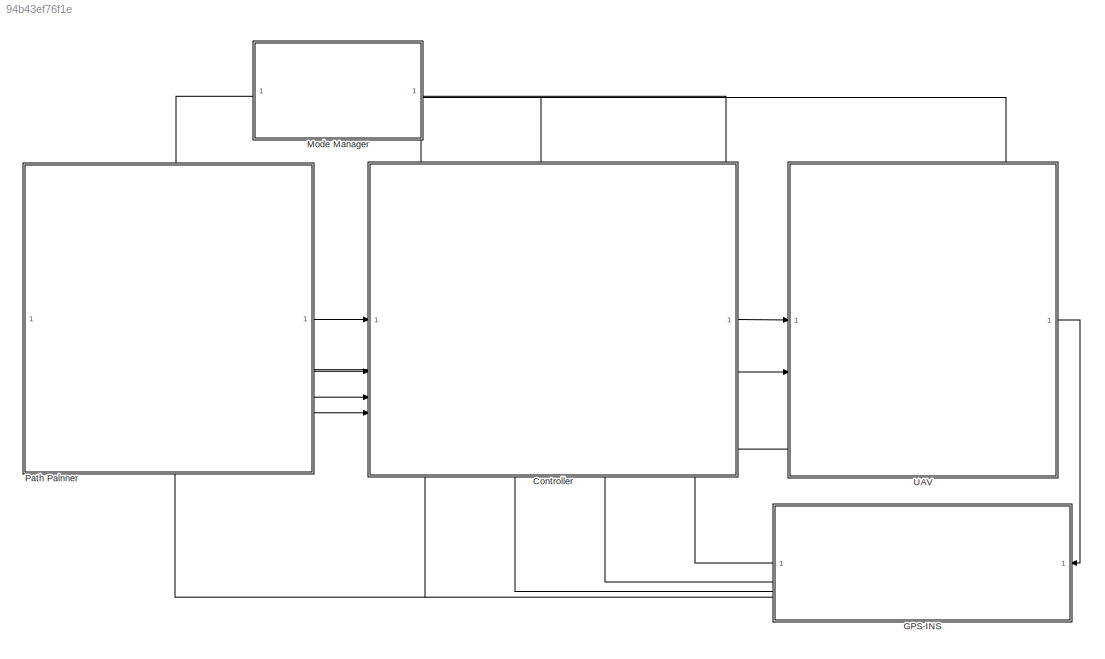
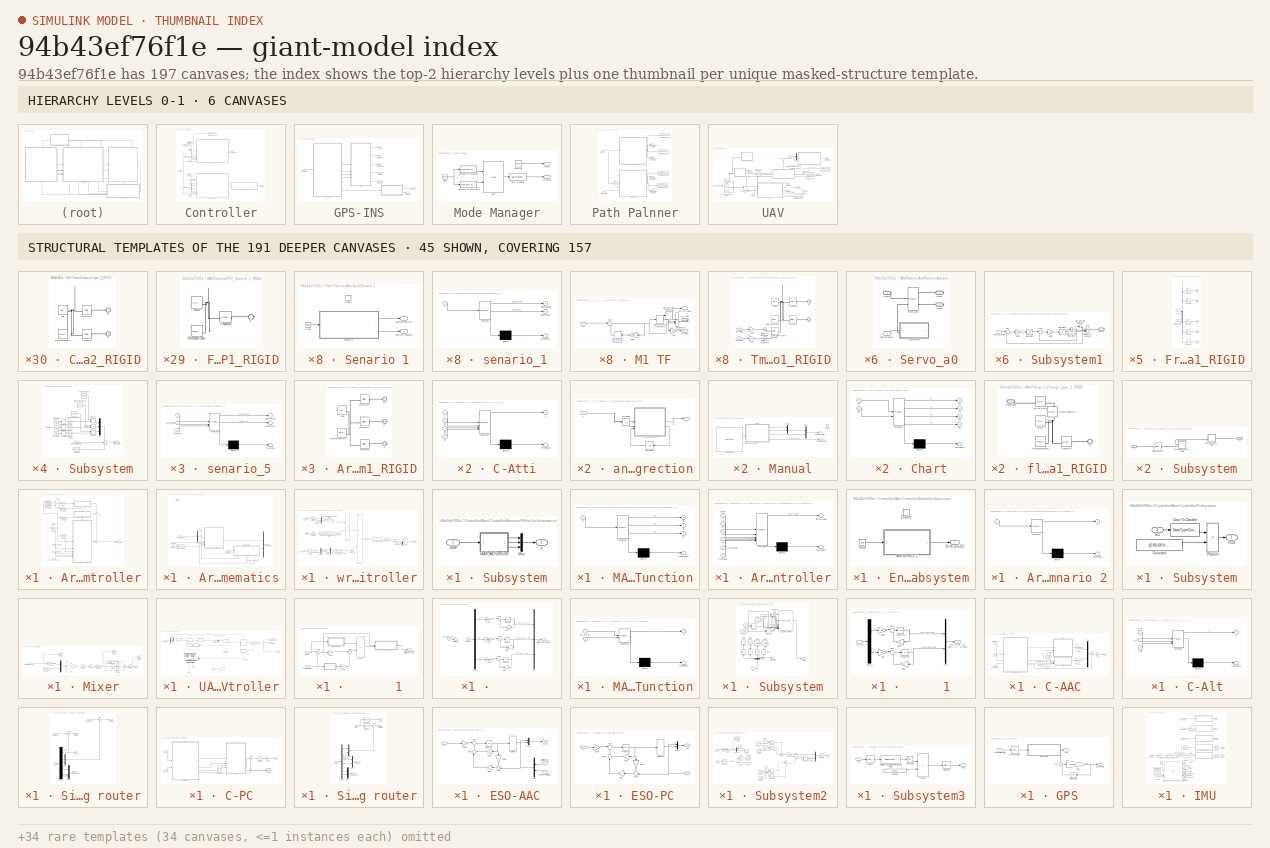
[diagram: thumbnail index - top-2 hierarchy levels (6 canvases) + 45 structural-template representatives of the remaining 191 canvases]
MODEL slx_94b43ef76f1e
KIND model
CONFIG AbsTol = auto
CONFIG EnableMultiTasking = off
CONFIG FixedStep = global_step_size
CONFIG MaxStep = auto
CONFIG MinStep = auto
CONFIG RelTol = 1e-3
CONFIG SampleTimeConstraint = Unconstrained
CONFIG SolverName = VariableStepAuto
CONFIG StartTime = 0.0
CONFIG StopTime = 6
BLOCK [SubSystem] Controller
  PortSchema = {"entries":[{"content":{"sides":[{"content":{"connectorIds":["In1","In2","In3","In4"]},"type":"ConnectorPlacement.EquallySpacedRectSide","uuid":"8cd7dc0d-1ffe-404b-8963-ef178fa92e53"},{"content":{"connectorIds":["Out1","Out2","In11"],"side":"RIGHT"},"type":"ConnectorPlacement.EquallySpacedRectSide","uuid":"919e0896-43af-402c-8143-9d4be52422e2"},{"content":{"connectorIds":["In5","In6"],"side":"TOP"...<+451ch>
BLOCK [Inport] Controller/Angular rate [p q r]
  Port = 10
BLOCK [SubSystem] Controller/Arm Controller
BLOCK [SubSystem] Controller/Arm Controller/Arm and Wrist Inv-kinematics
BLOCK [Inport] Controller/Arm Controller/Arm and Wrist Inv-kinematics/ArmMode
  Port = 5
BLOCK [DataTypeConversion] Controller/Arm Controller/Arm and Wrist Inv-kinematics/Cast To Boolean
  OutDataTypeStr = boolean
  RndMeth = Floor
  SaturateOnIntegerOverflow = off
BLOCK [Demux] Controller/Arm Controller/Arm and Wrist Inv-kinematics/Demux
  Outputs = 3
BLOCK [EnablePort] Controller/Arm Controller/Arm and Wrist Inv-kinematics/Enable
BLOCK [Inport] Controller/Arm Controller/Arm and Wrist Inv-kinematics/Mode
BLOCK [Mux] Controller/Arm Controller/Arm and Wrist Inv-kinematics/Mux
  DisplayOption = bar
  Inputs = 2
BLOCK [Inport] Controller/Arm Controller/Arm and Wrist Inv-kinematics/UAV Attitude
  Port = 4
BLOCK [Inport] Controller/Arm Controller/Arm and Wrist Inv-kinematics/desired prob orientation
  Port = 3
BLOCK [Inport] Controller/Arm Controller/Arm and Wrist Inv-kinematics/desired prob pos [x,y,z]
  Port = 2
BLOCK [Outport] Controller/Arm Controller/Arm and Wrist Inv-kinematics/servos pos [6]
BLOCK [Inport] Controller/Arm Controller/Arm and Wrist Inv-kinematics/servos_feedback
  NameLocation = left
  Port = 6
BLOCK [SubSystem] Controller/Arm Controller/Arm and Wrist Inv-kinematics/wrist Controller
  NameLocation = top
  PortSchema = {"entries":[{"content":{"sides":[{"content":{"connectorIds":["In1"]},"type":"ConnectorPlacement.EquallySpacedRectSide","uuid":"4502644e-1146-46b4-b27c-15c4c4ca9081"},{"content":{"connectorIds":["Out1"],"side":"RIGHT"},"type":"ConnectorPlacement.EquallySpacedRectSide","uuid":"e725cb62-69b1-43ce-93bd-7401d62be9c6"},{"content":{"connectorIds":[],"side":"TOP"},"type":"ConnectorPlacement.EquallySpacedR...<+401ch>
BLOCK [Inport] Controller/Arm Controller/Arm and Wrist Inv-kinematics/wrist Controller/Arm Mode
  Port = 4
BLOCK [Reference] Controller/Arm Controller/Arm and Wrist Inv-kinematics/wrist Controller/Degrees to Radians  REF=simulink_extras/Transformations/Degrees to
Radians
  SourceBlock = simulink_extras/Transformations/Degrees to\nRadians
  SourceType = DegreesToRadians
BLOCK [Reference] Controller/Arm Controller/Arm and Wrist Inv-kinematics/wrist Controller/Degrees to Radians1  REF=simulink_extras/Transformations/Degrees to
Radians
  SourceBlock = simulink_extras/Transformations/Degrees to\nRadians
  SourceType = DegreesToRadians
BLOCK [Reference] Controller/Arm Controller/Arm and Wrist Inv-kinematics/wrist Controller/Degrees to Radians2  REF=simulink_extras/Transformations/Degrees to
Radians
  SourceBlock = simulink_extras/Transformations/Degrees to\nRadians
  SourceType = DegreesToRadians
BLOCK [Demux] Controller/Arm Controller/Arm and Wrist Inv-kinematics/wrist Controller/Demux
  Outputs = 3
BLOCK [Ground] Controller/Arm Controller/Arm and Wrist Inv-kinematics/wrist Controller/Ground
BLOCK [Ground] Controller/Arm Controller/Arm and Wrist Inv-kinematics/wrist Controller/Ground1
BLOCK [Ground] Controller/Arm Controller/Arm and Wrist Inv-kinematics/wrist Controller/Ground2
BLOCK [Mux] Controller/Arm Controller/Arm and Wrist Inv-kinematics/wrist Controller/Mux
  DisplayOption = bar
  Inputs = 3
BLOCK [Mux] Controller/Arm Controller/Arm and Wrist Inv-kinematics/wrist Controller/Mux1
  DisplayOption = bar
  Inputs = 3
BLOCK [Mux] Controller/Arm Controller/Arm and Wrist Inv-kinematics/wrist Controller/Mux2
  DisplayOption = bar
  Inputs = 3
BLOCK [Product] Controller/Arm Controller/Arm and Wrist Inv-kinematics/wrist Controller/Product
  Multiplication = Matrix(*)
BLOCK [Product] Controller/Arm Controller/Arm and Wrist Inv-kinematics/wrist Controller/Product1
  Multiplication = Matrix(*)
BLOCK [Reference] Controller/Arm Controller/Arm and Wrist Inv-kinematics/wrist Controller/Radians to Degrees  REF=simulink_extras/Transformations/Radians
to Degrees
  SourceBlock = simulink_extras/Transformations/Radians\nto Degrees
  SourceType = RadiansToDegrees
BLOCK [Reference] Controller/Arm Controller/Arm and Wrist Inv-kinematics/wrist Controller/Rotation Angles to Direction Cosine Matrix  REF=sharedtransform/Rotation Angles to
Direction Cosine Matrix
  AttributesFormatString = Rotation Order: %<rotationOrder>
  SourceBlock = sharedtransform/Rotation Angles to\nDirection Cosine Matrix
  SourceType = Ang2DCM
BLOCK [Reference] Controller/Arm Controller/Arm and Wrist Inv-kinematics/wrist Controller/Rotation Angles to Direction Cosine Matrix1  REF=sharedtransform/Rotation Angles to
Direction Cosine Matrix
  AttributesFormatString = Rotation Order: %<rotationOrder>
  SourceBlock = sharedtransform/Rotation Angles to\nDirection Cosine Matrix
  SourceType = Ang2DCM
BLOCK [Reference] Controller/Arm Controller/Arm and Wrist Inv-kinematics/wrist Controller/Rotation Angles to Direction Cosine Matrix2  REF=sharedtransform/Rotation Angles to
Direction Cosine Matrix
  AttributesFormatString = Rotation Order: %<rotationOrder>
  SourceBlock = sharedtransform/Rotation Angles to\nDirection Cosine Matrix
  SourceType = Ang2DCM
BLOCK [Selector] Controller/Arm Controller/Arm and Wrist Inv-kinematics/wrist Controller/Selector
  IndexOptions = Index vector (dialog)
  Indices = [3 2 1]
  InputPortWidth = 3
  OutputSizes = 1
BLOCK [Selector] Controller/Arm Controller/Arm and Wrist Inv-kinematics/wrist Controller/Selector1
  IndexOptions = Index vector (dialog)
  Indices = 1:3
  InputPortWidth = 6
  OutputSizes = 1
BLOCK [SubSystem] Controller/Arm Controller/Arm and Wrist Inv-kinematics/wrist Controller/Subsystem
BLOCK [Inport] Controller/Arm Controller/Arm and Wrist Inv-kinematics/wrist Controller/Subsystem/DCM
BLOCK [SubSystem] Controller/Arm Controller/Arm and Wrist Inv-kinematics/wrist Controller/Subsystem/MATLAB Function
  ErrorFcn = Stateflow.Translate.translate
  PermitHierarchicalResolution = ExplicitOnly
  SFBlockType = MATLAB Function
  TreatAsAtomicUnit = on
BLOCK [Demux] Controller/Arm Controller/Arm and Wrist Inv-kinematics/wrist Controller/Subsystem/MATLAB Function/ Demux 
  Outputs = 1
BLOCK [S-Function] Controller/Arm Controller/Arm and Wrist Inv-kinematics/wrist Controller/Subsystem/MATLAB Function/ SFunction 
  EnableBusSupport = off
  FunctionName = sf_sfun
  PortCounts = [1 4]
  SFcnIsStateOwnerBlock = off
  SFunctionDeploymentMode = off
  Tag = Stateflow S-Function 15
BLOCK [Terminator] Controller/Arm Controller/Arm and Wrist Inv-kinematics/wrist Controller/Subsystem/MATLAB Function/ Terminator 
BLOCK [Inport] Controller/Arm Controller/Arm and Wrist Inv-kinematics/wrist Controller/Subsystem/MATLAB Function/R
BLOCK [Outport] Controller/Arm Controller/Arm and Wrist Inv-kinematics/wrist Controller/Subsystem/MATLAB Function/a1
BLOCK [Outport] Controller/Arm Controller/Arm and Wrist Inv-kinematics/wrist Controller/Subsystem/MATLAB Function/a2
  Port = 2
BLOCK [Outport] Controller/Arm Controller/Arm and Wrist Inv-kinematics/wrist Controller/Subsystem/MATLAB Function/a3
  Port = 3
BLOCK [Mux] Controller/Arm Controller/Arm and Wrist Inv-kinematics/wrist Controller/Subsystem/Mux
  DisplayOption = bar
  Inputs = 3
BLOCK [Outport] Controller/Arm Controller/Arm and Wrist Inv-kinematics/wrist Controller/Subsystem/y
BLOCK [Sum] Controller/Arm Controller/Arm and Wrist Inv-kinematics/wrist Controller/Sum
  Inputs = |-+
BLOCK [Switch] Controller/Arm Controller/Arm and Wrist Inv-kinematics/wrist Controller/Switch1
  Criteria = u2 > Threshold
  InputSameDT = off
  SaturateOnIntegerOverflow = off
  Threshold = 0.05
BLOCK [Math] Controller/Arm Controller/Arm and Wrist Inv-kinematics/wrist Controller/Transpose
  Operator = transpose
BLOCK [Math] Controller/Arm Controller/Arm and Wrist Inv-kinematics/wrist Controller/Transpose1
  Operator = transpose
BLOCK [Inport] Controller/Arm Controller/Arm and Wrist Inv-kinematics/wrist Controller/UAV Attitude
  Port = 2
BLOCK [Inport] Controller/Arm Controller/Arm and Wrist Inv-kinematics/wrist Controller/prob psi desired [deg]
BLOCK [Inport] Controller/Arm Controller/Arm and Wrist Inv-kinematics/wrist Controller/servo_feedback
  Port = 3
BLOCK [Outport] Controller/Arm Controller/Arm and Wrist Inv-kinematics/wrist Controller/w1 w2 w3 [deg]
  PortDimensions = 3
BLOCK [SubSystem] Controller/Arm Controller/Arm and Wrist Inv-kinematics/َArm_Controller
  ErrorFcn = Stateflow.Translate.translate
  PermitHierarchicalResolution = ExplicitOnly
  SFBlockType = MATLAB Function
  TreatAsAtomicUnit = on
BLOCK [Demux] Controller/Arm Controller/Arm and Wrist Inv-kinematics/َArm_Controller/ Demux 
  Outputs = 1
BLOCK [S-Function] Controller/Arm Controller/Arm and Wrist Inv-kinematics/َArm_Controller/ SFunction 
  EnableBusSupport = off
  FunctionName = sf_sfun
  PortCounts = [6 2]
  SFcnIsStateOwnerBlock = off
  SFunctionDeploymentMode = off
  Tag = Stateflow S-Function 14
BLOCK [Terminator] Controller/Arm Controller/Arm and Wrist Inv-kinematics/َArm_Controller/ Terminator 
BLOCK [Inport] Controller/Arm Controller/Arm and Wrist Inv-kinematics/َArm_Controller/ArmMode
  Port = 6
BLOCK [Inport] Controller/Arm Controller/Arm and Wrist Inv-kinematics/َArm_Controller/Mode
BLOCK [Outport] Controller/Arm Controller/Arm and Wrist Inv-kinematics/َArm_Controller/Servo_Angles
BLOCK [Inport] Controller/Arm Controller/Arm and Wrist Inv-kinematics/َArm_Controller/UAV_Attitude
  Port = 5
BLOCK [Inport] Controller/Arm Controller/Arm and Wrist Inv-kinematics/َArm_Controller/xd
  Port = 2
BLOCK [Inport] Controller/Arm Controller/Arm and Wrist Inv-kinematics/َArm_Controller/yd
  Port = 3
BLOCK [Inport] Controller/Arm Controller/Arm and Wrist Inv-kinematics/َArm_Controller/zd
  Port = 4
BLOCK [Inport] Controller/Arm Controller/ArmMode
  Port = 5
BLOCK [Reference] Controller/Arm Controller/Compare To Constant  REF=simulink/Logic and Bit
Operations/Compare
To Constant
  SourceBlock = simulink/Logic and Bit\nOperations/Compare\nTo Constant
  SourceType = Compare To Constant
BLOCK [Reference] Controller/Arm Controller/Compare To Constant1  REF=simulink/Logic and Bit
Operations/Compare
To Constant
  SourceBlock = simulink/Logic and Bit\nOperations/Compare\nTo Constant
  SourceType = Compare To Constant
BLOCK [Reference] Controller/Arm Controller/Compare To Constant2  REF=simulink/Logic and Bit
Operations/Compare
To Constant
  SourceBlock = simulink/Logic and Bit\nOperations/Compare\nTo Constant
  SourceType = Compare To Constant
BLOCK [Reference] Controller/Arm Controller/Compare To Constant3  REF=simulink/Logic and Bit
Operations/Compare
To Constant
  SourceBlock = simulink/Logic and Bit\nOperations/Compare\nTo Constant
  SourceType = Compare To Constant
BLOCK [SubSystem] Controller/Arm Controller/Enabled Subsystem
  TreatAsAtomicUnit = on
BLOCK [SubSystem] Controller/Arm Controller/Enabled Subsystem/Arm Senario 2
  ErrorFcn = Stateflow.Translate.translate
  PermitHierarchicalResolution = ExplicitOnly
  SFBlockType = MATLAB Function
  TreatAsAtomicUnit = on
BLOCK [Demux] Controller/Arm Controller/Enabled Subsystem/Arm Senario 2/ Demux 
  Outputs = 1
BLOCK [S-Function] Controller/Arm Controller/Enabled Subsystem/Arm Senario 2/ SFunction 
  EnableBusSupport = off
  FunctionName = sf_sfun
  PortCounts = [1 2]
  SFcnIsStateOwnerBlock = off
  SFunctionDeploymentMode = off
  Tag = Stateflow S-Function 13
BLOCK [Terminator] Controller/Arm Controller/Enabled Subsystem/Arm Senario 2/ Terminator 
BLOCK [Inport] Controller/Arm Controller/Enabled Subsystem/Arm Senario 2/t
BLOCK [Outport] Controller/Arm Controller/Enabled Subsystem/Arm Senario 2/y
BLOCK [Clock] Controller/Arm Controller/Enabled Subsystem/Clock
BLOCK [EnablePort] Controller/Arm Controller/Enabled Subsystem/Enable
BLOCK [Outport] Controller/Arm Controller/Enabled Subsystem/Servo pos [6]
BLOCK [Inport] Controller/Arm Controller/Mode
  Port = 3
BLOCK [Logic] Controller/Arm Controller/NOT
  AllPortsSameDT = off
  IconShape = distinctive
  Operator = NOT
  OutDataTypeStr = boolean
BLOCK [Logic] Controller/Arm Controller/OR
  AllPortsSameDT = off
  IconShape = distinctive
  Operator = OR
  OutDataTypeStr = boolean
BLOCK [SubSystem] Controller/Arm Controller/Subsystem
BLOCK [DataTypeConversion] Controller/Arm Controller/Subsystem/Cast To Double
  OutDataTypeStr = double
  RndMeth = Floor
  SaturateOnIntegerOverflow = off
BLOCK [Constant] Controller/Arm Controller/Subsystem/Constant
  Value = [0 60 60 0 0 0]
BLOCK [Inport] Controller/Arm Controller/Subsystem/In1
BLOCK [Outport] Controller/Arm Controller/Subsystem/Out1
BLOCK [Product] Controller/Arm Controller/Subsystem/Product
BLOCK [Sum] Controller/Arm Controller/Sum
  Inputs = ++|
BLOCK [Sum] Controller/Arm Controller/Sum1
  Inputs = ++|
  NameLocation = left
BLOCK [Inport] Controller/Arm Controller/UAV Attitude
  Port = 4
  PortDimensions = 3
BLOCK [Inport] Controller/Arm Controller/desired prob orientation
  Port = 2
  PortDimensions = 1
BLOCK [Inport] Controller/Arm Controller/desired prob pos [x,y,z]
BLOCK [Outport] Controller/Arm Controller/servos pos [6]
BLOCK [Inport] Controller/Arm Controller/servos_feedback
  Port = 6
BLOCK [Inport] Controller/ArmMode
  Port = 6
BLOCK [SubSystem] Controller/Mixer
BLOCK [Constant] Controller/Mixer/Constant
  Value = zeros(4,1)
BLOCK [Constant] Controller/Mixer/Constant1
  Value = 3
BLOCK [Inport] Controller/Mixer/Controller output [4]
  PortDimensions = 4
BLOCK [Gain] Controller/Mixer/Gain
  Gain = inv_K_ESC
  Multiplication = Matrix(K*u)
BLOCK [Gain] Controller/Mixer/Gain1
  Gain = a(3)
BLOCK [Gain] Controller/Mixer/Gain2
  Gain = a(2)
BLOCK [Gain] Controller/Mixer/Gain3
  Gain = a(1)
BLOCK [Mux] Controller/Mixer/Mux
  DisplayOption = bar
  Inputs = 2
BLOCK [Gain] Controller/Mixer/N 2 gr
  Gain = [1000/9.81*[1 1 1] 1]
BLOCK [Outport] Controller/Mixer/PWM [8*1]
BLOCK [Math] Controller/Mixer/Power
  Operator = square
BLOCK [Math] Controller/Mixer/Power1
  Operator = pow
BLOCK [Saturate] Controller/Mixer/Saturation
  LowerLimit = 0
  UpperLimit = (6374*2*pi/60)^2
  ZeroCross = off
BLOCK [Saturate] Controller/Mixer/Saturation1
  LowerLimit = 0
  UpperLimit = 1
  ZeroCross = off
BLOCK [Scope] Controller/Mixer/Scope
  Floating = off
  NumInputPorts = 1
  ScopeSpecificationString = Simulink.scopes.TimeScopeBlockCfg('CurrentConfiguration', extmgr.ConfigurationSet(extmgr.Configuration('Core','General UI',true),extmgr.Configuration('Core','Source UI',true),extmgr.Configuration('Sources','WiredSimulink',true,'DataLoggingVariableName','ScopeData1'),extmgr.Configuration('Visuals','Time Domain',true,'SerializedDisplays',{struct('MinYLimReal','-0.09597','MaxYLimReal','1.04474','YLab...<+1713ch>
BLOCK [Scope] Controller/Mixer/Scope1
  Floating = off
  NumInputPorts = 1
  ScopeSpecificationString = Simulink.scopes.TimeScopeBlockCfg('CurrentConfiguration', extmgr.ConfigurationSet(extmgr.Configuration('Core','General UI',true),extmgr.Configuration('Core','Source UI',true),extmgr.Configuration('Sources','WiredSimulink',true,'DataLoggingVariableName','ScopeData2'),extmgr.Configuration('Visuals','Time Domain',true,'SerializedDisplays',{struct('MinYLimReal','-685.81538','MaxYLimReal','98.42393','Y...<+1521ch>
BLOCK [Scope] Controller/Mixer/Scope2
  Floating = off
  NumInputPorts = 1
  ScopeSpecificationString = Simulink.scopes.TimeScopeBlockCfg('CurrentConfiguration', extmgr.ConfigurationSet(extmgr.Configuration('Core','General UI',true),extmgr.Configuration('Core','Source UI',true),extmgr.Configuration('Sources','WiredSimulink',true,'DataLoggingVariableName','ScopeData3'),extmgr.Configuration('Visuals','Time Domain',true,'SerializedDisplays',{struct('MinYLimReal','-796.75','MaxYLimReal','7170.75','YLabe...<+1746ch>
BLOCK [Sqrt] Controller/Mixer/Sqrt
BLOCK [Sum] Controller/Mixer/Sum
  Inputs = 3
BLOCK [Gain] Controller/Mixer/rad//s to RPM
  Gain = 60/2/pi
BLOCK [Inport] Controller/Mode
  Port = 5
BLOCK [Outport] Controller/PWM [8]
  Port = 2
BLOCK [ToWorkspace] Controller/To Workspace
  FixptAsFi = on
  MaxDataPoints = inf
  SampleTime = -1
  SaveFormat = Timeseries
  VariableName = des_prob_pos
BLOCK [Inport] Controller/UAV Attitude
  Port = 9
BLOCK [SubSystem] Controller/UAV Controller
BLOCK [SubSystem] Controller/UAV Controller/      1
  NameLocation = top
  PortSchema = {"entries":[{"content":{"sides":[{"content":{"connectorIds":["In1"]},"type":"ConnectorPlacement.EquallySpacedRectSide","uuid":"d7bfb74f-f0ef-45e8-b402-84c976e030ff"},{"content":{"connectorIds":["Out1"],"side":"RIGHT"},"type":"ConnectorPlacement.EquallySpacedRectSide","uuid":"7a56635f-9db1-4285-a1b6-a2387fe77a8c"},{"content":{"connectorIds":[],"side":"TOP"},"type":"ConnectorPlacement.EquallySpacedR...<+389ch>
BLOCK [SubSystem] Controller/UAV Controller/      1/     
BLOCK [Demux] Controller/UAV Controller/      1/     /Demux
  Outputs = 3
BLOCK [Gain] Controller/UAV Controller/      1/     /Gain
  Gain = Btheta
  Multiplication = Matrix(K*u)
BLOCK [Gain] Controller/UAV Controller/      1/     /Gain1
  Gain = Atheta
  Multiplication = Matrix(K*u)
BLOCK [Gain] Controller/UAV Controller/      1/     /Gain2
  Gain = Bphi
  Multiplication = Matrix(K*u)
BLOCK [Gain] Controller/UAV Controller/      1/     /Gain3
  Gain = Aphi
  Multiplication = Matrix(K*u)
BLOCK [Gain] Controller/UAV Controller/      1/     /Gain4
  Gain = Bpsi
  Multiplication = Matrix(K*u)
BLOCK [Gain] Controller/UAV Controller/      1/     /Gain5
  Gain = Apsi
  Multiplication = Matrix(K*u)
BLOCK [Ground] Controller/UAV Controller/      1/     /Ground
BLOCK [Integrator] Controller/UAV Controller/      1/     /Integrator
BLOCK [Integrator] Controller/UAV Controller/      1/     /Integrator1
BLOCK [Integrator] Controller/UAV Controller/      1/     /Integrator2
BLOCK [Mux] Controller/UAV Controller/      1/     /Mux
  DisplayOption = bar
  Inputs = 3
BLOCK [Sum] Controller/UAV Controller/      1/     /Sum
  Inputs = |++
BLOCK [Sum] Controller/UAV Controller/      1/     /Sum1
  Inputs = |++
BLOCK [Sum] Controller/UAV Controller/      1/     /Sum2
  Inputs = |++
BLOCK [Terminator] Controller/UAV Controller/      1/     /Terminator
BLOCK [Outport] Controller/UAV Controller/      1/     /[phi_d, phi_d_dot] [theta_d, theta_d_dot] [psi_d, psi_d_dot]
BLOCK [Inport] Controller/UAV Controller/      1/     /phi_d theta_d psi_d
BLOCK [Inport] Controller/UAV Controller/      1/Attitude
  Port = 2
BLOCK [Gain] Controller/UAV Controller/      1/Gain
  Gain = K
  Multiplication = Matrix(K*u)
BLOCK [Gain] Controller/UAV Controller/      1/Gain1
  Gain = C
  Multiplication = Matrix(K*u)
BLOCK [SubSystem] Controller/UAV Controller/      1/MATLAB Function
  ErrorFcn = Stateflow.Translate.translate
  PermitHierarchicalResolution = ExplicitOnly
  SFBlockType = MATLAB Function
  TreatAsAtomicUnit = on
BLOCK [Demux] Controller/UAV Controller/      1/MATLAB Function/ Demux 
  Outputs = 1
BLOCK [S-Function] Controller/UAV Controller/      1/MATLAB Function/ SFunction 
  EnableBusSupport = off
  FunctionName = sf_sfun
  PortCounts = [2 2]
  SFcnIsStateOwnerBlock = off
  SFunctionDeploymentMode = off
  Tag = Stateflow S-Function 16
BLOCK [Terminator] Controller/UAV Controller/      1/MATLAB Function/ Terminator 
BLOCK [Inport] Controller/UAV Controller/      1/MATLAB Function/Err_of_Atti
BLOCK [Inport] Controller/UAV Controller/      1/MATLAB Function/u
  Port = 2
BLOCK [Outport] Controller/UAV Controller/      1/MATLAB Function/y
BLOCK [Product] Controller/UAV Controller/      1/Product
  Multiplication = Matrix(*)
BLOCK [SubSystem] Controller/UAV Controller/      1/Subsystem
BLOCK [Constant] Controller/UAV Controller/      1/Subsystem/Constant
BLOCK [Constant] Controller/UAV Controller/      1/Subsystem/Constant1
  Value = 0
BLOCK [Constant] Controller/UAV Controller/      1/Subsystem/Constant2
  Value = 0
BLOCK [Constant] Controller/UAV Controller/      1/Subsystem/Constant3
  Value = 0
BLOCK [Reference] Controller/UAV Controller/      1/Subsystem/Create 3x3 Matrix  REF=sharedutil/Create 3x3 Matrix
  SourceBlock = sharedutil/Create 3x3 Matrix
  SourceType = Create 3x3 Matrix
BLOCK [Demux] Controller/UAV Controller/      1/Subsystem/Demux
  NameLocation = right
  Outputs = 3
BLOCK [From] Controller/UAV Controller/      1/Subsystem/From
  GotoTag = s_theta
BLOCK [From] Controller/UAV Controller/      1/Subsystem/From1
  GotoTag = c_phi
BLOCK [From] Controller/UAV Controller/      1/Subsystem/From2
  GotoTag = s_phi
BLOCK [From] Controller/UAV Controller/      1/Subsystem/From3
  GotoTag = c_theta
BLOCK [Gain] Controller/UAV Controller/      1/Subsystem/Gain2
  Gain = -1
BLOCK [Gain] Controller/UAV Controller/      1/Subsystem/Gain3
  Gain = -1
BLOCK [Goto] Controller/UAV Controller/      1/Subsystem/Goto
  GotoTag = s_phi
  NameLocation = right
BLOCK [Goto] Controller/UAV Controller/      1/Subsystem/Goto1
  GotoTag = c_phi
  NameLocation = right
BLOCK [Goto] Controller/UAV Controller/      1/Subsystem/Goto2
  GotoTag = s_theta
  NameLocation = right
BLOCK [Goto] Controller/UAV Controller/      1/Subsystem/Goto3
  GotoTag = c_theta
  NameLocation = right
BLOCK [Inport] Controller/UAV Controller/      1/Subsystem/In1
BLOCK [Outport] Controller/UAV Controller/      1/Subsystem/Matrix
BLOCK [Product] Controller/UAV Controller/      1/Subsystem/Product1
BLOCK [Product] Controller/UAV Controller/      1/Subsystem/Product2
BLOCK [Trigonometry] Controller/UAV Controller/      1/Subsystem/Sin
  NameLocation = right
BLOCK [Trigonometry] Controller/UAV Controller/      1/Subsystem/Sin1
  NameLocation = right
  Operator = cos
BLOCK [Trigonometry] Controller/UAV Controller/      1/Subsystem/Sin2
  NameLocation = right
BLOCK [Trigonometry] Controller/UAV Controller/      1/Subsystem/Sin3
  NameLocation = right
  Operator = cos
BLOCK [Terminator] Controller/UAV Controller/      1/Subsystem/Terminator
BLOCK [Sum] Controller/UAV Controller/      1/Sum
  Inputs = |-+
BLOCK [Sum] Controller/UAV Controller/      1/Sum1
  Inputs = |++
BLOCK [Outport] Controller/UAV Controller/      1/desired Angular rate [p_d, q_d, r_d]
BLOCK [Inport] Controller/UAV Controller/      1/desired Attitude
BLOCK [SubSystem] Controller/UAV Controller/     1
BLOCK [Demux] Controller/UAV Controller/     1/Demux
  Outputs = 2
BLOCK [Gain] Controller/UAV Controller/     1/Gain
  Gain = By
  Multiplication = Matrix(K*u)
BLOCK [Gain] Controller/UAV Controller/     1/Gain1
  Gain = Ay
  Multiplication = Matrix(K*u)
BLOCK [Gain] Controller/UAV Controller/     1/Gain2
  Gain = Bx
  Multiplication = Matrix(K*u)
BLOCK [Gain] Controller/UAV Controller/     1/Gain3
  Gain = Ax
  Multiplication = Matrix(K*u)
BLOCK [Integrator] Controller/UAV Controller/     1/Integrator
  InitialCondition = zeros(3,1)
BLOCK [Integrator] Controller/UAV Controller/     1/Integrator1
BLOCK [Mux] Controller/UAV Controller/     1/Mux
  DisplayOption = bar
  Inputs = 2
BLOCK [Sum] Controller/UAV Controller/     1/Sum
  Inputs = |++
BLOCK [Sum] Controller/UAV Controller/     1/Sum1
  Inputs = |++
BLOCK [Outport] Controller/UAV Controller/     1/[xd, xd_dot, xd_2dot] [yd, yd_dot, yd_2dot]
BLOCK [Inport] Controller/UAV Controller/     1/[xd, yd]
BLOCK [Bias] Controller/UAV Controller/Add Constant1
  Bias = [-32*9.81 0 0 0]
  SaturateOnIntegerOverflow = off
BLOCK [Inport] Controller/UAV Controller/Angular Rate [p,q,r]
  Port = 4
  PortDimensions = 3
BLOCK [Inport] Controller/UAV Controller/Attitude (Euler Angles) [phi, theta, psi]
  Port = 5
  PortDimensions = 3
BLOCK [SubSystem] Controller/UAV Controller/C-AAC 
  PortSchema = {"entries":[{"content":{"sides":[{"content":{"connectorIds":["In1","In2"]},"type":"ConnectorPlacement.EquallySpacedRectSide","uuid":"0074a7af-5369-4567-a570-5214c890c1e4"},{"content":{"connectorIds":["Out1"],"side":"RIGHT"},"type":"ConnectorPlacement.EquallySpacedRectSide","uuid":"74f23e42-f7b0-4104-8eab-960110f0734e"},{"content":{"connectorIds":["In3"],"side":"TOP"},"type":"ConnectorPlacement.Equ...<+251ch>
BLOCK [SubSystem] Controller/UAV Controller/C-AAC /C-Alt
  ErrorFcn = Stateflow.Translate.translate
  PermitHierarchicalResolution = ExplicitOnly
  SFBlockType = MATLAB Function
  TreatAsAtomicUnit = on
BLOCK [Demux] Controller/UAV Controller/C-AAC /C-Alt/ Demux 
  Outputs = 1
BLOCK [S-Function] Controller/UAV Controller/C-AAC /C-Alt/ SFunction 
  EnableBusSupport = off
  FunctionName = sf_sfun
  PortCounts = [3 2]
  SFcnIsStateOwnerBlock = off
  SFunctionDeploymentMode = off
  Tag = Stateflow S-Function 17
BLOCK [Terminator] Controller/UAV Controller/C-AAC /C-Alt/ Terminator 
BLOCK [Inport] Controller/UAV Controller/C-AAC /C-Alt/e_Alt
BLOCK [Outport] Controller/UAV Controller/C-AAC /C-Alt/u
BLOCK [Inport] Controller/UAV Controller/C-AAC /C-Alt/v_Alt
  Port = 2
BLOCK [Inport] Controller/UAV Controller/C-AAC /C-Alt/w_alt
  Port = 3
BLOCK [SubSystem] Controller/UAV Controller/C-AAC /C-Atti
  ErrorFcn = Stateflow.Translate.translate
  PermitHierarchicalResolution = ExplicitOnly
  SFBlockType = MATLAB Function
  TreatAsAtomicUnit = on
BLOCK [Demux] Controller/UAV Controller/C-AAC /C-Atti/ Demux 
  Outputs = 1
BLOCK [S-Function] Controller/UAV Controller/C-AAC /C-Atti/ SFunction 
  EnableBusSupport = off
  FunctionName = sf_sfun
  PortCounts = [4 2]
  SFcnIsStateOwnerBlock = off
  SFunctionDeploymentMode = off
  Tag = Stateflow S-Function 18
BLOCK [Terminator] Controller/UAV Controller/C-AAC /C-Atti/ Terminator 
BLOCK [Inport] Controller/UAV Controller/C-AAC /C-Atti/e
BLOCK [Outport] Controller/UAV Controller/C-AAC /C-Atti/u
BLOCK [Inport] Controller/UAV Controller/C-AAC /C-Atti/wp
  Port = 2
BLOCK [Inport] Controller/UAV Controller/C-AAC /C-Atti/wq
  Port = 3
BLOCK [Inport] Controller/UAV Controller/C-AAC /C-Atti/wr
  Port = 4
BLOCK [Constant] Controller/UAV Controller/C-AAC /Constant
  Value = wc_Alt
BLOCK [Constant] Controller/UAV Controller/C-AAC /Constant1
  Value = wp
BLOCK [Constant] Controller/UAV Controller/C-AAC /Constant2
  Value = wq
BLOCK [Constant] Controller/UAV Controller/C-AAC /Constant3
  Value = wr
BLOCK [Gain] Controller/UAV Controller/C-AAC /Gain
BLOCK [Gain] Controller/UAV Controller/C-AAC /Gain1
  Gain = params.M
BLOCK [Gain] Controller/UAV Controller/C-AAC /Gain2
  Gain = params.I.*[1 0 1;0 1 0;1 0 1]
  Multiplication = Matrix(K*u)
BLOCK [Mux] Controller/UAV Controller/C-AAC /Mux
  DisplayOption = bar
  Inputs = 2
BLOCK [SubSystem] Controller/UAV Controller/C-AAC /Signal router
BLOCK [Demux] Controller/UAV Controller/C-AAC /Signal router/Demux1
  Outputs = 9
BLOCK [Outport] Controller/UAV Controller/C-AAC /Signal router/Error-Alt
BLOCK [Outport] Controller/UAV Controller/C-AAC /Signal router/Error-Atti
  Port = 3
BLOCK [Mux] Controller/UAV Controller/C-AAC /Signal router/Mux2
  DisplayOption = bar
  Inputs = 3
BLOCK [Mux] Controller/UAV Controller/C-AAC /Signal router/Mux3
  DisplayOption = bar
BLOCK [Sum] Controller/UAV Controller/C-AAC /Signal router/Sum
  Inputs = |+-
BLOCK [Sum] Controller/UAV Controller/C-AAC /Signal router/Sum1
  Inputs = |+-
BLOCK [Outport] Controller/UAV Controller/C-AAC /Signal router/V-Alt
  Port = 2
BLOCK [Inport] Controller/UAV Controller/C-AAC /Signal router/desired Alt
  Port = 3
BLOCK [Inport] Controller/UAV Controller/C-AAC /Signal router/desired Atti
BLOCK [Outport] Controller/UAV Controller/C-AAC /Signal router/desturbance 
  Port = 4
BLOCK [Inport] Controller/UAV Controller/C-AAC /Signal router/x_hat
  Port = 2
BLOCK [Sum] Controller/UAV Controller/C-AAC /Sum
  Inputs = |+-
BLOCK [Inport] Controller/UAV Controller/C-AAC /desired Altitiude
  Port = 3
BLOCK [Inport] Controller/UAV Controller/C-AAC /desired Atti
BLOCK [Outport] Controller/UAV Controller/C-AAC /u
BLOCK [Inport] Controller/UAV Controller/C-AAC /x_hat
  Port = 2
BLOCK [SubSystem] Controller/UAV Controller/C-PC
BLOCK [SubSystem] Controller/UAV Controller/C-PC/C-Alt
  ErrorFcn = Stateflow.Translate.translate
  PermitHierarchicalResolution = ExplicitOnly
  SFBlockType = MATLAB Function
  TreatAsAtomicUnit = on
BLOCK [Demux] Controller/UAV Controller/C-PC/C-Alt/ Demux 
  Outputs = 1
BLOCK [S-Function] Controller/UAV Controller/C-PC/C-Alt/ SFunction 
  EnableBusSupport = off
  FunctionName = sf_sfun
  PortCounts = [4 2]
  SFcnIsStateOwnerBlock = off
  SFunctionDeploymentMode = off
  Tag = Stateflow S-Function 19
BLOCK [Terminator] Controller/UAV Controller/C-PC/C-Alt/ Terminator 
BLOCK [Inport] Controller/UAV Controller/C-PC/C-Alt/e_Pos
BLOCK [Outport] Controller/UAV Controller/C-PC/C-Alt/u
BLOCK [Inport] Controller/UAV Controller/C-PC/C-Alt/v_Pos
  Port = 3
BLOCK [Inport] Controller/UAV Controller/C-PC/C-Alt/vd
  Port = 2
BLOCK [Inport] Controller/UAV Controller/C-PC/C-Alt/wc_x
  Port = 4
BLOCK [Constant] Controller/UAV Controller/C-PC/Constant
  Value = wc_x
BLOCK [Gain] Controller/UAV Controller/C-PC/Gain
BLOCK [Saturate] Controller/UAV Controller/C-PC/Saturation
  LowerLimit = -tand(20)*9.81
  UpperLimit = tand(20)*9.81
  ZeroCross = off
BLOCK [Scope] Controller/UAV Controller/C-PC/Scope
  Floating = off
  NumInputPorts = 2
  ScopeSpecificationString = Simulink.scopes.TimeScopeBlockCfg('CurrentConfiguration', extmgr.ConfigurationSet(extmgr.Configuration('Core','General UI',true),extmgr.Configuration('Core','Source UI',true),extmgr.Configuration('Sources','WiredSimulink',true,'DataLoggingVariableName','ScopeData3'),extmgr.Configuration('Visuals','Time Domain',true,'SerializedDisplays',{struct('MinYLimReal','-0.18767','MaxYLimReal','0.15513','YLab...<+1464ch>
BLOCK [SubSystem] Controller/UAV Controller/C-PC/Signal router
BLOCK [Demux] Controller/UAV Controller/C-PC/Signal router/Demux1
  Outputs = 6
BLOCK [Outport] Controller/UAV Controller/C-PC/Signal router/Error-Pos
BLOCK [Mux] Controller/UAV Controller/C-PC/Signal router/Mux1
  DisplayOption = bar
  Inputs = 2
BLOCK [Mux] Controller/UAV Controller/C-PC/Signal router/Mux2
  DisplayOption = bar
  Inputs = 2
BLOCK [Mux] Controller/UAV Controller/C-PC/Signal router/Mux3
  DisplayOption = bar
  Inputs = 2
BLOCK [Selector] Controller/UAV Controller/C-PC/Signal router/Selector
  IndexOptions = Index vector (dialog)
  Indices = [1 4]
  InputPortWidth = 6
  OutputSizes = 1
BLOCK [Selector] Controller/UAV Controller/C-PC/Signal router/Selector1
  IndexOptions = Index vector (dialog)
  Indices = [2 5]
  InputPortWidth = 6
  OutputSizes = 1
BLOCK [Sum] Controller/UAV Controller/C-PC/Signal router/Sum
  Inputs = |+-
BLOCK [Outport] Controller/UAV Controller/C-PC/Signal router/V-Pos
  Port = 3
BLOCK [Outport] Controller/UAV Controller/C-PC/Signal router/Vd
  Port = 2
BLOCK [Outport] Controller/UAV Controller/C-PC/Signal router/desturbance 
  Port = 4
BLOCK [Inport] Controller/UAV Controller/C-PC/Signal router/refs
BLOCK [Inport] Controller/UAV Controller/C-PC/Signal router/x_hat
  Port = 2
BLOCK [Sum] Controller/UAV Controller/C-PC/Sum
  Inputs = |+-
BLOCK [Inport] Controller/UAV Controller/C-PC/ref
BLOCK [Outport] Controller/UAV Controller/C-PC/u
BLOCK [Inport] Controller/UAV Controller/C-PC/x_hat
  Port = 2
BLOCK [Clock] Controller/UAV Controller/Clock
BLOCK [Outport] Controller/UAV Controller/Controller Output [4]
  PortDimensions = 4
BLOCK [Demux] Controller/UAV Controller/Demux
  NameLocation = right
  Outputs = 6
BLOCK [Demux] Controller/UAV Controller/Demux2
  Outputs = 3
BLOCK [Display] Controller/UAV Controller/Display
  Decimation = 1
BLOCK [SubSystem] Controller/UAV Controller/ESO-AAC
  PortSchema = {"entries":[{"content":{"sides":[{"content":{"connectorIds":["In1"]},"type":"ConnectorPlacement.EquallySpacedRectSide","uuid":"d7bfb74f-f0ef-45e8-b402-84c976e030ff"},{"content":{"connectorIds":["Out1"],"side":"RIGHT"},"type":"ConnectorPlacement.EquallySpacedRectSide","uuid":"7a56635f-9db1-4285-a1b6-a2387fe77a8c"},{"content":{"connectorIds":[],"side":"TOP"},"type":"ConnectorPlacement.EquallySpacedR...<+395ch>
BLOCK [Inport] Controller/UAV Controller/ESO-AAC/Angular Rate [p,q,r]
  Port = 2
  PortDimensions = 3
BLOCK [Gain] Controller/UAV Controller/ESO-AAC/Gain
  Gain = A
  Multiplication = Matrix(K*u)
BLOCK [Gain] Controller/UAV Controller/ESO-AAC/Gain1
  Gain = L
  Multiplication = Matrix(K*u)
BLOCK [Gain] Controller/UAV Controller/ESO-AAC/Gain2
  Gain = C
  Multiplication = Matrix(K*u)
  NameLocation = right
BLOCK [Gain] Controller/UAV Controller/ESO-AAC/Gain3
  Gain = B
  Multiplication = Matrix(K*u)
BLOCK [Integrator] Controller/UAV Controller/ESO-AAC/Integrator
BLOCK [Mux] Controller/UAV Controller/ESO-AAC/Mux
  DisplayOption = bar
  Inputs = 2
BLOCK [Mux] Controller/UAV Controller/ESO-AAC/Mux1
  DisplayOption = bar
  Inputs = 2
BLOCK [Selector] Controller/UAV Controller/ESO-AAC/Selector
  IndexOptions = Index vector (dialog)
  Indices = 6:9
  InputPortWidth = 9
  OutputSizes = 1
BLOCK [Sum] Controller/UAV Controller/ESO-AAC/Sum
  Inputs = |++
BLOCK [Sum] Controller/UAV Controller/ESO-AAC/Sum1
  Inputs = |++
  NameLocation = right
BLOCK [Sum] Controller/UAV Controller/ESO-AAC/Sum2
  Inputs = -+|
  NameLocation = top
BLOCK [Inport] Controller/UAV Controller/ESO-AAC/[Alt, Climb rate]
  Port = 3
  PortDimensions = 2
BLOCK [Inport] Controller/UAV Controller/ESO-AAC/u
  PortDimensions = 4
BLOCK [Outport] Controller/UAV Controller/ESO-AAC/x_hat
BLOCK [SubSystem] Controller/UAV Controller/ESO-PC
  NameLocation = top
  PortSchema = {"entries":[{"content":{"sides":[{"content":{"connectorIds":["In1"]},"type":"ConnectorPlacement.EquallySpacedRectSide","uuid":"d7bfb74f-f0ef-45e8-b402-84c976e030ff"},{"content":{"connectorIds":["Out1"],"side":"RIGHT"},"type":"ConnectorPlacement.EquallySpacedRectSide","uuid":"7a56635f-9db1-4285-a1b6-a2387fe77a8c"},{"content":{"connectorIds":[],"side":"TOP"},"type":"ConnectorPlacement.EquallySpacedR...<+389ch>
BLOCK [Gain] Controller/UAV Controller/ESO-PC/Gain
  Gain = A
  Multiplication = Matrix(K*u)
BLOCK [Gain] Controller/UAV Controller/ESO-PC/Gain1
  Gain = L
  Multiplication = Matrix(K*u)
BLOCK [Gain] Controller/UAV Controller/ESO-PC/Gain2
  Gain = C
  Multiplication = Matrix(K*u)
  NameLocation = right
BLOCK [Gain] Controller/UAV Controller/ESO-PC/Gain3
  Gain = B
  Multiplication = Matrix(K*u)
BLOCK [Integrator] Controller/UAV Controller/ESO-PC/Integrator
  InitialCondition = [params.pos0(1) 0 params.pos0(2) 0 0 0]
BLOCK [Mux] Controller/UAV Controller/ESO-PC/Mux1
  DisplayOption = bar
  Inputs = 2
BLOCK [Selector] Controller/UAV Controller/ESO-PC/Selector
  IndexOptions = Index vector (dialog)
  Indices = 5:6
  InputPortWidth = 6
  OutputSizes = 1
BLOCK [Sum] Controller/UAV Controller/ESO-PC/Sum
  Inputs = |++
BLOCK [Sum] Controller/UAV Controller/ESO-PC/Sum1
  Inputs = |++
  NameLocation = right
BLOCK [Sum] Controller/UAV Controller/ESO-PC/Sum2
  Inputs = -+|
  NameLocation = top
BLOCK [Inport] Controller/UAV Controller/ESO-PC/u
  PortDimensions = 2
BLOCK [Outport] Controller/UAV Controller/ESO-PC/x_hat
  PortDimensions = 6
BLOCK [Inport] Controller/UAV Controller/ESO-PC/y
  Port = 2
  PortDimensions = 4
BLOCK [Mux] Controller/UAV Controller/Mux10
  DisplayOption = bar
  Inputs = 2
BLOCK [Mux] Controller/UAV Controller/Mux11
  DisplayOption = bar
  Inputs = 2
BLOCK [Mux] Controller/UAV Controller/Mux2
  DisplayOption = bar
  Inputs = 2
BLOCK [Mux] Controller/UAV Controller/Mux6
  DisplayOption = bar
  Inputs = 2
  NameLocation = right
BLOCK [Mux] Controller/UAV Controller/Mux7
  DisplayOption = bar
  Inputs = 2
  NameLocation = right
BLOCK [Mux] Controller/UAV Controller/Mux8
  DisplayOption = bar
  Inputs = 2
  NameLocation = right
BLOCK [Mux] Controller/UAV Controller/Mux9
  DisplayOption = bar
  Inputs = 2
  NameLocation = right
BLOCK [Inport] Controller/UAV Controller/Position
  Port = 3
  PortDimensions = 3
BLOCK [Saturate] Controller/UAV Controller/Saturation
  LowerLimit = [-150 -100 -100 -1.8*4]
  UpperLimit = [150 100 100 1.8*4]
  ZeroCross = off
BLOCK [Scope] Controller/UAV Controller/Scope
  Floating = off
  NumInputPorts = 1
  ScopeSpecificationString = Simulink.scopes.TimeScopeBlockCfg('CurrentConfiguration', extmgr.ConfigurationSet(extmgr.Configuration('Core','General UI',true),extmgr.Configuration('Core','Source UI',true),extmgr.Configuration('Sources','WiredSimulink',true,'DataLoggingVariableName','ScopeData1'),extmgr.Configuration('Visuals','Time Domain',true,'SerializedDisplays',{struct('MinYLimReal','-534.41','MaxYLimReal','170.49','YLabel...<+1443ch>
BLOCK [SubSystem] Controller/UAV Controller/Subsystem2
  PortSchema = {"entries":[{"content":{"sides":[{"content":{"connectorIds":["In1"]},"type":"ConnectorPlacement.EquallySpacedRectSide","uuid":"1f5be12c-0015-40b2-bce0-3a0d27346b90"},{"content":{"connectorIds":["Out1"],"side":"RIGHT"},"type":"ConnectorPlacement.EquallySpacedRectSide","uuid":"d291273e-1e98-4271-b999-541a78db916f"},{"content":{"connectorIds":[],"side":"TOP"},"type":"ConnectorPlacement.EquallySpacedR...<+389ch>
BLOCK [Trigonometry] Controller/UAV Controller/Subsystem2/Asin
  Operator = asin
BLOCK [Trigonometry] Controller/UAV Controller/Subsystem2/Asin1
  Operator = asin
BLOCK [Inport] Controller/UAV Controller/Subsystem2/Atti
  Port = 2
BLOCK [Trigonometry] Controller/UAV Controller/Subsystem2/Cos
  Operator = cos
BLOCK [Trigonometry] Controller/UAV Controller/Subsystem2/Cos1
  Operator = cos
BLOCK [Demux] Controller/UAV Controller/Subsystem2/Demux1
  Outputs = 2
BLOCK [From] Controller/UAV Controller/Subsystem2/From
  GotoTag = ux
BLOCK [From] Controller/UAV Controller/Subsystem2/From1
  GotoTag = s_psi
BLOCK [From] Controller/UAV Controller/Subsystem2/From2
  GotoTag = uy
BLOCK [From] Controller/UAV Controller/Subsystem2/From3
  GotoTag = c_psi
BLOCK [From] Controller/UAV Controller/Subsystem2/From4
  GotoTag = ux
BLOCK [From] Controller/UAV Controller/Subsystem2/From5
  GotoTag = c_psi
BLOCK [From] Controller/UAV Controller/Subsystem2/From6
  GotoTag = uy
BLOCK [From] Controller/UAV Controller/Subsystem2/From7
  GotoTag = s_psi
BLOCK [Gain] Controller/UAV Controller/Subsystem2/Gain
  Gain = 1/params.g
BLOCK [Goto] Controller/UAV Controller/Subsystem2/Goto
  GotoTag = ux
BLOCK [Goto] Controller/UAV Controller/Subsystem2/Goto1
  GotoTag = uy
BLOCK [Goto] Controller/UAV Controller/Subsystem2/Goto2
  GotoTag = s_psi
BLOCK [Goto] Controller/UAV Controller/Subsystem2/Goto3
  GotoTag = c_psi
BLOCK [Mux] Controller/UAV Controller/Subsystem2/Mux
  DisplayOption = bar
  Inputs = 2
BLOCK [Outport] Controller/UAV Controller/Subsystem2/Out1
BLOCK [Product] Controller/UAV Controller/Subsystem2/Product
BLOCK [Product] Controller/UAV Controller/Subsystem2/Product1
BLOCK [Product] Controller/UAV Controller/Subsystem2/Product2
BLOCK [Product] Controller/UAV Controller/Subsystem2/Product3
BLOCK [Product] Controller/UAV Controller/Subsystem2/Product4
  Inputs = /*
BLOCK [Saturate] Controller/UAV Controller/Subsystem2/Saturation
  LowerLimit = -20*pi/180
  UpperLimit = 20*pi/180
BLOCK [Scope] Controller/UAV Controller/Subsystem2/Scope
  Floating = off
  NumInputPorts = 1
  ScopeSpecificationString = Simulink.scopes.TimeScopeBlockCfg('CurrentConfiguration', extmgr.ConfigurationSet(extmgr.Configuration('Core','General UI',true),extmgr.Configuration('Core','Source UI',true),extmgr.Configuration('Sources','WiredSimulink',true,'DataLoggingVariableName','ScopeData3'),extmgr.Configuration('Visuals','Time Domain',true,'SerializedDisplays',{struct('MinYLimReal','-0.02775','MaxYLimReal','0.0039','YLabe...<+1372ch>
BLOCK [Selector] Controller/UAV Controller/Subsystem2/Selector
  IndexOptions = Index vector (dialog)
  Indices = 3
  InputPortWidth = 3
  OutputSizes = 1
BLOCK [Trigonometry] Controller/UAV Controller/Subsystem2/Sin
BLOCK [Sum] Controller/UAV Controller/Subsystem2/Sum
  Inputs = |--
BLOCK [Sum] Controller/UAV Controller/Subsystem2/Sum1
  Inputs = -+|
BLOCK [Inport] Controller/UAV Controller/Subsystem2/[ux, uy]
BLOCK [SubSystem] Controller/UAV Controller/Subsystem3
BLOCK [Inport] Controller/UAV Controller/Subsystem3/Atti
BLOCK [Constant] Controller/UAV Controller/Subsystem3/Constant
  Value = [0 0 -9.81]
BLOCK [Outport] Controller/UAV Controller/Subsystem3/Out1
BLOCK [Product] Controller/UAV Controller/Subsystem3/Product
  Multiplication = Matrix(*)
BLOCK [Reference] Controller/UAV Controller/Subsystem3/Rotation Angles to Direction Cosine Matrix  REF=sharedtransform/Rotation Angles to
Direction Cosine Matrix
  AttributesFormatString = Rotation Order: %<rotationOrder>
  SourceBlock = sharedtransform/Rotation Angles to\nDirection Cosine Matrix
  SourceType = Ang2DCM
BLOCK [Selector] Controller/UAV Controller/Subsystem3/Selector
  IndexOptions = Index vector (dialog)
  Indices = [3 2 1]
  InputPortWidth = 3
  OutputSizes = 1
BLOCK [Selector] Controller/UAV Controller/Subsystem3/Selector1
  IndexOptions = Index vector (dialog)
  Indices = [1 2]
  InputPortWidth = 3
  OutputSizes = 1
BLOCK [Math] Controller/UAV Controller/Subsystem3/Transpose
  Operator = transpose
BLOCK [ToWorkspace] Controller/UAV Controller/To Workspace
  FixptAsFi = on
  MaxDataPoints = inf
  SampleTime = -1
  SaveFormat = Timeseries
  VariableName = controller_output
BLOCK [Inport] Controller/UAV Controller/Velocity
  Port = 6
  PortDimensions = 3
BLOCK [Inport] Controller/UAV Controller/desired Heading [psi_d]
  Port = 2
  PortDimensions = 1
BLOCK [Inport] Controller/UAV Controller/desired position [xd, yd, zd]
  PortDimensions = 3
BLOCK [Inport] Controller/Velocity
  Port = 8
BLOCK [Inport] Controller/desired prob heading
  Port = 4
BLOCK [Inport] Controller/desired prob position [x y z]
  Port = 3
BLOCK [Inport] Controller/desired uav heading
  Port = 2
BLOCK [Inport] Controller/desired uav position [x y z]
BLOCK [Outport] Controller/servo angles [deg]  [6]
BLOCK [Inport] Controller/servos_feedback
  Port = 11
BLOCK [Inport] Controller/uav position
  Port = 7
BLOCK [SubSystem] GPS-INS
BLOCK [SubSystem] GPS-INS/GPS
BLOCK [Gain] GPS-INS/GPS/Gain
  Commented = on
  Gain = Sensor_err.gps.filt
BLOCK [Integrator] GPS-INS/GPS/Integrator
  Commented = on
BLOCK [SubSystem] GPS-INS/GPS/Subsystem
BLOCK [Gain] GPS-INS/GPS/Subsystem/Gain
  Gain = Sensor_err.gps.noise_Amp(1)
BLOCK [Gain] GPS-INS/GPS/Subsystem/Gain1
  Gain = Sensor_err.gps.noise_Amp(2)
BLOCK [Gain] GPS-INS/GPS/Subsystem/Gain2
  Gain = Sensor_err.gps.noise_Amp(3)
BLOCK [Mux] GPS-INS/GPS/Subsystem/Mux
  DisplayOption = bar
  Inputs = 3
BLOCK [Product] GPS-INS/GPS/Subsystem/Product
BLOCK [Product] GPS-INS/GPS/Subsystem/Product1
BLOCK [Product] GPS-INS/GPS/Subsystem/Product2
BLOCK [Reference] GPS-INS/GPS/Subsystem/Random Source  REF=dspsrcs4/Random
Source
  SourceBlock = dspsrcs4/Random\nSource
  SourceType = Random Source
  UserDataPersistent = on
BLOCK [Reference] GPS-INS/GPS/Subsystem/Random Source1  REF=dspsrcs4/Random
Source
  SourceBlock = dspsrcs4/Random\nSource
  SourceType = Random Source
  UserDataPersistent = on
BLOCK [Reference] GPS-INS/GPS/Subsystem/Random Source2  REF=dspsrcs4/Random
Source
  SourceBlock = dspsrcs4/Random\nSource
  SourceType = Random Source
  UserDataPersistent = on
BLOCK [Sin] GPS-INS/GPS/Subsystem/Sine Wave
  Frequency = 2*pi*Sensor_err.gps.freqs_x
  SampleTime = 0
BLOCK [Sin] GPS-INS/GPS/Subsystem/Sine Wave1
  Frequency = 2*pi*Sensor_err.gps.freqs_y
  SampleTime = 0
BLOCK [Sin] GPS-INS/GPS/Subsystem/Sine Wave2
  Frequency = 2*pi*Sensor_err.gps.freqs_z
  SampleTime = 0
BLOCK [Sum] GPS-INS/GPS/Subsystem/Sum
  Inputs = 3
BLOCK [Sum] GPS-INS/GPS/Subsystem/Sum of Elements
  IconShape = rectangular
  Inputs = +
BLOCK [Sum] GPS-INS/GPS/Subsystem/Sum of Elements1
  IconShape = rectangular
  Inputs = +
BLOCK [Sum] GPS-INS/GPS/Subsystem/Sum of Elements2
  IconShape = rectangular
  Inputs = +
BLOCK [Constant] GPS-INS/GPS/Subsystem/gps bias
  Value = Sensor_err.gps.bias
BLOCK [Outport] GPS-INS/GPS/Subsystem/gps output
BLOCK [Inport] GPS-INS/GPS/Subsystem/real Position data
BLOCK [Sum] GPS-INS/GPS/Sum
  Commented = on
  Inputs = +-
BLOCK [TransportDelay] GPS-INS/GPS/Transport Delay
  DelayTime = 0.001
BLOCK [Outport] GPS-INS/GPS/gps 
BLOCK [Outport] GPS-INS/GPS/gps velocity
  Port = 2
BLOCK [Inport] GPS-INS/GPS/real Position data
  PortDimensions = 3
BLOCK [SubSystem] GPS-INS/IMU
BLOCK [SubSystem] GPS-INS/IMU/Acc
BLOCK [Gain] GPS-INS/IMU/Acc/Gain
  Gain = Sensor_err.ax.noise_Amp
BLOCK [Gain] GPS-INS/IMU/Acc/Gain1
  Gain = Sensor_err.ay.noise_Amp
BLOCK [Gain] GPS-INS/IMU/Acc/Gain2
  Gain = Sensor_err.az.noise_Amp
BLOCK [Mux] GPS-INS/IMU/Acc/Mux1
  DisplayOption = bar
  Inputs = 3
BLOCK [Product] GPS-INS/IMU/Acc/Product
BLOCK [Product] GPS-INS/IMU/Acc/Product1
BLOCK [Product] GPS-INS/IMU/Acc/Product2
BLOCK [Reference] GPS-INS/IMU/Acc/Random Source  REF=dspsrcs4/Random
Source
  SourceBlock = dspsrcs4/Random\nSource
  SourceType = Random Source
  UserDataPersistent = on
BLOCK [Reference] GPS-INS/IMU/Acc/Random Source1  REF=dspsrcs4/Random
Source
  SourceBlock = dspsrcs4/Random\nSource
  SourceType = Random Source
  UserDataPersistent = on
BLOCK [Reference] GPS-INS/IMU/Acc/Random Source2  REF=dspsrcs4/Random
Source
  SourceBlock = dspsrcs4/Random\nSource
  SourceType = Random Source
  UserDataPersistent = on
BLOCK [Sin] GPS-INS/IMU/Acc/Sine Wave
  Frequency = 2*pi*Sensor_err.ax.freqs
  SampleTime = 0
BLOCK [Sin] GPS-INS/IMU/Acc/Sine Wave1
  Frequency = 2*pi*Sensor_err.ay.freqs
  SampleTime = 0
BLOCK [Sin] GPS-INS/IMU/Acc/Sine Wave2
  Frequency = 2*pi*Sensor_err.az.freqs
  SampleTime = 0
BLOCK [Sum] GPS-INS/IMU/Acc/Sum
  Inputs = 3
BLOCK [Sum] GPS-INS/IMU/Acc/Sum of Elements
  IconShape = rectangular
  Inputs = +
BLOCK [Sum] GPS-INS/IMU/Acc/Sum of Elements1
  IconShape = rectangular
  Inputs = +
BLOCK [Sum] GPS-INS/IMU/Acc/Sum of Elements2
  IconShape = rectangular
  Inputs = +
BLOCK [Constant] GPS-INS/IMU/Acc/acc bias
  Value = [Sensor_err.ax.bias Sensor_err.ay.bias Sensor_err.az.bias]
BLOCK [Outport] GPS-INS/IMU/Acc/acc output
BLOCK [Inport] GPS-INS/IMU/Acc/real acc data
BLOCK [Constant] GPS-INS/IMU/Constant1
  Value = 35.6892
BLOCK [Constant] GPS-INS/IMU/Constant2
  Value = 51.3890
BLOCK [Constant] GPS-INS/IMU/Constant3
  Value = 2022
BLOCK [Reference] GPS-INS/IMU/Degrees to Radians  REF=simulink_extras/Transformations/Degrees to
Radians
  SourceBlock = simulink_extras/Transformations/Degrees to\nRadians
  SourceType = DegreesToRadians
BLOCK [Reference] GPS-INS/IMU/Degrees to Radians1  REF=simulink_extras/Transformations/Degrees to
Radians
  SourceBlock = simulink_extras/Transformations/Degrees to\nRadians
  SourceType = DegreesToRadians
BLOCK [Gain] GPS-INS/IMU/Gain
  Gain = -1
  NameLocation = right
BLOCK [Ground] GPS-INS/IMU/Ground
BLOCK [IGRF] GPS-INS/IMU/International Geomagnetic Reference Field
  AttributesFormatString = %<generation>
  Commented = on
  day = 1
  month = January
  year = 2020
BLOCK [SubSystem] GPS-INS/IMU/Mag
BLOCK [Gain] GPS-INS/IMU/Mag/Gain2
  Gain = Sensor_err.mag.noise_Amp
BLOCK [Product] GPS-INS/IMU/Mag/Product
BLOCK [Reference] GPS-INS/IMU/Mag/Random Source  REF=dspsrcs4/Random
Source
  SourceBlock = dspsrcs4/Random\nSource
  SourceType = Random Source
  UserDataPersistent = on
BLOCK [Sin] GPS-INS/IMU/Mag/Sine Wave2
  Frequency = 2*pi*Sensor_err.mag.freqs
  SampleTime = 0
BLOCK [Sum] GPS-INS/IMU/Mag/Sum
  Inputs = 3
BLOCK [Sum] GPS-INS/IMU/Mag/Sum of Elements2
  IconShape = rectangular
  Inputs = +
BLOCK [Constant] GPS-INS/IMU/Mag/mag bias
  Value = Sensor_err.mag.bias
BLOCK [Outport] GPS-INS/IMU/Mag/mag output
BLOCK [Inport] GPS-INS/IMU/Mag/real mag data
BLOCK [Reference] GPS-INS/IMU/Quaternions to Rotation Angles  REF=sharedtransform/Quaternions to Rotation Angles
  AttributesFormatString = Rotation Order: %<rotationOrder>
  SourceBlock = sharedtransform/Quaternions to Rotation Angles
  SourceType = Quat2Ang
BLOCK [Reference] GPS-INS/IMU/Radians to Degrees  REF=simulink_extras/Transformations/Radians
to Degrees
  SourceBlock = simulink_extras/Transformations/Radians\nto Degrees
  SourceType = RadiansToDegrees
BLOCK [SubSystem] GPS-INS/IMU/Rotation
BLOCK [Gain] GPS-INS/IMU/Rotation/Gain
  Gain = Sensor_err.ax.noise_Amp
BLOCK [Gain] GPS-INS/IMU/Rotation/Gain1
  Gain = Sensor_err.ay.noise_Amp
BLOCK [Gain] GPS-INS/IMU/Rotation/Gain2
  Gain = Sensor_err.az.noise_Amp
BLOCK [Mux] GPS-INS/IMU/Rotation/Mux
  DisplayOption = bar
  Inputs = 3
BLOCK [Product] GPS-INS/IMU/Rotation/Product
BLOCK [Product] GPS-INS/IMU/Rotation/Product1
BLOCK [Product] GPS-INS/IMU/Rotation/Product2
BLOCK [Reference] GPS-INS/IMU/Rotation/Random Source  REF=dspsrcs4/Random
Source
  Commented = on
  SourceBlock = dspsrcs4/Random\nSource
  SourceType = Random Source
  UserDataPersistent = on
BLOCK [Reference] GPS-INS/IMU/Rotation/Random Source1  REF=dspsrcs4/Random
Source
  Commented = on
  SourceBlock = dspsrcs4/Random\nSource
  SourceType = Random Source
  UserDataPersistent = on
BLOCK [Reference] GPS-INS/IMU/Rotation/Random Source2  REF=dspsrcs4/Random
Source
  Commented = on
  SourceBlock = dspsrcs4/Random\nSource
  SourceType = Random Source
  UserDataPersistent = on
BLOCK [Sin] GPS-INS/IMU/Rotation/Sine Wave
  Frequency = 2*pi*Sensor_err.rx.freqs
  SampleTime = 0
BLOCK [Sin] GPS-INS/IMU/Rotation/Sine Wave1
  Frequency = 2*pi*Sensor_err.ry.freqs
  SampleTime = 0
BLOCK [Sin] GPS-INS/IMU/Rotation/Sine Wave2
  Frequency = 2*pi*Sensor_err.rz.freqs
  SampleTime = 0
BLOCK [Sum] GPS-INS/IMU/Rotation/Sum
  Inputs = 3
BLOCK [Sum] GPS-INS/IMU/Rotation/Sum of Elements
  IconShape = rectangular
  Inputs = +
BLOCK [Sum] GPS-INS/IMU/Rotation/Sum of Elements1
  IconShape = rectangular
  Inputs = +
BLOCK [Sum] GPS-INS/IMU/Rotation/Sum of Elements2
  IconShape = rectangular
  Inputs = +
BLOCK [ToWorkspace] GPS-INS/IMU/Rotation/To Workspace
  FixptAsFi = on
  MaxDataPoints = inf
  SampleTime = -1
  SaveFormat = Timeseries
  VariableName = atti
BLOCK [SubSystem] GPS-INS/IMU/Rotation/angle jump correction
BLOCK [SubSystem] GPS-INS/IMU/Rotation/angle jump correction/MATLAB Function
  ErrorFcn = Stateflow.Translate.translate
  PermitHierarchicalResolution = ExplicitOnly
  SFBlockType = MATLAB Function
  TreatAsAtomicUnit = on
BLOCK [Demux] GPS-INS/IMU/Rotation/angle jump correction/MATLAB Function/ Demux 
  Outputs = 1
BLOCK [S-Function] GPS-INS/IMU/Rotation/angle jump correction/MATLAB Function/ SFunction 
  EnableBusSupport = off
  FunctionName = sf_sfun
  PortCounts = [3 3]
  SFcnIsStateOwnerBlock = off
  SFunctionDeploymentMode = off
  Tag = Stateflow S-Function 20
BLOCK [Terminator] GPS-INS/IMU/Rotation/angle jump correction/MATLAB Function/ Terminator 
BLOCK [Outport] GPS-INS/IMU/Rotation/angle jump correction/MATLAB Function/correctio_bias
  Port = 2
BLOCK [Inport] GPS-INS/IMU/Rotation/angle jump correction/MATLAB Function/correctio_bias 
  Port = 3
BLOCK [Inport] GPS-INS/IMU/Rotation/angle jump correction/MATLAB Function/pre_u
  Port = 2
BLOCK [Inport] GPS-INS/IMU/Rotation/angle jump correction/MATLAB Function/u
BLOCK [Outport] GPS-INS/IMU/Rotation/angle jump correction/MATLAB Function/y
BLOCK [UnitDelay] GPS-INS/IMU/Rotation/angle jump correction/Unit Delay
  HasFrameUpgradeWarning = on
  SampleTime = -1
BLOCK [UnitDelay] GPS-INS/IMU/Rotation/angle jump correction/Unit Delay1
  HasFrameUpgradeWarning = on
  InitialCondition = [0 0 0]
  SampleTime = -1
BLOCK [Inport] GPS-INS/IMU/Rotation/angle jump correction/u
BLOCK [Outport] GPS-INS/IMU/Rotation/angle jump correction/y
BLOCK [Inport] GPS-INS/IMU/Rotation/real rotation data
BLOCK [Outport] GPS-INS/IMU/Rotation/rotation
BLOCK [Constant] GPS-INS/IMU/Rotation/rotation bias
  Value = [Sensor_err.rx.bias Sensor_err.ry.bias Sensor_err.rz.bias]
BLOCK [Selector] GPS-INS/IMU/Selector
  IndexOptions = Index vector (dialog)
  Indices = 1
  InputPortWidth = 3
  OutputSizes = 1
BLOCK [Selector] GPS-INS/IMU/Selector1
  IndexOptions = Index vector (dialog)
  Indices = [3 2 1]
  InputPortWidth = 3
  OutputSizes = 1
BLOCK [Sum] GPS-INS/IMU/Sum
  Inputs = |++
BLOCK [Terminator] GPS-INS/IMU/Terminator
BLOCK [Terminator] GPS-INS/IMU/Terminator1
BLOCK [Terminator] GPS-INS/IMU/Terminator2
BLOCK [Terminator] GPS-INS/IMU/Terminator3
BLOCK [Terminator] GPS-INS/IMU/Terminator4
BLOCK [Terminator] GPS-INS/IMU/Terminator5
BLOCK [Terminator] GPS-INS/IMU/Terminator6
BLOCK [Terminator] GPS-INS/IMU/Terminator7
BLOCK [Terminator] GPS-INS/IMU/Terminator8
BLOCK [TransportDelay] GPS-INS/IMU/Transport Delay
  DelayTime = 0.001
  InitialOutput = [1 0 0 0]
BLOCK [TransportDelay] GPS-INS/IMU/Transport Delay3
  DelayTime = 0.001
BLOCK [SubSystem] GPS-INS/IMU/Vel Imu
BLOCK [Gain] GPS-INS/IMU/Vel Imu/Gain
  Gain = Sensor_err.vel.noise_Amp(1)
BLOCK [Gain] GPS-INS/IMU/Vel Imu/Gain1
  Gain = Sensor_err.vel.noise_Amp(2)
BLOCK [Gain] GPS-INS/IMU/Vel Imu/Gain2
  Gain = Sensor_err.vel.noise_Amp(3)
BLOCK [Mux] GPS-INS/IMU/Vel Imu/Mux1
  DisplayOption = bar
  Inputs = 3
BLOCK [Product] GPS-INS/IMU/Vel Imu/Product
BLOCK [Product] GPS-INS/IMU/Vel Imu/Product1
BLOCK [Product] GPS-INS/IMU/Vel Imu/Product2
BLOCK [Reference] GPS-INS/IMU/Vel Imu/Random Source  REF=dspsrcs4/Random
Source
  Commented = on
  SourceBlock = dspsrcs4/Random\nSource
  SourceType = Random Source
  UserDataPersistent = on
BLOCK [Reference] GPS-INS/IMU/Vel Imu/Random Source1  REF=dspsrcs4/Random
Source
  Commented = on
  SourceBlock = dspsrcs4/Random\nSource
  SourceType = Random Source
  UserDataPersistent = on
BLOCK [Reference] GPS-INS/IMU/Vel Imu/Random Source2  REF=dspsrcs4/Random
Source
  Commented = on
  SourceBlock = dspsrcs4/Random\nSource
  SourceType = Random Source
  UserDataPersistent = on
BLOCK [Sin] GPS-INS/IMU/Vel Imu/Sine Wave
  Frequency = 2*pi*Sensor_err.vel.freqs_x
  SampleTime = 0
BLOCK [Sin] GPS-INS/IMU/Vel Imu/Sine Wave1
  Frequency = 2*pi*Sensor_err.vel.freqs_y
  SampleTime = 0
BLOCK [Sin] GPS-INS/IMU/Vel Imu/Sine Wave2
  Frequency = 2*pi*Sensor_err.vel.freqs_z
  SampleTime = 0
BLOCK [Sum] GPS-INS/IMU/Vel Imu/Sum
  Inputs = 3
BLOCK [Sum] GPS-INS/IMU/Vel Imu/Sum of Elements
  IconShape = rectangular
  Inputs = +
BLOCK [Sum] GPS-INS/IMU/Vel Imu/Sum of Elements1
  IconShape = rectangular
  Inputs = +
BLOCK [Sum] GPS-INS/IMU/Vel Imu/Sum of Elements2
  IconShape = rectangular
  Inputs = +
BLOCK [Constant] GPS-INS/IMU/Vel Imu/acc bias
  Value = Sensor_err.vel.bias
BLOCK [Outport] GPS-INS/IMU/Vel Imu/acc output
BLOCK [Inport] GPS-INS/IMU/Vel Imu/real acc data
BLOCK [Outport] GPS-INS/IMU/acc
  Port = 2
BLOCK [SubSystem] GPS-INS/IMU/gyro
BLOCK [Outport] GPS-INS/IMU/gyro 
BLOCK [Gain] GPS-INS/IMU/gyro/Gain
  Gain = Sensor_err.gx.noise_Amp
BLOCK [Gain] GPS-INS/IMU/gyro/Gain1
  Gain = Sensor_err.gy.noise_Amp
BLOCK [Gain] GPS-INS/IMU/gyro/Gain2
  Gain = Sensor_err.gz.noise_Amp
BLOCK [Outport] GPS-INS/IMU/gyro/Gyro output
BLOCK [Mux] GPS-INS/IMU/gyro/Mux
  DisplayOption = bar
  Inputs = 3
BLOCK [Product] GPS-INS/IMU/gyro/Product
BLOCK [Product] GPS-INS/IMU/gyro/Product1
BLOCK [Product] GPS-INS/IMU/gyro/Product2
BLOCK [Reference] GPS-INS/IMU/gyro/Random Source  REF=dspsrcs4/Random
Source
  Commented = on
  SourceBlock = dspsrcs4/Random\nSource
  SourceType = Random Source
  UserDataPersistent = on
BLOCK [Reference] GPS-INS/IMU/gyro/Random Source1  REF=dspsrcs4/Random
Source
  Commented = on
  SourceBlock = dspsrcs4/Random\nSource
  SourceType = Random Source
  UserDataPersistent = on
BLOCK [Reference] GPS-INS/IMU/gyro/Random Source2  REF=dspsrcs4/Random
Source
  Commented = on
  SourceBlock = dspsrcs4/Random\nSource
  SourceType = Random Source
  UserDataPersistent = on
BLOCK [Sin] GPS-INS/IMU/gyro/Sine Wave
  Frequency = 2*pi*Sensor_err.gx.freqs
  SampleTime = 0
BLOCK [Sin] GPS-INS/IMU/gyro/Sine Wave1
  Frequency = 2*pi*Sensor_err.gy.freqs
  SampleTime = 0
BLOCK [Sin] GPS-INS/IMU/gyro/Sine Wave2
  Frequency = 2*pi*Sensor_err.gz.freqs
  SampleTime = 0
BLOCK [Sum] GPS-INS/IMU/gyro/Sum
  Inputs = 3
BLOCK [Sum] GPS-INS/IMU/gyro/Sum of Elements
  IconShape = rectangular
  Inputs = +
BLOCK [Sum] GPS-INS/IMU/gyro/Sum of Elements1
  IconShape = rectangular
  Inputs = +
BLOCK [Sum] GPS-INS/IMU/gyro/Sum of Elements2
  IconShape = rectangular
  Inputs = +
BLOCK [Constant] GPS-INS/IMU/gyro/gyro bias
  Value = [Sensor_err.gx.bias Sensor_err.gy.bias Sensor_err.gz.bias]
BLOCK [Inport] GPS-INS/IMU/gyro/real gyro data
BLOCK [Outport] GPS-INS/IMU/mag
  Port = 3
BLOCK [Inport] GPS-INS/IMU/quaternions
  Port = 2
  PortDimensions = 4
BLOCK [Inport] GPS-INS/IMU/real acc data
  Port = 3
  PortDimensions = 3
BLOCK [Inport] GPS-INS/IMU/real gyro data
  PortDimensions = 3
BLOCK [Inport] GPS-INS/IMU/real vel data
  Port = 4
  PortDimensions = 3
BLOCK [Outport] GPS-INS/IMU/rotation
  Port = 4
BLOCK [Outport] GPS-INS/IMU/velocity IMU
  Port = 5
BLOCK [Terminator] GPS-INS/Terminator
BLOCK [Terminator] GPS-INS/Terminator1
BLOCK [Terminator] GPS-INS/Terminator2
BLOCK [SubSystem] GPS-INS/demux
BLOCK [Outport] GPS-INS/demux/Acceleration
  Port = 3
BLOCK [Mux] GPS-INS/demux/Acceleration Composer
  DisplayOption = bar
  Inputs = 3
BLOCK [Outport] GPS-INS/demux/Angular Velocity
BLOCK [Mux] GPS-INS/demux/Angular Velocity Composer
  DisplayOption = bar
  Inputs = 3
BLOCK [Demux] GPS-INS/demux/Demux
  Outputs = 9+4+3+3
BLOCK [Outport] GPS-INS/demux/Position
  Port = 5
BLOCK [Mux] GPS-INS/demux/Position Composer
  DisplayOption = bar
  Inputs = 3
BLOCK [Outport] GPS-INS/demux/Quaternion
  Port = 2
BLOCK [Mux] GPS-INS/demux/Quaternion Composer
  DisplayOption = bar
  NameLocation = left
BLOCK [Inport] GPS-INS/demux/Sensors
BLOCK [Terminator] GPS-INS/demux/Terminator
BLOCK [Terminator] GPS-INS/demux/Terminator1
BLOCK [Terminator] GPS-INS/demux/Terminator2
BLOCK [Outport] GPS-INS/demux/Velocity
  Port = 4
BLOCK [Mux] GPS-INS/demux/Velocity Composer
  DisplayOption = bar
  Inputs = 3
BLOCK [Inport] GPS-INS/dynamic
BLOCK [Outport] GPS-INS/gps
  Port = 4
BLOCK [Outport] GPS-INS/gyro 
BLOCK [Outport] GPS-INS/rotation
  Port = 2
BLOCK [Outport] GPS-INS/velocity
  Port = 3
BLOCK [SubSystem] Mode Manager
  NameLocation = top
  PortSchema = {"entries":[{"content":{"sides":[{"content":{"connectorIds":[]},"type":"ConnectorPlacement.EquallySpacedRectSide","uuid":"ec3a6880-5567-4991-bb36-5b29953083f3"},{"content":{"connectorIds":[],"side":"RIGHT"},"type":"ConnectorPlacement.EquallySpacedRectSide","uuid":"14318ee4-cc5e-4862-93f9-df06206ade9b"},{"content":{"connectorIds":["Out2"],"side":"TOP"},"type":"ConnectorPlacement.EquallySpacedRectSi...<+385ch>
BLOCK [Logic] Mode Manager/AND
  AllPortsSameDT = off
  IconShape = distinctive
  OutDataTypeStr = boolean
BLOCK [Outport] Mode Manager/ArmMode
  Port = 2
BLOCK [DataTypeConversion] Mode Manager/Cast To Double
  OutDataTypeStr = double
  RndMeth = Floor
  SaturateOnIntegerOverflow = off
BLOCK [Clock] Mode Manager/Clock
BLOCK [Reference] Mode Manager/Compare To Constant  REF=simulink/Logic and Bit
Operations/Compare
To Constant
  SourceBlock = simulink/Logic and Bit\nOperations/Compare\nTo Constant
  SourceType = Compare To Constant
BLOCK [Reference] Mode Manager/Compare To Constant1  REF=simulink/Logic and Bit
Operations/Compare
To Constant
  SourceBlock = simulink/Logic and Bit\nOperations/Compare\nTo Constant
  SourceType = Compare To Constant
BLOCK [Constant] Mode Manager/Constant
  Value = Mode
BLOCK [Outport] Mode Manager/Mode
BLOCK [SubSystem] Path Palnner
  PortSchema = {"entries":[{"content":{"sides":[{"content":{"connectorIds":[]},"type":"ConnectorPlacement.EquallySpacedRectSide","uuid":"cb7ac4db-aadb-4fa9-9def-50252c1063a6"},{"content":{"connectorIds":["Out1","Out2","Out3","Out4"],"side":"RIGHT"},"type":"ConnectorPlacement.EquallySpacedRectSide","uuid":"a421e774-a0ba-45ee-9144-209b429c5514"},{"content":{"connectorIds":["In1","In2"],"side":"TOP"},"type":"Connec...<+416ch>
BLOCK [SubSystem] Path Palnner/Arm Guid
BLOCK [Outport] Path Palnner/Arm Guid/Arm Desired Orientation
  Port = 2
BLOCK [Inport] Path Palnner/Arm Guid/ArmMode
  Port = 2
BLOCK [Outport] Path Palnner/Arm Guid/Arm_desired_pos
BLOCK [SubSystem] Path Palnner/Arm Guid/Guidance Gate
  PortSchema = {"entries":[{"content":{"sides":[{"content":{"connectorIds":["In1","In2"]},"type":"ConnectorPlacement.EquallySpacedRectSide","uuid":"b584fbf4-3ec9-4aac-9723-f8fdb4d6b5d3"},{"content":{"connectorIds":["Out1","Out2"],"side":"RIGHT"},"type":"ConnectorPlacement.EquallySpacedRectSide","uuid":"d63ea83a-c528-47c2-b82a-c47989a7bba7"},{"content":{"connectorIds":["In3","In4","In5","In6","In7","In8"],"side":...<+458ch>
BLOCK [Constant] Path Palnner/Arm Guid/Guidance Gate/Constant
  Value = [0 0 0]
BLOCK [Constant] Path Palnner/Arm Guid/Guidance Gate/Constant1
  Value = [0 0 0]
BLOCK [Inport] Path Palnner/Arm Guid/Guidance Gate/Manual pos
  Port = 4
BLOCK [Inport] Path Palnner/Arm Guid/Guidance Gate/Manual psi
  Port = 3
BLOCK [Selector] Path Palnner/Arm Guid/Guidance Gate/Selector
  IndexOptions = Index vector (dialog)
  Indices = 3
  InputPortWidth = 3
  OutputSizes = 1
BLOCK [Inport] Path Palnner/Arm Guid/Guidance Gate/Sen1 pos
BLOCK [Sum] Path Palnner/Arm Guid/Guidance Gate/Sum
  Inputs = 3
BLOCK [Sum] Path Palnner/Arm Guid/Guidance Gate/Sum1
  Inputs = 3
BLOCK [Sum] Path Palnner/Arm Guid/Guidance Gate/Sum2
  Inputs = 3
BLOCK [Sum] Path Palnner/Arm Guid/Guidance Gate/Sum3
  Inputs = |++
BLOCK [Sum] Path Palnner/Arm Guid/Guidance Gate/Sum4
  Inputs = |++
BLOCK [Sum] Path Palnner/Arm Guid/Guidance Gate/Sum5
  Inputs = 3
BLOCK [Sum] Path Palnner/Arm Guid/Guidance Gate/Sum6
  Inputs = |++
BLOCK [Sum] Path Palnner/Arm Guid/Guidance Gate/Sum7
  Inputs = |++
BLOCK [Outport] Path Palnner/Arm Guid/Guidance Gate/desired Heading
  Port = 2
BLOCK [Outport] Path Palnner/Arm Guid/Guidance Gate/desired position
BLOCK [Inport] Path Palnner/Arm Guid/Guidance Gate/pos Sen 2
  Port = 9
BLOCK [Inport] Path Palnner/Arm Guid/Guidance Gate/pos Sen 3
  Port = 11
BLOCK [Inport] Path Palnner/Arm Guid/Guidance Gate/pos Sen 4
  Port = 6
BLOCK [Inport] Path Palnner/Arm Guid/Guidance Gate/pos Sen 5
  Port = 8
BLOCK [Inport] Path Palnner/Arm Guid/Guidance Gate/psi sen 1
  Port = 2
BLOCK [Inport] Path Palnner/Arm Guid/Guidance Gate/psi sen 2
  Port = 10
BLOCK [Inport] Path Palnner/Arm Guid/Guidance Gate/psi sen 3
  Port = 12
BLOCK [Inport] Path Palnner/Arm Guid/Guidance Gate/psi sen 4
  Port = 5
BLOCK [Inport] Path Palnner/Arm Guid/Guidance Gate/psi sen 5
  Port = 7
BLOCK [SubSystem] Path Palnner/Arm Guid/Manual
  Commented = on
BLOCK [SubSystem] Path Palnner/Arm Guid/Manual/Chart
  ErrorFcn = Stateflow.Translate.translate
  PermitHierarchicalResolution = ExplicitOnly
  PortSchema = {"entries":[{"content":{"sides":[{"content":{"connectorIds":["In2"]},"type":"ConnectorPlacement.EquallySpacedRectSide","uuid":"d41aa2ef-851b-45b8-8e6c-1053e1d243b7"},{"content":{"connectorIds":["Out1","Out2","Out3","Out4"],"side":"RIGHT"},"type":"ConnectorPlacement.EquallySpacedRectSide","uuid":"08118517-e11e-47f6-b3dd-e648183d48c6"},{"content":{"connectorIds":[],"side":"TOP"},"type":"ConnectorPla...<+410ch>
  SFBlockType = Chart
  TreatAsAtomicUnit = on
BLOCK [Demux] Path Palnner/Arm Guid/Manual/Chart/ Demux 
  Outputs = 1
BLOCK [S-Function] Path Palnner/Arm Guid/Manual/Chart/ SFunction 
  EnableBusSupport = off
  FunctionName = sf_sfun
  PortCounts = [2 5]
  SFcnIsStateOwnerBlock = off
  SFunctionDeploymentMode = off
  Tag = Stateflow S-Function 7
BLOCK [Terminator] Path Palnner/Arm Guid/Manual/Chart/ Terminator 
BLOCK [Inport] Path Palnner/Arm Guid/Manual/Chart/hit
BLOCK [Inport] Path Palnner/Arm Guid/Manual/Chart/key
  Port = 2
BLOCK [Outport] Path Palnner/Arm Guid/Manual/Chart/sd
  Port = 4
BLOCK [Outport] Path Palnner/Arm Guid/Manual/Chart/xd
BLOCK [Outport] Path Palnner/Arm Guid/Manual/Chart/yd
  Port = 2
BLOCK [Outport] Path Palnner/Arm Guid/Manual/Chart/zd
  Port = 3
BLOCK [EnablePort] Path Palnner/Arm Guid/Manual/Enable
BLOCK [M-S-Function] Path Palnner/Arm Guid/Manual/Keyboard 1
  FunctionName = sfun_keyboard_input_v1_2b
BLOCK [Mux] Path Palnner/Arm Guid/Manual/Mux7
  DisplayOption = bar
  Inputs = 2
BLOCK [Mux] Path Palnner/Arm Guid/Manual/Mux8
  DisplayOption = bar
  Inputs = 2
BLOCK [Outport] Path Palnner/Arm Guid/Manual/desired Heading
  Port = 2
  PortDimensions = 1
BLOCK [Outport] Path Palnner/Arm Guid/Manual/desired position
  PortDimensions = 3
BLOCK [Inport] Path Palnner/Arm Guid/Mode
BLOCK [SubSystem] Path Palnner/Arm Guid/Senario 1
BLOCK [Clock] Path Palnner/Arm Guid/Senario 1/Clock
BLOCK [EnablePort] Path Palnner/Arm Guid/Senario 1/Enable
BLOCK [Outport] Path Palnner/Arm Guid/Senario 1/desired Heading
  Port = 2
  PortDimensions = 1
BLOCK [Outport] Path Palnner/Arm Guid/Senario 1/desired position
  PortDimensions = 3
BLOCK [SubSystem] Path Palnner/Arm Guid/Senario 1/senario_1
  ErrorFcn = Stateflow.Translate.translate
  PermitHierarchicalResolution = ExplicitOnly
  SFBlockType = MATLAB Function
  TreatAsAtomicUnit = on
BLOCK [Demux] Path Palnner/Arm Guid/Senario 1/senario_1/ Demux 
  Outputs = 1
BLOCK [S-Function] Path Palnner/Arm Guid/Senario 1/senario_1/ SFunction 
  EnableBusSupport = off
  FunctionName = sf_sfun
  PortCounts = [1 3]
  SFcnIsStateOwnerBlock = off
  SFunctionDeploymentMode = off
  Tag = Stateflow S-Function 8
BLOCK [Terminator] Path Palnner/Arm Guid/Senario 1/senario_1/ Terminator 
BLOCK [Outport] Path Palnner/Arm Guid/Senario 1/senario_1/desired_pos
BLOCK [Outport] Path Palnner/Arm Guid/Senario 1/senario_1/desired_psi
  Port = 2
BLOCK [Inport] Path Palnner/Arm Guid/Senario 1/senario_1/t
BLOCK [SubSystem] Path Palnner/Arm Guid/Senario 2
BLOCK [Clock] Path Palnner/Arm Guid/Senario 2/Clock
BLOCK [EnablePort] Path Palnner/Arm Guid/Senario 2/Enable
BLOCK [Outport] Path Palnner/Arm Guid/Senario 2/desired Heading
  Port = 2
BLOCK [Outport] Path Palnner/Arm Guid/Senario 2/desired position
  PortDimensions = 3
BLOCK [SubSystem] Path Palnner/Arm Guid/Senario 2/senario_2
  ErrorFcn = Stateflow.Translate.translate
  PermitHierarchicalResolution = ExplicitOnly
  SFBlockType = MATLAB Function
  TreatAsAtomicUnit = on
BLOCK [Demux] Path Palnner/Arm Guid/Senario 2/senario_2/ Demux 
  Outputs = 1
BLOCK [S-Function] Path Palnner/Arm Guid/Senario 2/senario_2/ SFunction 
  EnableBusSupport = off
  FunctionName = sf_sfun
  PortCounts = [1 3]
  SFcnIsStateOwnerBlock = off
  SFunctionDeploymentMode = off
  Tag = Stateflow S-Function 9
BLOCK [Terminator] Path Palnner/Arm Guid/Senario 2/senario_2/ Terminator 
BLOCK [Outport] Path Palnner/Arm Guid/Senario 2/senario_2/desired_pos
BLOCK [Outport] Path Palnner/Arm Guid/Senario 2/senario_2/desired_psi
  Port = 2
BLOCK [Inport] Path Palnner/Arm Guid/Senario 2/senario_2/t
BLOCK [SubSystem] Path Palnner/Arm Guid/Senario 3
BLOCK [Clock] Path Palnner/Arm Guid/Senario 3/Clock
BLOCK [EnablePort] Path Palnner/Arm Guid/Senario 3/Enable
BLOCK [Outport] Path Palnner/Arm Guid/Senario 3/desired Heading
  Port = 2
BLOCK [Outport] Path Palnner/Arm Guid/Senario 3/desired position
  PortDimensions = 3
BLOCK [SubSystem] Path Palnner/Arm Guid/Senario 3/senario_3
  ErrorFcn = Stateflow.Translate.translate
  PermitHierarchicalResolution = ExplicitOnly
  SFBlockType = MATLAB Function
  TreatAsAtomicUnit = on
BLOCK [Demux] Path Palnner/Arm Guid/Senario 3/senario_3/ Demux 
  Outputs = 1
BLOCK [S-Function] Path Palnner/Arm Guid/Senario 3/senario_3/ SFunction 
  EnableBusSupport = off
  FunctionName = sf_sfun
  PortCounts = [1 3]
  SFcnIsStateOwnerBlock = off
  SFunctionDeploymentMode = off
  Tag = Stateflow S-Function 10
BLOCK [Terminator] Path Palnner/Arm Guid/Senario 3/senario_3/ Terminator 
BLOCK [Outport] Path Palnner/Arm Guid/Senario 3/senario_3/desired_pos
BLOCK [Outport] Path Palnner/Arm Guid/Senario 3/senario_3/desired_psi
  Port = 2
BLOCK [Inport] Path Palnner/Arm Guid/Senario 3/senario_3/t
BLOCK [SubSystem] Path Palnner/Arm Guid/Senario 4
BLOCK [Clock] Path Palnner/Arm Guid/Senario 4/Clock
BLOCK [EnablePort] Path Palnner/Arm Guid/Senario 4/Enable
BLOCK [Outport] Path Palnner/Arm Guid/Senario 4/desired Heading
  Port = 2
  PortDimensions = 1
BLOCK [Outport] Path Palnner/Arm Guid/Senario 4/desired position
  PortDimensions = 3
BLOCK [SubSystem] Path Palnner/Arm Guid/Senario 4/senario_1
  ErrorFcn = Stateflow.Translate.translate
  PermitHierarchicalResolution = ExplicitOnly
  SFBlockType = MATLAB Function
  TreatAsAtomicUnit = on
BLOCK [Demux] Path Palnner/Arm Guid/Senario 4/senario_1/ Demux 
  Outputs = 1
BLOCK [S-Function] Path Palnner/Arm Guid/Senario 4/senario_1/ SFunction 
  EnableBusSupport = off
  FunctionName = sf_sfun
  PortCounts = [1 3]
  SFcnIsStateOwnerBlock = off
  SFunctionDeploymentMode = off
  Tag = Stateflow S-Function 11
BLOCK [Terminator] Path Palnner/Arm Guid/Senario 4/senario_1/ Terminator 
BLOCK [Outport] Path Palnner/Arm Guid/Senario 4/senario_1/desired_pos
BLOCK [Outport] Path Palnner/Arm Guid/Senario 4/senario_1/desired_psi
  Port = 2
BLOCK [Inport] Path Palnner/Arm Guid/Senario 4/senario_1/t
BLOCK [SubSystem] Path Palnner/Arm Guid/Senario 5
BLOCK [Inport] Path Palnner/Arm Guid/Senario 5/ArmMode
BLOCK [Clock] Path Palnner/Arm Guid/Senario 5/Clock
BLOCK [EnablePort] Path Palnner/Arm Guid/Senario 5/Enable
BLOCK [Outport] Path Palnner/Arm Guid/Senario 5/desired Heading
  Port = 2
  PortDimensions = 1
BLOCK [Outport] Path Palnner/Arm Guid/Senario 5/desired position
  PortDimensions = 3
BLOCK [SubSystem] Path Palnner/Arm Guid/Senario 5/senario_5
  ErrorFcn = Stateflow.Translate.translate
  PermitHierarchicalResolution = ExplicitOnly
  SFBlockType = MATLAB Function
  TreatAsAtomicUnit = on
BLOCK [Demux] Path Palnner/Arm Guid/Senario 5/senario_5/ Demux 
  Outputs = 1
BLOCK [S-Function] Path Palnner/Arm Guid/Senario 5/senario_5/ SFunction 
  EnableBusSupport = off
  FunctionName = sf_sfun
  Parameters = arm_start,params
  PortCounts = [3 3]
  SFcnIsStateOwnerBlock = off
  SFunctionDeploymentMode = off
  Tag = Stateflow S-Function 12
BLOCK [Terminator] Path Palnner/Arm Guid/Senario 5/senario_5/ Terminator 
BLOCK [Inport] Path Palnner/Arm Guid/Senario 5/senario_5/ArmMode
  Port = 2
BLOCK [Outport] Path Palnner/Arm Guid/Senario 5/senario_5/desired_pos
BLOCK [Outport] Path Palnner/Arm Guid/Senario 5/senario_5/desired_psi
  Port = 2
BLOCK [Inport] Path Palnner/Arm Guid/Senario 5/senario_5/t
BLOCK [Inport] Path Palnner/Arm Guid/Senario 5/senario_5/uav_pos
  Port = 3
BLOCK [Inport] Path Palnner/Arm Guid/Senario 5/uav_pos
  Port = 2
BLOCK [Reference] Path Palnner/Arm Guid/if Mode == Manual  REF=simulink/Logic and Bit
Operations/Compare
To Constant
  SourceBlock = simulink/Logic and Bit\nOperations/Compare\nTo Constant
  SourceType = Compare To Constant
BLOCK [Reference] Path Palnner/Arm Guid/if Mode == Senario 1  REF=simulink/Logic and Bit
Operations/Compare
To Constant
  SourceBlock = simulink/Logic and Bit\nOperations/Compare\nTo Constant
  SourceType = Compare To Constant
BLOCK [Reference] Path Palnner/Arm Guid/if Mode == Senario 2  REF=simulink/Logic and Bit
Operations/Compare
To Constant
  SourceBlock = simulink/Logic and Bit\nOperations/Compare\nTo Constant
  SourceType = Compare To Constant
BLOCK [Reference] Path Palnner/Arm Guid/if Mode == Senario 3  REF=simulink/Logic and Bit
Operations/Compare
To Constant
  SourceBlock = simulink/Logic and Bit\nOperations/Compare\nTo Constant
  SourceType = Compare To Constant
BLOCK [Reference] Path Palnner/Arm Guid/if Mode == Senario 4  REF=simulink/Logic and Bit
Operations/Compare
To Constant
  SourceBlock = simulink/Logic and Bit\nOperations/Compare\nTo Constant
  SourceType = Compare To Constant
BLOCK [Reference] Path Palnner/Arm Guid/if Mode == Senario 5  REF=simulink/Logic and Bit
Operations/Compare
To Constant
  SourceBlock = simulink/Logic and Bit\nOperations/Compare\nTo Constant
  SourceType = Compare To Constant
BLOCK [Inport] Path Palnner/Arm Guid/uav_pos
  Port = 3
BLOCK [Inport] Path Palnner/ArmMode
BLOCK [Inport] Path Palnner/Mode
  Port = 2
BLOCK [ToWorkspace] Path Palnner/To Workspace
  FixptAsFi = on
  MaxDataPoints = inf
  SampleTime = -1
  SaveFormat = Timeseries
  VariableName = des_pos
BLOCK [ToWorkspace] Path Palnner/To Workspace1
  FixptAsFi = on
  MaxDataPoints = inf
  SampleTime = -1
  SaveFormat = Timeseries
  VariableName = des_psi
BLOCK [ToWorkspace] Path Palnner/To Workspace2
  FixptAsFi = on
  MaxDataPoints = inf
  SampleTime = -1
  SaveFormat = Timeseries
  VariableName = des_arm_pos
BLOCK [ToWorkspace] Path Palnner/To Workspace3
  FixptAsFi = on
  MaxDataPoints = inf
  SampleTime = -1
  SaveFormat = Timeseries
  VariableName = des_arm_heading
BLOCK [Inport] Path Palnner/UAV Position
  Port = 3
BLOCK [SubSystem] Path Palnner/UAV_Guid
BLOCK [SubSystem] Path Palnner/UAV_Guid/Guidance Gate
  PortSchema = {"entries":[{"content":{"sides":[{"content":{"connectorIds":["In1","In2"]},"type":"ConnectorPlacement.EquallySpacedRectSide","uuid":"b584fbf4-3ec9-4aac-9723-f8fdb4d6b5d3"},{"content":{"connectorIds":["Out1","Out2"],"side":"RIGHT"},"type":"ConnectorPlacement.EquallySpacedRectSide","uuid":"d63ea83a-c528-47c2-b82a-c47989a7bba7"},{"content":{"connectorIds":["In3","In4","In5","In6","In7","In8"],"side":...<+458ch>
BLOCK [Constant] Path Palnner/UAV_Guid/Guidance Gate/Constant
  Value = [0 0 0]
BLOCK [Inport] Path Palnner/UAV_Guid/Guidance Gate/Manual pos
  Port = 4
BLOCK [Inport] Path Palnner/UAV_Guid/Guidance Gate/Manual psi
  Port = 3
BLOCK [Inport] Path Palnner/UAV_Guid/Guidance Gate/Sen1 pos
BLOCK [Sum] Path Palnner/UAV_Guid/Guidance Gate/Sum
  Inputs = 3
BLOCK [Sum] Path Palnner/UAV_Guid/Guidance Gate/Sum1
  Inputs = |++
BLOCK [Sum] Path Palnner/UAV_Guid/Guidance Gate/Sum2
  Inputs = 3
BLOCK [Sum] Path Palnner/UAV_Guid/Guidance Gate/Sum3
  Inputs = |++
BLOCK [Sum] Path Palnner/UAV_Guid/Guidance Gate/Sum4
  Inputs = |++
BLOCK [Sum] Path Palnner/UAV_Guid/Guidance Gate/Sum5
  Inputs = 3
BLOCK [Sum] Path Palnner/UAV_Guid/Guidance Gate/Sum6
  Inputs = |++
BLOCK [Sum] Path Palnner/UAV_Guid/Guidance Gate/Sum7
  Inputs = |++
BLOCK [Outport] Path Palnner/UAV_Guid/Guidance Gate/desired Heading
  Port = 2
BLOCK [Outport] Path Palnner/UAV_Guid/Guidance Gate/desired position
BLOCK [Inport] Path Palnner/UAV_Guid/Guidance Gate/pos Sen 2
  Port = 9
BLOCK [Inport] Path Palnner/UAV_Guid/Guidance Gate/pos Sen 3
  Port = 11
BLOCK [Inport] Path Palnner/UAV_Guid/Guidance Gate/pos Sen 4
  Port = 6
BLOCK [Inport] Path Palnner/UAV_Guid/Guidance Gate/pos Sen 5
  Port = 8
BLOCK [Inport] Path Palnner/UAV_Guid/Guidance Gate/psi sen 1
  Port = 2
BLOCK [Inport] Path Palnner/UAV_Guid/Guidance Gate/psi sen 2
  Port = 10
BLOCK [Inport] Path Palnner/UAV_Guid/Guidance Gate/psi sen 3
  Port = 12
BLOCK [Inport] Path Palnner/UAV_Guid/Guidance Gate/psi sen 4
  Port = 5
BLOCK [Inport] Path Palnner/UAV_Guid/Guidance Gate/psi sen 5
  Port = 7
BLOCK [SubSystem] Path Palnner/UAV_Guid/Manual
  Commented = on
BLOCK [SubSystem] Path Palnner/UAV_Guid/Manual/Chart
  ErrorFcn = Stateflow.Translate.translate
  PermitHierarchicalResolution = ExplicitOnly
  PortSchema = {"entries":[{"content":{"sides":[{"content":{"connectorIds":["In2"]},"type":"ConnectorPlacement.EquallySpacedRectSide","uuid":"d41aa2ef-851b-45b8-8e6c-1053e1d243b7"},{"content":{"connectorIds":["Out1","Out2","Out3","Out4"],"side":"RIGHT"},"type":"ConnectorPlacement.EquallySpacedRectSide","uuid":"08118517-e11e-47f6-b3dd-e648183d48c6"},{"content":{"connectorIds":[],"side":"TOP"},"type":"ConnectorPla...<+410ch>
  SFBlockType = Chart
  TreatAsAtomicUnit = on
BLOCK [Demux] Path Palnner/UAV_Guid/Manual/Chart/ Demux 
  Outputs = 1
BLOCK [S-Function] Path Palnner/UAV_Guid/Manual/Chart/ SFunction 
  EnableBusSupport = off
  FunctionName = sf_sfun
  PortCounts = [2 5]
  SFcnIsStateOwnerBlock = off
  SFunctionDeploymentMode = off
  Tag = Stateflow S-Function 3
BLOCK [Terminator] Path Palnner/UAV_Guid/Manual/Chart/ Terminator 
BLOCK [Inport] Path Palnner/UAV_Guid/Manual/Chart/hit
BLOCK [Inport] Path Palnner/UAV_Guid/Manual/Chart/key
  Port = 2
BLOCK [Outport] Path Palnner/UAV_Guid/Manual/Chart/sd
  Port = 4
BLOCK [Outport] Path Palnner/UAV_Guid/Manual/Chart/xd
BLOCK [Outport] Path Palnner/UAV_Guid/Manual/Chart/yd
  Port = 2
BLOCK [Outport] Path Palnner/UAV_Guid/Manual/Chart/zd
  Port = 3
BLOCK [EnablePort] Path Palnner/UAV_Guid/Manual/Enable
BLOCK [M-S-Function] Path Palnner/UAV_Guid/Manual/Keyboard 1
  FunctionName = sfun_keyboard_input_v1_2b
BLOCK [Mux] Path Palnner/UAV_Guid/Manual/Mux7
  DisplayOption = bar
  Inputs = 2
BLOCK [Mux] Path Palnner/UAV_Guid/Manual/Mux8
  DisplayOption = bar
  Inputs = 2
BLOCK [Outport] Path Palnner/UAV_Guid/Manual/desired Heading
  Port = 2
  PortDimensions = 1
BLOCK [Outport] Path Palnner/UAV_Guid/Manual/desired position
  PortDimensions = 3
BLOCK [Inport] Path Palnner/UAV_Guid/Mode
BLOCK [SubSystem] Path Palnner/UAV_Guid/Senario 1
BLOCK [Clock] Path Palnner/UAV_Guid/Senario 1/Clock
BLOCK [EnablePort] Path Palnner/UAV_Guid/Senario 1/Enable
BLOCK [Outport] Path Palnner/UAV_Guid/Senario 1/desired Heading
  Port = 2
  PortDimensions = 1
BLOCK [Outport] Path Palnner/UAV_Guid/Senario 1/desired position
  PortDimensions = 3
BLOCK [SubSystem] Path Palnner/UAV_Guid/Senario 1/senario_1
  ErrorFcn = Stateflow.Translate.translate
  PermitHierarchicalResolution = ExplicitOnly
  SFBlockType = MATLAB Function
  TreatAsAtomicUnit = on
BLOCK [Demux] Path Palnner/UAV_Guid/Senario 1/senario_1/ Demux 
  Outputs = 1
BLOCK [S-Function] Path Palnner/UAV_Guid/Senario 1/senario_1/ SFunction 
  EnableBusSupport = off
  FunctionName = sf_sfun
  PortCounts = [1 3]
  SFcnIsStateOwnerBlock = off
  SFunctionDeploymentMode = off
  Tag = Stateflow S-Function 2
BLOCK [Terminator] Path Palnner/UAV_Guid/Senario 1/senario_1/ Terminator 
BLOCK [Outport] Path Palnner/UAV_Guid/Senario 1/senario_1/desired_pos
BLOCK [Outport] Path Palnner/UAV_Guid/Senario 1/senario_1/desired_psi
  Port = 2
BLOCK [Inport] Path Palnner/UAV_Guid/Senario 1/senario_1/t
BLOCK [SubSystem] Path Palnner/UAV_Guid/Senario 2
BLOCK [Clock] Path Palnner/UAV_Guid/Senario 2/Clock
BLOCK [EnablePort] Path Palnner/UAV_Guid/Senario 2/Enable
BLOCK [Outport] Path Palnner/UAV_Guid/Senario 2/desired Heading
  Port = 2
  PortDimensions = 1
BLOCK [Outport] Path Palnner/UAV_Guid/Senario 2/desired position
  PortDimensions = 3
BLOCK [SubSystem] Path Palnner/UAV_Guid/Senario 2/senario_2
  ErrorFcn = Stateflow.Translate.translate
  PermitHierarchicalResolution = ExplicitOnly
  SFBlockType = MATLAB Function
  TreatAsAtomicUnit = on
BLOCK [Demux] Path Palnner/UAV_Guid/Senario 2/senario_2/ Demux 
  Outputs = 1
BLOCK [S-Function] Path Palnner/UAV_Guid/Senario 2/senario_2/ SFunction 
  EnableBusSupport = off
  FunctionName = sf_sfun
  Parameters = params
  PortCounts = [1 3]
  SFcnIsStateOwnerBlock = off
  SFunctionDeploymentMode = off
  Tag = Stateflow S-Function 1
BLOCK [Terminator] Path Palnner/UAV_Guid/Senario 2/senario_2/ Terminator 
BLOCK [Outport] Path Palnner/UAV_Guid/Senario 2/senario_2/desired_pos
BLOCK [Outport] Path Palnner/UAV_Guid/Senario 2/senario_2/desired_psi
  Port = 2
BLOCK [Inport] Path Palnner/UAV_Guid/Senario 2/senario_2/t
BLOCK [SubSystem] Path Palnner/UAV_Guid/Senario 3
BLOCK [Clock] Path Palnner/UAV_Guid/Senario 3/Clock
BLOCK [EnablePort] Path Palnner/UAV_Guid/Senario 3/Enable
BLOCK [UnitDelay] Path Palnner/UAV_Guid/Senario 3/Unit Delay
  HasFrameUpgradeWarning = on
  SampleTime = -1
BLOCK [Outport] Path Palnner/UAV_Guid/Senario 3/desired Heading
  Port = 2
  PortDimensions = 1
BLOCK [Outport] Path Palnner/UAV_Guid/Senario 3/desired position
  PortDimensions = 3
BLOCK [SubSystem] Path Palnner/UAV_Guid/Senario 3/senario_3
  ErrorFcn = Stateflow.Translate.translate
  PermitHierarchicalResolution = ExplicitOnly
  SFBlockType = MATLAB Function
  TreatAsAtomicUnit = on
BLOCK [Demux] Path Palnner/UAV_Guid/Senario 3/senario_3/ Demux 
  Outputs = 1
BLOCK [S-Function] Path Palnner/UAV_Guid/Senario 3/senario_3/ SFunction 
  EnableBusSupport = off
  FunctionName = sf_sfun
  Parameters = params,simple_env
  PortCounts = [2 3]
  SFcnIsStateOwnerBlock = off
  SFunctionDeploymentMode = off
  Tag = Stateflow S-Function 4
BLOCK [Terminator] Path Palnner/UAV_Guid/Senario 3/senario_3/ Terminator 
BLOCK [Outport] Path Palnner/UAV_Guid/Senario 3/senario_3/desired_pos
BLOCK [Outport] Path Palnner/UAV_Guid/Senario 3/senario_3/desired_psi
  Port = 2
BLOCK [Inport] Path Palnner/UAV_Guid/Senario 3/senario_3/pre_desired_pos
BLOCK [Inport] Path Palnner/UAV_Guid/Senario 3/senario_3/t
  Port = 2
BLOCK [SubSystem] Path Palnner/UAV_Guid/Senario 4
BLOCK [Clock] Path Palnner/UAV_Guid/Senario 4/Clock
BLOCK [EnablePort] Path Palnner/UAV_Guid/Senario 4/Enable
BLOCK [Outport] Path Palnner/UAV_Guid/Senario 4/desired Heading
  Port = 2
  PortDimensions = 1
BLOCK [Outport] Path Palnner/UAV_Guid/Senario 4/desired position
  PortDimensions = 3
BLOCK [SubSystem] Path Palnner/UAV_Guid/Senario 4/senario_4
  ErrorFcn = Stateflow.Translate.translate
  PermitHierarchicalResolution = ExplicitOnly
  SFBlockType = MATLAB Function
  TreatAsAtomicUnit = on
BLOCK [Demux] Path Palnner/UAV_Guid/Senario 4/senario_4/ Demux 
  Outputs = 1
BLOCK [S-Function] Path Palnner/UAV_Guid/Senario 4/senario_4/ SFunction 
  EnableBusSupport = off
  FunctionName = sf_sfun
  Parameters = simple_env
  PortCounts = [1 3]
  SFcnIsStateOwnerBlock = off
  SFunctionDeploymentMode = off
  Tag = Stateflow S-Function 5
BLOCK [Terminator] Path Palnner/UAV_Guid/Senario 4/senario_4/ Terminator 
BLOCK [Outport] Path Palnner/UAV_Guid/Senario 4/senario_4/desired_pos
BLOCK [Outport] Path Palnner/UAV_Guid/Senario 4/senario_4/desired_psi
  Port = 2
BLOCK [Inport] Path Palnner/UAV_Guid/Senario 4/senario_4/t
BLOCK [SubSystem] Path Palnner/UAV_Guid/Senario 5
BLOCK [Clock] Path Palnner/UAV_Guid/Senario 5/Clock
BLOCK [EnablePort] Path Palnner/UAV_Guid/Senario 5/Enable
BLOCK [Outport] Path Palnner/UAV_Guid/Senario 5/desired Heading
  Port = 2
  PortDimensions = 1
BLOCK [Outport] Path Palnner/UAV_Guid/Senario 5/desired position
  PortDimensions = 3
BLOCK [SubSystem] Path Palnner/UAV_Guid/Senario 5/senario_5
  ErrorFcn = Stateflow.Translate.translate
  PermitHierarchicalResolution = ExplicitOnly
  SFBlockType = MATLAB Function
  TreatAsAtomicUnit = on
BLOCK [Demux] Path Palnner/UAV_Guid/Senario 5/senario_5/ Demux 
  Outputs = 1
BLOCK [S-Function] Path Palnner/UAV_Guid/Senario 5/senario_5/ SFunction 
  EnableBusSupport = off
  FunctionName = sf_sfun
  Parameters = params
  PortCounts = [1 3]
  SFcnIsStateOwnerBlock = off
  SFunctionDeploymentMode = off
  Tag = Stateflow S-Function 6
BLOCK [Terminator] Path Palnner/UAV_Guid/Senario 5/senario_5/ Terminator 
BLOCK [Outport] Path Palnner/UAV_Guid/Senario 5/senario_5/desired_pos
BLOCK [Outport] Path Palnner/UAV_Guid/Senario 5/senario_5/desired_psi
  Port = 2
BLOCK [Inport] Path Palnner/UAV_Guid/Senario 5/senario_5/t
BLOCK [SubSystem] Path Palnner/UAV_Guid/angle jump correction
BLOCK [SubSystem] Path Palnner/UAV_Guid/angle jump correction/MATLAB Function
  ErrorFcn = Stateflow.Translate.translate
  PermitHierarchicalResolution = ExplicitOnly
  SFBlockType = MATLAB Function
  TreatAsAtomicUnit = on
BLOCK [Demux] Path Palnner/UAV_Guid/angle jump correction/MATLAB Function/ Demux 
  Outputs = 1
BLOCK [S-Function] Path Palnner/UAV_Guid/angle jump correction/MATLAB Function/ SFunction 
  EnableBusSupport = off
  FunctionName = sf_sfun
  PortCounts = [3 3]
  SFcnIsStateOwnerBlock = off
  SFunctionDeploymentMode = off
  Tag = Stateflow S-Function 21
BLOCK [Terminator] Path Palnner/UAV_Guid/angle jump correction/MATLAB Function/ Terminator 
BLOCK [Outport] Path Palnner/UAV_Guid/angle jump correction/MATLAB Function/correctio_bias
  Port = 2
BLOCK [Inport] Path Palnner/UAV_Guid/angle jump correction/MATLAB Function/correctio_bias 
  Port = 3
BLOCK [Inport] Path Palnner/UAV_Guid/angle jump correction/MATLAB Function/pre_u
  Port = 2
BLOCK [Inport] Path Palnner/UAV_Guid/angle jump correction/MATLAB Function/u
BLOCK [Outport] Path Palnner/UAV_Guid/angle jump correction/MATLAB Function/y
BLOCK [UnitDelay] Path Palnner/UAV_Guid/angle jump correction/Unit Delay
  HasFrameUpgradeWarning = on
  SampleTime = -1
BLOCK [UnitDelay] Path Palnner/UAV_Guid/angle jump correction/Unit Delay1
  HasFrameUpgradeWarning = on
  SampleTime = -1
BLOCK [Inport] Path Palnner/UAV_Guid/angle jump correction/u
BLOCK [Outport] Path Palnner/UAV_Guid/angle jump correction/y
BLOCK [Outport] Path Palnner/UAV_Guid/desired Heading
  Port = 2
BLOCK [Outport] Path Palnner/UAV_Guid/desired_pos
BLOCK [Reference] Path Palnner/UAV_Guid/if Mode == Manual  REF=simulink/Logic and Bit
Operations/Compare
To Constant
  SourceBlock = simulink/Logic and Bit\nOperations/Compare\nTo Constant
  SourceType = Compare To Constant
BLOCK [Reference] Path Palnner/UAV_Guid/if Mode == Manual1  REF=simulink/Logic and Bit
Operations/Compare
To Constant
  SourceBlock = simulink/Logic and Bit\nOperations/Compare\nTo Constant
  SourceType = Compare To Constant
BLOCK [Reference] Path Palnner/UAV_Guid/if Mode == Manual2  REF=simulink/Logic and Bit
Operations/Compare
To Constant
  SourceBlock = simulink/Logic and Bit\nOperations/Compare\nTo Constant
  SourceType = Compare To Constant
BLOCK [Reference] Path Palnner/UAV_Guid/if Mode == Senario 1  REF=simulink/Logic and Bit
Operations/Compare
To Constant
  SourceBlock = simulink/Logic and Bit\nOperations/Compare\nTo Constant
  SourceType = Compare To Constant
BLOCK [Reference] Path Palnner/UAV_Guid/if Mode == Senario 2  REF=simulink/Logic and Bit
Operations/Compare
To Constant
  SourceBlock = simulink/Logic and Bit\nOperations/Compare\nTo Constant
  SourceType = Compare To Constant
BLOCK [Reference] Path Palnner/UAV_Guid/if Mode == Senario 3  REF=simulink/Logic and Bit
Operations/Compare
To Constant
  SourceBlock = simulink/Logic and Bit\nOperations/Compare\nTo Constant
  SourceType = Compare To Constant
BLOCK [Outport] Path Palnner/desired arm heading
  Port = 4
BLOCK [Outport] Path Palnner/desired arm position
  Port = 3
BLOCK [Outport] Path Palnner/desired uav heading
  Port = 2
BLOCK [Outport] Path Palnner/desired uav position
BLOCK [SubSystem] UAV
  PortSchema = {"entries":[{"content":{"sides":[{"content":{"connectorIds":["In1","In2","Out2"]},"type":"ConnectorPlacement.EquallySpacedRectSide","uuid":"34cc31d8-8814-4b19-86b3-8c8699fa0f58"},{"content":{"connectorIds":["Out1"],"side":"RIGHT"},"type":"ConnectorPlacement.EquallySpacedRectSide","uuid":"29abd3e3-b5bd-4578-8682-c2c7537bb156"},{"content":{"connectorIds":["In3"],"side":"TOP"},"type":"ConnectorPlacem...<+258ch>
BLOCK [SubSystem] UAV/Camera
  Commented = on
  MinAlgLoopOccurrences = on
BLOCK [PMIOPort] UAV/Camera/Arm
  Side = Left
BLOCK [Outport] UAV/Camera/Camera rotation [Roll Tilt] [deg]
BLOCK [SubSystem] UAV/Camera/Camera_Gripper_1_2_RIGID
BLOCK [PMIOPort] UAV/Camera/Camera_Gripper_1_2_RIGID/F
  Port = 2
  Side = Left
BLOCK [PMIOPort] UAV/Camera/Camera_Gripper_1_2_RIGID/F1
  Side = Left
BLOCK [Reference] UAV/Camera/Camera_Gripper_1_2_RIGID/ReferenceFrame  REF=sm_lib/Frames and
Transforms/Reference
Frame
  SourceBlock = sm_lib/Frames and\nTransforms/Reference\nFrame
  SourceType = Reference\nFrame
BLOCK [Reference] UAV/Camera/Camera_Gripper_1_2_RIGID/Solid  REF=sm_lib/Body Elements/File Solid
  SourceBlock = sm_lib/Body Elements/File Solid
  SourceType = File Solid
BLOCK [Reference] UAV/Camera/Camera_Gripper_1_2_RIGID/Transform  REF=sm_lib/Frames and
Transforms/Rigid
Transform
  SourceBlock = sm_lib/Frames and\nTransforms/Rigid\nTransform
  SourceType = Rigid\nTransform
BLOCK [Reference] UAV/Camera/Camera_Gripper_1_2_RIGID/Transform1  REF=sm_lib/Frames and
Transforms/Rigid
Transform
  SourceBlock = sm_lib/Frames and\nTransforms/Rigid\nTransform
  SourceType = Rigid\nTransform
BLOCK [Constant] UAV/Camera/Constant
  Value = 180
BLOCK [SubSystem] UAV/Camera/FPV_Camera_1_RIGID
BLOCK [PMIOPort] UAV/Camera/FPV_Camera_1_RIGID/F
  Side = Right
BLOCK [Reference] UAV/Camera/FPV_Camera_1_RIGID/ReferenceFrame  REF=sm_lib/Frames and
Transforms/Reference
Frame
  SourceBlock = sm_lib/Frames and\nTransforms/Reference\nFrame
  SourceType = Reference\nFrame
BLOCK [Reference] UAV/Camera/FPV_Camera_1_RIGID/Solid  REF=sm_lib/Body Elements/File Solid
  SourceBlock = sm_lib/Body Elements/File Solid
  SourceType = File Solid
BLOCK [Reference] UAV/Camera/FPV_Camera_1_RIGID/Transform  REF=sm_lib/Frames and
Transforms/Rigid
Transform
  SourceBlock = sm_lib/Frames and\nTransforms/Rigid\nTransform
  SourceType = Rigid\nTransform
BLOCK [Integrator] UAV/Camera/Integrator1
BLOCK [Integrator] UAV/Camera/Integrator2
BLOCK [Integrator] UAV/Camera/Integrator6
BLOCK [Integrator] UAV/Camera/Integrator7
BLOCK [Mux] UAV/Camera/Mux
  DisplayOption = bar
  Inputs = 2
BLOCK [Reference] UAV/Camera/Revolute13  REF=sm_lib/Joints/Revolute Joint
  SourceBlock = sm_lib/Joints/Revolute Joint
  SourceType = Revolute Joint
BLOCK [Reference] UAV/Camera/Revolute15  REF=sm_lib/Joints/Revolute Joint
  SourceBlock = sm_lib/Joints/Revolute Joint
  SourceType = Revolute Joint
BLOCK [Inport] UAV/Camera/Roll_angle
  Port = 2
BLOCK [Reference] UAV/Camera/Simulink-PS Converter1  REF=nesl_utility/Simulink-PS
Converter
  SourceBlock = nesl_utility/Simulink-PS\nConverter
  SourceType = Simulink-PS\nConverter
BLOCK [Reference] UAV/Camera/Simulink-PS Converter3  REF=nesl_utility/Simulink-PS
Converter
  SourceBlock = nesl_utility/Simulink-PS\nConverter
  SourceType = Simulink-PS\nConverter
BLOCK [Sum] UAV/Camera/Sum
  Inputs = ++|
BLOCK [TransferFcn] UAV/Camera/Transfer Fcn1
  Denominator = [1 2*stepper.wn*stepper.zeta stepper.wn^2]
  Numerator = [stepper.wn^2 0 0]
BLOCK [TransferFcn] UAV/Camera/Transfer Fcn2
  Denominator = [1 2*stepper.wn*stepper.zeta stepper.wn^2]
  Numerator = [stepper.wn^2 0 0]
BLOCK [Inport] UAV/Camera/tilt_angle
BLOCK [Demux] UAV/Demux
  Outputs = 2
BLOCK [SubSystem] UAV/Flange 1-1
  MinAlgLoopOccurrences = on
  NameLocation = top
BLOCK [PMIOPort] UAV/Flange 1-1/Conn1
  Side = Left
BLOCK [PMIOPort] UAV/Flange 1-1/Flange Door
  Port = 2
  Side = Right
BLOCK [Reference] UAV/Flange 1-1/PS-Simulink Converter  REF=nesl_utility/PS-Simulink
Converter
  SourceBlock = nesl_utility/PS-Simulink\nConverter
  SourceType = PS-Simulink\nConverter
BLOCK [Reference] UAV/Flange 1-1/Revolute  REF=sm_lib/Joints/Revolute Joint
  SourceBlock = sm_lib/Joints/Revolute Joint
  SourceType = Revolute Joint
BLOCK [Reference] UAV/Flange 1-1/Transform  REF=sm_lib/Frames and
Transforms/Rigid
Transform
  SourceBlock = sm_lib/Frames and\nTransforms/Rigid\nTransform
  SourceType = Rigid\nTransform
BLOCK [SubSystem] UAV/Flange 1-1/flange_1_RIGID
BLOCK [PMIOPort] UAV/Flange 1-1/flange_1_RIGID/F
  Port = 2
  Side = Right
BLOCK [PMIOPort] UAV/Flange 1-1/flange_1_RIGID/F1
  Side = Left
BLOCK [Reference] UAV/Flange 1-1/flange_1_RIGID/ReferenceFrame  REF=sm_lib/Frames and
Transforms/Reference
Frame
  SourceBlock = sm_lib/Frames and\nTransforms/Reference\nFrame
  SourceType = Reference\nFrame
BLOCK [Reference] UAV/Flange 1-1/flange_1_RIGID/Solid  REF=sm_lib/Body Elements/File Solid
  SourceBlock = sm_lib/Body Elements/File Solid
  SourceType = File Solid
BLOCK [Reference] UAV/Flange 1-1/flange_1_RIGID/Transform  REF=sm_lib/Frames and
Transforms/Rigid
Transform
  SourceBlock = sm_lib/Frames and\nTransforms/Rigid\nTransform
  SourceType = Rigid\nTransform
BLOCK [SubSystem] UAV/Flange 1-1/flange_gate_1_RIGID
BLOCK [Reference] UAV/Flange 1-1/flange_gate_1_RIGID/Brick Solid  REF=sm_lib/Body Elements/Brick Solid
  SourceBlock = sm_lib/Body Elements/Brick Solid
  SourceType = Brick Solid
BLOCK [PMIOPort] UAV/Flange 1-1/flange_gate_1_RIGID/F
  Side = Left
BLOCK [PMIOPort] UAV/Flange 1-1/flange_gate_1_RIGID/Flange door
  Port = 2
  Side = Left
BLOCK [Reference] UAV/Flange 1-1/flange_gate_1_RIGID/ReferenceFrame  REF=sm_lib/Frames and
Transforms/Reference
Frame
  SourceBlock = sm_lib/Frames and\nTransforms/Reference\nFrame
  SourceType = Reference\nFrame
BLOCK [Reference] UAV/Flange 1-1/flange_gate_1_RIGID/Rigid Transform  REF=sm_lib/Frames and
Transforms/Rigid
Transform
  NameLocation = right
  SourceBlock = sm_lib/Frames and\nTransforms/Rigid\nTransform
  SourceType = Rigid\nTransform
BLOCK [Reference] UAV/Flange 1-1/flange_gate_1_RIGID/Solid  REF=sm_lib/Body Elements/File Solid
  SourceBlock = sm_lib/Body Elements/File Solid
  SourceType = File Solid
BLOCK [Reference] UAV/Flange 1-1/flange_gate_1_RIGID/Transform  REF=sm_lib/Frames and
Transforms/Rigid
Transform
  SourceBlock = sm_lib/Frames and\nTransforms/Rigid\nTransform
  SourceType = Rigid\nTransform
BLOCK [Outport] UAV/Flange 1-1/rot flange 1-1
BLOCK [Ground] UAV/Ground
BLOCK [Reference] UAV/MechanismConfiguration  REF=sm_lib/Utilities/Mechanism
Configuration
  SourceBlock = sm_lib/Utilities/Mechanism\nConfiguration
  SourceType = Mechanism\nConfiguration
BLOCK [Inport] UAV/Mode
  Port = 3
BLOCK [Inport] UAV/PWM_Command [8]
  Port = 2
  PortDimensions = 8
BLOCK [SubSystem] UAV/Robotic Arm
  PortSchema = {"entries":[{"content":{"sides":[{"content":{"connectorIds":["LConn1","LConn2","LConn3"]},"type":"ConnectorPlacement.EquallySpacedRectSide","uuid":"03f1ddf6-71cc-47f6-8398-5c3f516e61c7"},{"content":{"connectorIds":["Out1","Out2","Out3"],"side":"RIGHT"},"type":"ConnectorPlacement.EquallySpacedRectSide","uuid":"d8ba576a-9aaa-4705-a901-8658d79ba4ef"},{"content":{"connectorIds":["In1"],"side":"TOP"},"...<+280ch>
BLOCK [PMIOPort] UAV/Robotic Arm/ArmHolder
  Side = Left
BLOCK [Reference] UAV/Robotic Arm/Degrees to Radians  REF=simulink_extras/Transformations/Degrees to
Radians
  SourceBlock = simulink_extras/Transformations/Degrees to\nRadians
  SourceType = DegreesToRadians
BLOCK [Demux] UAV/Robotic Arm/Demux
  Outputs = 6
BLOCK [Gain] UAV/Robotic Arm/Gain
  Gain = -1
BLOCK [Gain] UAV/Robotic Arm/Gain2
  Gain = -1
BLOCK [Mux] UAV/Robotic Arm/Mux
  DisplayOption = bar
  Inputs = 6
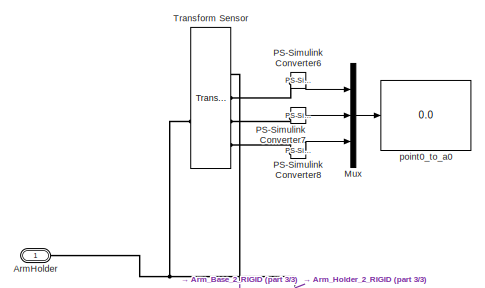
[diagram: UAV/Robotic Arm/Robotic Arm and Servos - part 1/3, top right region]
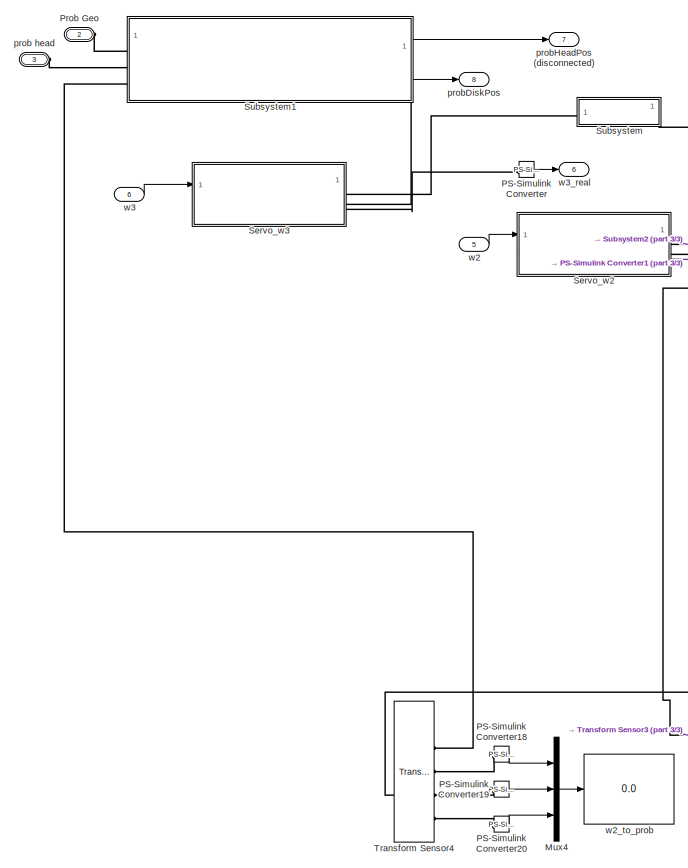
[diagram: UAV/Robotic Arm/Robotic Arm and Servos - part 2/3, left side, full height]
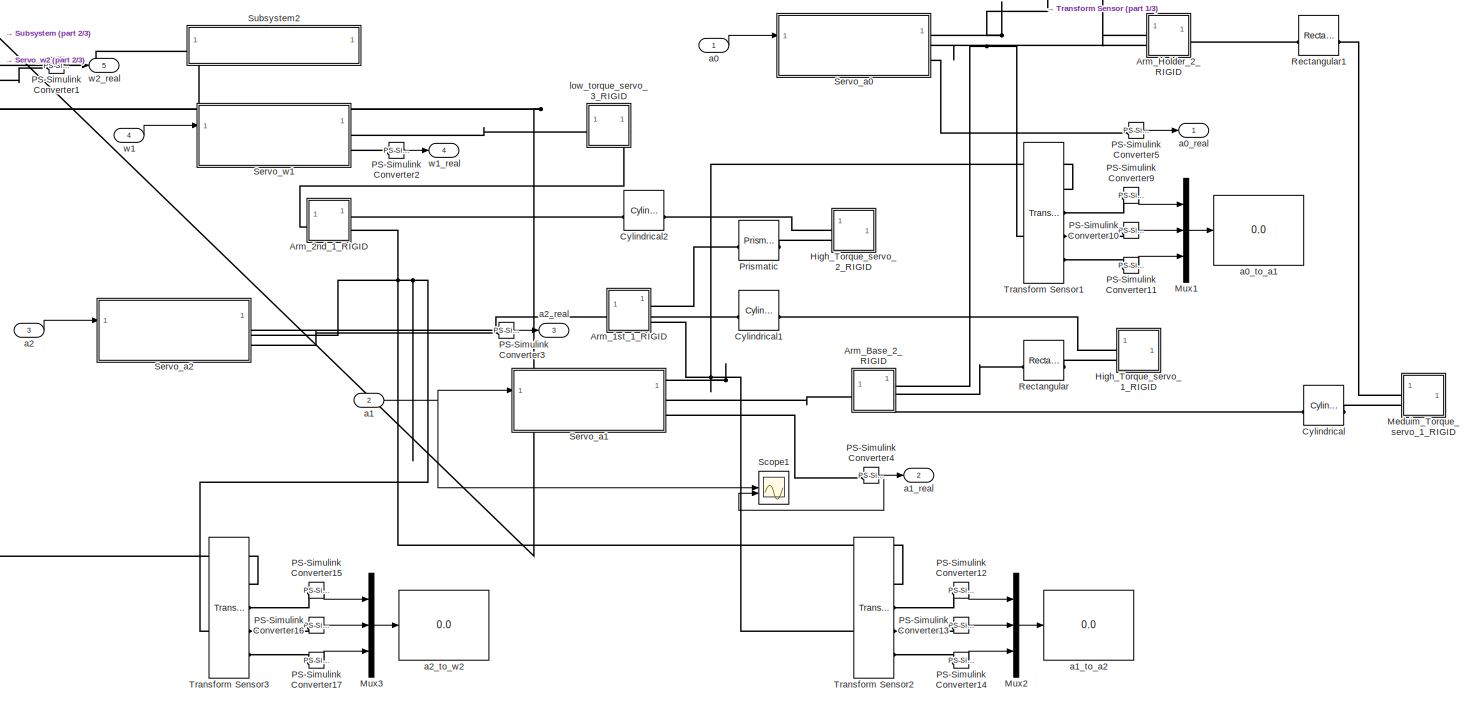
[diagram: UAV/Robotic Arm/Robotic Arm and Servos - part 3/3, central region]
BLOCK [SubSystem] UAV/Robotic Arm/Robotic Arm and Servos
BLOCK [PMIOPort] UAV/Robotic Arm/Robotic Arm and Servos/ArmHolder
  Side = Left
BLOCK [SubSystem] UAV/Robotic Arm/Robotic Arm and Servos/Arm_1st_1_RIGID
BLOCK [PMIOPort] UAV/Robotic Arm/Robotic Arm and Servos/Arm_1st_1_RIGID/F
  Port = 4
  Side = Right
BLOCK [PMIOPort] UAV/Robotic Arm/Robotic Arm and Servos/Arm_1st_1_RIGID/F1
  Side = Left
BLOCK [PMIOPort] UAV/Robotic Arm/Robotic Arm and Servos/Arm_1st_1_RIGID/F2
  Port = 3
  Side = Right
BLOCK [PMIOPort] UAV/Robotic Arm/Robotic Arm and Servos/Arm_1st_1_RIGID/F3
  Port = 2
  Side = Right
BLOCK [Reference] UAV/Robotic Arm/Robotic Arm and Servos/Arm_1st_1_RIGID/ReferenceFrame  REF=sm_lib/Frames and
Transforms/Reference
Frame
  SourceBlock = sm_lib/Frames and\nTransforms/Reference\nFrame
  SourceType = Reference\nFrame
BLOCK [Reference] UAV/Robotic Arm/Robotic Arm and Servos/Arm_1st_1_RIGID/Solid  REF=sm_lib/Body Elements/File Solid
  SourceBlock = sm_lib/Body Elements/File Solid
  SourceType = File Solid
BLOCK [Reference] UAV/Robotic Arm/Robotic Arm and Servos/Arm_1st_1_RIGID/Transform  REF=sm_lib/Frames and
Transforms/Rigid
Transform
  SourceBlock = sm_lib/Frames and\nTransforms/Rigid\nTransform
  SourceType = Rigid\nTransform
BLOCK [Reference] UAV/Robotic Arm/Robotic Arm and Servos/Arm_1st_1_RIGID/Transform1  REF=sm_lib/Frames and
Transforms/Rigid
Transform
  SourceBlock = sm_lib/Frames and\nTransforms/Rigid\nTransform
  SourceType = Rigid\nTransform
BLOCK [Reference] UAV/Robotic Arm/Robotic Arm and Servos/Arm_1st_1_RIGID/Transform2  REF=sm_lib/Frames and
Transforms/Rigid
Transform
  SourceBlock = sm_lib/Frames and\nTransforms/Rigid\nTransform
  SourceType = Rigid\nTransform
BLOCK [Reference] UAV/Robotic Arm/Robotic Arm and Servos/Arm_1st_1_RIGID/Transform3  REF=sm_lib/Frames and
Transforms/Rigid
Transform
  SourceBlock = sm_lib/Frames and\nTransforms/Rigid\nTransform
  SourceType = Rigid\nTransform
BLOCK [SubSystem] UAV/Robotic Arm/Robotic Arm and Servos/Arm_2nd_1_RIGID
BLOCK [PMIOPort] UAV/Robotic Arm/Robotic Arm and Servos/Arm_2nd_1_RIGID/F
  Port = 3
  Side = Right
BLOCK [PMIOPort] UAV/Robotic Arm/Robotic Arm and Servos/Arm_2nd_1_RIGID/F1
  Port = 2
  Side = Right
BLOCK [PMIOPort] UAV/Robotic Arm/Robotic Arm and Servos/Arm_2nd_1_RIGID/F2
  Side = Left
BLOCK [Reference] UAV/Robotic Arm/Robotic Arm and Servos/Arm_2nd_1_RIGID/ReferenceFrame  REF=sm_lib/Frames and
Transforms/Reference
Frame
  SourceBlock = sm_lib/Frames and\nTransforms/Reference\nFrame
  SourceType = Reference\nFrame
BLOCK [Reference] UAV/Robotic Arm/Robotic Arm and Servos/Arm_2nd_1_RIGID/Solid  REF=sm_lib/Body Elements/File Solid
  SourceBlock = sm_lib/Body Elements/File Solid
  SourceType = File Solid
BLOCK [Reference] UAV/Robotic Arm/Robotic Arm and Servos/Arm_2nd_1_RIGID/Transform  REF=sm_lib/Frames and
Transforms/Rigid
Transform
  SourceBlock = sm_lib/Frames and\nTransforms/Rigid\nTransform
  SourceType = Rigid\nTransform
BLOCK [Reference] UAV/Robotic Arm/Robotic Arm and Servos/Arm_2nd_1_RIGID/Transform1  REF=sm_lib/Frames and
Transforms/Rigid
Transform
  SourceBlock = sm_lib/Frames and\nTransforms/Rigid\nTransform
  SourceType = Rigid\nTransform
BLOCK [Reference] UAV/Robotic Arm/Robotic Arm and Servos/Arm_2nd_1_RIGID/Transform2  REF=sm_lib/Frames and
Transforms/Rigid
Transform
  SourceBlock = sm_lib/Frames and\nTransforms/Rigid\nTransform
  SourceType = Rigid\nTransform
BLOCK [SubSystem] UAV/Robotic Arm/Robotic Arm and Servos/Arm_Base_2_RIGID
BLOCK [PMIOPort] UAV/Robotic Arm/Robotic Arm and Servos/Arm_Base_2_RIGID/F
  Port = 4
  Side = Right
BLOCK [PMIOPort] UAV/Robotic Arm/Robotic Arm and Servos/Arm_Base_2_RIGID/F1
  Port = 3
  Side = Right
BLOCK [PMIOPort] UAV/Robotic Arm/Robotic Arm and Servos/Arm_Base_2_RIGID/F2
  Side = Left
BLOCK [PMIOPort] UAV/Robotic Arm/Robotic Arm and Servos/Arm_Base_2_RIGID/F3
  Port = 2
  Side = Right
BLOCK [Reference] UAV/Robotic Arm/Robotic Arm and Servos/Arm_Base_2_RIGID/ReferenceFrame  REF=sm_lib/Frames and
Transforms/Reference
Frame
  SourceBlock = sm_lib/Frames and\nTransforms/Reference\nFrame
  SourceType = Reference\nFrame
BLOCK [Reference] UAV/Robotic Arm/Robotic Arm and Servos/Arm_Base_2_RIGID/Rigid Transform  REF=sm_lib/Frames and
Transforms/Rigid
Transform
  SourceBlock = sm_lib/Frames and\nTransforms/Rigid\nTransform
  SourceType = Rigid\nTransform
BLOCK [Reference] UAV/Robotic Arm/Robotic Arm and Servos/Arm_Base_2_RIGID/Solid  REF=sm_lib/Body Elements/File Solid
  SourceBlock = sm_lib/Body Elements/File Solid
  SourceType = File Solid
BLOCK [Reference] UAV/Robotic Arm/Robotic Arm and Servos/Arm_Base_2_RIGID/Transform  REF=sm_lib/Frames and
Transforms/Rigid
Transform
  SourceBlock = sm_lib/Frames and\nTransforms/Rigid\nTransform
  SourceType = Rigid\nTransform
BLOCK [Reference] UAV/Robotic Arm/Robotic Arm and Servos/Arm_Base_2_RIGID/Transform1  REF=sm_lib/Frames and
Transforms/Rigid
Transform
  SourceBlock = sm_lib/Frames and\nTransforms/Rigid\nTransform
  SourceType = Rigid\nTransform
BLOCK [Reference] UAV/Robotic Arm/Robotic Arm and Servos/Arm_Base_2_RIGID/Transform2  REF=sm_lib/Frames and
Transforms/Rigid
Transform
  SourceBlock = sm_lib/Frames and\nTransforms/Rigid\nTransform
  SourceType = Rigid\nTransform
BLOCK [Reference] UAV/Robotic Arm/Robotic Arm and Servos/Arm_Base_2_RIGID/Transform3  REF=sm_lib/Frames and
Transforms/Rigid
Transform
  SourceBlock = sm_lib/Frames and\nTransforms/Rigid\nTransform
  SourceType = Rigid\nTransform
BLOCK [SubSystem] UAV/Robotic Arm/Robotic Arm and Servos/Arm_Holder_2_RIGID
BLOCK [PMIOPort] UAV/Robotic Arm/Robotic Arm and Servos/Arm_Holder_2_RIGID/F
  Port = 2
  Side = Left
BLOCK [PMIOPort] UAV/Robotic Arm/Robotic Arm and Servos/Arm_Holder_2_RIGID/F1
  Port = 3
  Side = Right
BLOCK [PMIOPort] UAV/Robotic Arm/Robotic Arm and Servos/Arm_Holder_2_RIGID/F2
  Side = Left
BLOCK [Reference] UAV/Robotic Arm/Robotic Arm and Servos/Arm_Holder_2_RIGID/ReferenceFrame  REF=sm_lib/Frames and
Transforms/Reference
Frame
  SourceBlock = sm_lib/Frames and\nTransforms/Reference\nFrame
  SourceType = Reference\nFrame
BLOCK [Reference] UAV/Robotic Arm/Robotic Arm and Servos/Arm_Holder_2_RIGID/Solid  REF=sm_lib/Body Elements/File Solid
  SourceBlock = sm_lib/Body Elements/File Solid
  SourceType = File Solid
BLOCK [Reference] UAV/Robotic Arm/Robotic Arm and Servos/Arm_Holder_2_RIGID/Transform  REF=sm_lib/Frames and
Transforms/Rigid
Transform
  SourceBlock = sm_lib/Frames and\nTransforms/Rigid\nTransform
  SourceType = Rigid\nTransform
BLOCK [Reference] UAV/Robotic Arm/Robotic Arm and Servos/Arm_Holder_2_RIGID/Transform1  REF=sm_lib/Frames and
Transforms/Rigid
Transform
  SourceBlock = sm_lib/Frames and\nTransforms/Rigid\nTransform
  SourceType = Rigid\nTransform
BLOCK [Reference] UAV/Robotic Arm/Robotic Arm and Servos/Cylindrical  REF=sm_lib/Joints/Cylindrical
Joint
  SourceBlock = sm_lib/Joints/Cylindrical\nJoint
  SourceType = Cylindrical\nJoint
BLOCK [Reference] UAV/Robotic Arm/Robotic Arm and Servos/Cylindrical1  REF=sm_lib/Joints/Cylindrical
Joint
  SourceBlock = sm_lib/Joints/Cylindrical\nJoint
  SourceType = Cylindrical\nJoint
BLOCK [Reference] UAV/Robotic Arm/Robotic Arm and Servos/Cylindrical2  REF=sm_lib/Joints/Cylindrical
Joint
  SourceBlock = sm_lib/Joints/Cylindrical\nJoint
  SourceType = Cylindrical\nJoint
BLOCK [SubSystem] UAV/Robotic Arm/Robotic Arm and Servos/High_Torque_servo_1_RIGID
BLOCK [PMIOPort] UAV/Robotic Arm/Robotic Arm and Servos/High_Torque_servo_1_RIGID/F
  Port = 2
  Side = Left
BLOCK [PMIOPort] UAV/Robotic Arm/Robotic Arm and Servos/High_Torque_servo_1_RIGID/F1
  Side = Left
BLOCK [Reference] UAV/Robotic Arm/Robotic Arm and Servos/High_Torque_servo_1_RIGID/ReferenceFrame  REF=sm_lib/Frames and
Transforms/Reference
Frame
  SourceBlock = sm_lib/Frames and\nTransforms/Reference\nFrame
  SourceType = Reference\nFrame
BLOCK [Reference] UAV/Robotic Arm/Robotic Arm and Servos/High_Torque_servo_1_RIGID/Solid  REF=sm_lib/Body Elements/File Solid
  SourceBlock = sm_lib/Body Elements/File Solid
  SourceType = File Solid
BLOCK [Reference] UAV/Robotic Arm/Robotic Arm and Servos/High_Torque_servo_1_RIGID/Transform  REF=sm_lib/Frames and
Transforms/Rigid
Transform
  SourceBlock = sm_lib/Frames and\nTransforms/Rigid\nTransform
  SourceType = Rigid\nTransform
BLOCK [Reference] UAV/Robotic Arm/Robotic Arm and Servos/High_Torque_servo_1_RIGID/Transform1  REF=sm_lib/Frames and
Transforms/Rigid
Transform
  SourceBlock = sm_lib/Frames and\nTransforms/Rigid\nTransform
  SourceType = Rigid\nTransform
BLOCK [SubSystem] UAV/Robotic Arm/Robotic Arm and Servos/High_Torque_servo_2_RIGID
BLOCK [PMIOPort] UAV/Robotic Arm/Robotic Arm and Servos/High_Torque_servo_2_RIGID/F
  Port = 2
  Side = Left
BLOCK [PMIOPort] UAV/Robotic Arm/Robotic Arm and Servos/High_Torque_servo_2_RIGID/F1
  Side = Left
BLOCK [Reference] UAV/Robotic Arm/Robotic Arm and Servos/High_Torque_servo_2_RIGID/ReferenceFrame  REF=sm_lib/Frames and
Transforms/Reference
Frame
  SourceBlock = sm_lib/Frames and\nTransforms/Reference\nFrame
  SourceType = Reference\nFrame
BLOCK [Reference] UAV/Robotic Arm/Robotic Arm and Servos/High_Torque_servo_2_RIGID/Solid  REF=sm_lib/Body Elements/File Solid
  SourceBlock = sm_lib/Body Elements/File Solid
  SourceType = File Solid
BLOCK [Reference] UAV/Robotic Arm/Robotic Arm and Servos/High_Torque_servo_2_RIGID/Transform  REF=sm_lib/Frames and
Transforms/Rigid
Transform
  SourceBlock = sm_lib/Frames and\nTransforms/Rigid\nTransform
  SourceType = Rigid\nTransform
BLOCK [Reference] UAV/Robotic Arm/Robotic Arm and Servos/High_Torque_servo_2_RIGID/Transform1  REF=sm_lib/Frames and
Transforms/Rigid
Transform
  SourceBlock = sm_lib/Frames and\nTransforms/Rigid\nTransform
  SourceType = Rigid\nTransform
BLOCK [SubSystem] UAV/Robotic Arm/Robotic Arm and Servos/Meduim_Torque_servo_1_RIGID
BLOCK [PMIOPort] UAV/Robotic Arm/Robotic Arm and Servos/Meduim_Torque_servo_1_RIGID/F
  Port = 2
  Side = Left
BLOCK [PMIOPort] UAV/Robotic Arm/Robotic Arm and Servos/Meduim_Torque_servo_1_RIGID/F1
  Side = Left
BLOCK [Reference] UAV/Robotic Arm/Robotic Arm and Servos/Meduim_Torque_servo_1_RIGID/ReferenceFrame  REF=sm_lib/Frames and
Transforms/Reference
Frame
  SourceBlock = sm_lib/Frames and\nTransforms/Reference\nFrame
  SourceType = Reference\nFrame
BLOCK [Reference] UAV/Robotic Arm/Robotic Arm and Servos/Meduim_Torque_servo_1_RIGID/Solid  REF=sm_lib/Body Elements/File Solid
  SourceBlock = sm_lib/Body Elements/File Solid
  SourceType = File Solid
BLOCK [Reference] UAV/Robotic Arm/Robotic Arm and Servos/Meduim_Torque_servo_1_RIGID/Transform  REF=sm_lib/Frames and
Transforms/Rigid
Transform
  SourceBlock = sm_lib/Frames and\nTransforms/Rigid\nTransform
  SourceType = Rigid\nTransform
BLOCK [Reference] UAV/Robotic Arm/Robotic Arm and Servos/Meduim_Torque_servo_1_RIGID/Transform1  REF=sm_lib/Frames and
Transforms/Rigid
Transform
  SourceBlock = sm_lib/Frames and\nTransforms/Rigid\nTransform
  SourceType = Rigid\nTransform
BLOCK [Mux] UAV/Robotic Arm/Robotic Arm and Servos/Mux
  DisplayOption = bar
  Inputs = 3
BLOCK [Mux] UAV/Robotic Arm/Robotic Arm and Servos/Mux1
  DisplayOption = bar
  Inputs = 3
BLOCK [Mux] UAV/Robotic Arm/Robotic Arm and Servos/Mux2
  DisplayOption = bar
  Inputs = 3
BLOCK [Mux] UAV/Robotic Arm/Robotic Arm and Servos/Mux3
  DisplayOption = bar
  Inputs = 3
BLOCK [Mux] UAV/Robotic Arm/Robotic Arm and Servos/Mux4
  DisplayOption = bar
  Inputs = 3
BLOCK [Reference] UAV/Robotic Arm/Robotic Arm and Servos/PS-Simulink Converter  REF=nesl_utility/PS-Simulink
Converter
  SourceBlock = nesl_utility/PS-Simulink\nConverter
  SourceType = PS-Simulink\nConverter
BLOCK [Reference] UAV/Robotic Arm/Robotic Arm and Servos/PS-Simulink Converter1  REF=nesl_utility/PS-Simulink
Converter
  SourceBlock = nesl_utility/PS-Simulink\nConverter
  SourceType = PS-Simulink\nConverter
BLOCK [Reference] UAV/Robotic Arm/Robotic Arm and Servos/PS-Simulink Converter10  REF=nesl_utility/PS-Simulink
Converter
  SourceBlock = nesl_utility/PS-Simulink\nConverter
  SourceType = PS-Simulink\nConverter
BLOCK [Reference] UAV/Robotic Arm/Robotic Arm and Servos/PS-Simulink Converter11  REF=nesl_utility/PS-Simulink
Converter
  SourceBlock = nesl_utility/PS-Simulink\nConverter
  SourceType = PS-Simulink\nConverter
BLOCK [Reference] UAV/Robotic Arm/Robotic Arm and Servos/PS-Simulink Converter12  REF=nesl_utility/PS-Simulink
Converter
  SourceBlock = nesl_utility/PS-Simulink\nConverter
  SourceType = PS-Simulink\nConverter
BLOCK [Reference] UAV/Robotic Arm/Robotic Arm and Servos/PS-Simulink Converter13  REF=nesl_utility/PS-Simulink
Converter
  SourceBlock = nesl_utility/PS-Simulink\nConverter
  SourceType = PS-Simulink\nConverter
BLOCK [Reference] UAV/Robotic Arm/Robotic Arm and Servos/PS-Simulink Converter14  REF=nesl_utility/PS-Simulink
Converter
  SourceBlock = nesl_utility/PS-Simulink\nConverter
  SourceType = PS-Simulink\nConverter
BLOCK [Reference] UAV/Robotic Arm/Robotic Arm and Servos/PS-Simulink Converter15  REF=nesl_utility/PS-Simulink
Converter
  SourceBlock = nesl_utility/PS-Simulink\nConverter
  SourceType = PS-Simulink\nConverter
BLOCK [Reference] UAV/Robotic Arm/Robotic Arm and Servos/PS-Simulink Converter16  REF=nesl_utility/PS-Simulink
Converter
  SourceBlock = nesl_utility/PS-Simulink\nConverter
  SourceType = PS-Simulink\nConverter
BLOCK [Reference] UAV/Robotic Arm/Robotic Arm and Servos/PS-Simulink Converter17  REF=nesl_utility/PS-Simulink
Converter
  SourceBlock = nesl_utility/PS-Simulink\nConverter
  SourceType = PS-Simulink\nConverter
BLOCK [Reference] UAV/Robotic Arm/Robotic Arm and Servos/PS-Simulink Converter18  REF=nesl_utility/PS-Simulink
Converter
  SourceBlock = nesl_utility/PS-Simulink\nConverter
  SourceType = PS-Simulink\nConverter
BLOCK [Reference] UAV/Robotic Arm/Robotic Arm and Servos/PS-Simulink Converter19  REF=nesl_utility/PS-Simulink
Converter
  SourceBlock = nesl_utility/PS-Simulink\nConverter
  SourceType = PS-Simulink\nConverter
BLOCK [Reference] UAV/Robotic Arm/Robotic Arm and Servos/PS-Simulink Converter2  REF=nesl_utility/PS-Simulink
Converter
  SourceBlock = nesl_utility/PS-Simulink\nConverter
  SourceType = PS-Simulink\nConverter
BLOCK [Reference] UAV/Robotic Arm/Robotic Arm and Servos/PS-Simulink Converter20  REF=nesl_utility/PS-Simulink
Converter
  SourceBlock = nesl_utility/PS-Simulink\nConverter
  SourceType = PS-Simulink\nConverter
BLOCK [Reference] UAV/Robotic Arm/Robotic Arm and Servos/PS-Simulink Converter3  REF=nesl_utility/PS-Simulink
Converter
  SourceBlock = nesl_utility/PS-Simulink\nConverter
  SourceType = PS-Simulink\nConverter
BLOCK [Reference] UAV/Robotic Arm/Robotic Arm and Servos/PS-Simulink Converter4  REF=nesl_utility/PS-Simulink
Converter
  SourceBlock = nesl_utility/PS-Simulink\nConverter
  SourceType = PS-Simulink\nConverter
BLOCK [Reference] UAV/Robotic Arm/Robotic Arm and Servos/PS-Simulink Converter5  REF=nesl_utility/PS-Simulink
Converter
  SourceBlock = nesl_utility/PS-Simulink\nConverter
  SourceType = PS-Simulink\nConverter
BLOCK [Reference] UAV/Robotic Arm/Robotic Arm and Servos/PS-Simulink Converter6  REF=nesl_utility/PS-Simulink
Converter
  SourceBlock = nesl_utility/PS-Simulink\nConverter
  SourceType = PS-Simulink\nConverter
BLOCK [Reference] UAV/Robotic Arm/Robotic Arm and Servos/PS-Simulink Converter7  REF=nesl_utility/PS-Simulink
Converter
  SourceBlock = nesl_utility/PS-Simulink\nConverter
  SourceType = PS-Simulink\nConverter
BLOCK [Reference] UAV/Robotic Arm/Robotic Arm and Servos/PS-Simulink Converter8  REF=nesl_utility/PS-Simulink
Converter
  SourceBlock = nesl_utility/PS-Simulink\nConverter
  SourceType = PS-Simulink\nConverter
BLOCK [Reference] UAV/Robotic Arm/Robotic Arm and Servos/PS-Simulink Converter9  REF=nesl_utility/PS-Simulink
Converter
  SourceBlock = nesl_utility/PS-Simulink\nConverter
  SourceType = PS-Simulink\nConverter
BLOCK [Reference] UAV/Robotic Arm/Robotic Arm and Servos/Prismatic  REF=sm_lib/Joints/Prismatic
Joint
  SourceBlock = sm_lib/Joints/Prismatic\nJoint
  SourceType = Prismatic\nJoint
BLOCK [PMIOPort] UAV/Robotic Arm/Robotic Arm and Servos/Prob Geo
  Port = 2
  Side = Left
BLOCK [Reference] UAV/Robotic Arm/Robotic Arm and Servos/Rectangular  REF=sm_lib/Joints/Rectangular
Joint
  SourceBlock = sm_lib/Joints/Rectangular\nJoint
  SourceType = Rectangular\nJoint
BLOCK [Reference] UAV/Robotic Arm/Robotic Arm and Servos/Rectangular1  REF=sm_lib/Joints/Rectangular
Joint
  SourceBlock = sm_lib/Joints/Rectangular\nJoint
  SourceType = Rectangular\nJoint
BLOCK [Scope] UAV/Robotic Arm/Robotic Arm and Servos/Scope1
  Floating = off
  NumInputPorts = 2
  ScopeSpecificationString = Simulink.scopes.TimeScopeBlockCfg('CurrentConfiguration', extmgr.ConfigurationSet(extmgr.Configuration('Core','General UI',true),extmgr.Configuration('Core','Source UI',true),extmgr.Configuration('Sources','WiredSimulink',true,'DataLoggingVariableName','ScopeData11'),extmgr.Configuration('Visuals','Time Domain',true,'SerializedDisplays',{struct('MinYLimReal','-115.3866','MaxYLimReal','169.32019','...<+1494ch>
BLOCK [SubSystem] UAV/Robotic Arm/Robotic Arm and Servos/Servo_a0
  PortSchema = {"entries":[{"content":{"sides":[{"content":{"connectorIds":["In1"]},"type":"ConnectorPlacement.EquallySpacedRectSide","uuid":"103ab839-56e8-464e-8532-4fd9adcc6e82"},{"content":{"connectorIds":["RConn1","RConn2"],"side":"RIGHT"},"type":"ConnectorPlacement.EquallySpacedRectSide","uuid":"b653855b-3395-47a8-971a-8de05a972142"},{"content":{"connectorIds":["LConn1"],"side":"TOP"},"type":"ConnectorPlace...<+259ch>  <repeated x6 — deduplicated; at blocks: Servo_a0, Servo_a1, Servo_a2, Servo_w1, Servo_w2, Servo_w3>
BLOCK [PMIOPort] UAV/Robotic Arm/Robotic Arm and Servos/Servo_a0/Conn1
  NameLocation = top
  Side = Left
BLOCK [PMIOPort] UAV/Robotic Arm/Robotic Arm and Servos/Servo_a0/Conn2
  Port = 2
  Side = Right
BLOCK [PMIOPort] UAV/Robotic Arm/Robotic Arm and Servos/Servo_a0/Conn4
  Port = 3
  Side = Right
BLOCK [Reference] UAV/Robotic Arm/Robotic Arm and Servos/Servo_a0/Revolute6  REF=sm_lib/Joints/Revolute Joint
  SourceBlock = sm_lib/Joints/Revolute Joint
  SourceType = Revolute Joint
BLOCK [SubSystem] UAV/Robotic Arm/Robotic Arm and Servos/Servo_a0/Subsystem1
  PortSchema = {"entries":[{"content":{"sides":[{"content":{"connectorIds":[]},"type":"ConnectorPlacement.EquallySpacedRectSide","uuid":"b5f1c6aa-4a2b-4326-9436-5959910b66b3"},{"content":{"connectorIds":["RConn1","In1"],"side":"RIGHT"},"type":"ConnectorPlacement.EquallySpacedRectSide","uuid":"70057be2-781d-4c3d-8ad4-87a958ae9185"},{"content":{"connectorIds":[],"side":"TOP"},"type":"ConnectorPlacement.EquallySpac...<+387ch>  <repeated x6 — deduplicated; at blocks: Subsystem1>
BLOCK [DiscreteIntegrator] UAV/Robotic Arm/Robotic Arm and Servos/Servo_a0/Subsystem1/Discrete-Time Integrator
  ICPrevOutput = DiscIntNeverNeededParam
  ICPrevScaledInput = DiscIntNeverNeededParam
  InitialConditionSetting = Auto
  SampleTime = 0.01
  gainval = 1
BLOCK [DiscreteIntegrator] UAV/Robotic Arm/Robotic Arm and Servos/Servo_a0/Subsystem1/Discrete-Time Integrator1
  ICPrevOutput = DiscIntNeverNeededParam
  ICPrevScaledInput = DiscIntNeverNeededParam
  InitialConditionSetting = Auto
  SampleTime = 0.01
  gainval = 1
BLOCK [Gain] UAV/Robotic Arm/Robotic Arm and Servos/Servo_a0/Subsystem1/Gain1
  Gain = w/2
BLOCK [Gain] UAV/Robotic Arm/Robotic Arm and Servos/Servo_a0/Subsystem1/Gain2
  Gain = 2*w
BLOCK [Saturate] UAV/Robotic Arm/Robotic Arm and Servos/Servo_a0/Subsystem1/Saturation1
  LowerLimit = -max_vel
  UpperLimit = max_vel
  ZeroCross = off
BLOCK [Saturate] UAV/Robotic Arm/Robotic Arm and Servos/Servo_a0/Subsystem1/Saturation2
  LowerLimit = -max_T/I
  UpperLimit = max_T/I
  ZeroCross = off
BLOCK [Reference] UAV/Robotic Arm/Robotic Arm and Servos/Servo_a0/Subsystem1/Simulink-PS Converter  REF=nesl_utility/Simulink-PS
Converter
  SourceBlock = nesl_utility/Simulink-PS\nConverter
  SourceType = Simulink-PS\nConverter
BLOCK [Sum] UAV/Robotic Arm/Robotic Arm and Servos/Servo_a0/Subsystem1/Sum
  Inputs = |+-
BLOCK [Sum] UAV/Robotic Arm/Robotic Arm and Servos/Servo_a0/Subsystem1/Sum2
  Inputs = |+-
BLOCK [Inport] UAV/Robotic Arm/Robotic Arm and Servos/Servo_a0/Subsystem1/desired_angle
BLOCK [PMIOPort] UAV/Robotic Arm/Robotic Arm and Servos/Servo_a0/Subsystem1/torque
  Side = Right
BLOCK [Inport] UAV/Robotic Arm/Robotic Arm and Servos/Servo_a0/desired_angle
BLOCK [SubSystem] UAV/Robotic Arm/Robotic Arm and Servos/Servo_a1
BLOCK [PMIOPort] UAV/Robotic Arm/Robotic Arm and Servos/Servo_a1/Conn1
  NameLocation = top
  Side = Left
BLOCK [PMIOPort] UAV/Robotic Arm/Robotic Arm and Servos/Servo_a1/Conn2
  Port = 2
  Side = Right
BLOCK [PMIOPort] UAV/Robotic Arm/Robotic Arm and Servos/Servo_a1/Conn4
  Port = 3
  Side = Right
BLOCK [Reference] UAV/Robotic Arm/Robotic Arm and Servos/Servo_a1/Revolute6  REF=sm_lib/Joints/Revolute Joint
  SourceBlock = sm_lib/Joints/Revolute Joint
  SourceType = Revolute Joint
BLOCK [SubSystem] UAV/Robotic Arm/Robotic Arm and Servos/Servo_a1/Subsystem1
BLOCK [DiscreteIntegrator] UAV/Robotic Arm/Robotic Arm and Servos/Servo_a1/Subsystem1/Discrete-Time Integrator
  ICPrevOutput = DiscIntNeverNeededParam
  ICPrevScaledInput = DiscIntNeverNeededParam
  InitialConditionSetting = Auto
  SampleTime = 0.01
  gainval = 1
BLOCK [DiscreteIntegrator] UAV/Robotic Arm/Robotic Arm and Servos/Servo_a1/Subsystem1/Discrete-Time Integrator1
  ICPrevOutput = DiscIntNeverNeededParam
  ICPrevScaledInput = DiscIntNeverNeededParam
  InitialConditionSetting = Auto
  SampleTime = 0.01
  gainval = 1
BLOCK [Gain] UAV/Robotic Arm/Robotic Arm and Servos/Servo_a1/Subsystem1/Gain1
  Gain = w/2
BLOCK [Gain] UAV/Robotic Arm/Robotic Arm and Servos/Servo_a1/Subsystem1/Gain2
  Gain = 2*w
BLOCK [Saturate] UAV/Robotic Arm/Robotic Arm and Servos/Servo_a1/Subsystem1/Saturation1
  LowerLimit = -max_vel
  UpperLimit = max_vel
  ZeroCross = off
BLOCK [Saturate] UAV/Robotic Arm/Robotic Arm and Servos/Servo_a1/Subsystem1/Saturation2
  LowerLimit = -max_T/I
  UpperLimit = max_T/I
  ZeroCross = off
BLOCK [Reference] UAV/Robotic Arm/Robotic Arm and Servos/Servo_a1/Subsystem1/Simulink-PS Converter  REF=nesl_utility/Simulink-PS
Converter
  SourceBlock = nesl_utility/Simulink-PS\nConverter
  SourceType = Simulink-PS\nConverter
BLOCK [Sum] UAV/Robotic Arm/Robotic Arm and Servos/Servo_a1/Subsystem1/Sum
  Inputs = |+-
BLOCK [Sum] UAV/Robotic Arm/Robotic Arm and Servos/Servo_a1/Subsystem1/Sum2
  Inputs = |+-
BLOCK [Inport] UAV/Robotic Arm/Robotic Arm and Servos/Servo_a1/Subsystem1/desired_angle
BLOCK [PMIOPort] UAV/Robotic Arm/Robotic Arm and Servos/Servo_a1/Subsystem1/torque
  Side = Right
BLOCK [Inport] UAV/Robotic Arm/Robotic Arm and Servos/Servo_a1/desired_angle
BLOCK [SubSystem] UAV/Robotic Arm/Robotic Arm and Servos/Servo_a2
BLOCK [PMIOPort] UAV/Robotic Arm/Robotic Arm and Servos/Servo_a2/Conn1
  NameLocation = top
  Side = Left
BLOCK [PMIOPort] UAV/Robotic Arm/Robotic Arm and Servos/Servo_a2/Conn2
  Port = 2
  Side = Right
BLOCK [PMIOPort] UAV/Robotic Arm/Robotic Arm and Servos/Servo_a2/Conn4
  Port = 3
  Side = Right
BLOCK [Reference] UAV/Robotic Arm/Robotic Arm and Servos/Servo_a2/Revolute6  REF=sm_lib/Joints/Revolute Joint
  SourceBlock = sm_lib/Joints/Revolute Joint
  SourceType = Revolute Joint
BLOCK [SubSystem] UAV/Robotic Arm/Robotic Arm and Servos/Servo_a2/Subsystem1
BLOCK [DiscreteIntegrator] UAV/Robotic Arm/Robotic Arm and Servos/Servo_a2/Subsystem1/Discrete-Time Integrator
  ICPrevOutput = DiscIntNeverNeededParam
  ICPrevScaledInput = DiscIntNeverNeededParam
  InitialConditionSetting = Auto
  SampleTime = 0.01
  gainval = 1
BLOCK [DiscreteIntegrator] UAV/Robotic Arm/Robotic Arm and Servos/Servo_a2/Subsystem1/Discrete-Time Integrator1
  ICPrevOutput = DiscIntNeverNeededParam
  ICPrevScaledInput = DiscIntNeverNeededParam
  InitialConditionSetting = Auto
  SampleTime = 0.01
  gainval = 1
BLOCK [Gain] UAV/Robotic Arm/Robotic Arm and Servos/Servo_a2/Subsystem1/Gain1
  Gain = w/2
BLOCK [Gain] UAV/Robotic Arm/Robotic Arm and Servos/Servo_a2/Subsystem1/Gain2
  Gain = 2*w
BLOCK [Saturate] UAV/Robotic Arm/Robotic Arm and Servos/Servo_a2/Subsystem1/Saturation1
  LowerLimit = -max_vel
  UpperLimit = max_vel
  ZeroCross = off
BLOCK [Saturate] UAV/Robotic Arm/Robotic Arm and Servos/Servo_a2/Subsystem1/Saturation2
  LowerLimit = -max_T/I
  UpperLimit = max_T/I
  ZeroCross = off
BLOCK [Reference] UAV/Robotic Arm/Robotic Arm and Servos/Servo_a2/Subsystem1/Simulink-PS Converter  REF=nesl_utility/Simulink-PS
Converter
  SourceBlock = nesl_utility/Simulink-PS\nConverter
  SourceType = Simulink-PS\nConverter
BLOCK [Sum] UAV/Robotic Arm/Robotic Arm and Servos/Servo_a2/Subsystem1/Sum
  Inputs = |+-
BLOCK [Sum] UAV/Robotic Arm/Robotic Arm and Servos/Servo_a2/Subsystem1/Sum2
  Inputs = |+-
BLOCK [Inport] UAV/Robotic Arm/Robotic Arm and Servos/Servo_a2/Subsystem1/desired_angle
BLOCK [PMIOPort] UAV/Robotic Arm/Robotic Arm and Servos/Servo_a2/Subsystem1/torque
  Side = Right
BLOCK [Inport] UAV/Robotic Arm/Robotic Arm and Servos/Servo_a2/desired_angle
BLOCK [SubSystem] UAV/Robotic Arm/Robotic Arm and Servos/Servo_w1
BLOCK [PMIOPort] UAV/Robotic Arm/Robotic Arm and Servos/Servo_w1/Conn1
  NameLocation = top
  Side = Left
BLOCK [PMIOPort] UAV/Robotic Arm/Robotic Arm and Servos/Servo_w1/Conn2
  Port = 2
  Side = Right
BLOCK [PMIOPort] UAV/Robotic Arm/Robotic Arm and Servos/Servo_w1/Conn4
  Port = 3
  Side = Right
BLOCK [Reference] UAV/Robotic Arm/Robotic Arm and Servos/Servo_w1/Revolute6  REF=sm_lib/Joints/Revolute Joint
  SourceBlock = sm_lib/Joints/Revolute Joint
  SourceType = Revolute Joint
BLOCK [SubSystem] UAV/Robotic Arm/Robotic Arm and Servos/Servo_w1/Subsystem1
BLOCK [DiscreteIntegrator] UAV/Robotic Arm/Robotic Arm and Servos/Servo_w1/Subsystem1/Discrete-Time Integrator
  ICPrevOutput = DiscIntNeverNeededParam
  ICPrevScaledInput = DiscIntNeverNeededParam
  InitialConditionSetting = Auto
  SampleTime = 0.01
  gainval = 1
BLOCK [DiscreteIntegrator] UAV/Robotic Arm/Robotic Arm and Servos/Servo_w1/Subsystem1/Discrete-Time Integrator1
  ICPrevOutput = DiscIntNeverNeededParam
  ICPrevScaledInput = DiscIntNeverNeededParam
  InitialConditionSetting = Auto
  SampleTime = 0.01
  gainval = 1
BLOCK [Gain] UAV/Robotic Arm/Robotic Arm and Servos/Servo_w1/Subsystem1/Gain1
  Gain = w/2
BLOCK [Gain] UAV/Robotic Arm/Robotic Arm and Servos/Servo_w1/Subsystem1/Gain2
  Gain = 2*w
BLOCK [Saturate] UAV/Robotic Arm/Robotic Arm and Servos/Servo_w1/Subsystem1/Saturation1
  LowerLimit = -max_vel
  UpperLimit = max_vel
  ZeroCross = off
BLOCK [Saturate] UAV/Robotic Arm/Robotic Arm and Servos/Servo_w1/Subsystem1/Saturation2
  LowerLimit = -max_T/I
  UpperLimit = max_T/I
  ZeroCross = off
BLOCK [Reference] UAV/Robotic Arm/Robotic Arm and Servos/Servo_w1/Subsystem1/Simulink-PS Converter  REF=nesl_utility/Simulink-PS
Converter
  SourceBlock = nesl_utility/Simulink-PS\nConverter
  SourceType = Simulink-PS\nConverter
BLOCK [Sum] UAV/Robotic Arm/Robotic Arm and Servos/Servo_w1/Subsystem1/Sum
  Inputs = |+-
BLOCK [Sum] UAV/Robotic Arm/Robotic Arm and Servos/Servo_w1/Subsystem1/Sum2
  Inputs = |+-
BLOCK [Inport] UAV/Robotic Arm/Robotic Arm and Servos/Servo_w1/Subsystem1/desired_angle
BLOCK [PMIOPort] UAV/Robotic Arm/Robotic Arm and Servos/Servo_w1/Subsystem1/torque
  Side = Right
BLOCK [Inport] UAV/Robotic Arm/Robotic Arm and Servos/Servo_w1/desired_angle
BLOCK [SubSystem] UAV/Robotic Arm/Robotic Arm and Servos/Servo_w2
BLOCK [PMIOPort] UAV/Robotic Arm/Robotic Arm and Servos/Servo_w2/Conn1
  NameLocation = top
  Side = Left
BLOCK [PMIOPort] UAV/Robotic Arm/Robotic Arm and Servos/Servo_w2/Conn4
  Port = 3
  Side = Right
BLOCK [PMIOPort] UAV/Robotic Arm/Robotic Arm and Servos/Servo_w2/F
  Port = 2
  Side = Right
BLOCK [Reference] UAV/Robotic Arm/Robotic Arm and Servos/Servo_w2/Revolute6  REF=sm_lib/Joints/Revolute Joint
  SourceBlock = sm_lib/Joints/Revolute Joint
  SourceType = Revolute Joint
BLOCK [SubSystem] UAV/Robotic Arm/Robotic Arm and Servos/Servo_w2/Subsystem1
BLOCK [DiscreteIntegrator] UAV/Robotic Arm/Robotic Arm and Servos/Servo_w2/Subsystem1/Discrete-Time Integrator
  ICPrevOutput = DiscIntNeverNeededParam
  ICPrevScaledInput = DiscIntNeverNeededParam
  InitialConditionSetting = Auto
  SampleTime = 0.01
  gainval = 1
BLOCK [DiscreteIntegrator] UAV/Robotic Arm/Robotic Arm and Servos/Servo_w2/Subsystem1/Discrete-Time Integrator1
  ICPrevOutput = DiscIntNeverNeededParam
  ICPrevScaledInput = DiscIntNeverNeededParam
  InitialConditionSetting = Auto
  SampleTime = 0.01
  gainval = 1
BLOCK [Gain] UAV/Robotic Arm/Robotic Arm and Servos/Servo_w2/Subsystem1/Gain1
  Gain = w/2
BLOCK [Gain] UAV/Robotic Arm/Robotic Arm and Servos/Servo_w2/Subsystem1/Gain2
  Gain = 2*w
BLOCK [Saturate] UAV/Robotic Arm/Robotic Arm and Servos/Servo_w2/Subsystem1/Saturation1
  LowerLimit = -max_vel
  UpperLimit = max_vel
  ZeroCross = off
BLOCK [Saturate] UAV/Robotic Arm/Robotic Arm and Servos/Servo_w2/Subsystem1/Saturation2
  LowerLimit = -max_T/I
  UpperLimit = max_T/I
  ZeroCross = off
BLOCK [Reference] UAV/Robotic Arm/Robotic Arm and Servos/Servo_w2/Subsystem1/Simulink-PS Converter  REF=nesl_utility/Simulink-PS
Converter
  SourceBlock = nesl_utility/Simulink-PS\nConverter
  SourceType = Simulink-PS\nConverter
BLOCK [Sum] UAV/Robotic Arm/Robotic Arm and Servos/Servo_w2/Subsystem1/Sum
  Inputs = |+-
BLOCK [Sum] UAV/Robotic Arm/Robotic Arm and Servos/Servo_w2/Subsystem1/Sum2
  Inputs = |+-
BLOCK [Inport] UAV/Robotic Arm/Robotic Arm and Servos/Servo_w2/Subsystem1/desired_angle
BLOCK [PMIOPort] UAV/Robotic Arm/Robotic Arm and Servos/Servo_w2/Subsystem1/torque
  Side = Right
BLOCK [Inport] UAV/Robotic Arm/Robotic Arm and Servos/Servo_w2/desired_angle
BLOCK [SubSystem] UAV/Robotic Arm/Robotic Arm and Servos/Servo_w3
BLOCK [PMIOPort] UAV/Robotic Arm/Robotic Arm and Servos/Servo_w3/Conn4
  Port = 3
  Side = Right
BLOCK [PMIOPort] UAV/Robotic Arm/Robotic Arm and Servos/Servo_w3/F
  Port = 2
  Side = Right
BLOCK [PMIOPort] UAV/Robotic Arm/Robotic Arm and Servos/Servo_w3/F1
  NameLocation = top
  Side = Left
BLOCK [Reference] UAV/Robotic Arm/Robotic Arm and Servos/Servo_w3/Revolute6  REF=sm_lib/Joints/Revolute Joint
  SourceBlock = sm_lib/Joints/Revolute Joint
  SourceType = Revolute Joint
BLOCK [SubSystem] UAV/Robotic Arm/Robotic Arm and Servos/Servo_w3/Subsystem1
BLOCK [DiscreteIntegrator] UAV/Robotic Arm/Robotic Arm and Servos/Servo_w3/Subsystem1/Discrete-Time Integrator
  ICPrevOutput = DiscIntNeverNeededParam
  ICPrevScaledInput = DiscIntNeverNeededParam
  InitialConditionSetting = Auto
  SampleTime = 0.01
  gainval = 1
BLOCK [DiscreteIntegrator] UAV/Robotic Arm/Robotic Arm and Servos/Servo_w3/Subsystem1/Discrete-Time Integrator1
  ICPrevOutput = DiscIntNeverNeededParam
  ICPrevScaledInput = DiscIntNeverNeededParam
  InitialConditionSetting = Auto
  SampleTime = 0.01
  gainval = 1
BLOCK [Gain] UAV/Robotic Arm/Robotic Arm and Servos/Servo_w3/Subsystem1/Gain1
  Gain = w/2
BLOCK [Gain] UAV/Robotic Arm/Robotic Arm and Servos/Servo_w3/Subsystem1/Gain2
  Gain = 2*w
BLOCK [Saturate] UAV/Robotic Arm/Robotic Arm and Servos/Servo_w3/Subsystem1/Saturation1
  LowerLimit = -max_vel
  UpperLimit = max_vel
  ZeroCross = off
BLOCK [Saturate] UAV/Robotic Arm/Robotic Arm and Servos/Servo_w3/Subsystem1/Saturation2
  LowerLimit = -max_T/I
  UpperLimit = max_T/I
  ZeroCross = off
BLOCK [Reference] UAV/Robotic Arm/Robotic Arm and Servos/Servo_w3/Subsystem1/Simulink-PS Converter  REF=nesl_utility/Simulink-PS
Converter
  SourceBlock = nesl_utility/Simulink-PS\nConverter
  SourceType = Simulink-PS\nConverter
BLOCK [Sum] UAV/Robotic Arm/Robotic Arm and Servos/Servo_w3/Subsystem1/Sum
  Inputs = |+-
BLOCK [Sum] UAV/Robotic Arm/Robotic Arm and Servos/Servo_w3/Subsystem1/Sum2
  Inputs = |+-
BLOCK [Inport] UAV/Robotic Arm/Robotic Arm and Servos/Servo_w3/Subsystem1/desired_angle
BLOCK [PMIOPort] UAV/Robotic Arm/Robotic Arm and Servos/Servo_w3/Subsystem1/torque
  Side = Right
BLOCK [Inport] UAV/Robotic Arm/Robotic Arm and Servos/Servo_w3/desired_angle
BLOCK [SubSystem] UAV/Robotic Arm/Robotic Arm and Servos/Subsystem
  PortSchema = {"entries":[{"content":{"sides":[{"content":{"connectorIds":[]},"type":"ConnectorPlacement.EquallySpacedRectSide","uuid":"8de746cd-84c7-4080-b407-576d0fcb9952"},{"content":{"connectorIds":[],"side":"RIGHT"},"type":"ConnectorPlacement.EquallySpacedRectSide","uuid":"9fcbafa5-7385-423e-8070-c8a290ba0382"},{"content":{"connectorIds":[],"side":"TOP"},"type":"ConnectorPlacement.EquallySpacedRectSide","u...<+390ch>
BLOCK [PMIOPort] UAV/Robotic Arm/Robotic Arm and Servos/Subsystem/F
  Side = Right
BLOCK [PMIOPort] UAV/Robotic Arm/Robotic Arm and Servos/Subsystem/F1
  Port = 2
  Side = Right
BLOCK [Reference] UAV/Robotic Arm/Robotic Arm and Servos/Subsystem/Rigid Transform  REF=sm_lib/Frames and
Transforms/Rigid
Transform
  SourceBlock = sm_lib/Frames and\nTransforms/Rigid\nTransform
  SourceType = Rigid\nTransform
BLOCK [SubSystem] UAV/Robotic Arm/Robotic Arm and Servos/Subsystem/low_torque_servo_1_RIGID
BLOCK [PMIOPort] UAV/Robotic Arm/Robotic Arm and Servos/Subsystem/low_torque_servo_1_RIGID/F
  Port = 2
  Side = Left
BLOCK [PMIOPort] UAV/Robotic Arm/Robotic Arm and Servos/Subsystem/low_torque_servo_1_RIGID/F1
  Side = Left
BLOCK [Reference] UAV/Robotic Arm/Robotic Arm and Servos/Subsystem/low_torque_servo_1_RIGID/ReferenceFrame  REF=sm_lib/Frames and
Transforms/Reference
Frame
  SourceBlock = sm_lib/Frames and\nTransforms/Reference\nFrame
  SourceType = Reference\nFrame
BLOCK [Reference] UAV/Robotic Arm/Robotic Arm and Servos/Subsystem/low_torque_servo_1_RIGID/Solid  REF=sm_lib/Body Elements/File Solid
  SourceBlock = sm_lib/Body Elements/File Solid
  SourceType = File Solid
BLOCK [Reference] UAV/Robotic Arm/Robotic Arm and Servos/Subsystem/low_torque_servo_1_RIGID/Transform  REF=sm_lib/Frames and
Transforms/Rigid
Transform
  SourceBlock = sm_lib/Frames and\nTransforms/Rigid\nTransform
  SourceType = Rigid\nTransform
BLOCK [Reference] UAV/Robotic Arm/Robotic Arm and Servos/Subsystem/low_torque_servo_1_RIGID/Transform1  REF=sm_lib/Frames and
Transforms/Rigid
Transform
  SourceBlock = sm_lib/Frames and\nTransforms/Rigid\nTransform
  SourceType = Rigid\nTransform
BLOCK [SubSystem] UAV/Robotic Arm/Robotic Arm and Servos/Subsystem/wrist_2nd_joint_1_RIGID
BLOCK [PMIOPort] UAV/Robotic Arm/Robotic Arm and Servos/Subsystem/wrist_2nd_joint_1_RIGID/F
  Side = Left
BLOCK [PMIOPort] UAV/Robotic Arm/Robotic Arm and Servos/Subsystem/wrist_2nd_joint_1_RIGID/F1
  Port = 2
  Side = Right
BLOCK [Reference] UAV/Robotic Arm/Robotic Arm and Servos/Subsystem/wrist_2nd_joint_1_RIGID/ReferenceFrame  REF=sm_lib/Frames and
Transforms/Reference
Frame
  SourceBlock = sm_lib/Frames and\nTransforms/Reference\nFrame
  SourceType = Reference\nFrame
BLOCK [Reference] UAV/Robotic Arm/Robotic Arm and Servos/Subsystem/wrist_2nd_joint_1_RIGID/Solid  REF=sm_lib/Body Elements/File Solid
  SourceBlock = sm_lib/Body Elements/File Solid
  SourceType = File Solid
BLOCK [Reference] UAV/Robotic Arm/Robotic Arm and Servos/Subsystem/wrist_2nd_joint_1_RIGID/Transform  REF=sm_lib/Frames and
Transforms/Rigid
Transform
  SourceBlock = sm_lib/Frames and\nTransforms/Rigid\nTransform
  SourceType = Rigid\nTransform
BLOCK [Reference] UAV/Robotic Arm/Robotic Arm and Servos/Subsystem/wrist_2nd_joint_1_RIGID/Transform1  REF=sm_lib/Frames and
Transforms/Rigid
Transform
  SourceBlock = sm_lib/Frames and\nTransforms/Rigid\nTransform
  SourceType = Rigid\nTransform
BLOCK [SubSystem] UAV/Robotic Arm/Robotic Arm and Servos/Subsystem1
  PortSchema = {"entries":[{"content":{"sides":[{"content":{"connectorIds":["LConn1","LConn2","LConn3"]},"type":"ConnectorPlacement.EquallySpacedRectSide","uuid":"4cac56d7-a2c9-4ed3-8aa6-3b0d0cd273e0"},{"content":{"connectorIds":["Out1","Out2"],"side":"RIGHT"},"type":"ConnectorPlacement.EquallySpacedRectSide","uuid":"4d5377cb-c7b4-4aca-ad4c-2c9ea97326f9"},{"content":{"connectorIds":[],"side":"TOP"},"type":"Conne...<+420ch>
BLOCK [PMIOPort] UAV/Robotic Arm/Robotic Arm and Servos/Subsystem1/F1
  Side = Right
BLOCK [PMIOPort] UAV/Robotic Arm/Robotic Arm and Servos/Subsystem1/Prob Geo
  Port = 2
  Side = Left
BLOCK [SubSystem] UAV/Robotic Arm/Robotic Arm and Servos/Subsystem1/Probe_1_RIGID
BLOCK [Reference] UAV/Robotic Arm/Robotic Arm and Servos/Subsystem1/Probe_1_RIGID/Cylindrical Solid  REF=sm_lib/Body Elements/Cylindrical Solid
  SourceBlock = sm_lib/Body Elements/Cylindrical Solid
  SourceType = Cylindrical Solid
BLOCK [PMIOPort] UAV/Robotic Arm/Robotic Arm and Servos/Subsystem1/Probe_1_RIGID/F
  Side = Left
BLOCK [Mux] UAV/Robotic Arm/Robotic Arm and Servos/Subsystem1/Probe_1_RIGID/Mux
  DisplayOption = bar
  Inputs = 3
BLOCK [Mux] UAV/Robotic Arm/Robotic Arm and Servos/Subsystem1/Probe_1_RIGID/Mux1
  DisplayOption = bar
BLOCK [Reference] UAV/Robotic Arm/Robotic Arm and Servos/Subsystem1/Probe_1_RIGID/PS-Simulink Converter  REF=nesl_utility/PS-Simulink
Converter
  SourceBlock = nesl_utility/PS-Simulink\nConverter
  SourceType = PS-Simulink\nConverter
BLOCK [Reference] UAV/Robotic Arm/Robotic Arm and Servos/Subsystem1/Probe_1_RIGID/PS-Simulink Converter1  REF=nesl_utility/PS-Simulink
Converter
  SourceBlock = nesl_utility/PS-Simulink\nConverter
  SourceType = PS-Simulink\nConverter
BLOCK [Reference] UAV/Robotic Arm/Robotic Arm and Servos/Subsystem1/Probe_1_RIGID/PS-Simulink Converter2  REF=nesl_utility/PS-Simulink
Converter
  SourceBlock = nesl_utility/PS-Simulink\nConverter
  SourceType = PS-Simulink\nConverter
BLOCK [Reference] UAV/Robotic Arm/Robotic Arm and Servos/Subsystem1/Probe_1_RIGID/PS-Simulink Converter3  REF=nesl_utility/PS-Simulink
Converter
  SourceBlock = nesl_utility/PS-Simulink\nConverter
  SourceType = PS-Simulink\nConverter
BLOCK [Reference] UAV/Robotic Arm/Robotic Arm and Servos/Subsystem1/Probe_1_RIGID/PS-Simulink Converter4  REF=nesl_utility/PS-Simulink
Converter
  SourceBlock = nesl_utility/PS-Simulink\nConverter
  SourceType = PS-Simulink\nConverter
BLOCK [Reference] UAV/Robotic Arm/Robotic Arm and Servos/Subsystem1/Probe_1_RIGID/PS-Simulink Converter5  REF=nesl_utility/PS-Simulink
Converter
  SourceBlock = nesl_utility/PS-Simulink\nConverter
  SourceType = PS-Simulink\nConverter
BLOCK [Reference] UAV/Robotic Arm/Robotic Arm and Servos/Subsystem1/Probe_1_RIGID/PS-Simulink Converter6  REF=nesl_utility/PS-Simulink
Converter
  SourceBlock = nesl_utility/PS-Simulink\nConverter
  SourceType = PS-Simulink\nConverter
BLOCK [PMIOPort] UAV/Robotic Arm/Robotic Arm and Servos/Subsystem1/Probe_1_RIGID/Prob Geo
  Port = 2
  Side = Left
BLOCK [Reference] UAV/Robotic Arm/Robotic Arm and Servos/Subsystem1/Probe_1_RIGID/ReferenceFrame  REF=sm_lib/Frames and
Transforms/Reference
Frame
  SourceBlock = sm_lib/Frames and\nTransforms/Reference\nFrame
  SourceType = Reference\nFrame
BLOCK [Reference] UAV/Robotic Arm/Robotic Arm and Servos/Subsystem1/Probe_1_RIGID/Rigid Transform  REF=sm_lib/Frames and
Transforms/Rigid
Transform
  Commented = on
  SourceBlock = sm_lib/Frames and\nTransforms/Rigid\nTransform
  SourceType = Rigid\nTransform
BLOCK [Reference] UAV/Robotic Arm/Robotic Arm and Servos/Subsystem1/Probe_1_RIGID/Rigid Transform1  REF=sm_lib/Frames and
Transforms/Rigid
Transform
  SourceBlock = sm_lib/Frames and\nTransforms/Rigid\nTransform
  SourceType = Rigid\nTransform
BLOCK [Reference] UAV/Robotic Arm/Robotic Arm and Servos/Subsystem1/Probe_1_RIGID/Rigid Transform2  REF=sm_lib/Frames and
Transforms/Rigid
Transform
  NameLocation = right
  SourceBlock = sm_lib/Frames and\nTransforms/Rigid\nTransform
  SourceType = Rigid\nTransform
BLOCK [Reference] UAV/Robotic Arm/Robotic Arm and Servos/Subsystem1/Probe_1_RIGID/Solid  REF=sm_lib/Body Elements/File Solid
  SourceBlock = sm_lib/Body Elements/File Solid
  SourceType = File Solid
BLOCK [Reference] UAV/Robotic Arm/Robotic Arm and Servos/Subsystem1/Probe_1_RIGID/Transform  REF=sm_lib/Frames and
Transforms/Rigid
Transform
  SourceBlock = sm_lib/Frames and\nTransforms/Rigid\nTransform
  SourceType = Rigid\nTransform
BLOCK [Reference] UAV/Robotic Arm/Robotic Arm and Servos/Subsystem1/Probe_1_RIGID/Transform Sensor  REF=sm_lib/Frames and
Transforms/Transform
Sensor
  Commented = on
  SourceBlock = sm_lib/Frames and\nTransforms/Transform\nSensor
  SourceType = Transform\nSensor
BLOCK [Reference] UAV/Robotic Arm/Robotic Arm and Servos/Subsystem1/Probe_1_RIGID/Transform Sensor1  REF=sm_lib/Frames and
Transforms/Transform
Sensor
  SourceBlock = sm_lib/Frames and\nTransforms/Transform\nSensor
  SourceType = Transform\nSensor
BLOCK [PMIOPort] UAV/Robotic Arm/Robotic Arm and Servos/Subsystem1/Probe_1_RIGID/prob head
  Port = 3
  Side = Left
BLOCK [Outport] UAV/Robotic Arm/Robotic Arm and Servos/Subsystem1/Probe_1_RIGID/probDiskPos
  Port = 2
BLOCK [Outport] UAV/Robotic Arm/Robotic Arm and Servos/Subsystem1/Probe_1_RIGID/probHeadPos (disconnected)
BLOCK [PMIOPort] UAV/Robotic Arm/Robotic Arm and Servos/Subsystem1/Probe_1_RIGID/prob_disk
  Port = 4
  Side = Left
BLOCK [PMIOPort] UAV/Robotic Arm/Robotic Arm and Servos/Subsystem1/prob disk
  Port = 4
  Side = Left
BLOCK [PMIOPort] UAV/Robotic Arm/Robotic Arm and Servos/Subsystem1/prob head
  Port = 3
  Side = Left
BLOCK [Outport] UAV/Robotic Arm/Robotic Arm and Servos/Subsystem1/probDiskPos
  Port = 2
BLOCK [Outport] UAV/Robotic Arm/Robotic Arm and Servos/Subsystem1/probHeadPos (disconnected)
BLOCK [SubSystem] UAV/Robotic Arm/Robotic Arm and Servos/Subsystem1/wrist_Cross_Servo_Gear_1_RIGID
BLOCK [PMIOPort] UAV/Robotic Arm/Robotic Arm and Servos/Subsystem1/wrist_Cross_Servo_Gear_1_RIGID/F
  Side = Left
BLOCK [PMIOPort] UAV/Robotic Arm/Robotic Arm and Servos/Subsystem1/wrist_Cross_Servo_Gear_1_RIGID/F1
  Port = 2
  Side = Right
BLOCK [Reference] UAV/Robotic Arm/Robotic Arm and Servos/Subsystem1/wrist_Cross_Servo_Gear_1_RIGID/ReferenceFrame  REF=sm_lib/Frames and
Transforms/Reference
Frame
  SourceBlock = sm_lib/Frames and\nTransforms/Reference\nFrame
  SourceType = Reference\nFrame
BLOCK [Reference] UAV/Robotic Arm/Robotic Arm and Servos/Subsystem1/wrist_Cross_Servo_Gear_1_RIGID/Solid  REF=sm_lib/Body Elements/File Solid
  SourceBlock = sm_lib/Body Elements/File Solid
  SourceType = File Solid
BLOCK [Reference] UAV/Robotic Arm/Robotic Arm and Servos/Subsystem1/wrist_Cross_Servo_Gear_1_RIGID/Transform  REF=sm_lib/Frames and
Transforms/Rigid
Transform
  SourceBlock = sm_lib/Frames and\nTransforms/Rigid\nTransform
  SourceType = Rigid\nTransform
BLOCK [Reference] UAV/Robotic Arm/Robotic Arm and Servos/Subsystem1/wrist_Cross_Servo_Gear_1_RIGID/Transform1  REF=sm_lib/Frames and
Transforms/Rigid
Transform
  SourceBlock = sm_lib/Frames and\nTransforms/Rigid\nTransform
  SourceType = Rigid\nTransform
BLOCK [SubSystem] UAV/Robotic Arm/Robotic Arm and Servos/Subsystem1/wrist_head_1_RIGID
BLOCK [PMIOPort] UAV/Robotic Arm/Robotic Arm and Servos/Subsystem1/wrist_head_1_RIGID/F
  Port = 2
  Side = Left
BLOCK [PMIOPort] UAV/Robotic Arm/Robotic Arm and Servos/Subsystem1/wrist_head_1_RIGID/F1
  Port = 3
  Side = Right
BLOCK [PMIOPort] UAV/Robotic Arm/Robotic Arm and Servos/Subsystem1/wrist_head_1_RIGID/F2
  Side = Left
BLOCK [Reference] UAV/Robotic Arm/Robotic Arm and Servos/Subsystem1/wrist_head_1_RIGID/ReferenceFrame  REF=sm_lib/Frames and
Transforms/Reference
Frame
  SourceBlock = sm_lib/Frames and\nTransforms/Reference\nFrame
  SourceType = Reference\nFrame
BLOCK [Reference] UAV/Robotic Arm/Robotic Arm and Servos/Subsystem1/wrist_head_1_RIGID/Rigid Transform  REF=sm_lib/Frames and
Transforms/Rigid
Transform
  SourceBlock = sm_lib/Frames and\nTransforms/Rigid\nTransform
  SourceType = Rigid\nTransform
BLOCK [Reference] UAV/Robotic Arm/Robotic Arm and Servos/Subsystem1/wrist_head_1_RIGID/Solid  REF=sm_lib/Body Elements/File Solid
  SourceBlock = sm_lib/Body Elements/File Solid
  SourceType = File Solid
BLOCK [Reference] UAV/Robotic Arm/Robotic Arm and Servos/Subsystem1/wrist_head_1_RIGID/Transform  REF=sm_lib/Frames and
Transforms/Rigid
Transform
  SourceBlock = sm_lib/Frames and\nTransforms/Rigid\nTransform
  SourceType = Rigid\nTransform
BLOCK [Reference] UAV/Robotic Arm/Robotic Arm and Servos/Subsystem1/wrist_head_1_RIGID/Transform1  REF=sm_lib/Frames and
Transforms/Rigid
Transform
  SourceBlock = sm_lib/Frames and\nTransforms/Rigid\nTransform
  SourceType = Rigid\nTransform
BLOCK [Reference] UAV/Robotic Arm/Robotic Arm and Servos/Subsystem1/wrist_head_1_RIGID/Transform2  REF=sm_lib/Frames and
Transforms/Rigid
Transform
  SourceBlock = sm_lib/Frames and\nTransforms/Rigid\nTransform
  SourceType = Rigid\nTransform
BLOCK [SubSystem] UAV/Robotic Arm/Robotic Arm and Servos/Subsystem1/wrist_head_cap_1_RIGID
BLOCK [PMIOPort] UAV/Robotic Arm/Robotic Arm and Servos/Subsystem1/wrist_head_cap_1_RIGID/F
  Side = Left
BLOCK [Reference] UAV/Robotic Arm/Robotic Arm and Servos/Subsystem1/wrist_head_cap_1_RIGID/ReferenceFrame  REF=sm_lib/Frames and
Transforms/Reference
Frame
  SourceBlock = sm_lib/Frames and\nTransforms/Reference\nFrame
  SourceType = Reference\nFrame
BLOCK [Reference] UAV/Robotic Arm/Robotic Arm and Servos/Subsystem1/wrist_head_cap_1_RIGID/Solid  REF=sm_lib/Body Elements/File Solid
  SourceBlock = sm_lib/Body Elements/File Solid
  SourceType = File Solid
BLOCK [Reference] UAV/Robotic Arm/Robotic Arm and Servos/Subsystem1/wrist_head_cap_1_RIGID/Transform  REF=sm_lib/Frames and
Transforms/Rigid
Transform
  SourceBlock = sm_lib/Frames and\nTransforms/Rigid\nTransform
  SourceType = Rigid\nTransform
BLOCK [SubSystem] UAV/Robotic Arm/Robotic Arm and Servos/Subsystem2
  PortSchema = {"entries":[{"content":{"sides":[{"content":{"connectorIds":["LConn1"]},"type":"ConnectorPlacement.EquallySpacedRectSide","uuid":"f6dcca9e-7386-450b-b7c7-e52a6b42b446"},{"content":{"connectorIds":[],"side":"RIGHT"},"type":"ConnectorPlacement.EquallySpacedRectSide","uuid":"ae20e057-c1ea-4d67-b538-dfe3f77d392d"},{"content":{"connectorIds":[],"side":"TOP"},"type":"ConnectorPlacement.EquallySpacedRect...<+389ch>
BLOCK [PMIOPort] UAV/Robotic Arm/Robotic Arm and Servos/Subsystem2/F
  Side = Left
BLOCK [PMIOPort] UAV/Robotic Arm/Robotic Arm and Servos/Subsystem2/F1
  Port = 2
  Side = Right
BLOCK [Reference] UAV/Robotic Arm/Robotic Arm and Servos/Subsystem2/Rigid Transform  REF=sm_lib/Frames and
Transforms/Rigid
Transform
  SourceBlock = sm_lib/Frames and\nTransforms/Rigid\nTransform
  SourceType = Rigid\nTransform
BLOCK [SubSystem] UAV/Robotic Arm/Robotic Arm and Servos/Subsystem2/low_torque_servo_2_RIGID
BLOCK [PMIOPort] UAV/Robotic Arm/Robotic Arm and Servos/Subsystem2/low_torque_servo_2_RIGID/F
  Port = 2
  Side = Left
BLOCK [PMIOPort] UAV/Robotic Arm/Robotic Arm and Servos/Subsystem2/low_torque_servo_2_RIGID/F1
  Side = Left
BLOCK [Reference] UAV/Robotic Arm/Robotic Arm and Servos/Subsystem2/low_torque_servo_2_RIGID/ReferenceFrame  REF=sm_lib/Frames and
Transforms/Reference
Frame
  SourceBlock = sm_lib/Frames and\nTransforms/Reference\nFrame
  SourceType = Reference\nFrame
BLOCK [Reference] UAV/Robotic Arm/Robotic Arm and Servos/Subsystem2/low_torque_servo_2_RIGID/Solid  REF=sm_lib/Body Elements/File Solid
  SourceBlock = sm_lib/Body Elements/File Solid
  SourceType = File Solid
BLOCK [Reference] UAV/Robotic Arm/Robotic Arm and Servos/Subsystem2/low_torque_servo_2_RIGID/Transform  REF=sm_lib/Frames and
Transforms/Rigid
Transform
  SourceBlock = sm_lib/Frames and\nTransforms/Rigid\nTransform
  SourceType = Rigid\nTransform
BLOCK [Reference] UAV/Robotic Arm/Robotic Arm and Servos/Subsystem2/low_torque_servo_2_RIGID/Transform1  REF=sm_lib/Frames and
Transforms/Rigid
Transform
  SourceBlock = sm_lib/Frames and\nTransforms/Rigid\nTransform
  SourceType = Rigid\nTransform
BLOCK [SubSystem] UAV/Robotic Arm/Robotic Arm and Servos/Subsystem2/wrist_1st_joint_1_RIGID
BLOCK [PMIOPort] UAV/Robotic Arm/Robotic Arm and Servos/Subsystem2/wrist_1st_joint_1_RIGID/F
  Side = Left
BLOCK [PMIOPort] UAV/Robotic Arm/Robotic Arm and Servos/Subsystem2/wrist_1st_joint_1_RIGID/F1
  Port = 2
  Side = Right
BLOCK [Reference] UAV/Robotic Arm/Robotic Arm and Servos/Subsystem2/wrist_1st_joint_1_RIGID/ReferenceFrame  REF=sm_lib/Frames and
Transforms/Reference
Frame
  SourceBlock = sm_lib/Frames and\nTransforms/Reference\nFrame
  SourceType = Reference\nFrame
BLOCK [Reference] UAV/Robotic Arm/Robotic Arm and Servos/Subsystem2/wrist_1st_joint_1_RIGID/Solid  REF=sm_lib/Body Elements/File Solid
  SourceBlock = sm_lib/Body Elements/File Solid
  SourceType = File Solid
BLOCK [Reference] UAV/Robotic Arm/Robotic Arm and Servos/Subsystem2/wrist_1st_joint_1_RIGID/Transform  REF=sm_lib/Frames and
Transforms/Rigid
Transform
  SourceBlock = sm_lib/Frames and\nTransforms/Rigid\nTransform
  SourceType = Rigid\nTransform
BLOCK [Reference] UAV/Robotic Arm/Robotic Arm and Servos/Subsystem2/wrist_1st_joint_1_RIGID/Transform1  REF=sm_lib/Frames and
Transforms/Rigid
Transform
  SourceBlock = sm_lib/Frames and\nTransforms/Rigid\nTransform
  SourceType = Rigid\nTransform
BLOCK [Reference] UAV/Robotic Arm/Robotic Arm and Servos/Transform Sensor  REF=sm_lib/Frames and
Transforms/Transform
Sensor
  SourceBlock = sm_lib/Frames and\nTransforms/Transform\nSensor
  SourceType = Transform\nSensor
BLOCK [Reference] UAV/Robotic Arm/Robotic Arm and Servos/Transform Sensor1  REF=sm_lib/Frames and
Transforms/Transform
Sensor
  SourceBlock = sm_lib/Frames and\nTransforms/Transform\nSensor
  SourceType = Transform\nSensor
BLOCK [Reference] UAV/Robotic Arm/Robotic Arm and Servos/Transform Sensor2  REF=sm_lib/Frames and
Transforms/Transform
Sensor
  SourceBlock = sm_lib/Frames and\nTransforms/Transform\nSensor
  SourceType = Transform\nSensor
BLOCK [Reference] UAV/Robotic Arm/Robotic Arm and Servos/Transform Sensor3  REF=sm_lib/Frames and
Transforms/Transform
Sensor
  SourceBlock = sm_lib/Frames and\nTransforms/Transform\nSensor
  SourceType = Transform\nSensor
BLOCK [Reference] UAV/Robotic Arm/Robotic Arm and Servos/Transform Sensor4  REF=sm_lib/Frames and
Transforms/Transform
Sensor
  SourceBlock = sm_lib/Frames and\nTransforms/Transform\nSensor
  SourceType = Transform\nSensor
BLOCK [Inport] UAV/Robotic Arm/Robotic Arm and Servos/a0
BLOCK [Outport] UAV/Robotic Arm/Robotic Arm and Servos/a0_real
BLOCK [Display] UAV/Robotic Arm/Robotic Arm and Servos/a0_to_a1
  Decimation = 1
BLOCK [Inport] UAV/Robotic Arm/Robotic Arm and Servos/a1
  Port = 2
BLOCK [Outport] UAV/Robotic Arm/Robotic Arm and Servos/a1_real
  Port = 2
BLOCK [Display] UAV/Robotic Arm/Robotic Arm and Servos/a1_to_a2
  Decimation = 1
BLOCK [Inport] UAV/Robotic Arm/Robotic Arm and Servos/a2
  Port = 3
BLOCK [Outport] UAV/Robotic Arm/Robotic Arm and Servos/a2_real
  Port = 3
BLOCK [Display] UAV/Robotic Arm/Robotic Arm and Servos/a2_to_w2
  Decimation = 1
BLOCK [SubSystem] UAV/Robotic Arm/Robotic Arm and Servos/low_torque_servo_3_RIGID
  PortSchema = {"entries":[{"content":{"sides":[{"content":{"connectorIds":["LConn1"]},"type":"ConnectorPlacement.EquallySpacedRectSide","uuid":"bebe253d-635e-438f-b136-1d13dc9bcca5"},{"content":{"connectorIds":[],"side":"RIGHT"},"type":"ConnectorPlacement.EquallySpacedRectSide","uuid":"20fb95e3-9ceb-4f7c-8dc6-35ae077b10bb"},{"content":{"connectorIds":[],"side":"TOP"},"type":"ConnectorPlacement.EquallySpacedRect...<+389ch>
BLOCK [PMIOPort] UAV/Robotic Arm/Robotic Arm and Servos/low_torque_servo_3_RIGID/F
  Port = 2
  Side = Right
BLOCK [PMIOPort] UAV/Robotic Arm/Robotic Arm and Servos/low_torque_servo_3_RIGID/F1
  Side = Left
BLOCK [Reference] UAV/Robotic Arm/Robotic Arm and Servos/low_torque_servo_3_RIGID/ReferenceFrame  REF=sm_lib/Frames and
Transforms/Reference
Frame
  SourceBlock = sm_lib/Frames and\nTransforms/Reference\nFrame
  SourceType = Reference\nFrame
BLOCK [Reference] UAV/Robotic Arm/Robotic Arm and Servos/low_torque_servo_3_RIGID/Rigid Transform  REF=sm_lib/Frames and
Transforms/Rigid
Transform
  SourceBlock = sm_lib/Frames and\nTransforms/Rigid\nTransform
  SourceType = Rigid\nTransform
BLOCK [Reference] UAV/Robotic Arm/Robotic Arm and Servos/low_torque_servo_3_RIGID/Solid  REF=sm_lib/Body Elements/File Solid
  SourceBlock = sm_lib/Body Elements/File Solid
  SourceType = File Solid
BLOCK [Reference] UAV/Robotic Arm/Robotic Arm and Servos/low_torque_servo_3_RIGID/Transform  REF=sm_lib/Frames and
Transforms/Rigid
Transform
  SourceBlock = sm_lib/Frames and\nTransforms/Rigid\nTransform
  SourceType = Rigid\nTransform
BLOCK [Reference] UAV/Robotic Arm/Robotic Arm and Servos/low_torque_servo_3_RIGID/Transform1  REF=sm_lib/Frames and
Transforms/Rigid
Transform
  SourceBlock = sm_lib/Frames and\nTransforms/Rigid\nTransform
  SourceType = Rigid\nTransform
BLOCK [Display] UAV/Robotic Arm/Robotic Arm and Servos/point0_to_a0
  Decimation = 1
BLOCK [PMIOPort] UAV/Robotic Arm/Robotic Arm and Servos/prob head
  Port = 3
  Side = Left
BLOCK [Outport] UAV/Robotic Arm/Robotic Arm and Servos/probDiskPos
  Port = 8
BLOCK [Outport] UAV/Robotic Arm/Robotic Arm and Servos/probHeadPos (disconnected)
  Port = 7
BLOCK [Inport] UAV/Robotic Arm/Robotic Arm and Servos/w1
  Port = 4
BLOCK [Outport] UAV/Robotic Arm/Robotic Arm and Servos/w1_real
  Port = 4
BLOCK [Inport] UAV/Robotic Arm/Robotic Arm and Servos/w2
  Port = 5
BLOCK [Outport] UAV/Robotic Arm/Robotic Arm and Servos/w2_real
  Port = 5
BLOCK [Display] UAV/Robotic Arm/Robotic Arm and Servos/w2_to_prob
  Decimation = 1
BLOCK [Inport] UAV/Robotic Arm/Robotic Arm and Servos/w3
  Port = 6
BLOCK [Outport] UAV/Robotic Arm/Robotic Arm and Servos/w3_real
  Port = 6
BLOCK [TransportDelay] UAV/Robotic Arm/Transport Delay
  DelayTime = 0.001
BLOCK [TransportDelay] UAV/Robotic Arm/Transport Delay1
  DelayTime = 0.001
BLOCK [Outport] UAV/Robotic Arm/arms_real_rot_deg
BLOCK [PMIOPort] UAV/Robotic Arm/prob Geo
  Port = 2
  Side = Left
BLOCK [PMIOPort] UAV/Robotic Arm/prob head
  Port = 3
  Side = Left
BLOCK [Outport] UAV/Robotic Arm/probDiskPos
  Port = 3
BLOCK [Outport] UAV/Robotic Arm/probHeadPos (disconnected)
  Port = 2
BLOCK [Inport] UAV/Robotic Arm/servos pos [6]
BLOCK [Reference] UAV/Solver Configuration  REF=nesl_utility/Solver
Configuration
  SourceBlock = nesl_utility/Solver\nConfiguration
  SourceType = Solver\nConfiguration
BLOCK [Reference] UAV/Spatial Contact Force4  REF=sm_lib/Forces and
Torques/Spatial
Contact Force
  SourceBlock = sm_lib/Forces and\nTorques/Spatial\nContact Force
  SourceType = Spatial\nContact Force
BLOCK [Terminator] UAV/Terminator
BLOCK [Terminator] UAV/Terminator1
BLOCK [Terminator] UAV/Terminator2
BLOCK [Terminator] UAV/Terminator4
BLOCK [Terminator] UAV/Terminator6
BLOCK [Terminator] UAV/Terminator7
BLOCK [ToWorkspace] UAV/To Workspace1
  FixptAsFi = on
  MaxDataPoints = inf
  SampleTime = -1
  SaveFormat = Timeseries
  VariableName = pos
BLOCK [ToWorkspace] UAV/To Workspace2
  FixptAsFi = on
  MaxDataPoints = inf
  SampleTime = -1
  SaveFormat = Timeseries
  VariableName = arm
BLOCK [ToWorkspace] UAV/To Workspace3
  FixptAsFi = on
  MaxDataPoints = inf
  SampleTime = -1
  SaveFormat = Timeseries
  VariableName = servo_command_angle
BLOCK [ToWorkspace] UAV/To Workspace4
  FixptAsFi = on
  MaxDataPoints = inf
  SampleTime = -1
  SaveFormat = Timeseries
  VariableName = prob_pos
BLOCK [SubSystem] UAV/UAV
  MinAlgLoopOccurrences = on
  PortSchema = {"entries":[{"content":{"sides":[{"content":{"connectorIds":["LConn1","In1","In2"]},"type":"ConnectorPlacement.EquallySpacedRectSide","uuid":"3a522cf1-0d2e-42a1-8abc-fdb0da215095"},{"content":{"connectorIds":["Out1","Out2","Out3","Out4","Out5"],"side":"RIGHT"},"type":"ConnectorPlacement.EquallySpacedRectSide","uuid":"0b06edfd-f156-4bc5-9eca-7fe97f182038"},{"content":{"connectorIds":["LConn2"],"sid...<+291ch>
BLOCK [Outport] UAV/UAV/Battery Voltage
BLOCK [SubSystem] UAV/UAV/Body
  PortSchema = {"entries":[{"content":{"sides":[{"content":{"connectorIds":["LConn1","LConn2","LConn3","LConn4","LConn5","In1"]},"type":"ConnectorPlacement.EquallySpacedRectSide","uuid":"8abbfab2-f266-443b-993d-92a00d5129d3"},{"content":{"connectorIds":["Out1","RConn1","RConn2","RConn3","RConn4","RConn5","RConn6","RConn7","RConn8"],"side":"RIGHT"},"type":"ConnectorPlacement.EquallySpacedRectSide","uuid":"d3862e7...<+370ch>
BLOCK [Reference] UAV/UAV/Body/   REF=nesl_utility/PS-Simulink
Converter
  NameLocation = right
  SourceBlock = nesl_utility/PS-Simulink\nConverter
  SourceType = PS-Simulink\nConverter
BLOCK [Reference] UAV/UAV/Body/6-DOF Joint  REF=sm_lib/Joints/6-DOF Joint
  SourceBlock = sm_lib/Joints/6-DOF Joint
  SourceType = 6-DOF Joint
BLOCK [SubSystem] UAV/UAV/Body/ALPHA_12S_ESC_1_RIGID
BLOCK [PMIOPort] UAV/UAV/Body/ALPHA_12S_ESC_1_RIGID/F
  Side = Left
BLOCK [Reference] UAV/UAV/Body/ALPHA_12S_ESC_1_RIGID/ReferenceFrame  REF=sm_lib/Frames and
Transforms/Reference
Frame
  SourceBlock = sm_lib/Frames and\nTransforms/Reference\nFrame
  SourceType = Reference\nFrame
BLOCK [Reference] UAV/UAV/Body/ALPHA_12S_ESC_1_RIGID/Solid  REF=sm_lib/Body Elements/File Solid
  SourceBlock = sm_lib/Body Elements/File Solid
  SourceType = File Solid
BLOCK [Reference] UAV/UAV/Body/ALPHA_12S_ESC_1_RIGID/Transform  REF=sm_lib/Frames and
Transforms/Rigid
Transform
  SourceBlock = sm_lib/Frames and\nTransforms/Rigid\nTransform
  SourceType = Rigid\nTransform
BLOCK [SubSystem] UAV/UAV/Body/ALPHA_12S_ESC_2_RIGID
BLOCK [PMIOPort] UAV/UAV/Body/ALPHA_12S_ESC_2_RIGID/F
  Side = Left
BLOCK [Reference] UAV/UAV/Body/ALPHA_12S_ESC_2_RIGID/ReferenceFrame  REF=sm_lib/Frames and
Transforms/Reference
Frame
  SourceBlock = sm_lib/Frames and\nTransforms/Reference\nFrame
  SourceType = Reference\nFrame
BLOCK [Reference] UAV/UAV/Body/ALPHA_12S_ESC_2_RIGID/Solid  REF=sm_lib/Body Elements/File Solid
  SourceBlock = sm_lib/Body Elements/File Solid
  SourceType = File Solid
BLOCK [Reference] UAV/UAV/Body/ALPHA_12S_ESC_2_RIGID/Transform  REF=sm_lib/Frames and
Transforms/Rigid
Transform
  SourceBlock = sm_lib/Frames and\nTransforms/Rigid\nTransform
  SourceType = Rigid\nTransform
BLOCK [SubSystem] UAV/UAV/Body/ALPHA_12S_ESC_3_RIGID
BLOCK [PMIOPort] UAV/UAV/Body/ALPHA_12S_ESC_3_RIGID/F
  Side = Left
BLOCK [Reference] UAV/UAV/Body/ALPHA_12S_ESC_3_RIGID/ReferenceFrame  REF=sm_lib/Frames and
Transforms/Reference
Frame
  SourceBlock = sm_lib/Frames and\nTransforms/Reference\nFrame
  SourceType = Reference\nFrame
BLOCK [Reference] UAV/UAV/Body/ALPHA_12S_ESC_3_RIGID/Solid  REF=sm_lib/Body Elements/File Solid
  SourceBlock = sm_lib/Body Elements/File Solid
  SourceType = File Solid
BLOCK [Reference] UAV/UAV/Body/ALPHA_12S_ESC_3_RIGID/Transform  REF=sm_lib/Frames and
Transforms/Rigid
Transform
  SourceBlock = sm_lib/Frames and\nTransforms/Rigid\nTransform
  SourceType = Rigid\nTransform
BLOCK [SubSystem] UAV/UAV/Body/ALPHA_12S_ESC_4_RIGID
BLOCK [PMIOPort] UAV/UAV/Body/ALPHA_12S_ESC_4_RIGID/F
  Side = Left
BLOCK [Reference] UAV/UAV/Body/ALPHA_12S_ESC_4_RIGID/ReferenceFrame  REF=sm_lib/Frames and
Transforms/Reference
Frame
  SourceBlock = sm_lib/Frames and\nTransforms/Reference\nFrame
  SourceType = Reference\nFrame
BLOCK [Reference] UAV/UAV/Body/ALPHA_12S_ESC_4_RIGID/Solid  REF=sm_lib/Body Elements/File Solid
  SourceBlock = sm_lib/Body Elements/File Solid
  SourceType = File Solid
BLOCK [Reference] UAV/UAV/Body/ALPHA_12S_ESC_4_RIGID/Transform  REF=sm_lib/Frames and
Transforms/Rigid
Transform
  SourceBlock = sm_lib/Frames and\nTransforms/Rigid\nTransform
  SourceType = Rigid\nTransform
BLOCK [SubSystem] UAV/UAV/Body/ALPHA_12S_ESC_5_RIGID
BLOCK [PMIOPort] UAV/UAV/Body/ALPHA_12S_ESC_5_RIGID/F
  Side = Left
BLOCK [Reference] UAV/UAV/Body/ALPHA_12S_ESC_5_RIGID/ReferenceFrame  REF=sm_lib/Frames and
Transforms/Reference
Frame
  SourceBlock = sm_lib/Frames and\nTransforms/Reference\nFrame
  SourceType = Reference\nFrame
BLOCK [Reference] UAV/UAV/Body/ALPHA_12S_ESC_5_RIGID/Solid  REF=sm_lib/Body Elements/File Solid
  SourceBlock = sm_lib/Body Elements/File Solid
  SourceType = File Solid
BLOCK [Reference] UAV/UAV/Body/ALPHA_12S_ESC_5_RIGID/Transform  REF=sm_lib/Frames and
Transforms/Rigid
Transform
  SourceBlock = sm_lib/Frames and\nTransforms/Rigid\nTransform
  SourceType = Rigid\nTransform
BLOCK [SubSystem] UAV/UAV/Body/ALPHA_12S_ESC_6_RIGID
BLOCK [PMIOPort] UAV/UAV/Body/ALPHA_12S_ESC_6_RIGID/F
  Side = Left
BLOCK [Reference] UAV/UAV/Body/ALPHA_12S_ESC_6_RIGID/ReferenceFrame  REF=sm_lib/Frames and
Transforms/Reference
Frame
  SourceBlock = sm_lib/Frames and\nTransforms/Reference\nFrame
  SourceType = Reference\nFrame
BLOCK [Reference] UAV/UAV/Body/ALPHA_12S_ESC_6_RIGID/Solid  REF=sm_lib/Body Elements/File Solid
  SourceBlock = sm_lib/Body Elements/File Solid
  SourceType = File Solid
BLOCK [Reference] UAV/UAV/Body/ALPHA_12S_ESC_6_RIGID/Transform  REF=sm_lib/Frames and
Transforms/Rigid
Transform
  SourceBlock = sm_lib/Frames and\nTransforms/Rigid\nTransform
  SourceType = Rigid\nTransform
BLOCK [SubSystem] UAV/UAV/Body/ALPHA_12S_ESC_7_RIGID
BLOCK [PMIOPort] UAV/UAV/Body/ALPHA_12S_ESC_7_RIGID/F
  Side = Left
BLOCK [Reference] UAV/UAV/Body/ALPHA_12S_ESC_7_RIGID/ReferenceFrame  REF=sm_lib/Frames and
Transforms/Reference
Frame
  SourceBlock = sm_lib/Frames and\nTransforms/Reference\nFrame
  SourceType = Reference\nFrame
BLOCK [Reference] UAV/UAV/Body/ALPHA_12S_ESC_7_RIGID/Solid  REF=sm_lib/Body Elements/File Solid
  SourceBlock = sm_lib/Body Elements/File Solid
  SourceType = File Solid
BLOCK [Reference] UAV/UAV/Body/ALPHA_12S_ESC_7_RIGID/Transform  REF=sm_lib/Frames and
Transforms/Rigid
Transform
  SourceBlock = sm_lib/Frames and\nTransforms/Rigid\nTransform
  SourceType = Rigid\nTransform
BLOCK [SubSystem] UAV/UAV/Body/ALPHA_12S_ESC_8_RIGID
BLOCK [PMIOPort] UAV/UAV/Body/ALPHA_12S_ESC_8_RIGID/F
  Side = Left
BLOCK [Reference] UAV/UAV/Body/ALPHA_12S_ESC_8_RIGID/ReferenceFrame  REF=sm_lib/Frames and
Transforms/Reference
Frame
  SourceBlock = sm_lib/Frames and\nTransforms/Reference\nFrame
  SourceType = Reference\nFrame
BLOCK [Reference] UAV/UAV/Body/ALPHA_12S_ESC_8_RIGID/Solid  REF=sm_lib/Body Elements/File Solid
  SourceBlock = sm_lib/Body Elements/File Solid
  SourceType = File Solid
BLOCK [Reference] UAV/UAV/Body/ALPHA_12S_ESC_8_RIGID/Transform  REF=sm_lib/Frames and
Transforms/Rigid
Transform
  SourceBlock = sm_lib/Frames and\nTransforms/Rigid\nTransform
  SourceType = Rigid\nTransform
BLOCK [SubSystem] UAV/UAV/Body/Body_Cover_1_RIGID
BLOCK [PMIOPort] UAV/UAV/Body/Body_Cover_1_RIGID/F
  Side = Left
BLOCK [Reference] UAV/UAV/Body/Body_Cover_1_RIGID/ReferenceFrame  REF=sm_lib/Frames and
Transforms/Reference
Frame
  SourceBlock = sm_lib/Frames and\nTransforms/Reference\nFrame
  SourceType = Reference\nFrame
BLOCK [Reference] UAV/UAV/Body/Body_Cover_1_RIGID/Solid  REF=sm_lib/Body Elements/File Solid
  SourceBlock = sm_lib/Body Elements/File Solid
  SourceType = File Solid
BLOCK [Reference] UAV/UAV/Body/Body_Cover_1_RIGID/Transform  REF=sm_lib/Frames and
Transforms/Rigid
Transform
  SourceBlock = sm_lib/Frames and\nTransforms/Rigid\nTransform
  SourceType = Rigid\nTransform
BLOCK [PMIOPort] UAV/UAV/Body/Conn10
  Port = 10
  Side = Right
BLOCK [PMIOPort] UAV/UAV/Body/Conn11
  Port = 11
  Side = Right
BLOCK [PMIOPort] UAV/UAV/Body/Conn12
  Port = 12
  Side = Right
BLOCK [PMIOPort] UAV/UAV/Body/Conn4
  Port = 4
  Side = Left
BLOCK [PMIOPort] UAV/UAV/Body/Conn5
  Port = 5
  Side = Right
BLOCK [PMIOPort] UAV/UAV/Body/Conn6
  Port = 6
  Side = Right
BLOCK [PMIOPort] UAV/UAV/Body/Conn7
  Port = 7
  Side = Right
BLOCK [PMIOPort] UAV/UAV/Body/Conn8
  Port = 8
  Side = Right
BLOCK [PMIOPort] UAV/UAV/Body/Conn9
  Port = 9
  Side = Right
BLOCK [SubSystem] UAV/UAV/Body/Drag
BLOCK [Outport] UAV/UAV/Body/Drag/Drag
BLOCK [SubSystem] UAV/UAV/Body/Drag/Drag Coeficient Selector
BLOCK [Reference] UAV/UAV/Body/Drag/Drag Coeficient Selector/Compare To Constant  REF=simulink/Logic and Bit
Operations/Compare
To Constant
  SourceBlock = simulink/Logic and Bit\nOperations/Compare\nTo Constant
  SourceType = Compare To Constant
BLOCK [Constant] UAV/UAV/Body/Drag/Drag Coeficient Selector/Constant
  Value = [-params.CD.front -params.CD.right -params.CD.bottom]
BLOCK [Constant] UAV/UAV/Body/Drag/Drag Coeficient Selector/Constant1
  Value = [params.CD.back params.CD.left params.CD.top]
BLOCK [Logic] UAV/UAV/Body/Drag/Drag Coeficient Selector/NOT
  AllPortsSameDT = off
  IconShape = distinctive
  Operator = NOT
  OutDataTypeStr = boolean
BLOCK [Outport] UAV/UAV/Body/Drag/Drag Coeficient Selector/Out1
BLOCK [Product] UAV/UAV/Body/Drag/Drag Coeficient Selector/Product
BLOCK [Product] UAV/UAV/Body/Drag/Drag Coeficient Selector/Product3
BLOCK [Sum] UAV/UAV/Body/Drag/Drag Coeficient Selector/Sum1
  Inputs = ++|
BLOCK [Inport] UAV/UAV/Body/Drag/Drag Coeficient Selector/u
BLOCK [Gain] UAV/UAV/Body/Drag/Gain
  Gain = 1/2*1.22
BLOCK [Inport] UAV/UAV/Body/Drag/MultiRotorVelocity [local coordinate]
BLOCK [Product] UAV/UAV/Body/Drag/Product1
BLOCK [Product] UAV/UAV/Body/Drag/Product2
  Multiplication = Matrix(*)
BLOCK [Reference] UAV/UAV/Body/Drag/Quaternions to Direction Cosine Matrix  REF=sharedtransform/Quaternions to 
Direction Cosine Matrix
  SourceBlock = sharedtransform/Quaternions to \nDirection Cosine Matrix
  SourceType = Quaternion2DCM
BLOCK [Scope] UAV/UAV/Body/Drag/Scope
  Floating = off
  NumInputPorts = 1
  ScopeSpecificationString = Simulink.scopes.TimeScopeBlockCfg('CurrentConfiguration', extmgr.ConfigurationSet(extmgr.Configuration('Core','General UI',true),extmgr.Configuration('Core','Source UI',true),extmgr.Configuration('Sources','WiredSimulink',true,'DataLoggingVariableName','ScopeData1'),extmgr.Configuration('Visuals','Time Domain',true,'SerializedDisplays',{struct('MinYLimReal','-0.93211','MaxYLimReal','3.85764','YLab...<+1414ch>
BLOCK [Math] UAV/UAV/Body/Drag/Square
  Operator = square
BLOCK [Sum] UAV/UAV/Body/Drag/Sum
  Inputs = |+-
BLOCK [Inport] UAV/UAV/Body/Drag/UAV Position
  Port = 4
BLOCK [Inport] UAV/UAV/Body/Drag/h
  Port = 3
BLOCK [Inport] UAV/UAV/Body/Drag/mode
  Port = 5
BLOCK [Inport] UAV/UAV/Body/Drag/mutirotor quaternions
  Port = 2
BLOCK [SubSystem] UAV/UAV/Body/Drag/wind
BLOCK [Constant] UAV/UAV/Body/Drag/wind/Constant
  Value = eye(3)
BLOCK [Constant] UAV/UAV/Body/Drag/wind/Constant1
  Value = 5
BLOCK [Reference] UAV/UAV/Body/Drag/wind/Dryden Wind Turbulence Model (Discrete (+q +r))  REF=aerolibwind2/Dryden Wind Turbulence Model 
(Continuous (+q -r))
  SourceBlock = aerolibwind2/Dryden Wind Turbulence Model \n(Continuous (+q -r))
  SourceType = Wind Turbulence Model
BLOCK [Gain] UAV/UAV/Body/Drag/wind/Gain
  Gain = is_gust_active
  NameLocation = right
BLOCK [SubSystem] UAV/UAV/Body/Drag/wind/Gust Manager :)
  NameLocation = right
  PortSchema = {"entries":[{"content":{"sides":[{"content":{"connectorIds":["In1"]},"type":"ConnectorPlacement.EquallySpacedRectSide","uuid":"112b5c87-abfd-4bcb-bbdd-88a8bf3046d7"},{"content":{"connectorIds":[],"side":"RIGHT"},"type":"ConnectorPlacement.EquallySpacedRectSide","uuid":"dadb15f0-4966-4df3-b024-5a84aad43b22"},{"content":{"connectorIds":["Out1"],"side":"TOP"},"type":"ConnectorPlacement.EquallySpacedR...<+395ch>
BLOCK [Logic] UAV/UAV/Body/Drag/wind/Gust Manager :)/AND
  AllPortsSameDT = off
  IconShape = distinctive
  OutDataTypeStr = boolean
BLOCK [Bias] UAV/UAV/Body/Drag/wind/Gust Manager :)/Add Constant
  Bias = [-xStack1 0]
  SaturateOnIntegerOverflow = off
BLOCK [Bias] UAV/UAV/Body/Drag/wind/Gust Manager :)/Add Constant1
  Bias = [-xStack2 0]
  SaturateOnIntegerOverflow = off
BLOCK [Reference] UAV/UAV/Body/Drag/wind/Gust Manager :)/Compare To Constant  REF=simulink/Logic and Bit
Operations/Compare
To Constant
  SourceBlock = simulink/Logic and Bit\nOperations/Compare\nTo Constant
  SourceType = Compare To Constant
BLOCK [Reference] UAV/UAV/Body/Drag/wind/Gust Manager :)/Compare To Constant1  REF=simulink/Logic and Bit
Operations/Compare
To Constant
  SourceBlock = simulink/Logic and Bit\nOperations/Compare\nTo Constant
  SourceType = Compare To Constant
BLOCK [Reference] UAV/UAV/Body/Drag/wind/Gust Manager :)/Compare To Constant2  REF=simulink/Logic and Bit
Operations/Compare
To Constant
  SourceBlock = simulink/Logic and Bit\nOperations/Compare\nTo Constant
  SourceType = Compare To Constant
BLOCK [Reference] UAV/UAV/Body/Drag/wind/Gust Manager :)/Compare To Constant3  REF=simulink/Logic and Bit
Operations/Compare
To Constant
  SourceBlock = simulink/Logic and Bit\nOperations/Compare\nTo Constant
  SourceType = Compare To Constant
BLOCK [Reference] UAV/UAV/Body/Drag/wind/Gust Manager :)/Compare To Constant4  REF=simulink/Logic and Bit
Operations/Compare
To Constant
  SourceBlock = simulink/Logic and Bit\nOperations/Compare\nTo Constant
  SourceType = Compare To Constant
BLOCK [Reference] UAV/UAV/Body/Drag/wind/Gust Manager :)/Compare To Constant5  REF=simulink/Logic and Bit
Operations/Compare
To Constant
  SourceBlock = simulink/Logic and Bit\nOperations/Compare\nTo Constant
  SourceType = Compare To Constant
BLOCK [Inport] UAV/UAV/Body/Drag/wind/Gust Manager :)/In1
BLOCK [Constant] UAV/UAV/Body/Drag/wind/Gust Manager :)/No Gust
  Value = [0 0 0]
BLOCK [Logic] UAV/UAV/Body/Drag/wind/Gust Manager :)/OR
  AllPortsSameDT = off
  IconShape = distinctive
  Inputs = 4
  Operator = OR
  OutDataTypeStr = boolean
BLOCK [Logic] UAV/UAV/Body/Drag/wind/Gust Manager :)/OR1
  AllPortsSameDT = off
  IconShape = distinctive
  Operator = OR
  OutDataTypeStr = boolean
BLOCK [Outport] UAV/UAV/Body/Drag/wind/Gust Manager :)/Out1
BLOCK [Selector] UAV/UAV/Body/Drag/wind/Gust Manager :)/Selector
  IndexOptions = Index vector (dialog)
  Indices = [1 2]
  InputPortWidth = 3
  OutputSizes = 1
BLOCK [Selector] UAV/UAV/Body/Drag/wind/Gust Manager :)/Selector1
  IndexOptions = Index vector (dialog)
  Indices = [1 2]
  InputPortWidth = 3
  OutputSizes = 1
BLOCK [Sqrt] UAV/UAV/Body/Drag/wind/Gust Manager :)/Sqrt
BLOCK [Sqrt] UAV/UAV/Body/Drag/wind/Gust Manager :)/Sqrt1
BLOCK [Math] UAV/UAV/Body/Drag/wind/Gust Manager :)/Square
  Operator = square
BLOCK [Math] UAV/UAV/Body/Drag/wind/Gust Manager :)/Square1
  Operator = square
BLOCK [Sum] UAV/UAV/Body/Drag/wind/Gust Manager :)/Sum of Elements
  IconShape = rectangular
  Inputs = +
BLOCK [Sum] UAV/UAV/Body/Drag/wind/Gust Manager :)/Sum of Elements1
  IconShape = rectangular
  Inputs = +
BLOCK [Switch] UAV/UAV/Body/Drag/wind/Gust Manager :)/Switch
  Criteria = u2 > Threshold
  InputSameDT = off
  SaturateOnIntegerOverflow = off
BLOCK [Inport] UAV/UAV/Body/Drag/wind/Gust Manager :)/UAV Position
  Port = 2
BLOCK [Inport] UAV/UAV/Body/Drag/wind/Gust Manager :)/mode
  Port = 3
BLOCK [Reference] UAV/UAV/Body/Drag/wind/Horizontal Wind Model  REF=aerolibwind2/Horizontal Wind Model
  SourceBlock = aerolibwind2/Horizontal Wind Model
  SourceType = Horizontal Wind Model
BLOCK [Sum] UAV/UAV/Body/Drag/wind/Sum
  Inputs = |++
BLOCK [Terminator] UAV/UAV/Body/Drag/wind/Terminator
BLOCK [Inport] UAV/UAV/Body/Drag/wind/UAV Position
  Port = 2
BLOCK [Inport] UAV/UAV/Body/Drag/wind/h
BLOCK [Inport] UAV/UAV/Body/Drag/wind/mode
  NameLocation = right
  Port = 3
BLOCK [Outport] UAV/UAV/Body/Drag/wind/wind
BLOCK [Reference] UAV/UAV/Body/External Force and Torque  REF=sm_lib/Forces and
Torques/External Force
and Torque
  SourceBlock = sm_lib/Forces and\nTorques/External Force\nand Torque
  SourceType = External Force\nand Torque
BLOCK [PMIOPort] UAV/UAV/Body/F13
  Side = Left
BLOCK [PMIOPort] UAV/UAV/Body/F7
  Port = 2
  Side = Left
BLOCK [PMIOPort] UAV/UAV/Body/F8
  Port = 3
  Side = Left
BLOCK [SubSystem] UAV/UAV/Body/Frame_1_RIGID
BLOCK [PMIOPort] UAV/UAV/Body/Frame_1_RIGID/F
  Port = 10
  Side = Right
BLOCK [PMIOPort] UAV/UAV/Body/Frame_1_RIGID/F1
  Port = 11
  Side = Right
BLOCK [PMIOPort] UAV/UAV/Body/Frame_1_RIGID/F13
  Side = Left
BLOCK [PMIOPort] UAV/UAV/Body/Frame_1_RIGID/F14
  Port = 8
  Side = Left
BLOCK [PMIOPort] UAV/UAV/Body/Frame_1_RIGID/F15
  Port = 6
  Side = Left
BLOCK [PMIOPort] UAV/UAV/Body/Frame_1_RIGID/F2
  Port = 7
  Side = Left
BLOCK [PMIOPort] UAV/UAV/Body/Frame_1_RIGID/F3
  Port = 4
  Side = Left
BLOCK [PMIOPort] UAV/UAV/Body/Frame_1_RIGID/F4
  Port = 5
  Side = Left
BLOCK [PMIOPort] UAV/UAV/Body/Frame_1_RIGID/F5
  Port = 9
  Side = Right
BLOCK [PMIOPort] UAV/UAV/Body/Frame_1_RIGID/F7
  Port = 2
  Side = Left
BLOCK [PMIOPort] UAV/UAV/Body/Frame_1_RIGID/F8
  Port = 3
  Side = Left
BLOCK [Reference] UAV/UAV/Body/Frame_1_RIGID/ReferenceFrame  REF=sm_lib/Frames and
Transforms/Reference
Frame
  SourceBlock = sm_lib/Frames and\nTransforms/Reference\nFrame
  SourceType = Reference\nFrame
BLOCK [Reference] UAV/UAV/Body/Frame_1_RIGID/Solid  REF=sm_lib/Body Elements/File Solid
  SourceBlock = sm_lib/Body Elements/File Solid
  SourceType = File Solid
BLOCK [Reference] UAV/UAV/Body/Frame_1_RIGID/Transform  REF=sm_lib/Frames and
Transforms/Rigid
Transform
  SourceBlock = sm_lib/Frames and\nTransforms/Rigid\nTransform
  SourceType = Rigid\nTransform
BLOCK [Reference] UAV/UAV/Body/Frame_1_RIGID/Transform1  REF=sm_lib/Frames and
Transforms/Rigid
Transform
  SourceBlock = sm_lib/Frames and\nTransforms/Rigid\nTransform
  SourceType = Rigid\nTransform
BLOCK [Reference] UAV/UAV/Body/Frame_1_RIGID/Transform13  REF=sm_lib/Frames and
Transforms/Rigid
Transform
  SourceBlock = sm_lib/Frames and\nTransforms/Rigid\nTransform
  SourceType = Rigid\nTransform
BLOCK [Reference] UAV/UAV/Body/Frame_1_RIGID/Transform14  REF=sm_lib/Frames and
Transforms/Rigid
Transform
  SourceBlock = sm_lib/Frames and\nTransforms/Rigid\nTransform
  SourceType = Rigid\nTransform
BLOCK [Reference] UAV/UAV/Body/Frame_1_RIGID/Transform2  REF=sm_lib/Frames and
Transforms/Rigid
Transform
  SourceBlock = sm_lib/Frames and\nTransforms/Rigid\nTransform
  SourceType = Rigid\nTransform
BLOCK [Reference] UAV/UAV/Body/Frame_1_RIGID/Transform3  REF=sm_lib/Frames and
Transforms/Rigid
Transform
  SourceBlock = sm_lib/Frames and\nTransforms/Rigid\nTransform
  SourceType = Rigid\nTransform
BLOCK [Reference] UAV/UAV/Body/Frame_1_RIGID/Transform4  REF=sm_lib/Frames and
Transforms/Rigid
Transform
  SourceBlock = sm_lib/Frames and\nTransforms/Rigid\nTransform
  SourceType = Rigid\nTransform
BLOCK [Reference] UAV/UAV/Body/Frame_1_RIGID/Transform5  REF=sm_lib/Frames and
Transforms/Rigid
Transform
  SourceBlock = sm_lib/Frames and\nTransforms/Rigid\nTransform
  SourceType = Rigid\nTransform
BLOCK [Reference] UAV/UAV/Body/Frame_1_RIGID/Transform7  REF=sm_lib/Frames and
Transforms/Rigid
Transform
  SourceBlock = sm_lib/Frames and\nTransforms/Rigid\nTransform
  SourceType = Rigid\nTransform
BLOCK [Reference] UAV/UAV/Body/Frame_1_RIGID/Transform8  REF=sm_lib/Frames and
Transforms/Rigid
Transform
  SourceBlock = sm_lib/Frames and\nTransforms/Rigid\nTransform
  SourceType = Rigid\nTransform
BLOCK [SubSystem] UAV/UAV/Body/Frame_Arm1_1_RIGID
BLOCK [PMIOPort] UAV/UAV/Body/Frame_Arm1_1_RIGID/F
  Port = 2
  Side = Right
BLOCK [PMIOPort] UAV/UAV/Body/Frame_Arm1_1_RIGID/F1
  Side = Right
BLOCK [Reference] UAV/UAV/Body/Frame_Arm1_1_RIGID/ReferenceFrame  REF=sm_lib/Frames and
Transforms/Reference
Frame
  SourceBlock = sm_lib/Frames and\nTransforms/Reference\nFrame
  SourceType = Reference\nFrame
BLOCK [Reference] UAV/UAV/Body/Frame_Arm1_1_RIGID/Solid  REF=sm_lib/Body Elements/File Solid
  SourceBlock = sm_lib/Body Elements/File Solid
  SourceType = File Solid
BLOCK [Reference] UAV/UAV/Body/Frame_Arm1_1_RIGID/Transform  REF=sm_lib/Frames and
Transforms/Rigid
Transform
  SourceBlock = sm_lib/Frames and\nTransforms/Rigid\nTransform
  SourceType = Rigid\nTransform
BLOCK [Reference] UAV/UAV/Body/Frame_Arm1_1_RIGID/Transform1  REF=sm_lib/Frames and
Transforms/Rigid
Transform
  SourceBlock = sm_lib/Frames and\nTransforms/Rigid\nTransform
  SourceType = Rigid\nTransform
BLOCK [SubSystem] UAV/UAV/Body/Frame_Arm1_3_RIGID
BLOCK [PMIOPort] UAV/UAV/Body/Frame_Arm1_3_RIGID/F
  Port = 2
  Side = Right
BLOCK [PMIOPort] UAV/UAV/Body/Frame_Arm1_3_RIGID/F1
  Side = Right
BLOCK [Reference] UAV/UAV/Body/Frame_Arm1_3_RIGID/ReferenceFrame  REF=sm_lib/Frames and
Transforms/Reference
Frame
  SourceBlock = sm_lib/Frames and\nTransforms/Reference\nFrame
  SourceType = Reference\nFrame
BLOCK [Reference] UAV/UAV/Body/Frame_Arm1_3_RIGID/Solid  REF=sm_lib/Body Elements/File Solid
  SourceBlock = sm_lib/Body Elements/File Solid
  SourceType = File Solid
BLOCK [Reference] UAV/UAV/Body/Frame_Arm1_3_RIGID/Transform  REF=sm_lib/Frames and
Transforms/Rigid
Transform
  SourceBlock = sm_lib/Frames and\nTransforms/Rigid\nTransform
  SourceType = Rigid\nTransform
BLOCK [Reference] UAV/UAV/Body/Frame_Arm1_3_RIGID/Transform1  REF=sm_lib/Frames and
Transforms/Rigid
Transform
  SourceBlock = sm_lib/Frames and\nTransforms/Rigid\nTransform
  SourceType = Rigid\nTransform
BLOCK [SubSystem] UAV/UAV/Body/Frame_Arm1_b_1_RIGID
BLOCK [PMIOPort] UAV/UAV/Body/Frame_Arm1_b_1_RIGID/F
  Port = 2
  Side = Right
BLOCK [PMIOPort] UAV/UAV/Body/Frame_Arm1_b_1_RIGID/F1
  Side = Left
BLOCK [Reference] UAV/UAV/Body/Frame_Arm1_b_1_RIGID/ReferenceFrame  REF=sm_lib/Frames and
Transforms/Reference
Frame
  SourceBlock = sm_lib/Frames and\nTransforms/Reference\nFrame
  SourceType = Reference\nFrame
BLOCK [Reference] UAV/UAV/Body/Frame_Arm1_b_1_RIGID/Solid  REF=sm_lib/Body Elements/File Solid
  SourceBlock = sm_lib/Body Elements/File Solid
  SourceType = File Solid
BLOCK [Reference] UAV/UAV/Body/Frame_Arm1_b_1_RIGID/Transform  REF=sm_lib/Frames and
Transforms/Rigid
Transform
  SourceBlock = sm_lib/Frames and\nTransforms/Rigid\nTransform
  SourceType = Rigid\nTransform
BLOCK [Reference] UAV/UAV/Body/Frame_Arm1_b_1_RIGID/Transform1  REF=sm_lib/Frames and
Transforms/Rigid
Transform
  SourceBlock = sm_lib/Frames and\nTransforms/Rigid\nTransform
  SourceType = Rigid\nTransform
BLOCK [SubSystem] UAV/UAV/Body/Frame_Arm1_b_2_RIGID
BLOCK [PMIOPort] UAV/UAV/Body/Frame_Arm1_b_2_RIGID/F
  Port = 2
  Side = Right
BLOCK [PMIOPort] UAV/UAV/Body/Frame_Arm1_b_2_RIGID/F1
  Side = Left
BLOCK [Reference] UAV/UAV/Body/Frame_Arm1_b_2_RIGID/ReferenceFrame  REF=sm_lib/Frames and
Transforms/Reference
Frame
  SourceBlock = sm_lib/Frames and\nTransforms/Reference\nFrame
  SourceType = Reference\nFrame
BLOCK [Reference] UAV/UAV/Body/Frame_Arm1_b_2_RIGID/Solid  REF=sm_lib/Body Elements/File Solid
  SourceBlock = sm_lib/Body Elements/File Solid
  SourceType = File Solid
BLOCK [Reference] UAV/UAV/Body/Frame_Arm1_b_2_RIGID/Transform  REF=sm_lib/Frames and
Transforms/Rigid
Transform
  SourceBlock = sm_lib/Frames and\nTransforms/Rigid\nTransform
  SourceType = Rigid\nTransform
BLOCK [Reference] UAV/UAV/Body/Frame_Arm1_b_2_RIGID/Transform1  REF=sm_lib/Frames and
Transforms/Rigid
Transform
  SourceBlock = sm_lib/Frames and\nTransforms/Rigid\nTransform
  SourceType = Rigid\nTransform
BLOCK [SubSystem] UAV/UAV/Body/Frame_Arm2_1_RIGID
BLOCK [PMIOPort] UAV/UAV/Body/Frame_Arm2_1_RIGID/F
  Port = 4
  Side = Left
BLOCK [PMIOPort] UAV/UAV/Body/Frame_Arm2_1_RIGID/F1
  Port = 5
  Side = Right
BLOCK [PMIOPort] UAV/UAV/Body/Frame_Arm2_1_RIGID/F2
  Port = 2
  Side = Left
BLOCK [PMIOPort] UAV/UAV/Body/Frame_Arm2_1_RIGID/F4
  Port = 3
  Side = Left
BLOCK [PMIOPort] UAV/UAV/Body/Frame_Arm2_1_RIGID/F5
  Side = Left
BLOCK [Reference] UAV/UAV/Body/Frame_Arm2_1_RIGID/ReferenceFrame  REF=sm_lib/Frames and
Transforms/Reference
Frame
  SourceBlock = sm_lib/Frames and\nTransforms/Reference\nFrame
  SourceType = Reference\nFrame
BLOCK [Reference] UAV/UAV/Body/Frame_Arm2_1_RIGID/Solid  REF=sm_lib/Body Elements/File Solid
  SourceBlock = sm_lib/Body Elements/File Solid
  SourceType = File Solid
BLOCK [Reference] UAV/UAV/Body/Frame_Arm2_1_RIGID/Transform  REF=sm_lib/Frames and
Transforms/Rigid
Transform
  SourceBlock = sm_lib/Frames and\nTransforms/Rigid\nTransform
  SourceType = Rigid\nTransform
BLOCK [Reference] UAV/UAV/Body/Frame_Arm2_1_RIGID/Transform1  REF=sm_lib/Frames and
Transforms/Rigid
Transform
  SourceBlock = sm_lib/Frames and\nTransforms/Rigid\nTransform
  SourceType = Rigid\nTransform
BLOCK [Reference] UAV/UAV/Body/Frame_Arm2_1_RIGID/Transform2  REF=sm_lib/Frames and
Transforms/Rigid
Transform
  SourceBlock = sm_lib/Frames and\nTransforms/Rigid\nTransform
  SourceType = Rigid\nTransform
BLOCK [Reference] UAV/UAV/Body/Frame_Arm2_1_RIGID/Transform4  REF=sm_lib/Frames and
Transforms/Rigid
Transform
  SourceBlock = sm_lib/Frames and\nTransforms/Rigid\nTransform
  SourceType = Rigid\nTransform
BLOCK [Reference] UAV/UAV/Body/Frame_Arm2_1_RIGID/Transform5  REF=sm_lib/Frames and
Transforms/Rigid
Transform
  SourceBlock = sm_lib/Frames and\nTransforms/Rigid\nTransform
  SourceType = Rigid\nTransform
BLOCK [SubSystem] UAV/UAV/Body/Frame_Arm2_2_RIGID
BLOCK [PMIOPort] UAV/UAV/Body/Frame_Arm2_2_RIGID/F
  Port = 5
  Side = Right
BLOCK [PMIOPort] UAV/UAV/Body/Frame_Arm2_2_RIGID/F1
  Port = 4
  Side = Right
BLOCK [PMIOPort] UAV/UAV/Body/Frame_Arm2_2_RIGID/F2
  Port = 3
  Side = Left
BLOCK [PMIOPort] UAV/UAV/Body/Frame_Arm2_2_RIGID/F4
  Port = 2
  Side = Left
BLOCK [PMIOPort] UAV/UAV/Body/Frame_Arm2_2_RIGID/F5
  Side = Left
BLOCK [Reference] UAV/UAV/Body/Frame_Arm2_2_RIGID/ReferenceFrame  REF=sm_lib/Frames and
Transforms/Reference
Frame
  SourceBlock = sm_lib/Frames and\nTransforms/Reference\nFrame
  SourceType = Reference\nFrame
BLOCK [Reference] UAV/UAV/Body/Frame_Arm2_2_RIGID/Solid  REF=sm_lib/Body Elements/File Solid
  SourceBlock = sm_lib/Body Elements/File Solid
  SourceType = File Solid
BLOCK [Reference] UAV/UAV/Body/Frame_Arm2_2_RIGID/Transform  REF=sm_lib/Frames and
Transforms/Rigid
Transform
  SourceBlock = sm_lib/Frames and\nTransforms/Rigid\nTransform
  SourceType = Rigid\nTransform
BLOCK [Reference] UAV/UAV/Body/Frame_Arm2_2_RIGID/Transform1  REF=sm_lib/Frames and
Transforms/Rigid
Transform
  SourceBlock = sm_lib/Frames and\nTransforms/Rigid\nTransform
  SourceType = Rigid\nTransform
BLOCK [Reference] UAV/UAV/Body/Frame_Arm2_2_RIGID/Transform2  REF=sm_lib/Frames and
Transforms/Rigid
Transform
  SourceBlock = sm_lib/Frames and\nTransforms/Rigid\nTransform
  SourceType = Rigid\nTransform
BLOCK [Reference] UAV/UAV/Body/Frame_Arm2_2_RIGID/Transform4  REF=sm_lib/Frames and
Transforms/Rigid
Transform
  SourceBlock = sm_lib/Frames and\nTransforms/Rigid\nTransform
  SourceType = Rigid\nTransform
BLOCK [Reference] UAV/UAV/Body/Frame_Arm2_2_RIGID/Transform5  REF=sm_lib/Frames and
Transforms/Rigid
Transform
  SourceBlock = sm_lib/Frames and\nTransforms/Rigid\nTransform
  SourceType = Rigid\nTransform
BLOCK [SubSystem] UAV/UAV/Body/Frame_Arm2_3_RIGID
BLOCK [PMIOPort] UAV/UAV/Body/Frame_Arm2_3_RIGID/F
  Port = 5
  Side = Right
BLOCK [PMIOPort] UAV/UAV/Body/Frame_Arm2_3_RIGID/F1
  Port = 4
  Side = Right
BLOCK [PMIOPort] UAV/UAV/Body/Frame_Arm2_3_RIGID/F3
  Port = 3
  Side = Right
BLOCK [PMIOPort] UAV/UAV/Body/Frame_Arm2_3_RIGID/F4
  Port = 2
  Side = Left
BLOCK [PMIOPort] UAV/UAV/Body/Frame_Arm2_3_RIGID/F5
  Side = Left
BLOCK [Reference] UAV/UAV/Body/Frame_Arm2_3_RIGID/ReferenceFrame  REF=sm_lib/Frames and
Transforms/Reference
Frame
  SourceBlock = sm_lib/Frames and\nTransforms/Reference\nFrame
  SourceType = Reference\nFrame
BLOCK [Reference] UAV/UAV/Body/Frame_Arm2_3_RIGID/Solid  REF=sm_lib/Body Elements/File Solid
  SourceBlock = sm_lib/Body Elements/File Solid
  SourceType = File Solid
BLOCK [Reference] UAV/UAV/Body/Frame_Arm2_3_RIGID/Transform  REF=sm_lib/Frames and
Transforms/Rigid
Transform
  SourceBlock = sm_lib/Frames and\nTransforms/Rigid\nTransform
  SourceType = Rigid\nTransform
BLOCK [Reference] UAV/UAV/Body/Frame_Arm2_3_RIGID/Transform1  REF=sm_lib/Frames and
Transforms/Rigid
Transform
  SourceBlock = sm_lib/Frames and\nTransforms/Rigid\nTransform
  SourceType = Rigid\nTransform
BLOCK [Reference] UAV/UAV/Body/Frame_Arm2_3_RIGID/Transform3  REF=sm_lib/Frames and
Transforms/Rigid
Transform
  SourceBlock = sm_lib/Frames and\nTransforms/Rigid\nTransform
  SourceType = Rigid\nTransform
BLOCK [Reference] UAV/UAV/Body/Frame_Arm2_3_RIGID/Transform4  REF=sm_lib/Frames and
Transforms/Rigid
Transform
  SourceBlock = sm_lib/Frames and\nTransforms/Rigid\nTransform
  SourceType = Rigid\nTransform
BLOCK [Reference] UAV/UAV/Body/Frame_Arm2_3_RIGID/Transform5  REF=sm_lib/Frames and
Transforms/Rigid
Transform
  SourceBlock = sm_lib/Frames and\nTransforms/Rigid\nTransform
  SourceType = Rigid\nTransform
BLOCK [SubSystem] UAV/UAV/Body/Frame_Arm2_4_RIGID
BLOCK [PMIOPort] UAV/UAV/Body/Frame_Arm2_4_RIGID/F
  Port = 3
  Side = Left
BLOCK [PMIOPort] UAV/UAV/Body/Frame_Arm2_4_RIGID/F1
  Port = 4
  Side = Right
BLOCK [PMIOPort] UAV/UAV/Body/Frame_Arm2_4_RIGID/F3
  Port = 5
  Side = Right
BLOCK [PMIOPort] UAV/UAV/Body/Frame_Arm2_4_RIGID/F4
  Port = 2
  Side = Left
BLOCK [PMIOPort] UAV/UAV/Body/Frame_Arm2_4_RIGID/F5
  Side = Left
BLOCK [Reference] UAV/UAV/Body/Frame_Arm2_4_RIGID/ReferenceFrame  REF=sm_lib/Frames and
Transforms/Reference
Frame
  SourceBlock = sm_lib/Frames and\nTransforms/Reference\nFrame
  SourceType = Reference\nFrame
BLOCK [Reference] UAV/UAV/Body/Frame_Arm2_4_RIGID/Solid  REF=sm_lib/Body Elements/File Solid
  SourceBlock = sm_lib/Body Elements/File Solid
  SourceType = File Solid
BLOCK [Reference] UAV/UAV/Body/Frame_Arm2_4_RIGID/Transform  REF=sm_lib/Frames and
Transforms/Rigid
Transform
  SourceBlock = sm_lib/Frames and\nTransforms/Rigid\nTransform
  SourceType = Rigid\nTransform
BLOCK [Reference] UAV/UAV/Body/Frame_Arm2_4_RIGID/Transform1  REF=sm_lib/Frames and
Transforms/Rigid
Transform
  SourceBlock = sm_lib/Frames and\nTransforms/Rigid\nTransform
  SourceType = Rigid\nTransform
BLOCK [Reference] UAV/UAV/Body/Frame_Arm2_4_RIGID/Transform3  REF=sm_lib/Frames and
Transforms/Rigid
Transform
  SourceBlock = sm_lib/Frames and\nTransforms/Rigid\nTransform
  SourceType = Rigid\nTransform
BLOCK [Reference] UAV/UAV/Body/Frame_Arm2_4_RIGID/Transform4  REF=sm_lib/Frames and
Transforms/Rigid
Transform
  SourceBlock = sm_lib/Frames and\nTransforms/Rigid\nTransform
  SourceType = Rigid\nTransform
BLOCK [Reference] UAV/UAV/Body/Frame_Arm2_4_RIGID/Transform5  REF=sm_lib/Frames and
Transforms/Rigid
Transform
  SourceBlock = sm_lib/Frames and\nTransforms/Rigid\nTransform
  SourceType = Rigid\nTransform
BLOCK [SubSystem] UAV/UAV/Body/Frame_Arm_f_5_RIGID
BLOCK [PMIOPort] UAV/UAV/Body/Frame_Arm_f_5_RIGID/F
  Side = Left
BLOCK [PMIOPort] UAV/UAV/Body/Frame_Arm_f_5_RIGID/F1
  Port = 2
  Side = Left
BLOCK [Reference] UAV/UAV/Body/Frame_Arm_f_5_RIGID/ReferenceFrame  REF=sm_lib/Frames and
Transforms/Reference
Frame
  SourceBlock = sm_lib/Frames and\nTransforms/Reference\nFrame
  SourceType = Reference\nFrame
BLOCK [Reference] UAV/UAV/Body/Frame_Arm_f_5_RIGID/Solid  REF=sm_lib/Body Elements/File Solid
  SourceBlock = sm_lib/Body Elements/File Solid
  SourceType = File Solid
BLOCK [Reference] UAV/UAV/Body/Frame_Arm_f_5_RIGID/Transform  REF=sm_lib/Frames and
Transforms/Rigid
Transform
  SourceBlock = sm_lib/Frames and\nTransforms/Rigid\nTransform
  SourceType = Rigid\nTransform
BLOCK [Reference] UAV/UAV/Body/Frame_Arm_f_5_RIGID/Transform1  REF=sm_lib/Frames and
Transforms/Rigid
Transform
  SourceBlock = sm_lib/Frames and\nTransforms/Rigid\nTransform
  SourceType = Rigid\nTransform
BLOCK [SubSystem] UAV/UAV/Body/Frame_Arm_f_6_RIGID
BLOCK [PMIOPort] UAV/UAV/Body/Frame_Arm_f_6_RIGID/F
  Side = Left
BLOCK [PMIOPort] UAV/UAV/Body/Frame_Arm_f_6_RIGID/F1
  Port = 2
  Side = Left
BLOCK [Reference] UAV/UAV/Body/Frame_Arm_f_6_RIGID/ReferenceFrame  REF=sm_lib/Frames and
Transforms/Reference
Frame
  SourceBlock = sm_lib/Frames and\nTransforms/Reference\nFrame
  SourceType = Reference\nFrame
BLOCK [Reference] UAV/UAV/Body/Frame_Arm_f_6_RIGID/Solid  REF=sm_lib/Body Elements/File Solid
  SourceBlock = sm_lib/Body Elements/File Solid
  SourceType = File Solid
BLOCK [Reference] UAV/UAV/Body/Frame_Arm_f_6_RIGID/Transform  REF=sm_lib/Frames and
Transforms/Rigid
Transform
  SourceBlock = sm_lib/Frames and\nTransforms/Rigid\nTransform
  SourceType = Rigid\nTransform
BLOCK [Reference] UAV/UAV/Body/Frame_Arm_f_6_RIGID/Transform1  REF=sm_lib/Frames and
Transforms/Rigid
Transform
  SourceBlock = sm_lib/Frames and\nTransforms/Rigid\nTransform
  SourceType = Rigid\nTransform
BLOCK [SubSystem] UAV/UAV/Body/Frame_Arm_f_7_RIGID
BLOCK [PMIOPort] UAV/UAV/Body/Frame_Arm_f_7_RIGID/F
  Port = 2
  Side = Left
BLOCK [PMIOPort] UAV/UAV/Body/Frame_Arm_f_7_RIGID/F1
  Side = Left
BLOCK [Reference] UAV/UAV/Body/Frame_Arm_f_7_RIGID/ReferenceFrame  REF=sm_lib/Frames and
Transforms/Reference
Frame
  SourceBlock = sm_lib/Frames and\nTransforms/Reference\nFrame
  SourceType = Reference\nFrame
BLOCK [Reference] UAV/UAV/Body/Frame_Arm_f_7_RIGID/Solid  REF=sm_lib/Body Elements/File Solid
  SourceBlock = sm_lib/Body Elements/File Solid
  SourceType = File Solid
BLOCK [Reference] UAV/UAV/Body/Frame_Arm_f_7_RIGID/Transform  REF=sm_lib/Frames and
Transforms/Rigid
Transform
  SourceBlock = sm_lib/Frames and\nTransforms/Rigid\nTransform
  SourceType = Rigid\nTransform
BLOCK [Reference] UAV/UAV/Body/Frame_Arm_f_7_RIGID/Transform1  REF=sm_lib/Frames and
Transforms/Rigid
Transform
  SourceBlock = sm_lib/Frames and\nTransforms/Rigid\nTransform
  SourceType = Rigid\nTransform
BLOCK [SubSystem] UAV/UAV/Body/Frame_Arm_f_8_RIGID
BLOCK [PMIOPort] UAV/UAV/Body/Frame_Arm_f_8_RIGID/F
  Port = 2
  Side = Left
BLOCK [PMIOPort] UAV/UAV/Body/Frame_Arm_f_8_RIGID/F1
  Side = Left
BLOCK [Reference] UAV/UAV/Body/Frame_Arm_f_8_RIGID/ReferenceFrame  REF=sm_lib/Frames and
Transforms/Reference
Frame
  SourceBlock = sm_lib/Frames and\nTransforms/Reference\nFrame
  SourceType = Reference\nFrame
BLOCK [Reference] UAV/UAV/Body/Frame_Arm_f_8_RIGID/Solid  REF=sm_lib/Body Elements/File Solid
  SourceBlock = sm_lib/Body Elements/File Solid
  SourceType = File Solid
BLOCK [Reference] UAV/UAV/Body/Frame_Arm_f_8_RIGID/Transform  REF=sm_lib/Frames and
Transforms/Rigid
Transform
  SourceBlock = sm_lib/Frames and\nTransforms/Rigid\nTransform
  SourceType = Rigid\nTransform
BLOCK [Reference] UAV/UAV/Body/Frame_Arm_f_8_RIGID/Transform1  REF=sm_lib/Frames and
Transforms/Rigid
Transform
  SourceBlock = sm_lib/Frames and\nTransforms/Rigid\nTransform
  SourceType = Rigid\nTransform
BLOCK [Mux] UAV/UAV/Body/Mux
  DisplayOption = bar
  Inputs = 12
BLOCK [Mux] UAV/UAV/Body/Mux1
  DisplayOption = bar
  Inputs = 3
BLOCK [Mux] UAV/UAV/Body/Mux2
  DisplayOption = bar
  Inputs = 3
  NameLocation = left
BLOCK [Reference] UAV/UAV/Body/PS-Simulink Converter1  REF=nesl_utility/PS-Simulink
Converter
  SourceBlock = nesl_utility/PS-Simulink\nConverter
  SourceType = PS-Simulink\nConverter
BLOCK [Reference] UAV/UAV/Body/PS-Simulink Converter10  REF=nesl_utility/PS-Simulink
Converter
  SourceBlock = nesl_utility/PS-Simulink\nConverter
  SourceType = PS-Simulink\nConverter
BLOCK [Reference] UAV/UAV/Body/PS-Simulink Converter11  REF=nesl_utility/PS-Simulink
Converter
  SourceBlock = nesl_utility/PS-Simulink\nConverter
  SourceType = PS-Simulink\nConverter
BLOCK [Reference] UAV/UAV/Body/PS-Simulink Converter2  REF=nesl_utility/PS-Simulink
Converter
  SourceBlock = nesl_utility/PS-Simulink\nConverter
  SourceType = PS-Simulink\nConverter
BLOCK [Reference] UAV/UAV/Body/PS-Simulink Converter3  REF=nesl_utility/PS-Simulink
Converter
  SourceBlock = nesl_utility/PS-Simulink\nConverter
  SourceType = PS-Simulink\nConverter
BLOCK [Reference] UAV/UAV/Body/PS-Simulink Converter4  REF=nesl_utility/PS-Simulink
Converter
  SourceBlock = nesl_utility/PS-Simulink\nConverter
  SourceType = PS-Simulink\nConverter
BLOCK [Reference] UAV/UAV/Body/PS-Simulink Converter5  REF=nesl_utility/PS-Simulink
Converter
  SourceBlock = nesl_utility/PS-Simulink\nConverter
  SourceType = PS-Simulink\nConverter
BLOCK [Reference] UAV/UAV/Body/PS-Simulink Converter6  REF=nesl_utility/PS-Simulink
Converter
  SourceBlock = nesl_utility/PS-Simulink\nConverter
  SourceType = PS-Simulink\nConverter
BLOCK [Reference] UAV/UAV/Body/PS-Simulink Converter7  REF=nesl_utility/PS-Simulink
Converter
  SourceBlock = nesl_utility/PS-Simulink\nConverter
  SourceType = PS-Simulink\nConverter
BLOCK [Reference] UAV/UAV/Body/PS-Simulink Converter8  REF=nesl_utility/PS-Simulink
Converter
  SourceBlock = nesl_utility/PS-Simulink\nConverter
  SourceType = PS-Simulink\nConverter
BLOCK [Reference] UAV/UAV/Body/PS-Simulink Converter9  REF=nesl_utility/PS-Simulink
Converter
  SourceBlock = nesl_utility/PS-Simulink\nConverter
  SourceType = PS-Simulink\nConverter
BLOCK [Reference] UAV/UAV/Body/Quaternions to Rotation Angles  REF=sharedtransform/Quaternions to Rotation Angles
  AttributesFormatString = Rotation Order: %<rotationOrder>
  SourceBlock = sharedtransform/Quaternions to Rotation Angles
  SourceType = Quat2Ang
BLOCK [Selector] UAV/UAV/Body/Selector
  IndexOptions = Index vector (dialog)
  Indices = [3 2 1]
  InputPortWidth = 3
  OutputSizes = 1
BLOCK [Outport] UAV/UAV/Body/Sensors
BLOCK [Reference] UAV/UAV/Body/Simulink-PS Converter  REF=nesl_utility/Simulink-PS
Converter
  SourceBlock = nesl_utility/Simulink-PS\nConverter
  SourceType = Simulink-PS\nConverter
BLOCK [SubSystem] UAV/UAV/Body/Tattu_22_2v_30000mAh_1_RIGID
BLOCK [PMIOPort] UAV/UAV/Body/Tattu_22_2v_30000mAh_1_RIGID/F
  Side = Left
BLOCK [PMIOPort] UAV/UAV/Body/Tattu_22_2v_30000mAh_1_RIGID/F1
  Port = 2
  Side = Right
BLOCK [Reference] UAV/UAV/Body/Tattu_22_2v_30000mAh_1_RIGID/ReferenceFrame  REF=sm_lib/Frames and
Transforms/Reference
Frame
  SourceBlock = sm_lib/Frames and\nTransforms/Reference\nFrame
  SourceType = Reference\nFrame
BLOCK [Reference] UAV/UAV/Body/Tattu_22_2v_30000mAh_1_RIGID/Solid  REF=sm_lib/Body Elements/File Solid
  SourceBlock = sm_lib/Body Elements/File Solid
  SourceType = File Solid
BLOCK [Reference] UAV/UAV/Body/Tattu_22_2v_30000mAh_1_RIGID/Transform  REF=sm_lib/Frames and
Transforms/Rigid
Transform
  SourceBlock = sm_lib/Frames and\nTransforms/Rigid\nTransform
  SourceType = Rigid\nTransform
BLOCK [Reference] UAV/UAV/Body/Tattu_22_2v_30000mAh_1_RIGID/Transform1  REF=sm_lib/Frames and
Transforms/Rigid
Transform
  SourceBlock = sm_lib/Frames and\nTransforms/Rigid\nTransform
  SourceType = Rigid\nTransform
BLOCK [SubSystem] UAV/UAV/Body/Tattu_22_2v_30000mAh_2_RIGID
BLOCK [PMIOPort] UAV/UAV/Body/Tattu_22_2v_30000mAh_2_RIGID/F1
  Side = Left
BLOCK [Reference] UAV/UAV/Body/Tattu_22_2v_30000mAh_2_RIGID/ReferenceFrame  REF=sm_lib/Frames and
Transforms/Reference
Frame
  SourceBlock = sm_lib/Frames and\nTransforms/Reference\nFrame
  SourceType = Reference\nFrame
BLOCK [Reference] UAV/UAV/Body/Tattu_22_2v_30000mAh_2_RIGID/Solid  REF=sm_lib/Body Elements/File Solid
  SourceBlock = sm_lib/Body Elements/File Solid
  SourceType = File Solid
BLOCK [Reference] UAV/UAV/Body/Tattu_22_2v_30000mAh_2_RIGID/Transform1  REF=sm_lib/Frames and
Transforms/Rigid
Transform
  SourceBlock = sm_lib/Frames and\nTransforms/Rigid\nTransform
  SourceType = Rigid\nTransform
BLOCK [Reference] UAV/UAV/Body/Transform  REF=sm_lib/Frames and
Transforms/Rigid
Transform
  SourceBlock = sm_lib/Frames and\nTransforms/Rigid\nTransform
  SourceType = Rigid\nTransform
BLOCK [Outport] UAV/UAV/Body/UAV position [x y z] [m]
  Port = 2
BLOCK [Outport] UAV/UAV/Body/UAV rotation [phi theta psi]
  Port = 3
BLOCK [PMIOPort] UAV/UAV/Body/body_center
  Port = 13
  Side = Left
BLOCK [Inport] UAV/UAV/Body/mode
BLOCK [SubSystem] UAV/UAV/Body/nero_100_CD_UltraSonic_1_RIGID
BLOCK [PMIOPort] UAV/UAV/Body/nero_100_CD_UltraSonic_1_RIGID/F
  Side = Left
BLOCK [Reference] UAV/UAV/Body/nero_100_CD_UltraSonic_1_RIGID/ReferenceFrame  REF=sm_lib/Frames and
Transforms/Reference
Frame
  SourceBlock = sm_lib/Frames and\nTransforms/Reference\nFrame
  SourceType = Reference\nFrame
BLOCK [Reference] UAV/UAV/Body/nero_100_CD_UltraSonic_1_RIGID/Solid  REF=sm_lib/Body Elements/File Solid
  SourceBlock = sm_lib/Body Elements/File Solid
  SourceType = File Solid
BLOCK [Reference] UAV/UAV/Body/nero_100_CD_UltraSonic_1_RIGID/Transform  REF=sm_lib/Frames and
Transforms/Rigid
Transform
  SourceBlock = sm_lib/Frames and\nTransforms/Rigid\nTransform
  SourceType = Rigid\nTransform
BLOCK [PMIOPort] UAV/UAV/Conn2
  Side = Left
BLOCK [Demux] UAV/UAV/Demux
  NameLocation = left
  Outputs = 8
BLOCK [Demux] UAV/UAV/Demux1
  NameLocation = left
  Outputs = 8
BLOCK [SubSystem] UAV/UAV/Device
  NameLocation = top
BLOCK [SubSystem] UAV/UAV/Device/Device_1_RIGID
BLOCK [PMIOPort] UAV/UAV/Device/Device_1_RIGID/F
  Side = Left
BLOCK [Reference] UAV/UAV/Device/Device_1_RIGID/ReferenceFrame  REF=sm_lib/Frames and
Transforms/Reference
Frame
  SourceBlock = sm_lib/Frames and\nTransforms/Reference\nFrame
  SourceType = Reference\nFrame
BLOCK [Reference] UAV/UAV/Device/Device_1_RIGID/Solid  REF=sm_lib/Body Elements/File Solid
  SourceBlock = sm_lib/Body Elements/File Solid
  SourceType = File Solid
BLOCK [Reference] UAV/UAV/Device/Device_1_RIGID/Transform  REF=sm_lib/Frames and
Transforms/Rigid
Transform
  SourceBlock = sm_lib/Frames and\nTransforms/Rigid\nTransform
  SourceType = Rigid\nTransform
BLOCK [SubSystem] UAV/UAV/Device/Device_Box_1_RIGID
BLOCK [PMIOPort] UAV/UAV/Device/Device_Box_1_RIGID/F
  Port = 2
  Side = Left
BLOCK [PMIOPort] UAV/UAV/Device/Device_Box_1_RIGID/F1
  Side = Left
BLOCK [Reference] UAV/UAV/Device/Device_Box_1_RIGID/ReferenceFrame  REF=sm_lib/Frames and
Transforms/Reference
Frame
  SourceBlock = sm_lib/Frames and\nTransforms/Reference\nFrame
  SourceType = Reference\nFrame
BLOCK [Reference] UAV/UAV/Device/Device_Box_1_RIGID/Solid  REF=sm_lib/Body Elements/File Solid
  SourceBlock = sm_lib/Body Elements/File Solid
  SourceType = File Solid
BLOCK [Reference] UAV/UAV/Device/Device_Box_1_RIGID/Transform  REF=sm_lib/Frames and
Transforms/Rigid
Transform
  SourceBlock = sm_lib/Frames and\nTransforms/Rigid\nTransform
  SourceType = Rigid\nTransform
BLOCK [Reference] UAV/UAV/Device/Device_Box_1_RIGID/Transform1  REF=sm_lib/Frames and
Transforms/Rigid
Transform
  SourceBlock = sm_lib/Frames and\nTransforms/Rigid\nTransform
  SourceType = Rigid\nTransform
BLOCK [PMIOPort] UAV/UAV/Device/F
  Side = Left
BLOCK [Display] UAV/UAV/Display
  Decimation = 1
BLOCK [SubSystem] UAV/UAV/ESC and Battery
  NameLocation = top
  PortSchema = {"entries":[{"content":{"sides":[{"content":{"connectorIds":[]},"type":"ConnectorPlacement.EquallySpacedRectSide","uuid":"711663de-8dcc-49e0-b3a9-e528dcc5693d"},{"content":{"connectorIds":["Out1"],"side":"RIGHT"},"type":"ConnectorPlacement.EquallySpacedRectSide","uuid":"6f86bd31-ad4a-448e-be8f-fb164a73c091"},{"content":{"connectorIds":["In1"],"side":"TOP"},"type":"ConnectorPlacement.EquallySpacedR...<+390ch>
BLOCK [Lookup_n-D] UAV/UAV/ESC and Battery/1-D Lookup Table
  BreakpointsForDimension1 = [0;Motor_data.Throttle]
  InputPortMap = u0
  InternalRulePriority = Speed
  NumberOfTableDimensions = 1
  RndMeth = Simplest
  Table = [0;Motor_data.RPM]
BLOCK [Lookup_n-D] UAV/UAV/ESC and Battery/1-D Lookup Table1
  BreakpointsForDimension1 = [0;Motor_data.Throttle]
  InputPortMap = u0
  InternalRulePriority = Speed
  NumberOfTableDimensions = 1
  RndMeth = Simplest
  Table = [0;Motor_data.RPM]
BLOCK [Lookup_n-D] UAV/UAV/ESC and Battery/1-D Lookup Table10
  BreakpointsForDimension1 = [0;Motor_data.RPM]
  ExtrapMethod = Cubic spline
  InputPortMap = u0
  InternalRulePriority = Speed
  InterpMethod = Cubic spline
  NumberOfTableDimensions = 1
  RndMeth = Simplest
  Table = [0;Motor_data.Current]
BLOCK [Lookup_n-D] UAV/UAV/ESC and Battery/1-D Lookup Table11
  BreakpointsForDimension1 = [0;Motor_data.RPM]
  ExtrapMethod = Cubic spline
  InputPortMap = u0
  InternalRulePriority = Speed
  InterpMethod = Cubic spline
  NumberOfTableDimensions = 1
  RndMeth = Simplest
  Table = [0;Motor_data.Current]
BLOCK [Lookup_n-D] UAV/UAV/ESC and Battery/1-D Lookup Table12
  BreakpointsForDimension1 = [0;Motor_data.RPM]
  ExtrapMethod = Cubic spline
  InputPortMap = u0
  InternalRulePriority = Speed
  InterpMethod = Cubic spline
  NumberOfTableDimensions = 1
  RndMeth = Simplest
  Table = [0;Motor_data.Current]
BLOCK [Lookup_n-D] UAV/UAV/ESC and Battery/1-D Lookup Table13
  BreakpointsForDimension1 = [0;Motor_data.RPM]
  ExtrapMethod = Cubic spline
  InputPortMap = u0
  InternalRulePriority = Speed
  InterpMethod = Cubic spline
  NumberOfTableDimensions = 1
  RndMeth = Simplest
  Table = [0;Motor_data.Current]
BLOCK [Lookup_n-D] UAV/UAV/ESC and Battery/1-D Lookup Table14
  BreakpointsForDimension1 = [0;Motor_data.RPM]
  ExtrapMethod = Cubic spline
  InputPortMap = u0
  InternalRulePriority = Speed
  InterpMethod = Cubic spline
  NumberOfTableDimensions = 1
  RndMeth = Simplest
  Table = [0;Motor_data.Current]
BLOCK [Lookup_n-D] UAV/UAV/ESC and Battery/1-D Lookup Table15
  BreakpointsForDimension1 = [0;Motor_data.RPM]
  ExtrapMethod = Cubic spline
  InputPortMap = u0
  InternalRulePriority = Speed
  InterpMethod = Cubic spline
  NumberOfTableDimensions = 1
  RndMeth = Simplest
  Table = [0;Motor_data.Current]
BLOCK [Lookup_n-D] UAV/UAV/ESC and Battery/1-D Lookup Table2
  BreakpointsForDimension1 = [0;Motor_data.Throttle]
  InputPortMap = u0
  InternalRulePriority = Speed
  NumberOfTableDimensions = 1
  RndMeth = Simplest
  Table = [0;Motor_data.RPM]
BLOCK [Lookup_n-D] UAV/UAV/ESC and Battery/1-D Lookup Table3
  BreakpointsForDimension1 = [0;Motor_data.Throttle]
  InputPortMap = u0
  InternalRulePriority = Speed
  NumberOfTableDimensions = 1
  RndMeth = Simplest
  Table = [0;Motor_data.RPM]
BLOCK [Lookup_n-D] UAV/UAV/ESC and Battery/1-D Lookup Table4
  BreakpointsForDimension1 = [0;Motor_data.Throttle]
  InputPortMap = u0
  InternalRulePriority = Speed
  NumberOfTableDimensions = 1
  RndMeth = Simplest
  Table = [0;Motor_data.RPM]
BLOCK [Lookup_n-D] UAV/UAV/ESC and Battery/1-D Lookup Table5
  BreakpointsForDimension1 = [0;Motor_data.Throttle]
  InputPortMap = u0
  InternalRulePriority = Speed
  NumberOfTableDimensions = 1
  RndMeth = Simplest
  Table = [0;Motor_data.RPM]
BLOCK [Lookup_n-D] UAV/UAV/ESC and Battery/1-D Lookup Table6
  BreakpointsForDimension1 = [0;Motor_data.Throttle]
  InputPortMap = u0
  InternalRulePriority = Speed
  NumberOfTableDimensions = 1
  RndMeth = Simplest
  Table = [0;Motor_data.RPM]
BLOCK [Lookup_n-D] UAV/UAV/ESC and Battery/1-D Lookup Table7
  BreakpointsForDimension1 = [0;Motor_data.Throttle]
  InputPortMap = u0
  InternalRulePriority = Speed
  NumberOfTableDimensions = 1
  RndMeth = Simplest
  Table = [0;Motor_data.RPM]
BLOCK [Lookup_n-D] UAV/UAV/ESC and Battery/1-D Lookup Table8
  BreakpointsForDimension1 = [0;Motor_data.RPM]
  ExtrapMethod = Cubic spline
  InputPortMap = u0
  InternalRulePriority = Speed
  InterpMethod = Cubic spline
  NumberOfTableDimensions = 1
  RndMeth = Simplest
  Table = [0;Motor_data.Current]
BLOCK [Lookup_n-D] UAV/UAV/ESC and Battery/1-D Lookup Table9
  BreakpointsForDimension1 = [0;Motor_data.RPM]
  ExtrapMethod = Cubic spline
  InputPortMap = u0
  InternalRulePriority = Speed
  InterpMethod = Cubic spline
  NumberOfTableDimensions = 1
  RndMeth = Simplest
  Table = [0;Motor_data.Current]
BLOCK [Outport] UAV/UAV/ESC and Battery/Battery Voltage
  Port = 2
BLOCK [Clock] UAV/UAV/ESC and Battery/Clock
BLOCK [Demux] UAV/UAV/ESC and Battery/Demux
  Outputs = 8
BLOCK [Demux] UAV/UAV/ESC and Battery/Demux1
  Outputs = 8
BLOCK [Gain] UAV/UAV/ESC and Battery/Gain
  Gain = (50.4 - 44.4)/3600/30
BLOCK [Gain] UAV/UAV/ESC and Battery/Gain1
  Gain = 1/50.4
BLOCK [Constant] UAV/UAV/ESC and Battery/Max Volatage
  Value = 50.4
BLOCK [Mux] UAV/UAV/ESC and Battery/Mux
  DisplayOption = bar
  Inputs = 8
BLOCK [Mux] UAV/UAV/ESC and Battery/Mux1
  DisplayOption = bar
  Inputs = 8
BLOCK [Inport] UAV/UAV/ESC and Battery/PWM [8]
BLOCK [Product] UAV/UAV/ESC and Battery/Product
BLOCK [Product] UAV/UAV/ESC and Battery/Product1
BLOCK [Outport] UAV/UAV/ESC and Battery/RPM Command [8]
BLOCK [Sum] UAV/UAV/ESC and Battery/Sum
  Inputs = +-|
BLOCK [Sum] UAV/UAV/ESC and Battery/Sum of Elements
  IconShape = rectangular
  Inputs = +
BLOCK [TransportDelay] UAV/UAV/ESC and Battery/Transport Delay
  DelayTime = 0.001
BLOCK [PMIOPort] UAV/UAV/F13
  Port = 2
  Side = Left
BLOCK [SubSystem] UAV/UAV/Landing Gear
BLOCK [PMIOPort] UAV/UAV/Landing Gear/F
  Side = Left
BLOCK [SubSystem] UAV/UAV/Landing Gear/Front_lastic_1_RIGID
BLOCK [PMIOPort] UAV/UAV/Landing Gear/Front_lastic_1_RIGID/F
  Side = Left
BLOCK [Reference] UAV/UAV/Landing Gear/Front_lastic_1_RIGID/ReferenceFrame  REF=sm_lib/Frames and
Transforms/Reference
Frame
  SourceBlock = sm_lib/Frames and\nTransforms/Reference\nFrame
  SourceType = Reference\nFrame
BLOCK [Reference] UAV/UAV/Landing Gear/Front_lastic_1_RIGID/Solid  REF=sm_lib/Body Elements/File Solid
  SourceBlock = sm_lib/Body Elements/File Solid
  SourceType = File Solid
BLOCK [Reference] UAV/UAV/Landing Gear/Front_lastic_1_RIGID/Transform  REF=sm_lib/Frames and
Transforms/Rigid
Transform
  SourceBlock = sm_lib/Frames and\nTransforms/Rigid\nTransform
  SourceType = Rigid\nTransform
BLOCK [SubSystem] UAV/UAV/Landing Gear/Front_lastic_2_RIGID
BLOCK [PMIOPort] UAV/UAV/Landing Gear/Front_lastic_2_RIGID/F
  Side = Left
BLOCK [Reference] UAV/UAV/Landing Gear/Front_lastic_2_RIGID/ReferenceFrame  REF=sm_lib/Frames and
Transforms/Reference
Frame
  SourceBlock = sm_lib/Frames and\nTransforms/Reference\nFrame
  SourceType = Reference\nFrame
BLOCK [Reference] UAV/UAV/Landing Gear/Front_lastic_2_RIGID/Solid  REF=sm_lib/Body Elements/File Solid
  SourceBlock = sm_lib/Body Elements/File Solid
  SourceType = File Solid
BLOCK [Reference] UAV/UAV/Landing Gear/Front_lastic_2_RIGID/Transform  REF=sm_lib/Frames and
Transforms/Rigid
Transform
  SourceBlock = sm_lib/Frames and\nTransforms/Rigid\nTransform
  SourceType = Rigid\nTransform
BLOCK [SubSystem] UAV/UAV/Landing Gear/Landing_Gear_5_RIGID
BLOCK [PMIOPort] UAV/UAV/Landing Gear/Landing_Gear_5_RIGID/F
  Side = Left
BLOCK [PMIOPort] UAV/UAV/Landing Gear/Landing_Gear_5_RIGID/F1
  Port = 5
  Side = Right
BLOCK [PMIOPort] UAV/UAV/Landing Gear/Landing_Gear_5_RIGID/F2
  Port = 4
  Side = Right
BLOCK [PMIOPort] UAV/UAV/Landing Gear/Landing_Gear_5_RIGID/F3
  Port = 3
  Side = Right
BLOCK [PMIOPort] UAV/UAV/Landing Gear/Landing_Gear_5_RIGID/F4
  Port = 2
  Side = Right
BLOCK [Reference] UAV/UAV/Landing Gear/Landing_Gear_5_RIGID/ReferenceFrame  REF=sm_lib/Frames and
Transforms/Reference
Frame
  SourceBlock = sm_lib/Frames and\nTransforms/Reference\nFrame
  SourceType = Reference\nFrame
BLOCK [Reference] UAV/UAV/Landing Gear/Landing_Gear_5_RIGID/Solid  REF=sm_lib/Body Elements/File Solid
  SourceBlock = sm_lib/Body Elements/File Solid
  SourceType = File Solid
BLOCK [Reference] UAV/UAV/Landing Gear/Landing_Gear_5_RIGID/Transform  REF=sm_lib/Frames and
Transforms/Rigid
Transform
  SourceBlock = sm_lib/Frames and\nTransforms/Rigid\nTransform
  SourceType = Rigid\nTransform
BLOCK [Reference] UAV/UAV/Landing Gear/Landing_Gear_5_RIGID/Transform1  REF=sm_lib/Frames and
Transforms/Rigid
Transform
  SourceBlock = sm_lib/Frames and\nTransforms/Rigid\nTransform
  SourceType = Rigid\nTransform
BLOCK [Reference] UAV/UAV/Landing Gear/Landing_Gear_5_RIGID/Transform2  REF=sm_lib/Frames and
Transforms/Rigid
Transform
  SourceBlock = sm_lib/Frames and\nTransforms/Rigid\nTransform
  SourceType = Rigid\nTransform
BLOCK [Reference] UAV/UAV/Landing Gear/Landing_Gear_5_RIGID/Transform3  REF=sm_lib/Frames and
Transforms/Rigid
Transform
  SourceBlock = sm_lib/Frames and\nTransforms/Rigid\nTransform
  SourceType = Rigid\nTransform
BLOCK [Reference] UAV/UAV/Landing Gear/Landing_Gear_5_RIGID/Transform4  REF=sm_lib/Frames and
Transforms/Rigid
Transform
  SourceBlock = sm_lib/Frames and\nTransforms/Rigid\nTransform
  SourceType = Rigid\nTransform
BLOCK [SubSystem] UAV/UAV/Landing Gear/Rear_lastic_1_RIGID
BLOCK [PMIOPort] UAV/UAV/Landing Gear/Rear_lastic_1_RIGID/F
  Side = Left
BLOCK [Reference] UAV/UAV/Landing Gear/Rear_lastic_1_RIGID/ReferenceFrame  REF=sm_lib/Frames and
Transforms/Reference
Frame
  SourceBlock = sm_lib/Frames and\nTransforms/Reference\nFrame
  SourceType = Reference\nFrame
BLOCK [Reference] UAV/UAV/Landing Gear/Rear_lastic_1_RIGID/Solid  REF=sm_lib/Body Elements/File Solid
  SourceBlock = sm_lib/Body Elements/File Solid
  SourceType = File Solid
BLOCK [Reference] UAV/UAV/Landing Gear/Rear_lastic_1_RIGID/Transform  REF=sm_lib/Frames and
Transforms/Rigid
Transform
  SourceBlock = sm_lib/Frames and\nTransforms/Rigid\nTransform
  SourceType = Rigid\nTransform
BLOCK [SubSystem] UAV/UAV/Landing Gear/Rear_lastic_2_RIGID
BLOCK [PMIOPort] UAV/UAV/Landing Gear/Rear_lastic_2_RIGID/F
  Side = Left
BLOCK [Reference] UAV/UAV/Landing Gear/Rear_lastic_2_RIGID/ReferenceFrame  REF=sm_lib/Frames and
Transforms/Reference
Frame
  SourceBlock = sm_lib/Frames and\nTransforms/Reference\nFrame
  SourceType = Reference\nFrame
BLOCK [Reference] UAV/UAV/Landing Gear/Rear_lastic_2_RIGID/Solid  REF=sm_lib/Body Elements/File Solid
  SourceBlock = sm_lib/Body Elements/File Solid
  SourceType = File Solid
BLOCK [Reference] UAV/UAV/Landing Gear/Rear_lastic_2_RIGID/Transform  REF=sm_lib/Frames and
Transforms/Rigid
Transform
  SourceBlock = sm_lib/Frames and\nTransforms/Rigid\nTransform
  SourceType = Rigid\nTransform
BLOCK [Inport] UAV/UAV/Mode
  Port = 2
BLOCK [Outport] UAV/UAV/Motors Rotation [deg]
  NameLocation = right
  Port = 3
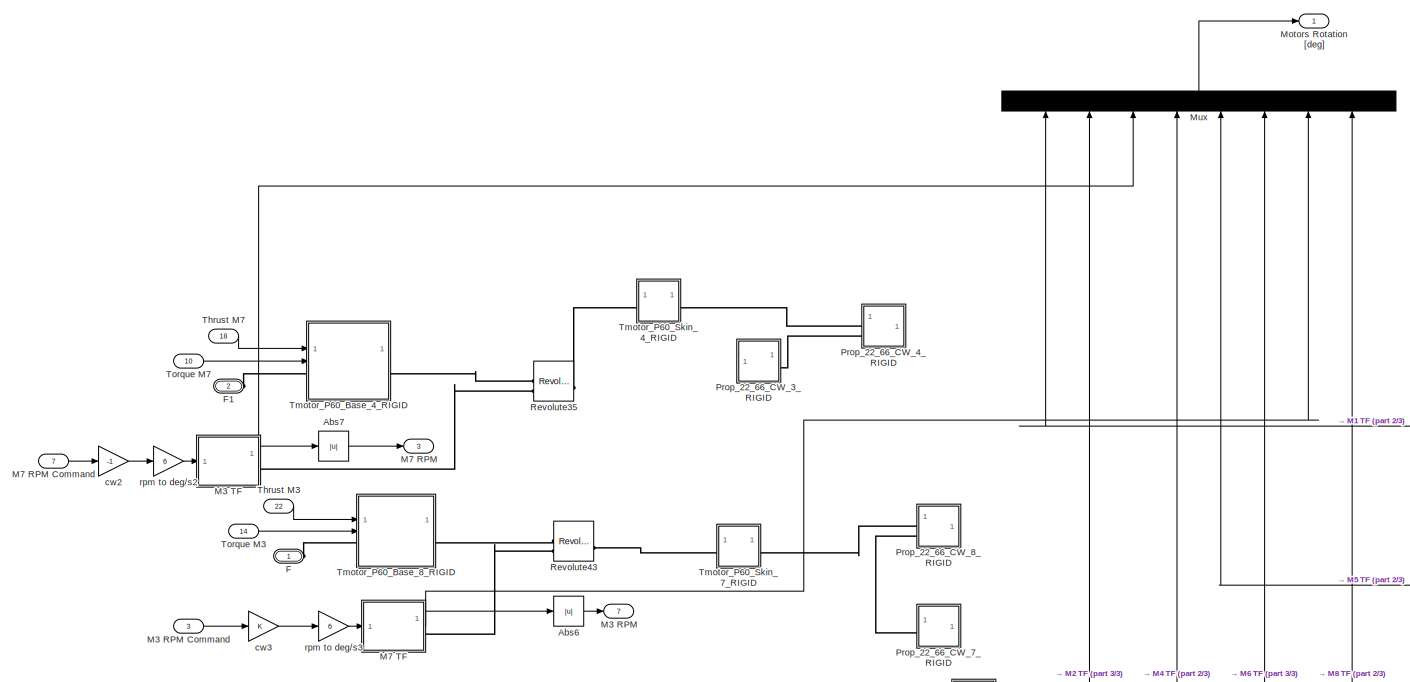
[diagram: UAV/UAV/Motors and Props - part 1/3, top left region]
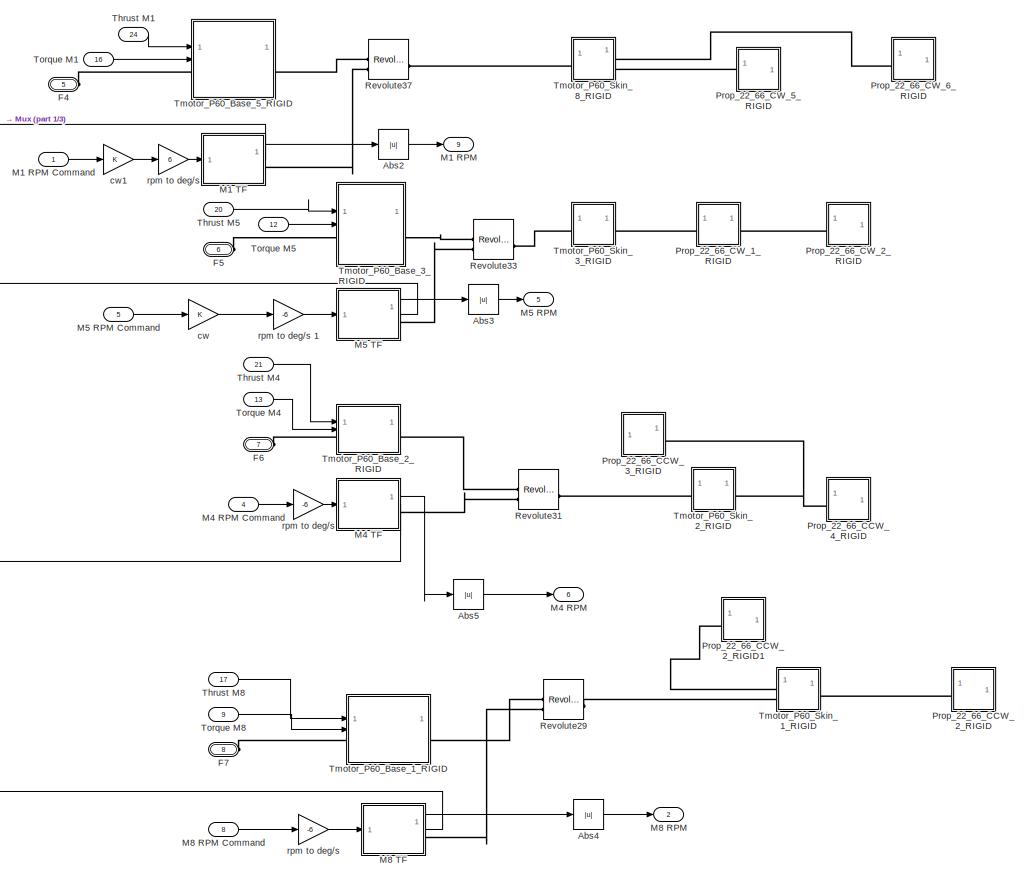
[diagram: UAV/UAV/Motors and Props - part 2/3, middle right region]
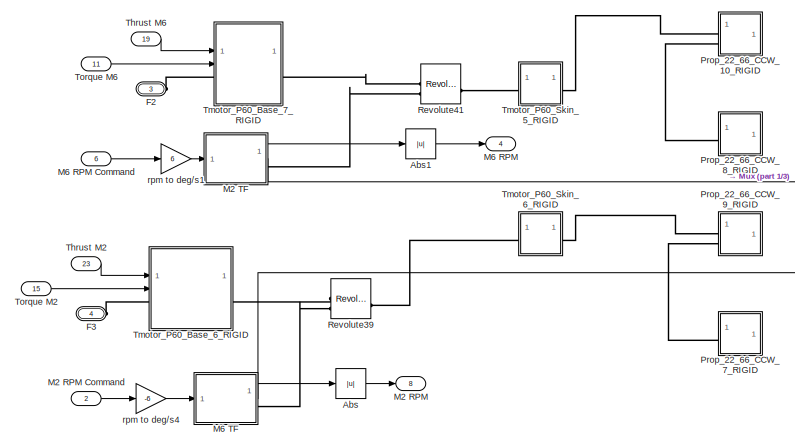
[diagram: UAV/UAV/Motors and Props - part 3/3, bottom left region]
BLOCK [SubSystem] UAV/UAV/Motors and Props
  NameLocation = left
  PortSchema = {"entries":[{"content":{"sides":[{"content":{"connectorIds":["LConn1","LConn2","LConn3","LConn4","LConn5","LConn6","LConn7","LConn8"]},"type":"ConnectorPlacement.EquallySpacedRectSide","uuid":"df44c6ad-f38c-4e0a-a4d8-2c23b112f28a"},{"content":{"connectorIds":["In17","In18","In19","In20","In21","In22","In23","In24"],"side":"RIGHT"},"type":"ConnectorPlacement.EquallySpacedRectSide","uuid":"523caf36-...<+663ch>
BLOCK [Abs] UAV/UAV/Motors and Props/Abs
  SaturateOnIntegerOverflow = off
BLOCK [Abs] UAV/UAV/Motors and Props/Abs1
  SaturateOnIntegerOverflow = off
BLOCK [Abs] UAV/UAV/Motors and Props/Abs2
  SaturateOnIntegerOverflow = off
BLOCK [Abs] UAV/UAV/Motors and Props/Abs3
  SaturateOnIntegerOverflow = off
BLOCK [Abs] UAV/UAV/Motors and Props/Abs4
  SaturateOnIntegerOverflow = off
BLOCK [Abs] UAV/UAV/Motors and Props/Abs5
  SaturateOnIntegerOverflow = off
BLOCK [Abs] UAV/UAV/Motors and Props/Abs6
  SaturateOnIntegerOverflow = off
BLOCK [Abs] UAV/UAV/Motors and Props/Abs7
  SaturateOnIntegerOverflow = off
BLOCK [PMIOPort] UAV/UAV/Motors and Props/F
  Side = Left
BLOCK [PMIOPort] UAV/UAV/Motors and Props/F1
  Port = 2
  Side = Left
BLOCK [PMIOPort] UAV/UAV/Motors and Props/F2
  Port = 3
  Side = Left
BLOCK [PMIOPort] UAV/UAV/Motors and Props/F3
  Port = 4
  Side = Left
BLOCK [PMIOPort] UAV/UAV/Motors and Props/F4
  Port = 5
  Side = Left
BLOCK [PMIOPort] UAV/UAV/Motors and Props/F5
  Port = 6
  Side = Left
BLOCK [PMIOPort] UAV/UAV/Motors and Props/F6
  Port = 7
  Side = Left
BLOCK [PMIOPort] UAV/UAV/Motors and Props/F7
  Port = 8
  Side = Left
BLOCK [Outport] UAV/UAV/Motors and Props/M1 RPM
  Port = 9
BLOCK [Inport] UAV/UAV/Motors and Props/M1 RPM Command
BLOCK [SubSystem] UAV/UAV/Motors and Props/M1 TF
BLOCK [DiscreteIntegrator] UAV/UAV/Motors and Props/M1 TF/Discrete-Time Integrator
  ICPrevOutput = DiscIntNeverNeededParam
  ICPrevScaledInput = DiscIntNeverNeededParam
  InitialConditionSetting = Auto
  SampleTime = -1
BLOCK [DiscreteIntegrator] UAV/UAV/Motors and Props/M1 TF/Discrete-Time Integrator1
  ICPrevOutput = DiscIntNeverNeededParam
  ICPrevScaledInput = DiscIntNeverNeededParam
  InitialConditionSetting = Auto
  SampleTime = -1
BLOCK [DiscreteIntegrator] UAV/UAV/Motors and Props/M1 TF/Discrete-Time Integrator2
  ICPrevOutput = DiscIntNeverNeededParam
  ICPrevScaledInput = DiscIntNeverNeededParam
  InitialConditionSetting = Auto
  SampleTime = -1
BLOCK [Gain] UAV/UAV/Motors and Props/M1 TF/Gain
  Gain = -1/6
BLOCK [Gain] UAV/UAV/Motors and Props/M1 TF/Gain2
  Gain = 1/Tm
BLOCK [Inport] UAV/UAV/Motors and Props/M1 TF/In1
BLOCK [Outport] UAV/UAV/Motors and Props/M1 TF/M1 RPM
BLOCK [PMIOPort] UAV/UAV/Motors and Props/M1 TF/M1 deg
  Side = Right
BLOCK [Outport] UAV/UAV/Motors and Props/M1 TF/M1 rot [deg]
  Port = 2
BLOCK [Reference] UAV/UAV/Motors and Props/M1 TF/Simulink-PS Converter  REF=nesl_utility/Simulink-PS
Converter
  SourceBlock = nesl_utility/Simulink-PS\nConverter
  SourceType = Simulink-PS\nConverter
BLOCK [Sum] UAV/UAV/Motors and Props/M1 TF/Sum
  Inputs = |+-
BLOCK [Outport] UAV/UAV/Motors and Props/M2 RPM
  Port = 8
BLOCK [Inport] UAV/UAV/Motors and Props/M2 RPM Command
  Port = 2
BLOCK [SubSystem] UAV/UAV/Motors and Props/M2 TF
BLOCK [DiscreteIntegrator] UAV/UAV/Motors and Props/M2 TF/Discrete-Time Integrator
  ICPrevOutput = DiscIntNeverNeededParam
  ICPrevScaledInput = DiscIntNeverNeededParam
  InitialConditionSetting = Auto
  SampleTime = -1
BLOCK [DiscreteIntegrator] UAV/UAV/Motors and Props/M2 TF/Discrete-Time Integrator1
  ICPrevOutput = DiscIntNeverNeededParam
  ICPrevScaledInput = DiscIntNeverNeededParam
  InitialConditionSetting = Auto
  SampleTime = -1
BLOCK [DiscreteIntegrator] UAV/UAV/Motors and Props/M2 TF/Discrete-Time Integrator2
  ICPrevOutput = DiscIntNeverNeededParam
  ICPrevScaledInput = DiscIntNeverNeededParam
  InitialConditionSetting = Auto
  SampleTime = -1
BLOCK [Gain] UAV/UAV/Motors and Props/M2 TF/Gain
  Gain = -1/6
BLOCK [Gain] UAV/UAV/Motors and Props/M2 TF/Gain2
  Gain = 1/Tm
BLOCK [Inport] UAV/UAV/Motors and Props/M2 TF/In1
BLOCK [Outport] UAV/UAV/Motors and Props/M2 TF/M2 RPM
BLOCK [PMIOPort] UAV/UAV/Motors and Props/M2 TF/M2 deg
  Side = Right
BLOCK [Outport] UAV/UAV/Motors and Props/M2 TF/M2 rot [deg]
  Port = 2
BLOCK [Reference] UAV/UAV/Motors and Props/M2 TF/Simulink-PS Converter  REF=nesl_utility/Simulink-PS
Converter
  SourceBlock = nesl_utility/Simulink-PS\nConverter
  SourceType = Simulink-PS\nConverter
BLOCK [Sum] UAV/UAV/Motors and Props/M2 TF/Sum
  Inputs = |+-
BLOCK [Outport] UAV/UAV/Motors and Props/M3 RPM
  Port = 7
BLOCK [Inport] UAV/UAV/Motors and Props/M3 RPM Command
  Port = 3
BLOCK [SubSystem] UAV/UAV/Motors and Props/M3 TF
BLOCK [DiscreteIntegrator] UAV/UAV/Motors and Props/M3 TF/Discrete-Time Integrator
  ICPrevOutput = DiscIntNeverNeededParam
  ICPrevScaledInput = DiscIntNeverNeededParam
  InitialConditionSetting = Auto
  SampleTime = -1
BLOCK [DiscreteIntegrator] UAV/UAV/Motors and Props/M3 TF/Discrete-Time Integrator1
  ICPrevOutput = DiscIntNeverNeededParam
  ICPrevScaledInput = DiscIntNeverNeededParam
  InitialConditionSetting = Auto
  SampleTime = -1
BLOCK [DiscreteIntegrator] UAV/UAV/Motors and Props/M3 TF/Discrete-Time Integrator2
  ICPrevOutput = DiscIntNeverNeededParam
  ICPrevScaledInput = DiscIntNeverNeededParam
  InitialConditionSetting = Auto
  SampleTime = -1
BLOCK [Gain] UAV/UAV/Motors and Props/M3 TF/Gain
  Gain = -1/6
BLOCK [Gain] UAV/UAV/Motors and Props/M3 TF/Gain2
  Gain = 1/Tm
BLOCK [Inport] UAV/UAV/Motors and Props/M3 TF/In1
BLOCK [Outport] UAV/UAV/Motors and Props/M3 TF/M3 RPM
BLOCK [PMIOPort] UAV/UAV/Motors and Props/M3 TF/M3 deg
  Side = Right
BLOCK [Outport] UAV/UAV/Motors and Props/M3 TF/M3 rot [deg]
  Port = 2
BLOCK [Reference] UAV/UAV/Motors and Props/M3 TF/Simulink-PS Converter  REF=nesl_utility/Simulink-PS
Converter
  SourceBlock = nesl_utility/Simulink-PS\nConverter
  SourceType = Simulink-PS\nConverter
BLOCK [Sum] UAV/UAV/Motors and Props/M3 TF/Sum
  Inputs = |+-
BLOCK [Outport] UAV/UAV/Motors and Props/M4 RPM
  Port = 6
BLOCK [Inport] UAV/UAV/Motors and Props/M4 RPM Command
  Port = 4
BLOCK [SubSystem] UAV/UAV/Motors and Props/M4 TF
BLOCK [DiscreteIntegrator] UAV/UAV/Motors and Props/M4 TF/Discrete-Time Integrator
  ICPrevOutput = DiscIntNeverNeededParam
  ICPrevScaledInput = DiscIntNeverNeededParam
  InitialConditionSetting = Auto
  SampleTime = -1
BLOCK [DiscreteIntegrator] UAV/UAV/Motors and Props/M4 TF/Discrete-Time Integrator1
  ICPrevOutput = DiscIntNeverNeededParam
  ICPrevScaledInput = DiscIntNeverNeededParam
  InitialConditionSetting = Auto
  SampleTime = -1
BLOCK [DiscreteIntegrator] UAV/UAV/Motors and Props/M4 TF/Discrete-Time Integrator2
  ICPrevOutput = DiscIntNeverNeededParam
  ICPrevScaledInput = DiscIntNeverNeededParam
  InitialConditionSetting = Auto
  SampleTime = -1
BLOCK [Gain] UAV/UAV/Motors and Props/M4 TF/Gain
  Gain = -1/6
BLOCK [Gain] UAV/UAV/Motors and Props/M4 TF/Gain2
  Gain = 1/Tm
BLOCK [Inport] UAV/UAV/Motors and Props/M4 TF/In1
BLOCK [Outport] UAV/UAV/Motors and Props/M4 TF/M4 RPM
BLOCK [PMIOPort] UAV/UAV/Motors and Props/M4 TF/M4 deg
  Side = Right
BLOCK [Outport] UAV/UAV/Motors and Props/M4 TF/M4 rot [deg]
  Port = 2
BLOCK [Reference] UAV/UAV/Motors and Props/M4 TF/Simulink-PS Converter  REF=nesl_utility/Simulink-PS
Converter
  SourceBlock = nesl_utility/Simulink-PS\nConverter
  SourceType = Simulink-PS\nConverter
BLOCK [Sum] UAV/UAV/Motors and Props/M4 TF/Sum
  Inputs = |+-
BLOCK [Outport] UAV/UAV/Motors and Props/M5 RPM
  Port = 5
BLOCK [Inport] UAV/UAV/Motors and Props/M5 RPM Command
  Port = 5
BLOCK [SubSystem] UAV/UAV/Motors and Props/M5 TF
BLOCK [DiscreteIntegrator] UAV/UAV/Motors and Props/M5 TF/Discrete-Time Integrator
  ICPrevOutput = DiscIntNeverNeededParam
  ICPrevScaledInput = DiscIntNeverNeededParam
  InitialConditionSetting = Auto
  SampleTime = -1
BLOCK [DiscreteIntegrator] UAV/UAV/Motors and Props/M5 TF/Discrete-Time Integrator1
  ICPrevOutput = DiscIntNeverNeededParam
  ICPrevScaledInput = DiscIntNeverNeededParam
  InitialConditionSetting = Auto
  SampleTime = -1
BLOCK [DiscreteIntegrator] UAV/UAV/Motors and Props/M5 TF/Discrete-Time Integrator2
  ICPrevOutput = DiscIntNeverNeededParam
  ICPrevScaledInput = DiscIntNeverNeededParam
  InitialConditionSetting = Auto
  SampleTime = -1
BLOCK [Gain] UAV/UAV/Motors and Props/M5 TF/Gain
  Gain = 1/6
BLOCK [Gain] UAV/UAV/Motors and Props/M5 TF/Gain2
  Gain = 1/Tm
BLOCK [Inport] UAV/UAV/Motors and Props/M5 TF/In1
BLOCK [Outport] UAV/UAV/Motors and Props/M5 TF/M5 RPM
BLOCK [PMIOPort] UAV/UAV/Motors and Props/M5 TF/M5 deg
  Side = Right
BLOCK [Outport] UAV/UAV/Motors and Props/M5 TF/M5 rot [de]
  Port = 2
BLOCK [Reference] UAV/UAV/Motors and Props/M5 TF/Simulink-PS Converter  REF=nesl_utility/Simulink-PS
Converter
  SourceBlock = nesl_utility/Simulink-PS\nConverter
  SourceType = Simulink-PS\nConverter
BLOCK [Sum] UAV/UAV/Motors and Props/M5 TF/Sum
  Inputs = |+-
BLOCK [Outport] UAV/UAV/Motors and Props/M6 RPM
  Port = 4
BLOCK [Inport] UAV/UAV/Motors and Props/M6 RPM Command
  Port = 6
BLOCK [SubSystem] UAV/UAV/Motors and Props/M6 TF
BLOCK [DiscreteIntegrator] UAV/UAV/Motors and Props/M6 TF/Discrete-Time Integrator
  ICPrevOutput = DiscIntNeverNeededParam
  ICPrevScaledInput = DiscIntNeverNeededParam
  InitialConditionSetting = Auto
  SampleTime = -1
BLOCK [DiscreteIntegrator] UAV/UAV/Motors and Props/M6 TF/Discrete-Time Integrator1
  ICPrevOutput = DiscIntNeverNeededParam
  ICPrevScaledInput = DiscIntNeverNeededParam
  InitialConditionSetting = Auto
  SampleTime = -1
BLOCK [DiscreteIntegrator] UAV/UAV/Motors and Props/M6 TF/Discrete-Time Integrator2
  ICPrevOutput = DiscIntNeverNeededParam
  ICPrevScaledInput = DiscIntNeverNeededParam
  InitialConditionSetting = Auto
  SampleTime = -1
BLOCK [Gain] UAV/UAV/Motors and Props/M6 TF/Gain
  Gain = 1/6
BLOCK [Gain] UAV/UAV/Motors and Props/M6 TF/Gain2
  Gain = 1/Tm
BLOCK [Inport] UAV/UAV/Motors and Props/M6 TF/In1
BLOCK [Outport] UAV/UAV/Motors and Props/M6 TF/M6 RPM
BLOCK [PMIOPort] UAV/UAV/Motors and Props/M6 TF/M6 deg
  Side = Right
BLOCK [Outport] UAV/UAV/Motors and Props/M6 TF/M6 rot [deg]
  Port = 2
BLOCK [Reference] UAV/UAV/Motors and Props/M6 TF/Simulink-PS Converter  REF=nesl_utility/Simulink-PS
Converter
  SourceBlock = nesl_utility/Simulink-PS\nConverter
  SourceType = Simulink-PS\nConverter
BLOCK [Sum] UAV/UAV/Motors and Props/M6 TF/Sum
  Inputs = |+-
BLOCK [Outport] UAV/UAV/Motors and Props/M7 RPM
  Port = 3
BLOCK [Inport] UAV/UAV/Motors and Props/M7 RPM Command
  Port = 7
BLOCK [SubSystem] UAV/UAV/Motors and Props/M7 TF
BLOCK [DiscreteIntegrator] UAV/UAV/Motors and Props/M7 TF/Discrete-Time Integrator
  ICPrevOutput = DiscIntNeverNeededParam
  ICPrevScaledInput = DiscIntNeverNeededParam
  InitialConditionSetting = Auto
  SampleTime = -1
BLOCK [DiscreteIntegrator] UAV/UAV/Motors and Props/M7 TF/Discrete-Time Integrator1
  ICPrevOutput = DiscIntNeverNeededParam
  ICPrevScaledInput = DiscIntNeverNeededParam
  InitialConditionSetting = Auto
  SampleTime = -1
BLOCK [DiscreteIntegrator] UAV/UAV/Motors and Props/M7 TF/Discrete-Time Integrator2
  ICPrevOutput = DiscIntNeverNeededParam
  ICPrevScaledInput = DiscIntNeverNeededParam
  InitialConditionSetting = Auto
  SampleTime = -1
BLOCK [Gain] UAV/UAV/Motors and Props/M7 TF/Gain
  Gain = -1/6
BLOCK [Gain] UAV/UAV/Motors and Props/M7 TF/Gain2
  Gain = 1/Tm
BLOCK [Inport] UAV/UAV/Motors and Props/M7 TF/In1
BLOCK [Outport] UAV/UAV/Motors and Props/M7 TF/M7 RPM
BLOCK [PMIOPort] UAV/UAV/Motors and Props/M7 TF/M7 deg
  Side = Right
BLOCK [Outport] UAV/UAV/Motors and Props/M7 TF/M7 rot [deg]
  Port = 2
BLOCK [Reference] UAV/UAV/Motors and Props/M7 TF/Simulink-PS Converter  REF=nesl_utility/Simulink-PS
Converter
  SourceBlock = nesl_utility/Simulink-PS\nConverter
  SourceType = Simulink-PS\nConverter
BLOCK [Sum] UAV/UAV/Motors and Props/M7 TF/Sum
  Inputs = |+-
BLOCK [Outport] UAV/UAV/Motors and Props/M8 RPM
  Port = 2
BLOCK [Inport] UAV/UAV/Motors and Props/M8 RPM Command
  Port = 8
BLOCK [SubSystem] UAV/UAV/Motors and Props/M8 TF
BLOCK [DiscreteIntegrator] UAV/UAV/Motors and Props/M8 TF/Discrete-Time Integrator
  ICPrevOutput = DiscIntNeverNeededParam
  ICPrevScaledInput = DiscIntNeverNeededParam
  InitialConditionSetting = Auto
  SampleTime = -1
BLOCK [DiscreteIntegrator] UAV/UAV/Motors and Props/M8 TF/Discrete-Time Integrator1
  ICPrevOutput = DiscIntNeverNeededParam
  ICPrevScaledInput = DiscIntNeverNeededParam
  InitialConditionSetting = Auto
  SampleTime = -1
BLOCK [DiscreteIntegrator] UAV/UAV/Motors and Props/M8 TF/Discrete-Time Integrator2
  ICPrevOutput = DiscIntNeverNeededParam
  ICPrevScaledInput = DiscIntNeverNeededParam
  InitialConditionSetting = Auto
  SampleTime = -1
BLOCK [Gain] UAV/UAV/Motors and Props/M8 TF/Gain
  Gain = -1/6
BLOCK [Gain] UAV/UAV/Motors and Props/M8 TF/Gain2
  Gain = 1/Tm
BLOCK [Inport] UAV/UAV/Motors and Props/M8 TF/In1
BLOCK [Outport] UAV/UAV/Motors and Props/M8 TF/M8 RPM
BLOCK [PMIOPort] UAV/UAV/Motors and Props/M8 TF/M8 deg
  Side = Right
BLOCK [Outport] UAV/UAV/Motors and Props/M8 TF/M8 rot [deg]
  Port = 2
BLOCK [Reference] UAV/UAV/Motors and Props/M8 TF/Simulink-PS Converter  REF=nesl_utility/Simulink-PS
Converter
  SourceBlock = nesl_utility/Simulink-PS\nConverter
  SourceType = Simulink-PS\nConverter
BLOCK [Sum] UAV/UAV/Motors and Props/M8 TF/Sum
  Inputs = |+-
BLOCK [Outport] UAV/UAV/Motors and Props/Motors Rotation [deg]
BLOCK [Mux] UAV/UAV/Motors and Props/Mux
  DisplayOption = bar
  Inputs = 8
  NameLocation = right
BLOCK [SubSystem] UAV/UAV/Motors and Props/Prop_22_66_CCW_10_RIGID
BLOCK [PMIOPort] UAV/UAV/Motors and Props/Prop_22_66_CCW_10_RIGID/F
  Port = 2
  Side = Left
BLOCK [PMIOPort] UAV/UAV/Motors and Props/Prop_22_66_CCW_10_RIGID/F1
  Side = Left
BLOCK [Reference] UAV/UAV/Motors and Props/Prop_22_66_CCW_10_RIGID/ReferenceFrame  REF=sm_lib/Frames and
Transforms/Reference
Frame
  SourceBlock = sm_lib/Frames and\nTransforms/Reference\nFrame
  SourceType = Reference\nFrame
BLOCK [Reference] UAV/UAV/Motors and Props/Prop_22_66_CCW_10_RIGID/Solid  REF=sm_lib/Body Elements/File Solid
  SourceBlock = sm_lib/Body Elements/File Solid
  SourceType = File Solid
BLOCK [Reference] UAV/UAV/Motors and Props/Prop_22_66_CCW_10_RIGID/Transform  REF=sm_lib/Frames and
Transforms/Rigid
Transform
  SourceBlock = sm_lib/Frames and\nTransforms/Rigid\nTransform
  SourceType = Rigid\nTransform
BLOCK [Reference] UAV/UAV/Motors and Props/Prop_22_66_CCW_10_RIGID/Transform1  REF=sm_lib/Frames and
Transforms/Rigid
Transform
  SourceBlock = sm_lib/Frames and\nTransforms/Rigid\nTransform
  SourceType = Rigid\nTransform
BLOCK [SubSystem] UAV/UAV/Motors and Props/Prop_22_66_CCW_2_RIGID
BLOCK [PMIOPort] UAV/UAV/Motors and Props/Prop_22_66_CCW_2_RIGID/F1
  Side = Left
BLOCK [Reference] UAV/UAV/Motors and Props/Prop_22_66_CCW_2_RIGID/ReferenceFrame  REF=sm_lib/Frames and
Transforms/Reference
Frame
  SourceBlock = sm_lib/Frames and\nTransforms/Reference\nFrame
  SourceType = Reference\nFrame
BLOCK [Reference] UAV/UAV/Motors and Props/Prop_22_66_CCW_2_RIGID/Solid  REF=sm_lib/Body Elements/File Solid
  SourceBlock = sm_lib/Body Elements/File Solid
  SourceType = File Solid
BLOCK [Reference] UAV/UAV/Motors and Props/Prop_22_66_CCW_2_RIGID/Transform1  REF=sm_lib/Frames and
Transforms/Rigid
Transform
  SourceBlock = sm_lib/Frames and\nTransforms/Rigid\nTransform
  SourceType = Rigid\nTransform
BLOCK [SubSystem] UAV/UAV/Motors and Props/Prop_22_66_CCW_2_RIGID1
BLOCK [PMIOPort] UAV/UAV/Motors and Props/Prop_22_66_CCW_2_RIGID1/F1
  Side = Left
BLOCK [Reference] UAV/UAV/Motors and Props/Prop_22_66_CCW_2_RIGID1/ReferenceFrame  REF=sm_lib/Frames and
Transforms/Reference
Frame
  SourceBlock = sm_lib/Frames and\nTransforms/Reference\nFrame
  SourceType = Reference\nFrame
BLOCK [Reference] UAV/UAV/Motors and Props/Prop_22_66_CCW_2_RIGID1/Solid  REF=sm_lib/Body Elements/File Solid
  SourceBlock = sm_lib/Body Elements/File Solid
  SourceType = File Solid
BLOCK [Reference] UAV/UAV/Motors and Props/Prop_22_66_CCW_2_RIGID1/Transform1  REF=sm_lib/Frames and
Transforms/Rigid
Transform
  SourceBlock = sm_lib/Frames and\nTransforms/Rigid\nTransform
  SourceType = Rigid\nTransform
BLOCK [SubSystem] UAV/UAV/Motors and Props/Prop_22_66_CCW_3_RIGID
BLOCK [PMIOPort] UAV/UAV/Motors and Props/Prop_22_66_CCW_3_RIGID/F1
  Side = Right
BLOCK [Reference] UAV/UAV/Motors and Props/Prop_22_66_CCW_3_RIGID/ReferenceFrame  REF=sm_lib/Frames and
Transforms/Reference
Frame
  SourceBlock = sm_lib/Frames and\nTransforms/Reference\nFrame
  SourceType = Reference\nFrame
BLOCK [Reference] UAV/UAV/Motors and Props/Prop_22_66_CCW_3_RIGID/Solid  REF=sm_lib/Body Elements/File Solid
  SourceBlock = sm_lib/Body Elements/File Solid
  SourceType = File Solid
BLOCK [Reference] UAV/UAV/Motors and Props/Prop_22_66_CCW_3_RIGID/Transform1  REF=sm_lib/Frames and
Transforms/Rigid
Transform
  SourceBlock = sm_lib/Frames and\nTransforms/Rigid\nTransform
  SourceType = Rigid\nTransform
BLOCK [SubSystem] UAV/UAV/Motors and Props/Prop_22_66_CCW_4_RIGID
BLOCK [PMIOPort] UAV/UAV/Motors and Props/Prop_22_66_CCW_4_RIGID/F1
  Side = Left
BLOCK [Reference] UAV/UAV/Motors and Props/Prop_22_66_CCW_4_RIGID/ReferenceFrame  REF=sm_lib/Frames and
Transforms/Reference
Frame
  SourceBlock = sm_lib/Frames and\nTransforms/Reference\nFrame
  SourceType = Reference\nFrame
BLOCK [Reference] UAV/UAV/Motors and Props/Prop_22_66_CCW_4_RIGID/Solid  REF=sm_lib/Body Elements/File Solid
  SourceBlock = sm_lib/Body Elements/File Solid
  SourceType = File Solid
BLOCK [Reference] UAV/UAV/Motors and Props/Prop_22_66_CCW_4_RIGID/Transform1  REF=sm_lib/Frames and
Transforms/Rigid
Transform
  SourceBlock = sm_lib/Frames and\nTransforms/Rigid\nTransform
  SourceType = Rigid\nTransform
BLOCK [SubSystem] UAV/UAV/Motors and Props/Prop_22_66_CCW_7_RIGID
BLOCK [PMIOPort] UAV/UAV/Motors and Props/Prop_22_66_CCW_7_RIGID/F
  Side = Left
BLOCK [Reference] UAV/UAV/Motors and Props/Prop_22_66_CCW_7_RIGID/ReferenceFrame  REF=sm_lib/Frames and
Transforms/Reference
Frame
  SourceBlock = sm_lib/Frames and\nTransforms/Reference\nFrame
  SourceType = Reference\nFrame
BLOCK [Reference] UAV/UAV/Motors and Props/Prop_22_66_CCW_7_RIGID/Solid  REF=sm_lib/Body Elements/File Solid
  SourceBlock = sm_lib/Body Elements/File Solid
  SourceType = File Solid
BLOCK [Reference] UAV/UAV/Motors and Props/Prop_22_66_CCW_7_RIGID/Transform  REF=sm_lib/Frames and
Transforms/Rigid
Transform
  SourceBlock = sm_lib/Frames and\nTransforms/Rigid\nTransform
  SourceType = Rigid\nTransform
BLOCK [SubSystem] UAV/UAV/Motors and Props/Prop_22_66_CCW_8_RIGID
BLOCK [PMIOPort] UAV/UAV/Motors and Props/Prop_22_66_CCW_8_RIGID/F
  Side = Left
BLOCK [Reference] UAV/UAV/Motors and Props/Prop_22_66_CCW_8_RIGID/ReferenceFrame  REF=sm_lib/Frames and
Transforms/Reference
Frame
  SourceBlock = sm_lib/Frames and\nTransforms/Reference\nFrame
  SourceType = Reference\nFrame
BLOCK [Reference] UAV/UAV/Motors and Props/Prop_22_66_CCW_8_RIGID/Solid  REF=sm_lib/Body Elements/File Solid
  SourceBlock = sm_lib/Body Elements/File Solid
  SourceType = File Solid
BLOCK [Reference] UAV/UAV/Motors and Props/Prop_22_66_CCW_8_RIGID/Transform  REF=sm_lib/Frames and
Transforms/Rigid
Transform
  SourceBlock = sm_lib/Frames and\nTransforms/Rigid\nTransform
  SourceType = Rigid\nTransform
BLOCK [SubSystem] UAV/UAV/Motors and Props/Prop_22_66_CCW_9_RIGID
BLOCK [PMIOPort] UAV/UAV/Motors and Props/Prop_22_66_CCW_9_RIGID/F
  Port = 2
  Side = Left
BLOCK [PMIOPort] UAV/UAV/Motors and Props/Prop_22_66_CCW_9_RIGID/F1
  Side = Left
BLOCK [Reference] UAV/UAV/Motors and Props/Prop_22_66_CCW_9_RIGID/ReferenceFrame  REF=sm_lib/Frames and
Transforms/Reference
Frame
  SourceBlock = sm_lib/Frames and\nTransforms/Reference\nFrame
  SourceType = Reference\nFrame
BLOCK [Reference] UAV/UAV/Motors and Props/Prop_22_66_CCW_9_RIGID/Solid  REF=sm_lib/Body Elements/File Solid
  SourceBlock = sm_lib/Body Elements/File Solid
  SourceType = File Solid
BLOCK [Reference] UAV/UAV/Motors and Props/Prop_22_66_CCW_9_RIGID/Transform  REF=sm_lib/Frames and
Transforms/Rigid
Transform
  SourceBlock = sm_lib/Frames and\nTransforms/Rigid\nTransform
  SourceType = Rigid\nTransform
BLOCK [Reference] UAV/UAV/Motors and Props/Prop_22_66_CCW_9_RIGID/Transform1  REF=sm_lib/Frames and
Transforms/Rigid
Transform
  SourceBlock = sm_lib/Frames and\nTransforms/Rigid\nTransform
  SourceType = Rigid\nTransform
BLOCK [SubSystem] UAV/UAV/Motors and Props/Prop_22_66_CW_1_RIGID
BLOCK [PMIOPort] UAV/UAV/Motors and Props/Prop_22_66_CW_1_RIGID/F
  Port = 2
  Side = Right
BLOCK [PMIOPort] UAV/UAV/Motors and Props/Prop_22_66_CW_1_RIGID/F1
  Side = Left
BLOCK [Reference] UAV/UAV/Motors and Props/Prop_22_66_CW_1_RIGID/ReferenceFrame  REF=sm_lib/Frames and
Transforms/Reference
Frame
  SourceBlock = sm_lib/Frames and\nTransforms/Reference\nFrame
  SourceType = Reference\nFrame
BLOCK [Reference] UAV/UAV/Motors and Props/Prop_22_66_CW_1_RIGID/Solid  REF=sm_lib/Body Elements/File Solid
  SourceBlock = sm_lib/Body Elements/File Solid
  SourceType = File Solid
BLOCK [Reference] UAV/UAV/Motors and Props/Prop_22_66_CW_1_RIGID/Transform  REF=sm_lib/Frames and
Transforms/Rigid
Transform
  SourceBlock = sm_lib/Frames and\nTransforms/Rigid\nTransform
  SourceType = Rigid\nTransform
BLOCK [Reference] UAV/UAV/Motors and Props/Prop_22_66_CW_1_RIGID/Transform1  REF=sm_lib/Frames and
Transforms/Rigid
Transform
  SourceBlock = sm_lib/Frames and\nTransforms/Rigid\nTransform
  SourceType = Rigid\nTransform
BLOCK [SubSystem] UAV/UAV/Motors and Props/Prop_22_66_CW_2_RIGID
BLOCK [PMIOPort] UAV/UAV/Motors and Props/Prop_22_66_CW_2_RIGID/F
  Side = Left
BLOCK [Reference] UAV/UAV/Motors and Props/Prop_22_66_CW_2_RIGID/ReferenceFrame  REF=sm_lib/Frames and
Transforms/Reference
Frame
  SourceBlock = sm_lib/Frames and\nTransforms/Reference\nFrame
  SourceType = Reference\nFrame
BLOCK [Reference] UAV/UAV/Motors and Props/Prop_22_66_CW_2_RIGID/Solid  REF=sm_lib/Body Elements/File Solid
  SourceBlock = sm_lib/Body Elements/File Solid
  SourceType = File Solid
BLOCK [Reference] UAV/UAV/Motors and Props/Prop_22_66_CW_2_RIGID/Transform  REF=sm_lib/Frames and
Transforms/Rigid
Transform
  SourceBlock = sm_lib/Frames and\nTransforms/Rigid\nTransform
  SourceType = Rigid\nTransform
BLOCK [SubSystem] UAV/UAV/Motors and Props/Prop_22_66_CW_3_RIGID
BLOCK [PMIOPort] UAV/UAV/Motors and Props/Prop_22_66_CW_3_RIGID/F
  Side = Right
BLOCK [Reference] UAV/UAV/Motors and Props/Prop_22_66_CW_3_RIGID/ReferenceFrame  REF=sm_lib/Frames and
Transforms/Reference
Frame
  SourceBlock = sm_lib/Frames and\nTransforms/Reference\nFrame
  SourceType = Reference\nFrame
BLOCK [Reference] UAV/UAV/Motors and Props/Prop_22_66_CW_3_RIGID/Solid  REF=sm_lib/Body Elements/File Solid
  SourceBlock = sm_lib/Body Elements/File Solid
  SourceType = File Solid
BLOCK [Reference] UAV/UAV/Motors and Props/Prop_22_66_CW_3_RIGID/Transform  REF=sm_lib/Frames and
Transforms/Rigid
Transform
  SourceBlock = sm_lib/Frames and\nTransforms/Rigid\nTransform
  SourceType = Rigid\nTransform
BLOCK [SubSystem] UAV/UAV/Motors and Props/Prop_22_66_CW_4_RIGID
BLOCK [PMIOPort] UAV/UAV/Motors and Props/Prop_22_66_CW_4_RIGID/F
  Port = 2
  Side = Left
BLOCK [PMIOPort] UAV/UAV/Motors and Props/Prop_22_66_CW_4_RIGID/F1
  Side = Left
BLOCK [Reference] UAV/UAV/Motors and Props/Prop_22_66_CW_4_RIGID/ReferenceFrame  REF=sm_lib/Frames and
Transforms/Reference
Frame
  SourceBlock = sm_lib/Frames and\nTransforms/Reference\nFrame
  SourceType = Reference\nFrame
BLOCK [Reference] UAV/UAV/Motors and Props/Prop_22_66_CW_4_RIGID/Solid  REF=sm_lib/Body Elements/File Solid
  SourceBlock = sm_lib/Body Elements/File Solid
  SourceType = File Solid
BLOCK [Reference] UAV/UAV/Motors and Props/Prop_22_66_CW_4_RIGID/Transform  REF=sm_lib/Frames and
Transforms/Rigid
Transform
  SourceBlock = sm_lib/Frames and\nTransforms/Rigid\nTransform
  SourceType = Rigid\nTransform
BLOCK [Reference] UAV/UAV/Motors and Props/Prop_22_66_CW_4_RIGID/Transform1  REF=sm_lib/Frames and
Transforms/Rigid
Transform
  SourceBlock = sm_lib/Frames and\nTransforms/Rigid\nTransform
  SourceType = Rigid\nTransform
BLOCK [SubSystem] UAV/UAV/Motors and Props/Prop_22_66_CW_5_RIGID
BLOCK [PMIOPort] UAV/UAV/Motors and Props/Prop_22_66_CW_5_RIGID/F1
  Side = Left
BLOCK [Reference] UAV/UAV/Motors and Props/Prop_22_66_CW_5_RIGID/ReferenceFrame  REF=sm_lib/Frames and
Transforms/Reference
Frame
  SourceBlock = sm_lib/Frames and\nTransforms/Reference\nFrame
  SourceType = Reference\nFrame
BLOCK [Reference] UAV/UAV/Motors and Props/Prop_22_66_CW_5_RIGID/Solid  REF=sm_lib/Body Elements/File Solid
  SourceBlock = sm_lib/Body Elements/File Solid
  SourceType = File Solid
BLOCK [Reference] UAV/UAV/Motors and Props/Prop_22_66_CW_5_RIGID/Transform1  REF=sm_lib/Frames and
Transforms/Rigid
Transform
  SourceBlock = sm_lib/Frames and\nTransforms/Rigid\nTransform
  SourceType = Rigid\nTransform
BLOCK [SubSystem] UAV/UAV/Motors and Props/Prop_22_66_CW_6_RIGID
BLOCK [PMIOPort] UAV/UAV/Motors and Props/Prop_22_66_CW_6_RIGID/F
  Side = Left
BLOCK [Reference] UAV/UAV/Motors and Props/Prop_22_66_CW_6_RIGID/ReferenceFrame  REF=sm_lib/Frames and
Transforms/Reference
Frame
  SourceBlock = sm_lib/Frames and\nTransforms/Reference\nFrame
  SourceType = Reference\nFrame
BLOCK [Reference] UAV/UAV/Motors and Props/Prop_22_66_CW_6_RIGID/Solid  REF=sm_lib/Body Elements/File Solid
  SourceBlock = sm_lib/Body Elements/File Solid
  SourceType = File Solid
BLOCK [Reference] UAV/UAV/Motors and Props/Prop_22_66_CW_6_RIGID/Transform  REF=sm_lib/Frames and
Transforms/Rigid
Transform
  SourceBlock = sm_lib/Frames and\nTransforms/Rigid\nTransform
  SourceType = Rigid\nTransform
BLOCK [SubSystem] UAV/UAV/Motors and Props/Prop_22_66_CW_7_RIGID
BLOCK [PMIOPort] UAV/UAV/Motors and Props/Prop_22_66_CW_7_RIGID/F
  Side = Left
BLOCK [Reference] UAV/UAV/Motors and Props/Prop_22_66_CW_7_RIGID/ReferenceFrame  REF=sm_lib/Frames and
Transforms/Reference
Frame
  SourceBlock = sm_lib/Frames and\nTransforms/Reference\nFrame
  SourceType = Reference\nFrame
BLOCK [Reference] UAV/UAV/Motors and Props/Prop_22_66_CW_7_RIGID/Solid  REF=sm_lib/Body Elements/File Solid
  SourceBlock = sm_lib/Body Elements/File Solid
  SourceType = File Solid
BLOCK [Reference] UAV/UAV/Motors and Props/Prop_22_66_CW_7_RIGID/Transform  REF=sm_lib/Frames and
Transforms/Rigid
Transform
  SourceBlock = sm_lib/Frames and\nTransforms/Rigid\nTransform
  SourceType = Rigid\nTransform
BLOCK [SubSystem] UAV/UAV/Motors and Props/Prop_22_66_CW_8_RIGID
BLOCK [PMIOPort] UAV/UAV/Motors and Props/Prop_22_66_CW_8_RIGID/F
  Port = 2
  Side = Left
BLOCK [PMIOPort] UAV/UAV/Motors and Props/Prop_22_66_CW_8_RIGID/F1
  Side = Left
BLOCK [Reference] UAV/UAV/Motors and Props/Prop_22_66_CW_8_RIGID/ReferenceFrame  REF=sm_lib/Frames and
Transforms/Reference
Frame
  SourceBlock = sm_lib/Frames and\nTransforms/Reference\nFrame
  SourceType = Reference\nFrame
BLOCK [Reference] UAV/UAV/Motors and Props/Prop_22_66_CW_8_RIGID/Solid  REF=sm_lib/Body Elements/File Solid
  SourceBlock = sm_lib/Body Elements/File Solid
  SourceType = File Solid
BLOCK [Reference] UAV/UAV/Motors and Props/Prop_22_66_CW_8_RIGID/Transform  REF=sm_lib/Frames and
Transforms/Rigid
Transform
  SourceBlock = sm_lib/Frames and\nTransforms/Rigid\nTransform
  SourceType = Rigid\nTransform
BLOCK [Reference] UAV/UAV/Motors and Props/Prop_22_66_CW_8_RIGID/Transform1  REF=sm_lib/Frames and
Transforms/Rigid
Transform
  SourceBlock = sm_lib/Frames and\nTransforms/Rigid\nTransform
  SourceType = Rigid\nTransform
BLOCK [Reference] UAV/UAV/Motors and Props/Revolute29  REF=sm_lib/Joints/Revolute Joint
  SourceBlock = sm_lib/Joints/Revolute Joint
  SourceType = Revolute Joint
BLOCK [Reference] UAV/UAV/Motors and Props/Revolute31  REF=sm_lib/Joints/Revolute Joint
  SourceBlock = sm_lib/Joints/Revolute Joint
  SourceType = Revolute Joint
BLOCK [Reference] UAV/UAV/Motors and Props/Revolute33  REF=sm_lib/Joints/Revolute Joint
  SourceBlock = sm_lib/Joints/Revolute Joint
  SourceType = Revolute Joint
BLOCK [Reference] UAV/UAV/Motors and Props/Revolute35  REF=sm_lib/Joints/Revolute Joint
  SourceBlock = sm_lib/Joints/Revolute Joint
  SourceType = Revolute Joint
BLOCK [Reference] UAV/UAV/Motors and Props/Revolute37  REF=sm_lib/Joints/Revolute Joint
  SourceBlock = sm_lib/Joints/Revolute Joint
  SourceType = Revolute Joint
BLOCK [Reference] UAV/UAV/Motors and Props/Revolute39  REF=sm_lib/Joints/Revolute Joint
  SourceBlock = sm_lib/Joints/Revolute Joint
  SourceType = Revolute Joint
BLOCK [Reference] UAV/UAV/Motors and Props/Revolute41  REF=sm_lib/Joints/Revolute Joint
  SourceBlock = sm_lib/Joints/Revolute Joint
  SourceType = Revolute Joint
BLOCK [Reference] UAV/UAV/Motors and Props/Revolute43  REF=sm_lib/Joints/Revolute Joint
  SourceBlock = sm_lib/Joints/Revolute Joint
  SourceType = Revolute Joint
BLOCK [Inport] UAV/UAV/Motors and Props/Thrust M1
  Port = 24
BLOCK [Inport] UAV/UAV/Motors and Props/Thrust M2
  Port = 23
BLOCK [Inport] UAV/UAV/Motors and Props/Thrust M3
  Port = 22
BLOCK [Inport] UAV/UAV/Motors and Props/Thrust M4
  Port = 21
BLOCK [Inport] UAV/UAV/Motors and Props/Thrust M5
  Port = 20
BLOCK [Inport] UAV/UAV/Motors and Props/Thrust M6
  Port = 19
BLOCK [Inport] UAV/UAV/Motors and Props/Thrust M7
  Port = 18
BLOCK [Inport] UAV/UAV/Motors and Props/Thrust M8
  Port = 17
BLOCK [SubSystem] UAV/UAV/Motors and Props/Tmotor_P60_Base_1_RIGID
BLOCK [Reference] UAV/UAV/Motors and Props/Tmotor_P60_Base_1_RIGID/External Force and Torque  REF=sm_lib/Forces and
Torques/External Force
and Torque
  SourceBlock = sm_lib/Forces and\nTorques/External Force\nand Torque
  SourceType = External Force\nand Torque
BLOCK [PMIOPort] UAV/UAV/Motors and Props/Tmotor_P60_Base_1_RIGID/F
  Side = Left
BLOCK [PMIOPort] UAV/UAV/Motors and Props/Tmotor_P60_Base_1_RIGID/F1
  Port = 2
  Side = Right
BLOCK [Gain] UAV/UAV/Motors and Props/Tmotor_P60_Base_1_RIGID/Gain
  Gain = -1
BLOCK [Gain] UAV/UAV/Motors and Props/Tmotor_P60_Base_1_RIGID/Gain1
BLOCK [Reference] UAV/UAV/Motors and Props/Tmotor_P60_Base_1_RIGID/ReferenceFrame  REF=sm_lib/Frames and
Transforms/Reference
Frame
  SourceBlock = sm_lib/Frames and\nTransforms/Reference\nFrame
  SourceType = Reference\nFrame
BLOCK [Reference] UAV/UAV/Motors and Props/Tmotor_P60_Base_1_RIGID/Simulink-PS Converter  REF=nesl_utility/Simulink-PS
Converter
  SourceBlock = nesl_utility/Simulink-PS\nConverter
  SourceType = Simulink-PS\nConverter
BLOCK [Reference] UAV/UAV/Motors and Props/Tmotor_P60_Base_1_RIGID/Simulink-PS Converter1  REF=nesl_utility/Simulink-PS
Converter
  SourceBlock = nesl_utility/Simulink-PS\nConverter
  SourceType = Simulink-PS\nConverter
BLOCK [Reference] UAV/UAV/Motors and Props/Tmotor_P60_Base_1_RIGID/Solid  REF=sm_lib/Body Elements/File Solid
  SourceBlock = sm_lib/Body Elements/File Solid
  SourceType = File Solid
BLOCK [Inport] UAV/UAV/Motors and Props/Tmotor_P60_Base_1_RIGID/Thrust M8
BLOCK [Inport] UAV/UAV/Motors and Props/Tmotor_P60_Base_1_RIGID/Torque M8
  Port = 2
BLOCK [Reference] UAV/UAV/Motors and Props/Tmotor_P60_Base_1_RIGID/Transform  REF=sm_lib/Frames and
Transforms/Rigid
Transform
  SourceBlock = sm_lib/Frames and\nTransforms/Rigid\nTransform
  SourceType = Rigid\nTransform
BLOCK [Reference] UAV/UAV/Motors and Props/Tmotor_P60_Base_1_RIGID/Transform1  REF=sm_lib/Frames and
Transforms/Rigid
Transform
  SourceBlock = sm_lib/Frames and\nTransforms/Rigid\nTransform
  SourceType = Rigid\nTransform
BLOCK [SubSystem] UAV/UAV/Motors and Props/Tmotor_P60_Base_2_RIGID
BLOCK [Reference] UAV/UAV/Motors and Props/Tmotor_P60_Base_2_RIGID/External Force and Torque  REF=sm_lib/Forces and
Torques/External Force
and Torque
  SourceBlock = sm_lib/Forces and\nTorques/External Force\nand Torque
  SourceType = External Force\nand Torque
BLOCK [PMIOPort] UAV/UAV/Motors and Props/Tmotor_P60_Base_2_RIGID/F
  Side = Left
BLOCK [PMIOPort] UAV/UAV/Motors and Props/Tmotor_P60_Base_2_RIGID/F1
  Port = 2
  Side = Right
BLOCK [Gain] UAV/UAV/Motors and Props/Tmotor_P60_Base_2_RIGID/Gain
BLOCK [Gain] UAV/UAV/Motors and Props/Tmotor_P60_Base_2_RIGID/Gain1
  Gain = -1
BLOCK [Reference] UAV/UAV/Motors and Props/Tmotor_P60_Base_2_RIGID/ReferenceFrame  REF=sm_lib/Frames and
Transforms/Reference
Frame
  SourceBlock = sm_lib/Frames and\nTransforms/Reference\nFrame
  SourceType = Reference\nFrame
BLOCK [Reference] UAV/UAV/Motors and Props/Tmotor_P60_Base_2_RIGID/Simulink-PS Converter  REF=nesl_utility/Simulink-PS
Converter
  SourceBlock = nesl_utility/Simulink-PS\nConverter
  SourceType = Simulink-PS\nConverter
BLOCK [Reference] UAV/UAV/Motors and Props/Tmotor_P60_Base_2_RIGID/Simulink-PS Converter1  REF=nesl_utility/Simulink-PS
Converter
  SourceBlock = nesl_utility/Simulink-PS\nConverter
  SourceType = Simulink-PS\nConverter
BLOCK [Reference] UAV/UAV/Motors and Props/Tmotor_P60_Base_2_RIGID/Solid  REF=sm_lib/Body Elements/File Solid
  SourceBlock = sm_lib/Body Elements/File Solid
  SourceType = File Solid
BLOCK [Inport] UAV/UAV/Motors and Props/Tmotor_P60_Base_2_RIGID/Thrust M4
BLOCK [Inport] UAV/UAV/Motors and Props/Tmotor_P60_Base_2_RIGID/Torque M4
  Port = 2
BLOCK [Reference] UAV/UAV/Motors and Props/Tmotor_P60_Base_2_RIGID/Transform  REF=sm_lib/Frames and
Transforms/Rigid
Transform
  SourceBlock = sm_lib/Frames and\nTransforms/Rigid\nTransform
  SourceType = Rigid\nTransform
BLOCK [Reference] UAV/UAV/Motors and Props/Tmotor_P60_Base_2_RIGID/Transform1  REF=sm_lib/Frames and
Transforms/Rigid
Transform
  SourceBlock = sm_lib/Frames and\nTransforms/Rigid\nTransform
  SourceType = Rigid\nTransform
BLOCK [SubSystem] UAV/UAV/Motors and Props/Tmotor_P60_Base_3_RIGID
BLOCK [Reference] UAV/UAV/Motors and Props/Tmotor_P60_Base_3_RIGID/External Force and Torque  REF=sm_lib/Forces and
Torques/External Force
and Torque
  SourceBlock = sm_lib/Forces and\nTorques/External Force\nand Torque
  SourceType = External Force\nand Torque
BLOCK [PMIOPort] UAV/UAV/Motors and Props/Tmotor_P60_Base_3_RIGID/F
  Side = Left
BLOCK [PMIOPort] UAV/UAV/Motors and Props/Tmotor_P60_Base_3_RIGID/F1
  Port = 2
  Side = Right
BLOCK [Gain] UAV/UAV/Motors and Props/Tmotor_P60_Base_3_RIGID/Gain
  Gain = -1
BLOCK [Gain] UAV/UAV/Motors and Props/Tmotor_P60_Base_3_RIGID/Gain1
  Gain = -1
BLOCK [Reference] UAV/UAV/Motors and Props/Tmotor_P60_Base_3_RIGID/ReferenceFrame  REF=sm_lib/Frames and
Transforms/Reference
Frame
  SourceBlock = sm_lib/Frames and\nTransforms/Reference\nFrame
  SourceType = Reference\nFrame
BLOCK [Reference] UAV/UAV/Motors and Props/Tmotor_P60_Base_3_RIGID/Simulink-PS Converter  REF=nesl_utility/Simulink-PS
Converter
  SourceBlock = nesl_utility/Simulink-PS\nConverter
  SourceType = Simulink-PS\nConverter
BLOCK [Reference] UAV/UAV/Motors and Props/Tmotor_P60_Base_3_RIGID/Simulink-PS Converter1  REF=nesl_utility/Simulink-PS
Converter
  SourceBlock = nesl_utility/Simulink-PS\nConverter
  SourceType = Simulink-PS\nConverter
BLOCK [Reference] UAV/UAV/Motors and Props/Tmotor_P60_Base_3_RIGID/Solid  REF=sm_lib/Body Elements/File Solid
  SourceBlock = sm_lib/Body Elements/File Solid
  SourceType = File Solid
BLOCK [Inport] UAV/UAV/Motors and Props/Tmotor_P60_Base_3_RIGID/Thrust M5
BLOCK [Inport] UAV/UAV/Motors and Props/Tmotor_P60_Base_3_RIGID/Torque M5
  Port = 2
BLOCK [Reference] UAV/UAV/Motors and Props/Tmotor_P60_Base_3_RIGID/Transform  REF=sm_lib/Frames and
Transforms/Rigid
Transform
  SourceBlock = sm_lib/Frames and\nTransforms/Rigid\nTransform
  SourceType = Rigid\nTransform
BLOCK [Reference] UAV/UAV/Motors and Props/Tmotor_P60_Base_3_RIGID/Transform1  REF=sm_lib/Frames and
Transforms/Rigid
Transform
  SourceBlock = sm_lib/Frames and\nTransforms/Rigid\nTransform
  SourceType = Rigid\nTransform
BLOCK [SubSystem] UAV/UAV/Motors and Props/Tmotor_P60_Base_4_RIGID
BLOCK [Reference] UAV/UAV/Motors and Props/Tmotor_P60_Base_4_RIGID/External Force and Torque  REF=sm_lib/Forces and
Torques/External Force
and Torque
  SourceBlock = sm_lib/Forces and\nTorques/External Force\nand Torque
  SourceType = External Force\nand Torque
BLOCK [PMIOPort] UAV/UAV/Motors and Props/Tmotor_P60_Base_4_RIGID/F
  Side = Left
BLOCK [PMIOPort] UAV/UAV/Motors and Props/Tmotor_P60_Base_4_RIGID/F1
  Port = 2
  Side = Right
BLOCK [Gain] UAV/UAV/Motors and Props/Tmotor_P60_Base_4_RIGID/Gain
  Gain = -1
BLOCK [Gain] UAV/UAV/Motors and Props/Tmotor_P60_Base_4_RIGID/Gain1
  Gain = -1
BLOCK [Reference] UAV/UAV/Motors and Props/Tmotor_P60_Base_4_RIGID/ReferenceFrame  REF=sm_lib/Frames and
Transforms/Reference
Frame
  SourceBlock = sm_lib/Frames and\nTransforms/Reference\nFrame
  SourceType = Reference\nFrame
BLOCK [Reference] UAV/UAV/Motors and Props/Tmotor_P60_Base_4_RIGID/Simulink-PS Converter  REF=nesl_utility/Simulink-PS
Converter
  SourceBlock = nesl_utility/Simulink-PS\nConverter
  SourceType = Simulink-PS\nConverter
BLOCK [Reference] UAV/UAV/Motors and Props/Tmotor_P60_Base_4_RIGID/Simulink-PS Converter1  REF=nesl_utility/Simulink-PS
Converter
  SourceBlock = nesl_utility/Simulink-PS\nConverter
  SourceType = Simulink-PS\nConverter
BLOCK [Reference] UAV/UAV/Motors and Props/Tmotor_P60_Base_4_RIGID/Solid  REF=sm_lib/Body Elements/File Solid
  SourceBlock = sm_lib/Body Elements/File Solid
  SourceType = File Solid
BLOCK [Inport] UAV/UAV/Motors and Props/Tmotor_P60_Base_4_RIGID/Thrust M3
BLOCK [Inport] UAV/UAV/Motors and Props/Tmotor_P60_Base_4_RIGID/Torque M3
  Port = 2
BLOCK [Reference] UAV/UAV/Motors and Props/Tmotor_P60_Base_4_RIGID/Transform  REF=sm_lib/Frames and
Transforms/Rigid
Transform
  SourceBlock = sm_lib/Frames and\nTransforms/Rigid\nTransform
  SourceType = Rigid\nTransform
BLOCK [Reference] UAV/UAV/Motors and Props/Tmotor_P60_Base_4_RIGID/Transform1  REF=sm_lib/Frames and
Transforms/Rigid
Transform
  SourceBlock = sm_lib/Frames and\nTransforms/Rigid\nTransform
  SourceType = Rigid\nTransform
BLOCK [SubSystem] UAV/UAV/Motors and Props/Tmotor_P60_Base_5_RIGID
BLOCK [Reference] UAV/UAV/Motors and Props/Tmotor_P60_Base_5_RIGID/External Force and Torque  REF=sm_lib/Forces and
Torques/External Force
and Torque
  SourceBlock = sm_lib/Forces and\nTorques/External Force\nand Torque
  SourceType = External Force\nand Torque
BLOCK [PMIOPort] UAV/UAV/Motors and Props/Tmotor_P60_Base_5_RIGID/F
  Side = Left
BLOCK [PMIOPort] UAV/UAV/Motors and Props/Tmotor_P60_Base_5_RIGID/F1
  Port = 2
  Side = Right
BLOCK [Gain] UAV/UAV/Motors and Props/Tmotor_P60_Base_5_RIGID/Gain
BLOCK [Gain] UAV/UAV/Motors and Props/Tmotor_P60_Base_5_RIGID/Gain1
BLOCK [Reference] UAV/UAV/Motors and Props/Tmotor_P60_Base_5_RIGID/ReferenceFrame  REF=sm_lib/Frames and
Transforms/Reference
Frame
  SourceBlock = sm_lib/Frames and\nTransforms/Reference\nFrame
  SourceType = Reference\nFrame
BLOCK [Reference] UAV/UAV/Motors and Props/Tmotor_P60_Base_5_RIGID/Simulink-PS Converter  REF=nesl_utility/Simulink-PS
Converter
  SourceBlock = nesl_utility/Simulink-PS\nConverter
  SourceType = Simulink-PS\nConverter
BLOCK [Reference] UAV/UAV/Motors and Props/Tmotor_P60_Base_5_RIGID/Simulink-PS Converter1  REF=nesl_utility/Simulink-PS
Converter
  SourceBlock = nesl_utility/Simulink-PS\nConverter
  SourceType = Simulink-PS\nConverter
BLOCK [Reference] UAV/UAV/Motors and Props/Tmotor_P60_Base_5_RIGID/Solid  REF=sm_lib/Body Elements/File Solid
  SourceBlock = sm_lib/Body Elements/File Solid
  SourceType = File Solid
BLOCK [Inport] UAV/UAV/Motors and Props/Tmotor_P60_Base_5_RIGID/Thrust M1
BLOCK [Inport] UAV/UAV/Motors and Props/Tmotor_P60_Base_5_RIGID/Torque M1
  Port = 2
BLOCK [Reference] UAV/UAV/Motors and Props/Tmotor_P60_Base_5_RIGID/Transform  REF=sm_lib/Frames and
Transforms/Rigid
Transform
  SourceBlock = sm_lib/Frames and\nTransforms/Rigid\nTransform
  SourceType = Rigid\nTransform
BLOCK [Reference] UAV/UAV/Motors and Props/Tmotor_P60_Base_5_RIGID/Transform1  REF=sm_lib/Frames and
Transforms/Rigid
Transform
  SourceBlock = sm_lib/Frames and\nTransforms/Rigid\nTransform
  SourceType = Rigid\nTransform
BLOCK [SubSystem] UAV/UAV/Motors and Props/Tmotor_P60_Base_6_RIGID
BLOCK [Reference] UAV/UAV/Motors and Props/Tmotor_P60_Base_6_RIGID/External Force and Torque  REF=sm_lib/Forces and
Torques/External Force
and Torque
  SourceBlock = sm_lib/Forces and\nTorques/External Force\nand Torque
  SourceType = External Force\nand Torque
BLOCK [PMIOPort] UAV/UAV/Motors and Props/Tmotor_P60_Base_6_RIGID/F
  Side = Left
BLOCK [PMIOPort] UAV/UAV/Motors and Props/Tmotor_P60_Base_6_RIGID/F1
  Port = 2
  Side = Right
BLOCK [Gain] UAV/UAV/Motors and Props/Tmotor_P60_Base_6_RIGID/Gain
BLOCK [Gain] UAV/UAV/Motors and Props/Tmotor_P60_Base_6_RIGID/Gain1
  Gain = -1
BLOCK [Reference] UAV/UAV/Motors and Props/Tmotor_P60_Base_6_RIGID/ReferenceFrame  REF=sm_lib/Frames and
Transforms/Reference
Frame
  SourceBlock = sm_lib/Frames and\nTransforms/Reference\nFrame
  SourceType = Reference\nFrame
BLOCK [Reference] UAV/UAV/Motors and Props/Tmotor_P60_Base_6_RIGID/Simulink-PS Converter  REF=nesl_utility/Simulink-PS
Converter
  SourceBlock = nesl_utility/Simulink-PS\nConverter
  SourceType = Simulink-PS\nConverter
BLOCK [Reference] UAV/UAV/Motors and Props/Tmotor_P60_Base_6_RIGID/Simulink-PS Converter1  REF=nesl_utility/Simulink-PS
Converter
  SourceBlock = nesl_utility/Simulink-PS\nConverter
  SourceType = Simulink-PS\nConverter
BLOCK [Reference] UAV/UAV/Motors and Props/Tmotor_P60_Base_6_RIGID/Solid  REF=sm_lib/Body Elements/File Solid
  SourceBlock = sm_lib/Body Elements/File Solid
  SourceType = File Solid
BLOCK [Inport] UAV/UAV/Motors and Props/Tmotor_P60_Base_6_RIGID/Thrust M6
BLOCK [Inport] UAV/UAV/Motors and Props/Tmotor_P60_Base_6_RIGID/Torque M6
  Port = 2
BLOCK [Reference] UAV/UAV/Motors and Props/Tmotor_P60_Base_6_RIGID/Transform  REF=sm_lib/Frames and
Transforms/Rigid
Transform
  SourceBlock = sm_lib/Frames and\nTransforms/Rigid\nTransform
  SourceType = Rigid\nTransform
BLOCK [Reference] UAV/UAV/Motors and Props/Tmotor_P60_Base_6_RIGID/Transform1  REF=sm_lib/Frames and
Transforms/Rigid
Transform
  SourceBlock = sm_lib/Frames and\nTransforms/Rigid\nTransform
  SourceType = Rigid\nTransform
BLOCK [SubSystem] UAV/UAV/Motors and Props/Tmotor_P60_Base_7_RIGID
BLOCK [Reference] UAV/UAV/Motors and Props/Tmotor_P60_Base_7_RIGID/External Force and Torque  REF=sm_lib/Forces and
Torques/External Force
and Torque
  SourceBlock = sm_lib/Forces and\nTorques/External Force\nand Torque
  SourceType = External Force\nand Torque
BLOCK [PMIOPort] UAV/UAV/Motors and Props/Tmotor_P60_Base_7_RIGID/F
  Side = Left
BLOCK [PMIOPort] UAV/UAV/Motors and Props/Tmotor_P60_Base_7_RIGID/F1
  Port = 2
  Side = Right
BLOCK [Gain] UAV/UAV/Motors and Props/Tmotor_P60_Base_7_RIGID/Gain
  Gain = -1
BLOCK [Gain] UAV/UAV/Motors and Props/Tmotor_P60_Base_7_RIGID/Gain1
BLOCK [Reference] UAV/UAV/Motors and Props/Tmotor_P60_Base_7_RIGID/ReferenceFrame  REF=sm_lib/Frames and
Transforms/Reference
Frame
  SourceBlock = sm_lib/Frames and\nTransforms/Reference\nFrame
  SourceType = Reference\nFrame
BLOCK [Reference] UAV/UAV/Motors and Props/Tmotor_P60_Base_7_RIGID/Simulink-PS Converter  REF=nesl_utility/Simulink-PS
Converter
  SourceBlock = nesl_utility/Simulink-PS\nConverter
  SourceType = Simulink-PS\nConverter
BLOCK [Reference] UAV/UAV/Motors and Props/Tmotor_P60_Base_7_RIGID/Simulink-PS Converter1  REF=nesl_utility/Simulink-PS
Converter
  SourceBlock = nesl_utility/Simulink-PS\nConverter
  SourceType = Simulink-PS\nConverter
BLOCK [Reference] UAV/UAV/Motors and Props/Tmotor_P60_Base_7_RIGID/Solid  REF=sm_lib/Body Elements/File Solid
  SourceBlock = sm_lib/Body Elements/File Solid
  SourceType = File Solid
BLOCK [Inport] UAV/UAV/Motors and Props/Tmotor_P60_Base_7_RIGID/Thrust M2
BLOCK [Inport] UAV/UAV/Motors and Props/Tmotor_P60_Base_7_RIGID/Torque M2
  Port = 2
BLOCK [Reference] UAV/UAV/Motors and Props/Tmotor_P60_Base_7_RIGID/Transform  REF=sm_lib/Frames and
Transforms/Rigid
Transform
  SourceBlock = sm_lib/Frames and\nTransforms/Rigid\nTransform
  SourceType = Rigid\nTransform
BLOCK [Reference] UAV/UAV/Motors and Props/Tmotor_P60_Base_7_RIGID/Transform1  REF=sm_lib/Frames and
Transforms/Rigid
Transform
  SourceBlock = sm_lib/Frames and\nTransforms/Rigid\nTransform
  SourceType = Rigid\nTransform
BLOCK [SubSystem] UAV/UAV/Motors and Props/Tmotor_P60_Base_8_RIGID
BLOCK [Reference] UAV/UAV/Motors and Props/Tmotor_P60_Base_8_RIGID/External Force and Torque  REF=sm_lib/Forces and
Torques/External Force
and Torque
  SourceBlock = sm_lib/Forces and\nTorques/External Force\nand Torque
  SourceType = External Force\nand Torque
BLOCK [PMIOPort] UAV/UAV/Motors and Props/Tmotor_P60_Base_8_RIGID/F
  Side = Left
BLOCK [PMIOPort] UAV/UAV/Motors and Props/Tmotor_P60_Base_8_RIGID/F1
  Port = 2
  Side = Right
BLOCK [Gain] UAV/UAV/Motors and Props/Tmotor_P60_Base_8_RIGID/Gain
BLOCK [Gain] UAV/UAV/Motors and Props/Tmotor_P60_Base_8_RIGID/Gain1
BLOCK [Reference] UAV/UAV/Motors and Props/Tmotor_P60_Base_8_RIGID/ReferenceFrame  REF=sm_lib/Frames and
Transforms/Reference
Frame
  SourceBlock = sm_lib/Frames and\nTransforms/Reference\nFrame
  SourceType = Reference\nFrame
BLOCK [Reference] UAV/UAV/Motors and Props/Tmotor_P60_Base_8_RIGID/Simulink-PS Converter  REF=nesl_utility/Simulink-PS
Converter
  SourceBlock = nesl_utility/Simulink-PS\nConverter
  SourceType = Simulink-PS\nConverter
BLOCK [Reference] UAV/UAV/Motors and Props/Tmotor_P60_Base_8_RIGID/Simulink-PS Converter1  REF=nesl_utility/Simulink-PS
Converter
  SourceBlock = nesl_utility/Simulink-PS\nConverter
  SourceType = Simulink-PS\nConverter
BLOCK [Reference] UAV/UAV/Motors and Props/Tmotor_P60_Base_8_RIGID/Solid  REF=sm_lib/Body Elements/File Solid
  SourceBlock = sm_lib/Body Elements/File Solid
  SourceType = File Solid
BLOCK [Inport] UAV/UAV/Motors and Props/Tmotor_P60_Base_8_RIGID/Thrust M7
BLOCK [Inport] UAV/UAV/Motors and Props/Tmotor_P60_Base_8_RIGID/Torque M7
  Port = 2
BLOCK [Reference] UAV/UAV/Motors and Props/Tmotor_P60_Base_8_RIGID/Transform  REF=sm_lib/Frames and
Transforms/Rigid
Transform
  SourceBlock = sm_lib/Frames and\nTransforms/Rigid\nTransform
  SourceType = Rigid\nTransform
BLOCK [Reference] UAV/UAV/Motors and Props/Tmotor_P60_Base_8_RIGID/Transform1  REF=sm_lib/Frames and
Transforms/Rigid
Transform
  SourceBlock = sm_lib/Frames and\nTransforms/Rigid\nTransform
  SourceType = Rigid\nTransform
BLOCK [SubSystem] UAV/UAV/Motors and Props/Tmotor_P60_Skin_1_RIGID
BLOCK [PMIOPort] UAV/UAV/Motors and Props/Tmotor_P60_Skin_1_RIGID/F
  Port = 2
  Side = Left
BLOCK [PMIOPort] UAV/UAV/Motors and Props/Tmotor_P60_Skin_1_RIGID/F1
  Side = Left
BLOCK [PMIOPort] UAV/UAV/Motors and Props/Tmotor_P60_Skin_1_RIGID/F2
  Port = 3
  Side = Right
BLOCK [Reference] UAV/UAV/Motors and Props/Tmotor_P60_Skin_1_RIGID/ReferenceFrame  REF=sm_lib/Frames and
Transforms/Reference
Frame
  SourceBlock = sm_lib/Frames and\nTransforms/Reference\nFrame
  SourceType = Reference\nFrame
BLOCK [Reference] UAV/UAV/Motors and Props/Tmotor_P60_Skin_1_RIGID/Solid  REF=sm_lib/Body Elements/File Solid
  SourceBlock = sm_lib/Body Elements/File Solid
  SourceType = File Solid
BLOCK [Reference] UAV/UAV/Motors and Props/Tmotor_P60_Skin_1_RIGID/Transform  REF=sm_lib/Frames and
Transforms/Rigid
Transform
  SourceBlock = sm_lib/Frames and\nTransforms/Rigid\nTransform
  SourceType = Rigid\nTransform
BLOCK [Reference] UAV/UAV/Motors and Props/Tmotor_P60_Skin_1_RIGID/Transform1  REF=sm_lib/Frames and
Transforms/Rigid
Transform
  SourceBlock = sm_lib/Frames and\nTransforms/Rigid\nTransform
  SourceType = Rigid\nTransform
BLOCK [Reference] UAV/UAV/Motors and Props/Tmotor_P60_Skin_1_RIGID/Transform2  REF=sm_lib/Frames and
Transforms/Rigid
Transform
  SourceBlock = sm_lib/Frames and\nTransforms/Rigid\nTransform
  SourceType = Rigid\nTransform
BLOCK [SubSystem] UAV/UAV/Motors and Props/Tmotor_P60_Skin_2_RIGID
BLOCK [PMIOPort] UAV/UAV/Motors and Props/Tmotor_P60_Skin_2_RIGID/F1
  Side = Left
BLOCK [PMIOPort] UAV/UAV/Motors and Props/Tmotor_P60_Skin_2_RIGID/F2
  Port = 2
  Side = Right
BLOCK [Reference] UAV/UAV/Motors and Props/Tmotor_P60_Skin_2_RIGID/ReferenceFrame  REF=sm_lib/Frames and
Transforms/Reference
Frame
  SourceBlock = sm_lib/Frames and\nTransforms/Reference\nFrame
  SourceType = Reference\nFrame
BLOCK [Reference] UAV/UAV/Motors and Props/Tmotor_P60_Skin_2_RIGID/Solid  REF=sm_lib/Body Elements/File Solid
  SourceBlock = sm_lib/Body Elements/File Solid
  SourceType = File Solid
BLOCK [Reference] UAV/UAV/Motors and Props/Tmotor_P60_Skin_2_RIGID/Transform1  REF=sm_lib/Frames and
Transforms/Rigid
Transform
  SourceBlock = sm_lib/Frames and\nTransforms/Rigid\nTransform
  SourceType = Rigid\nTransform
BLOCK [Reference] UAV/UAV/Motors and Props/Tmotor_P60_Skin_2_RIGID/Transform2  REF=sm_lib/Frames and
Transforms/Rigid
Transform
  SourceBlock = sm_lib/Frames and\nTransforms/Rigid\nTransform
  SourceType = Rigid\nTransform
BLOCK [SubSystem] UAV/UAV/Motors and Props/Tmotor_P60_Skin_3_RIGID
BLOCK [PMIOPort] UAV/UAV/Motors and Props/Tmotor_P60_Skin_3_RIGID/F
  Side = Left
BLOCK [PMIOPort] UAV/UAV/Motors and Props/Tmotor_P60_Skin_3_RIGID/F1
  Port = 2
  Side = Right
BLOCK [Reference] UAV/UAV/Motors and Props/Tmotor_P60_Skin_3_RIGID/ReferenceFrame  REF=sm_lib/Frames and
Transforms/Reference
Frame
  SourceBlock = sm_lib/Frames and\nTransforms/Reference\nFrame
  SourceType = Reference\nFrame
BLOCK [Reference] UAV/UAV/Motors and Props/Tmotor_P60_Skin_3_RIGID/Solid  REF=sm_lib/Body Elements/File Solid
  SourceBlock = sm_lib/Body Elements/File Solid
  SourceType = File Solid
BLOCK [Reference] UAV/UAV/Motors and Props/Tmotor_P60_Skin_3_RIGID/Transform  REF=sm_lib/Frames and
Transforms/Rigid
Transform
  SourceBlock = sm_lib/Frames and\nTransforms/Rigid\nTransform
  SourceType = Rigid\nTransform
BLOCK [Reference] UAV/UAV/Motors and Props/Tmotor_P60_Skin_3_RIGID/Transform1  REF=sm_lib/Frames and
Transforms/Rigid
Transform
  SourceBlock = sm_lib/Frames and\nTransforms/Rigid\nTransform
  SourceType = Rigid\nTransform
BLOCK [SubSystem] UAV/UAV/Motors and Props/Tmotor_P60_Skin_4_RIGID
BLOCK [PMIOPort] UAV/UAV/Motors and Props/Tmotor_P60_Skin_4_RIGID/F
  Side = Left
BLOCK [PMIOPort] UAV/UAV/Motors and Props/Tmotor_P60_Skin_4_RIGID/F2
  Port = 2
  Side = Right
BLOCK [Reference] UAV/UAV/Motors and Props/Tmotor_P60_Skin_4_RIGID/ReferenceFrame  REF=sm_lib/Frames and
Transforms/Reference
Frame
  SourceBlock = sm_lib/Frames and\nTransforms/Reference\nFrame
  SourceType = Reference\nFrame
BLOCK [Reference] UAV/UAV/Motors and Props/Tmotor_P60_Skin_4_RIGID/Solid  REF=sm_lib/Body Elements/File Solid
  SourceBlock = sm_lib/Body Elements/File Solid
  SourceType = File Solid
BLOCK [Reference] UAV/UAV/Motors and Props/Tmotor_P60_Skin_4_RIGID/Transform  REF=sm_lib/Frames and
Transforms/Rigid
Transform
  SourceBlock = sm_lib/Frames and\nTransforms/Rigid\nTransform
  SourceType = Rigid\nTransform
BLOCK [Reference] UAV/UAV/Motors and Props/Tmotor_P60_Skin_4_RIGID/Transform2  REF=sm_lib/Frames and
Transforms/Rigid
Transform
  SourceBlock = sm_lib/Frames and\nTransforms/Rigid\nTransform
  SourceType = Rigid\nTransform
BLOCK [SubSystem] UAV/UAV/Motors and Props/Tmotor_P60_Skin_5_RIGID
BLOCK [PMIOPort] UAV/UAV/Motors and Props/Tmotor_P60_Skin_5_RIGID/F
  Side = Left
BLOCK [PMIOPort] UAV/UAV/Motors and Props/Tmotor_P60_Skin_5_RIGID/F2
  Port = 2
  Side = Right
BLOCK [Reference] UAV/UAV/Motors and Props/Tmotor_P60_Skin_5_RIGID/ReferenceFrame  REF=sm_lib/Frames and
Transforms/Reference
Frame
  SourceBlock = sm_lib/Frames and\nTransforms/Reference\nFrame
  SourceType = Reference\nFrame
BLOCK [Reference] UAV/UAV/Motors and Props/Tmotor_P60_Skin_5_RIGID/Solid  REF=sm_lib/Body Elements/File Solid
  SourceBlock = sm_lib/Body Elements/File Solid
  SourceType = File Solid
BLOCK [Reference] UAV/UAV/Motors and Props/Tmotor_P60_Skin_5_RIGID/Transform  REF=sm_lib/Frames and
Transforms/Rigid
Transform
  SourceBlock = sm_lib/Frames and\nTransforms/Rigid\nTransform
  SourceType = Rigid\nTransform
BLOCK [Reference] UAV/UAV/Motors and Props/Tmotor_P60_Skin_5_RIGID/Transform2  REF=sm_lib/Frames and
Transforms/Rigid
Transform
  SourceBlock = sm_lib/Frames and\nTransforms/Rigid\nTransform
  SourceType = Rigid\nTransform
BLOCK [SubSystem] UAV/UAV/Motors and Props/Tmotor_P60_Skin_6_RIGID
BLOCK [PMIOPort] UAV/UAV/Motors and Props/Tmotor_P60_Skin_6_RIGID/F
  Side = Left
BLOCK [PMIOPort] UAV/UAV/Motors and Props/Tmotor_P60_Skin_6_RIGID/F2
  Port = 2
  Side = Right
BLOCK [Reference] UAV/UAV/Motors and Props/Tmotor_P60_Skin_6_RIGID/ReferenceFrame  REF=sm_lib/Frames and
Transforms/Reference
Frame
  SourceBlock = sm_lib/Frames and\nTransforms/Reference\nFrame
  SourceType = Reference\nFrame
BLOCK [Reference] UAV/UAV/Motors and Props/Tmotor_P60_Skin_6_RIGID/Solid  REF=sm_lib/Body Elements/File Solid
  SourceBlock = sm_lib/Body Elements/File Solid
  SourceType = File Solid
BLOCK [Reference] UAV/UAV/Motors and Props/Tmotor_P60_Skin_6_RIGID/Transform  REF=sm_lib/Frames and
Transforms/Rigid
Transform
  SourceBlock = sm_lib/Frames and\nTransforms/Rigid\nTransform
  SourceType = Rigid\nTransform
BLOCK [Reference] UAV/UAV/Motors and Props/Tmotor_P60_Skin_6_RIGID/Transform2  REF=sm_lib/Frames and
Transforms/Rigid
Transform
  SourceBlock = sm_lib/Frames and\nTransforms/Rigid\nTransform
  SourceType = Rigid\nTransform
BLOCK [SubSystem] UAV/UAV/Motors and Props/Tmotor_P60_Skin_7_RIGID
BLOCK [PMIOPort] UAV/UAV/Motors and Props/Tmotor_P60_Skin_7_RIGID/F
  Side = Left
BLOCK [PMIOPort] UAV/UAV/Motors and Props/Tmotor_P60_Skin_7_RIGID/F2
  Port = 2
  Side = Right
BLOCK [Reference] UAV/UAV/Motors and Props/Tmotor_P60_Skin_7_RIGID/ReferenceFrame  REF=sm_lib/Frames and
Transforms/Reference
Frame
  SourceBlock = sm_lib/Frames and\nTransforms/Reference\nFrame
  SourceType = Reference\nFrame
BLOCK [Reference] UAV/UAV/Motors and Props/Tmotor_P60_Skin_7_RIGID/Solid  REF=sm_lib/Body Elements/File Solid
  SourceBlock = sm_lib/Body Elements/File Solid
  SourceType = File Solid
BLOCK [Reference] UAV/UAV/Motors and Props/Tmotor_P60_Skin_7_RIGID/Transform  REF=sm_lib/Frames and
Transforms/Rigid
Transform
  SourceBlock = sm_lib/Frames and\nTransforms/Rigid\nTransform
  SourceType = Rigid\nTransform
BLOCK [Reference] UAV/UAV/Motors and Props/Tmotor_P60_Skin_7_RIGID/Transform2  REF=sm_lib/Frames and
Transforms/Rigid
Transform
  SourceBlock = sm_lib/Frames and\nTransforms/Rigid\nTransform
  SourceType = Rigid\nTransform
BLOCK [SubSystem] UAV/UAV/Motors and Props/Tmotor_P60_Skin_8_RIGID
BLOCK [PMIOPort] UAV/UAV/Motors and Props/Tmotor_P60_Skin_8_RIGID/F
  Side = Left
BLOCK [PMIOPort] UAV/UAV/Motors and Props/Tmotor_P60_Skin_8_RIGID/F1
  Port = 3
  Side = Right
BLOCK [PMIOPort] UAV/UAV/Motors and Props/Tmotor_P60_Skin_8_RIGID/F2
  Port = 2
  Side = Right
BLOCK [Reference] UAV/UAV/Motors and Props/Tmotor_P60_Skin_8_RIGID/ReferenceFrame  REF=sm_lib/Frames and
Transforms/Reference
Frame
  SourceBlock = sm_lib/Frames and\nTransforms/Reference\nFrame
  SourceType = Reference\nFrame
BLOCK [Reference] UAV/UAV/Motors and Props/Tmotor_P60_Skin_8_RIGID/Solid  REF=sm_lib/Body Elements/File Solid
  SourceBlock = sm_lib/Body Elements/File Solid
  SourceType = File Solid
BLOCK [Reference] UAV/UAV/Motors and Props/Tmotor_P60_Skin_8_RIGID/Transform  REF=sm_lib/Frames and
Transforms/Rigid
Transform
  SourceBlock = sm_lib/Frames and\nTransforms/Rigid\nTransform
  SourceType = Rigid\nTransform
BLOCK [Reference] UAV/UAV/Motors and Props/Tmotor_P60_Skin_8_RIGID/Transform1  REF=sm_lib/Frames and
Transforms/Rigid
Transform
  SourceBlock = sm_lib/Frames and\nTransforms/Rigid\nTransform
  SourceType = Rigid\nTransform
BLOCK [Reference] UAV/UAV/Motors and Props/Tmotor_P60_Skin_8_RIGID/Transform2  REF=sm_lib/Frames and
Transforms/Rigid
Transform
  SourceBlock = sm_lib/Frames and\nTransforms/Rigid\nTransform
  SourceType = Rigid\nTransform
BLOCK [Inport] UAV/UAV/Motors and Props/Torque M1
  Port = 16
BLOCK [Inport] UAV/UAV/Motors and Props/Torque M2
  Port = 15
BLOCK [Inport] UAV/UAV/Motors and Props/Torque M3
  Port = 14
BLOCK [Inport] UAV/UAV/Motors and Props/Torque M4
  Port = 13
BLOCK [Inport] UAV/UAV/Motors and Props/Torque M5
  Port = 12
BLOCK [Inport] UAV/UAV/Motors and Props/Torque M6
  Port = 11
BLOCK [Inport] UAV/UAV/Motors and Props/Torque M7
  Port = 10
BLOCK [Inport] UAV/UAV/Motors and Props/Torque M8
  Port = 9
BLOCK [Gain] UAV/UAV/Motors and Props/cw
BLOCK [Gain] UAV/UAV/Motors and Props/cw1
BLOCK [Gain] UAV/UAV/Motors and Props/cw2
  Gain = -1
BLOCK [Gain] UAV/UAV/Motors and Props/cw3
BLOCK [Gain] UAV/UAV/Motors and Props/rpm to deg//s
  Gain = -6
BLOCK [Gain] UAV/UAV/Motors and Props/rpm to deg//s 
  Gain = -6
BLOCK [Gain] UAV/UAV/Motors and Props/rpm to deg//s  
  Gain = 6
BLOCK [Gain] UAV/UAV/Motors and Props/rpm to deg//s 1
  Gain = -6
BLOCK [Gain] UAV/UAV/Motors and Props/rpm to deg//s1
  Gain = 6
BLOCK [Gain] UAV/UAV/Motors and Props/rpm to deg//s2
  Gain = 6
BLOCK [Gain] UAV/UAV/Motors and Props/rpm to deg//s3
  Gain = 6
BLOCK [Gain] UAV/UAV/Motors and Props/rpm to deg//s4
  Gain = -6
BLOCK [Mux] UAV/UAV/Mux1
  DisplayOption = bar
  Inputs = 3
BLOCK [Reference] UAV/UAV/PS-Simulink Converter  REF=nesl_utility/PS-Simulink
Converter
  SourceBlock = nesl_utility/PS-Simulink\nConverter
  SourceType = PS-Simulink\nConverter
BLOCK [Reference] UAV/UAV/PS-Simulink Converter1  REF=nesl_utility/PS-Simulink
Converter
  SourceBlock = nesl_utility/PS-Simulink\nConverter
  SourceType = PS-Simulink\nConverter
BLOCK [Reference] UAV/UAV/PS-Simulink Converter2  REF=nesl_utility/PS-Simulink
Converter
  SourceBlock = nesl_utility/PS-Simulink\nConverter
  SourceType = PS-Simulink\nConverter
BLOCK [Inport] UAV/UAV/PWM_Command
BLOCK [SubSystem] UAV/UAV/RPM to Thrust and Torque lookup tables
  PortSchema = {"entries":[{"content":{"sides":[{"content":{"connectorIds":[]},"type":"ConnectorPlacement.EquallySpacedRectSide","uuid":"e225c0ad-404f-4beb-bd3c-0cf073c7c3b6"},{"content":{"connectorIds":["Out1","Out2","Out3","Out4","Out5","Out6","Out7","Out8","Out9","Out10","Out11","Out12","Out13","Out14","Out15","Out16"],"side":"RIGHT"},"type":"ConnectorPlacement.EquallySpacedRectSide","uuid":"ade02e52-3795-4ae...<+394ch>
BLOCK [Lookup_n-D] UAV/UAV/RPM to Thrust and Torque lookup tables/1-D Lookup Table
  BeginIndexSearchUsingPreviousIndexResult = on
  BreakpointsForDimension1 = [0;Motor_data.RPM]
  ExtrapMethod = Cubic spline
  InputPortMap = u0
  InternalRulePriority = Speed
  InterpMethod = Cubic spline
  NumberOfTableDimensions = 1
  RndMeth = Simplest
  Table = [0;Motor_data.Thrust]
BLOCK [Lookup_n-D] UAV/UAV/RPM to Thrust and Torque lookup tables/1-D Lookup Table1
  BeginIndexSearchUsingPreviousIndexResult = on
  BreakpointsForDimension1 = [0;Motor_data.RPM]
  ExtrapMethod = Cubic spline
  InputPortMap = u0
  InternalRulePriority = Speed
  InterpMethod = Cubic spline
  NumberOfTableDimensions = 1
  RndMeth = Simplest
  Table = [0;Motor_data.Torque]
BLOCK [Lookup_n-D] UAV/UAV/RPM to Thrust and Torque lookup tables/1-D Lookup Table10
  BeginIndexSearchUsingPreviousIndexResult = on
  BreakpointsForDimension1 = [0;Motor_data.RPM]
  ExtrapMethod = Cubic spline
  InputPortMap = u0
  InternalRulePriority = Speed
  InterpMethod = Cubic spline
  NumberOfTableDimensions = 1
  RndMeth = Simplest
  Table = [0;Motor_data.Thrust]
BLOCK [Lookup_n-D] UAV/UAV/RPM to Thrust and Torque lookup tables/1-D Lookup Table11
  BeginIndexSearchUsingPreviousIndexResult = on
  BreakpointsForDimension1 = [0;Motor_data.RPM]
  ExtrapMethod = Cubic spline
  InputPortMap = u0
  InternalRulePriority = Speed
  InterpMethod = Cubic spline
  NumberOfTableDimensions = 1
  RndMeth = Simplest
  Table = [0;Motor_data.Torque]
BLOCK [Lookup_n-D] UAV/UAV/RPM to Thrust and Torque lookup tables/1-D Lookup Table12
  BeginIndexSearchUsingPreviousIndexResult = on
  BreakpointsForDimension1 = [0;Motor_data.RPM]
  ExtrapMethod = Cubic spline
  InputPortMap = u0
  InternalRulePriority = Speed
  InterpMethod = Cubic spline
  NumberOfTableDimensions = 1
  RndMeth = Simplest
  Table = [0;Motor_data.Thrust]
BLOCK [Lookup_n-D] UAV/UAV/RPM to Thrust and Torque lookup tables/1-D Lookup Table13
  BeginIndexSearchUsingPreviousIndexResult = on
  BreakpointsForDimension1 = [0;Motor_data.RPM]
  ExtrapMethod = Cubic spline
  InputPortMap = u0
  InternalRulePriority = Speed
  InterpMethod = Cubic spline
  NumberOfTableDimensions = 1
  RndMeth = Simplest
  Table = [0;Motor_data.Torque]
BLOCK [Lookup_n-D] UAV/UAV/RPM to Thrust and Torque lookup tables/1-D Lookup Table14
  BeginIndexSearchUsingPreviousIndexResult = on
  BreakpointsForDimension1 = [0;Motor_data.RPM]
  ExtrapMethod = Cubic spline
  InputPortMap = u0
  InternalRulePriority = Speed
  InterpMethod = Cubic spline
  NumberOfTableDimensions = 1
  RndMeth = Simplest
  Table = [0;Motor_data.Thrust]
BLOCK [Lookup_n-D] UAV/UAV/RPM to Thrust and Torque lookup tables/1-D Lookup Table15
  BeginIndexSearchUsingPreviousIndexResult = on
  BreakpointsForDimension1 = [0;Motor_data.RPM]
  ExtrapMethod = Cubic spline
  InputPortMap = u0
  InternalRulePriority = Speed
  InterpMethod = Cubic spline
  NumberOfTableDimensions = 1
  RndMeth = Simplest
  Table = [0;Motor_data.Torque]
BLOCK [Lookup_n-D] UAV/UAV/RPM to Thrust and Torque lookup tables/1-D Lookup Table2
  BeginIndexSearchUsingPreviousIndexResult = on
  BreakpointsForDimension1 = [0;Motor_data.RPM]
  ExtrapMethod = Cubic spline
  InputPortMap = u0
  InternalRulePriority = Speed
  InterpMethod = Cubic spline
  NumberOfTableDimensions = 1
  RndMeth = Simplest
  Table = [0;Motor_data.Thrust]
BLOCK [Lookup_n-D] UAV/UAV/RPM to Thrust and Torque lookup tables/1-D Lookup Table3
  BeginIndexSearchUsingPreviousIndexResult = on
  BreakpointsForDimension1 = [0;Motor_data.RPM]
  ExtrapMethod = Cubic spline
  InputPortMap = u0
  InternalRulePriority = Speed
  InterpMethod = Cubic spline
  NumberOfTableDimensions = 1
  RndMeth = Simplest
  Table = [0;Motor_data.Torque]
BLOCK [Lookup_n-D] UAV/UAV/RPM to Thrust and Torque lookup tables/1-D Lookup Table4
  BeginIndexSearchUsingPreviousIndexResult = on
  BreakpointsForDimension1 = [0;Motor_data.RPM]
  ExtrapMethod = Cubic spline
  InputPortMap = u0
  InternalRulePriority = Speed
  InterpMethod = Cubic spline
  NumberOfTableDimensions = 1
  RndMeth = Simplest
  Table = [0;Motor_data.Thrust]
BLOCK [Lookup_n-D] UAV/UAV/RPM to Thrust and Torque lookup tables/1-D Lookup Table5
  BeginIndexSearchUsingPreviousIndexResult = on
  BreakpointsForDimension1 = [0;Motor_data.RPM]
  ExtrapMethod = Cubic spline
  InputPortMap = u0
  InternalRulePriority = Speed
  InterpMethod = Cubic spline
  NumberOfTableDimensions = 1
  RndMeth = Simplest
  Table = [0;Motor_data.Torque]
BLOCK [Lookup_n-D] UAV/UAV/RPM to Thrust and Torque lookup tables/1-D Lookup Table6
  BeginIndexSearchUsingPreviousIndexResult = on
  BreakpointsForDimension1 = [0;Motor_data.RPM]
  ExtrapMethod = Cubic spline
  InputPortMap = u0
  InternalRulePriority = Speed
  InterpMethod = Cubic spline
  NumberOfTableDimensions = 1
  RndMeth = Simplest
  Table = [0;Motor_data.Thrust]
BLOCK [Lookup_n-D] UAV/UAV/RPM to Thrust and Torque lookup tables/1-D Lookup Table7
  BeginIndexSearchUsingPreviousIndexResult = on
  BreakpointsForDimension1 = [0;Motor_data.RPM]
  ExtrapMethod = Cubic spline
  InputPortMap = u0
  InternalRulePriority = Speed
  InterpMethod = Cubic spline
  NumberOfTableDimensions = 1
  RndMeth = Simplest
  Table = [0;Motor_data.Torque]
BLOCK [Lookup_n-D] UAV/UAV/RPM to Thrust and Torque lookup tables/1-D Lookup Table8
  BeginIndexSearchUsingPreviousIndexResult = on
  BreakpointsForDimension1 = [0;Motor_data.RPM]
  ExtrapMethod = Cubic spline
  InputPortMap = u0
  InternalRulePriority = Speed
  InterpMethod = Cubic spline
  NumberOfTableDimensions = 1
  RndMeth = Simplest
  Table = [0;Motor_data.Thrust]
BLOCK [Lookup_n-D] UAV/UAV/RPM to Thrust and Torque lookup tables/1-D Lookup Table9
  BeginIndexSearchUsingPreviousIndexResult = on
  BreakpointsForDimension1 = [0;Motor_data.RPM]
  ExtrapMethod = Cubic spline
  InputPortMap = u0
  InternalRulePriority = Speed
  InterpMethod = Cubic spline
  NumberOfTableDimensions = 1
  RndMeth = Simplest
  Table = [0;Motor_data.Torque]
BLOCK [Inport] UAV/UAV/RPM to Thrust and Torque lookup tables/RPM M1
BLOCK [Inport] UAV/UAV/RPM to Thrust and Torque lookup tables/RPM M2
  Port = 2
BLOCK [Inport] UAV/UAV/RPM to Thrust and Torque lookup tables/RPM M3
  Port = 3
BLOCK [Inport] UAV/UAV/RPM to Thrust and Torque lookup tables/RPM M4
  Port = 4
BLOCK [Inport] UAV/UAV/RPM to Thrust and Torque lookup tables/RPM M5
  Port = 5
BLOCK [Inport] UAV/UAV/RPM to Thrust and Torque lookup tables/RPM M6
  Port = 6
BLOCK [Inport] UAV/UAV/RPM to Thrust and Torque lookup tables/RPM M7
  Port = 7
BLOCK [Inport] UAV/UAV/RPM to Thrust and Torque lookup tables/RPM M8
  Port = 8
BLOCK [Outport] UAV/UAV/RPM to Thrust and Torque lookup tables/Thrust M1
BLOCK [Outport] UAV/UAV/RPM to Thrust and Torque lookup tables/Thrust M2
  Port = 2
BLOCK [Outport] UAV/UAV/RPM to Thrust and Torque lookup tables/Thrust M3
  Port = 3
BLOCK [Outport] UAV/UAV/RPM to Thrust and Torque lookup tables/Thrust M4
  Port = 4
BLOCK [Outport] UAV/UAV/RPM to Thrust and Torque lookup tables/Thrust M5
  Port = 5
BLOCK [Outport] UAV/UAV/RPM to Thrust and Torque lookup tables/Thrust M6
  Port = 6
BLOCK [Outport] UAV/UAV/RPM to Thrust and Torque lookup tables/Thrust M7
  Port = 7
BLOCK [Outport] UAV/UAV/RPM to Thrust and Torque lookup tables/Thrust M8
  Port = 8
BLOCK [Outport] UAV/UAV/RPM to Thrust and Torque lookup tables/Toque M1
  Port = 9
BLOCK [Outport] UAV/UAV/RPM to Thrust and Torque lookup tables/Toque M2
  Port = 10
BLOCK [Outport] UAV/UAV/RPM to Thrust and Torque lookup tables/Toque M3
  Port = 11
BLOCK [Outport] UAV/UAV/RPM to Thrust and Torque lookup tables/Toque M4
  Port = 12
BLOCK [Outport] UAV/UAV/RPM to Thrust and Torque lookup tables/Toque M5
  Port = 13
BLOCK [Outport] UAV/UAV/RPM to Thrust and Torque lookup tables/Toque M6
  Port = 14
BLOCK [Outport] UAV/UAV/RPM to Thrust and Torque lookup tables/Toque M7
  Port = 15
BLOCK [Outport] UAV/UAV/RPM to Thrust and Torque lookup tables/Toque M8
  Port = 16
BLOCK [Outport] UAV/UAV/Sensors
  NameLocation = top
  Port = 2
BLOCK [Terminator] UAV/UAV/Terminator
  NameLocation = left
BLOCK [Terminator] UAV/UAV/Terminator1
  NameLocation = left
BLOCK [Terminator] UAV/UAV/Terminator2
  NameLocation = left
BLOCK [Terminator] UAV/UAV/Terminator3
  NameLocation = left
BLOCK [Terminator] UAV/UAV/Terminator4
  NameLocation = left
BLOCK [Terminator] UAV/UAV/Terminator5
  NameLocation = left
BLOCK [Terminator] UAV/UAV/Terminator6
  NameLocation = left
BLOCK [Terminator] UAV/UAV/Terminator7
  NameLocation = left
BLOCK [Reference] UAV/UAV/Transform  REF=sm_lib/Frames and
Transforms/Rigid
Transform
  SourceBlock = sm_lib/Frames and\nTransforms/Rigid\nTransform
  SourceType = Rigid\nTransform
BLOCK [Reference] UAV/UAV/Transform Sensor  REF=sm_lib/Frames and
Transforms/Transform
Sensor
  SourceBlock = sm_lib/Frames and\nTransforms/Transform\nSensor
  SourceType = Transform\nSensor
BLOCK [Outport] UAV/UAV/UAV position [x y z] [m]
  Port = 5
BLOCK [Outport] UAV/UAV/UAV rotation [phi theta psi] [rad]
  Port = 4
BLOCK [Constant] UAV/UAV/just for Animation
  Value = 21600*ones(1,8)
BLOCK [Reference] UAV/World  REF=sm_lib/Frames and
Transforms/World Frame
  SourceBlock = sm_lib/Frames and\nTransforms/World Frame
  SourceType = World Frame
BLOCK [Outport] UAV/dynamic
BLOCK [Inport] UAV/servos pos [6]
  NameLocation = left
  PortDimensions = 6
BLOCK [Outport] UAV/servos_feedback
  Port = 2
BLOCK [SubSystem] UAV/simple environment
BLOCK [PMIOPort] UAV/simple environment/Connection Port
  Side = Left
BLOCK [Reference] UAV/simple environment/Rigid Transform  REF=sm_lib/Frames and
Transforms/Rigid
Transform
  SourceBlock = sm_lib/Frames and\nTransforms/Rigid\nTransform
  SourceType = Rigid\nTransform
BLOCK [Reference] UAV/simple environment/Rigid Transform1  REF=sm_lib/Frames and
Transforms/Rigid
Transform
  SourceBlock = sm_lib/Frames and\nTransforms/Rigid\nTransform
  SourceType = Rigid\nTransform
BLOCK [Reference] UAV/simple environment/Rigid Transform2  REF=sm_lib/Frames and
Transforms/Rigid
Transform
  SourceBlock = sm_lib/Frames and\nTransforms/Rigid\nTransform
  SourceType = Rigid\nTransform
BLOCK [Reference] UAV/simple environment/Stack 1  REF=sm_lib/Body Elements/File Solid
  NameLocation = top
  SourceBlock = sm_lib/Body Elements/File Solid
  SourceType = File Solid
BLOCK [Reference] UAV/simple environment/Stack 2  REF=sm_lib/Body Elements/File Solid
  NameLocation = top
  SourceBlock = sm_lib/Body Elements/File Solid
  SourceType = File Solid
BLOCK [Reference] UAV/simple environment/ground  REF=sm_lib/Body Elements/Brick Solid
  NameLocation = top
  SourceBlock = sm_lib/Body Elements/Brick Solid
  SourceType = Brick Solid
ANNOTATION Controller/UAV Controller: Attitude and Altitude Controller
ANNOTATION Controller/UAV Controller: Position Controller
LINE Controller/Angular rate [p q r]:1 -> Controller/UAV Controller:4
LINE Controller/Arm Controller/Arm and Wrist Inv-kinematics/ArmMode:1 -> Controller/Arm Controller/Arm and Wrist Inv-kinematics/Cast To Boolean:1
NET Controller/Arm Controller/Arm and Wrist Inv-kinematics/Cast To Boolean:1 -> Controller/Arm Controller/Arm and Wrist Inv-kinematics/wrist Controller:4, Controller/Arm Controller/Arm and Wrist Inv-kinematics/َArm_Controller:6
LINE Controller/Arm Controller/Arm and Wrist Inv-kinematics/Demux:1 -> Controller/Arm Controller/Arm and Wrist Inv-kinematics/َArm_Controller:2
LINE Controller/Arm Controller/Arm and Wrist Inv-kinematics/Demux:2 -> Controller/Arm Controller/Arm and Wrist Inv-kinematics/َArm_Controller:3
LINE Controller/Arm Controller/Arm and Wrist Inv-kinematics/Demux:3 -> Controller/Arm Controller/Arm and Wrist Inv-kinematics/َArm_Controller:4
LINE Controller/Arm Controller/Arm and Wrist Inv-kinematics/Mode:1 -> Controller/Arm Controller/Arm and Wrist Inv-kinematics/َArm_Controller:1
LINE Controller/Arm Controller/Arm and Wrist Inv-kinematics/Mux:1 -> Controller/Arm Controller/Arm and Wrist Inv-kinematics/servos pos [6]:1
NET Controller/Arm Controller/Arm and Wrist Inv-kinematics/UAV Attitude:1 -> Controller/Arm Controller/Arm and Wrist Inv-kinematics/wrist Controller:2, Controller/Arm Controller/Arm and Wrist Inv-kinematics/َArm_Controller:5
LINE Controller/Arm Controller/Arm and Wrist Inv-kinematics/desired prob orientation:1 -> Controller/Arm Controller/Arm and Wrist Inv-kinematics/wrist Controller:1
LINE Controller/Arm Controller/Arm and Wrist Inv-kinematics/desired prob pos [x,y,z]:1 -> Controller/Arm Controller/Arm and Wrist Inv-kinematics/Demux:1
LINE Controller/Arm Controller/Arm and Wrist Inv-kinematics/servos_feedback:1 -> Controller/Arm Controller/Arm and Wrist Inv-kinematics/wrist Controller:3
LINE Controller/Arm Controller/Arm and Wrist Inv-kinematics/wrist Controller/Arm Mode:1 -> Controller/Arm Controller/Arm and Wrist Inv-kinematics/wrist Controller/Switch1:2
LINE Controller/Arm Controller/Arm and Wrist Inv-kinematics/wrist Controller/Degrees to Radians1:1 -> Controller/Arm Controller/Arm and Wrist Inv-kinematics/wrist Controller/Mux1:1
LINE Controller/Arm Controller/Arm and Wrist Inv-kinematics/wrist Controller/Degrees to Radians2:1 -> Controller/Arm Controller/Arm and Wrist Inv-kinematics/wrist Controller/Selector:1
LINE Controller/Arm Controller/Arm and Wrist Inv-kinematics/wrist Controller/Degrees to Radians:1 -> Controller/Arm Controller/Arm and Wrist Inv-kinematics/wrist Controller/Demux:1
LINE Controller/Arm Controller/Arm and Wrist Inv-kinematics/wrist Controller/Demux:1 -> Controller/Arm Controller/Arm and Wrist Inv-kinematics/wrist Controller/Mux:1
LINE Controller/Arm Controller/Arm and Wrist Inv-kinematics/wrist Controller/Demux:2 -> Controller/Arm Controller/Arm and Wrist Inv-kinematics/wrist Controller/Sum:1
LINE Controller/Arm Controller/Arm and Wrist Inv-kinematics/wrist Controller/Demux:3 -> Controller/Arm Controller/Arm and Wrist Inv-kinematics/wrist Controller/Sum:2
NET Controller/Arm Controller/Arm and Wrist Inv-kinematics/wrist Controller/Ground1:1 -> Controller/Arm Controller/Arm and Wrist Inv-kinematics/wrist Controller/Mux1:2, Controller/Arm Controller/Arm and Wrist Inv-kinematics/wrist Controller/Mux1:3
NET Controller/Arm Controller/Arm and Wrist Inv-kinematics/wrist Controller/Ground2:1 -> Controller/Arm Controller/Arm and Wrist Inv-kinematics/wrist Controller/Mux2:1, Controller/Arm Controller/Arm and Wrist Inv-kinematics/wrist Controller/Mux2:2, Controller/Arm Controller/Arm and Wrist Inv-kinematics/wrist Controller/Mux2:3
LINE Controller/Arm Controller/Arm and Wrist Inv-kinematics/wrist Controller/Ground:1 -> Controller/Arm Controller/Arm and Wrist Inv-kinematics/wrist Controller/Mux:3
LINE Controller/Arm Controller/Arm and Wrist Inv-kinematics/wrist Controller/Mux1:1 -> Controller/Arm Controller/Arm and Wrist Inv-kinematics/wrist Controller/Rotation Angles to Direction Cosine Matrix1:1
LINE Controller/Arm Controller/Arm and Wrist Inv-kinematics/wrist Controller/Mux2:1 -> Controller/Arm Controller/Arm and Wrist Inv-kinematics/wrist Controller/Switch1:3
LINE Controller/Arm Controller/Arm and Wrist Inv-kinematics/wrist Controller/Mux:1 -> Controller/Arm Controller/Arm and Wrist Inv-kinematics/wrist Controller/Rotation Angles to Direction Cosine Matrix:1
LINE Controller/Arm Controller/Arm and Wrist Inv-kinematics/wrist Controller/Product1:1 -> Controller/Arm Controller/Arm and Wrist Inv-kinematics/wrist Controller/Product:1
LINE Controller/Arm Controller/Arm and Wrist Inv-kinematics/wrist Controller/Product:1 -> Controller/Arm Controller/Arm and Wrist Inv-kinematics/wrist Controller/Subsystem:1
LINE Controller/Arm Controller/Arm and Wrist Inv-kinematics/wrist Controller/Radians to Degrees:1 -> Controller/Arm Controller/Arm and Wrist Inv-kinematics/wrist Controller/Switch1:1
LINE Controller/Arm Controller/Arm and Wrist Inv-kinematics/wrist Controller/Rotation Angles to Direction Cosine Matrix1:1 -> Controller/Arm Controller/Arm and Wrist Inv-kinematics/wrist Controller/Product1:1
LINE Controller/Arm Controller/Arm and Wrist Inv-kinematics/wrist Controller/Rotation Angles to Direction Cosine Matrix2:1 -> Controller/Arm Controller/Arm and Wrist Inv-kinematics/wrist Controller/Transpose1:1
LINE Controller/Arm Controller/Arm and Wrist Inv-kinematics/wrist Controller/Rotation Angles to Direction Cosine Matrix:1 -> Controller/Arm Controller/Arm and Wrist Inv-kinematics/wrist Controller/Transpose:1
LINE Controller/Arm Controller/Arm and Wrist Inv-kinematics/wrist Controller/Selector1:1 -> Controller/Arm Controller/Arm and Wrist Inv-kinematics/wrist Controller/Degrees to Radians:1
LINE Controller/Arm Controller/Arm and Wrist Inv-kinematics/wrist Controller/Selector:1 -> Controller/Arm Controller/Arm and Wrist Inv-kinematics/wrist Controller/Rotation Angles to Direction Cosine Matrix2:1
LINE Controller/Arm Controller/Arm and Wrist Inv-kinematics/wrist Controller/Subsystem/DCM:1 -> Controller/Arm Controller/Arm and Wrist Inv-kinematics/wrist Controller/Subsystem/MATLAB Function:1
LINE Controller/Arm Controller/Arm and Wrist Inv-kinematics/wrist Controller/Subsystem/MATLAB Function:1 -> Controller/Arm Controller/Arm and Wrist Inv-kinematics/wrist Controller/Subsystem/Mux:1
LINE Controller/Arm Controller/Arm and Wrist Inv-kinematics/wrist Controller/Subsystem/MATLAB Function:2 -> Controller/Arm Controller/Arm and Wrist Inv-kinematics/wrist Controller/Subsystem/Mux:2
LINE Controller/Arm Controller/Arm and Wrist Inv-kinematics/wrist Controller/Subsystem/MATLAB Function:3 -> Controller/Arm Controller/Arm and Wrist Inv-kinematics/wrist Controller/Subsystem/Mux:3
LINE Controller/Arm Controller/Arm and Wrist Inv-kinematics/wrist Controller/Subsystem/Mux:1 -> Controller/Arm Controller/Arm and Wrist Inv-kinematics/wrist Controller/Subsystem/y:1
LINE Controller/Arm Controller/Arm and Wrist Inv-kinematics/wrist Controller/Subsystem:1 -> Controller/Arm Controller/Arm and Wrist Inv-kinematics/wrist Controller/Radians to Degrees:1
LINE Controller/Arm Controller/Arm and Wrist Inv-kinematics/wrist Controller/Sum:1 -> Controller/Arm Controller/Arm and Wrist Inv-kinematics/wrist Controller/Mux:2
LINE Controller/Arm Controller/Arm and Wrist Inv-kinematics/wrist Controller/Switch1:1 -> Controller/Arm Controller/Arm and Wrist Inv-kinematics/wrist Controller/w1 w2 w3 [deg]:1
LINE Controller/Arm Controller/Arm and Wrist Inv-kinematics/wrist Controller/Transpose1:1 -> Controller/Arm Controller/Arm and Wrist Inv-kinematics/wrist Controller/Product1:2
LINE Controller/Arm Controller/Arm and Wrist Inv-kinematics/wrist Controller/Transpose:1 -> Controller/Arm Controller/Arm and Wrist Inv-kinematics/wrist Controller/Product:2
LINE Controller/Arm Controller/Arm and Wrist Inv-kinematics/wrist Controller/UAV Attitude:1 -> Controller/Arm Controller/Arm and Wrist Inv-kinematics/wrist Controller/Degrees to Radians2:1
LINE Controller/Arm Controller/Arm and Wrist Inv-kinematics/wrist Controller/prob psi desired [deg]:1 -> Controller/Arm Controller/Arm and Wrist Inv-kinematics/wrist Controller/Degrees to Radians1:1
LINE Controller/Arm Controller/Arm and Wrist Inv-kinematics/wrist Controller/servo_feedback:1 -> Controller/Arm Controller/Arm and Wrist Inv-kinematics/wrist Controller/Selector1:1
LINE Controller/Arm Controller/Arm and Wrist Inv-kinematics/wrist Controller:1 -> Controller/Arm Controller/Arm and Wrist Inv-kinematics/Mux:2
LINE Controller/Arm Controller/Arm and Wrist Inv-kinematics/َArm_Controller:1 -> Controller/Arm Controller/Arm and Wrist Inv-kinematics/Mux:1
LINE Controller/Arm Controller/Arm and Wrist Inv-kinematics:1 -> Controller/Arm Controller/Sum:2
LINE Controller/Arm Controller/ArmMode:1 -> Controller/Arm Controller/Arm and Wrist Inv-kinematics:5
LINE Controller/Arm Controller/Compare To Constant1:1 -> Controller/Arm Controller/Arm and Wrist Inv-kinematics:enable
LINE Controller/Arm Controller/Compare To Constant2:1 -> Controller/Arm Controller/OR:1
LINE Controller/Arm Controller/Compare To Constant3:1 -> Controller/Arm Controller/OR:2
LINE Controller/Arm Controller/Compare To Constant:1 -> Controller/Arm Controller/Enabled Subsystem:enable
LINE Controller/Arm Controller/Enabled Subsystem/Arm Senario 2:1 -> Controller/Arm Controller/Enabled Subsystem/Servo pos [6]:1
LINE Controller/Arm Controller/Enabled Subsystem/Clock:1 -> Controller/Arm Controller/Enabled Subsystem/Arm Senario 2:1
LINE Controller/Arm Controller/Enabled Subsystem:1 -> Controller/Arm Controller/Sum1:1
NET Controller/Arm Controller/Mode:1 -> Controller/Arm Controller/Arm and Wrist Inv-kinematics:1, Controller/Arm Controller/Compare To Constant1:1, Controller/Arm Controller/Compare To Constant2:1, Controller/Arm Controller/Compare To Constant3:1, Controller/Arm Controller/Compare To Constant:1
LINE Controller/Arm Controller/NOT:1 -> Controller/Arm Controller/Subsystem:1
LINE Controller/Arm Controller/OR:1 -> Controller/Arm Controller/NOT:1
LINE Controller/Arm Controller/Subsystem/Cast To Double:1 -> Controller/Arm Controller/Subsystem/Product:1
LINE Controller/Arm Controller/Subsystem/Constant:1 -> Controller/Arm Controller/Subsystem/Product:2
LINE Controller/Arm Controller/Subsystem/In1:1 -> Controller/Arm Controller/Subsystem/Cast To Double:1
LINE Controller/Arm Controller/Subsystem/Product:1 -> Controller/Arm Controller/Subsystem/Out1:1
LINE Controller/Arm Controller/Subsystem:1 -> Controller/Arm Controller/Sum1:2
LINE Controller/Arm Controller/Sum1:1 -> Controller/Arm Controller/Sum:1
LINE Controller/Arm Controller/Sum:1 -> Controller/Arm Controller/servos pos [6]:1
LINE Controller/Arm Controller/UAV Attitude:1 -> Controller/Arm Controller/Arm and Wrist Inv-kinematics:4
LINE Controller/Arm Controller/desired prob orientation:1 -> Controller/Arm Controller/Arm and Wrist Inv-kinematics:3
LINE Controller/Arm Controller/desired prob pos [x,y,z]:1 -> Controller/Arm Controller/Arm and Wrist Inv-kinematics:2
LINE Controller/Arm Controller/servos_feedback:1 -> Controller/Arm Controller/Arm and Wrist Inv-kinematics:6
LINE Controller/Arm Controller:1 -> Controller/servo angles [deg]  [6]:1
LINE Controller/ArmMode:1 -> Controller/Arm Controller:5
LINE Controller/Mixer/Constant1:1 -> Controller/Mixer/Power1:2
LINE Controller/Mixer/Constant:1 -> Controller/Mixer/Mux:2
NET Controller/Mixer/Controller output [4]:1 -> Controller/Mixer/N 2 gr:1, Controller/Mixer/Scope1:1
LINE Controller/Mixer/Gain1:1 -> Controller/Mixer/Sum:1
LINE Controller/Mixer/Gain2:1 -> Controller/Mixer/Sum:2
LINE Controller/Mixer/Gain3:1 -> Controller/Mixer/Sum:3
LINE Controller/Mixer/Gain:1 -> Controller/Mixer/Saturation:1
LINE Controller/Mixer/Mux:1 -> Controller/Mixer/Gain:1
LINE Controller/Mixer/N 2 gr:1 -> Controller/Mixer/Mux:1
LINE Controller/Mixer/Power1:1 -> Controller/Mixer/Gain1:1
LINE Controller/Mixer/Power:1 -> Controller/Mixer/Gain2:1
NET Controller/Mixer/Saturation1:1 -> Controller/Mixer/PWM [8*1]:1, Controller/Mixer/Scope:1
LINE Controller/Mixer/Saturation:1 -> Controller/Mixer/Sqrt:1
LINE Controller/Mixer/Sqrt:1 -> Controller/Mixer/rad//s to RPM:1
LINE Controller/Mixer/Sum:1 -> Controller/Mixer/Saturation1:1
NET Controller/Mixer/rad//s to RPM:1 -> Controller/Mixer/Gain3:1, Controller/Mixer/Power1:1, Controller/Mixer/Power:1, Controller/Mixer/Scope2:1
LINE Controller/Mixer:1 -> Controller/PWM [8]:1
LINE Controller/Mode:1 -> Controller/Arm Controller:3
NET Controller/UAV Attitude:1 -> Controller/Arm Controller:4, Controller/UAV Controller:5
LINE Controller/UAV Controller/      1/     /Demux:1 -> Controller/UAV Controller/      1/     /Gain2:1
LINE Controller/UAV Controller/      1/     /Demux:2 -> Controller/UAV Controller/      1/     /Gain:1
LINE Controller/UAV Controller/      1/     /Demux:3 -> Controller/UAV Controller/      1/     /Gain4:1
LINE Controller/UAV Controller/      1/     /Gain1:1 -> Controller/UAV Controller/      1/     /Sum:2
LINE Controller/UAV Controller/      1/     /Gain2:1 -> Controller/UAV Controller/      1/     /Sum1:1
LINE Controller/UAV Controller/      1/     /Gain3:1 -> Controller/UAV Controller/      1/     /Sum1:2
LINE Controller/UAV Controller/      1/     /Gain4:1 -> Controller/UAV Controller/      1/     /Sum2:1
LINE Controller/UAV Controller/      1/     /Gain5:1 -> Controller/UAV Controller/      1/     /Sum2:2
LINE Controller/UAV Controller/      1/     /Gain:1 -> Controller/UAV Controller/      1/     /Sum:1
LINE Controller/UAV Controller/      1/     /Ground:1 -> Controller/UAV Controller/      1/     /Demux:1
NET Controller/UAV Controller/      1/     /Integrator1:1 -> Controller/UAV Controller/      1/     /Gain3:1, Controller/UAV Controller/      1/     /Mux:1
NET Controller/UAV Controller/      1/     /Integrator2:1 -> Controller/UAV Controller/      1/     /Gain5:1, Controller/UAV Controller/      1/     /Mux:3
NET Controller/UAV Controller/      1/     /Integrator:1 -> Controller/UAV Controller/      1/     /Gain1:1, Controller/UAV Controller/      1/     /Mux:2
LINE Controller/UAV Controller/      1/     /Mux:1 -> Controller/UAV Controller/      1/     /[phi_d, phi_d_dot] [theta_d, theta_d_dot] [psi_d, psi_d_dot]:1
LINE Controller/UAV Controller/      1/     /Sum1:1 -> Controller/UAV Controller/      1/     /Integrator1:1
LINE Controller/UAV Controller/      1/     /Sum2:1 -> Controller/UAV Controller/      1/     /Integrator2:1
LINE Controller/UAV Controller/      1/     /Sum:1 -> Controller/UAV Controller/      1/     /Integrator:1
LINE Controller/UAV Controller/      1/     /phi_d theta_d psi_d:1 -> Controller/UAV Controller/      1/     /Terminator:1
LINE Controller/UAV Controller/      1/     :1 -> Controller/UAV Controller/      1/Gain1:1
NET Controller/UAV Controller/      1/Attitude:1 -> Controller/UAV Controller/      1/Subsystem:1, Controller/UAV Controller/      1/Sum:1
LINE Controller/UAV Controller/      1/Gain1:1 -> Controller/UAV Controller/      1/Sum1:2
LINE Controller/UAV Controller/      1/Gain:1 -> Controller/UAV Controller/      1/Sum1:1
LINE Controller/UAV Controller/      1/MATLAB Function:1 -> Controller/UAV Controller/      1/desired Angular rate [p_d, q_d, r_d]:1
LINE Controller/UAV Controller/      1/Product:1 -> Controller/UAV Controller/      1/MATLAB Function:2
LINE Controller/UAV Controller/      1/Subsystem/Constant1:1 -> Controller/UAV Controller/      1/Subsystem/Create 3x3 Matrix:2
LINE Controller/UAV Controller/      1/Subsystem/Constant2:1 -> Controller/UAV Controller/      1/Subsystem/Create 3x3 Matrix:4
LINE Controller/UAV Controller/      1/Subsystem/Constant3:1 -> Controller/UAV Controller/      1/Subsystem/Create 3x3 Matrix:7
LINE Controller/UAV Controller/      1/Subsystem/Constant:1 -> Controller/UAV Controller/      1/Subsystem/Create 3x3 Matrix:1
LINE Controller/UAV Controller/      1/Subsystem/Create 3x3 Matrix:1 -> Controller/UAV Controller/      1/Subsystem/Matrix:1
NET Controller/UAV Controller/      1/Subsystem/Demux:1 -> Controller/UAV Controller/      1/Subsystem/Sin1:1, Controller/UAV Controller/      1/Subsystem/Sin:1
NET Controller/UAV Controller/      1/Subsystem/Demux:2 -> Controller/UAV Controller/      1/Subsystem/Sin2:1, Controller/UAV Controller/      1/Subsystem/Sin3:1
LINE Controller/UAV Controller/      1/Subsystem/Demux:3 -> Controller/UAV Controller/      1/Subsystem/Terminator:1
NET Controller/UAV Controller/      1/Subsystem/From1:1 -> Controller/UAV Controller/      1/Subsystem/Create 3x3 Matrix:5, Controller/UAV Controller/      1/Subsystem/Product2:1
NET Controller/UAV Controller/      1/Subsystem/From2:1 -> Controller/UAV Controller/      1/Subsystem/Gain3:1, Controller/UAV Controller/      1/Subsystem/Product1:1
NET Controller/UAV Controller/      1/Subsystem/From3:1 -> Controller/UAV Controller/      1/Subsystem/Product1:2, Controller/UAV Controller/      1/Subsystem/Product2:2
LINE Controller/UAV Controller/      1/Subsystem/From:1 -> Controller/UAV Controller/      1/Subsystem/Gain2:1
LINE Controller/UAV Controller/      1/Subsystem/Gain2:1 -> Controller/UAV Controller/      1/Subsystem/Create 3x3 Matrix:3
LINE Controller/UAV Controller/      1/Subsystem/Gain3:1 -> Controller/UAV Controller/      1/Subsystem/Create 3x3 Matrix:8
LINE Controller/UAV Controller/      1/Subsystem/In1:1 -> Controller/UAV Controller/      1/Subsystem/Demux:1
LINE Controller/UAV Controller/      1/Subsystem/Product1:1 -> Controller/UAV Controller/      1/Subsystem/Create 3x3 Matrix:6
LINE Controller/UAV Controller/      1/Subsystem/Product2:1 -> Controller/UAV Controller/      1/Subsystem/Create 3x3 Matrix:9
LINE Controller/UAV Controller/      1/Subsystem/Sin1:1 -> Controller/UAV Controller/      1/Subsystem/Goto1:1
LINE Controller/UAV Controller/      1/Subsystem/Sin2:1 -> Controller/UAV Controller/      1/Subsystem/Goto2:1
LINE Controller/UAV Controller/      1/Subsystem/Sin3:1 -> Controller/UAV Controller/      1/Subsystem/Goto3:1
LINE Controller/UAV Controller/      1/Subsystem/Sin:1 -> Controller/UAV Controller/      1/Subsystem/Goto:1
LINE Controller/UAV Controller/      1/Subsystem:1 -> Controller/UAV Controller/      1/Product:1
LINE Controller/UAV Controller/      1/Sum1:1 -> Controller/UAV Controller/      1/Product:2
NET Controller/UAV Controller/      1/Sum:1 -> Controller/UAV Controller/      1/Gain:1, Controller/UAV Controller/      1/MATLAB Function:1
NET Controller/UAV Controller/      1/desired Attitude:1 -> Controller/UAV Controller/      1/     :1, Controller/UAV Controller/      1/Sum:2
LINE Controller/UAV Controller/      1:1 -> Controller/UAV Controller/C-AAC :1
LINE Controller/UAV Controller/     1/Demux:1 -> Controller/UAV Controller/     1/Gain2:1
LINE Controller/UAV Controller/     1/Demux:2 -> Controller/UAV Controller/     1/Gain:1
LINE Controller/UAV Controller/     1/Gain1:1 -> Controller/UAV Controller/     1/Sum:2
LINE Controller/UAV Controller/     1/Gain2:1 -> Controller/UAV Controller/     1/Sum1:1
LINE Controller/UAV Controller/     1/Gain3:1 -> Controller/UAV Controller/     1/Sum1:2
LINE Controller/UAV Controller/     1/Gain:1 -> Controller/UAV Controller/     1/Sum:1
NET Controller/UAV Controller/     1/Integrator1:1 -> Controller/UAV Controller/     1/Gain3:1, Controller/UAV Controller/     1/Mux:1
NET Controller/UAV Controller/     1/Integrator:1 -> Controller/UAV Controller/     1/Gain1:1, Controller/UAV Controller/     1/Mux:2
LINE Controller/UAV Controller/     1/Mux:1 -> Controller/UAV Controller/     1/[xd, xd_dot, xd_2dot] [yd, yd_dot, yd_2dot]:1
LINE Controller/UAV Controller/     1/Sum1:1 -> Controller/UAV Controller/     1/Integrator1:1
LINE Controller/UAV Controller/     1/Sum:1 -> Controller/UAV Controller/     1/Integrator:1
LINE Controller/UAV Controller/     1/[xd, yd]:1 -> Controller/UAV Controller/     1/Demux:1
LINE Controller/UAV Controller/     1:1 -> Controller/UAV Controller/C-PC:1
NET Controller/UAV Controller/Add Constant1:1 -> Controller/UAV Controller/Controller Output [4]:1, Controller/UAV Controller/Scope:1, Controller/UAV Controller/To Workspace:1
LINE Controller/UAV Controller/Angular Rate [p,q,r]:1 -> Controller/UAV Controller/ESO-AAC:2
NET Controller/UAV Controller/Attitude (Euler Angles) [phi, theta, psi]:1 -> Controller/UAV Controller/      1:2, Controller/UAV Controller/Subsystem2:2, Controller/UAV Controller/Subsystem3:1
LINE Controller/UAV Controller/C-AAC /C-Alt:1 -> Controller/UAV Controller/C-AAC /Gain1:1
LINE Controller/UAV Controller/C-AAC /C-Atti:1 -> Controller/UAV Controller/C-AAC /Gain2:1
LINE Controller/UAV Controller/C-AAC /Constant1:1 -> Controller/UAV Controller/C-AAC /C-Atti:2
LINE Controller/UAV Controller/C-AAC /Constant2:1 -> Controller/UAV Controller/C-AAC /C-Atti:3
LINE Controller/UAV Controller/C-AAC /Constant3:1 -> Controller/UAV Controller/C-AAC /C-Atti:4
LINE Controller/UAV Controller/C-AAC /Constant:1 -> Controller/UAV Controller/C-AAC /C-Alt:3
LINE Controller/UAV Controller/C-AAC /Gain1:1 -> Controller/UAV Controller/C-AAC /Mux:1
LINE Controller/UAV Controller/C-AAC /Gain2:1 -> Controller/UAV Controller/C-AAC /Mux:2
LINE Controller/UAV Controller/C-AAC /Gain:1 -> Controller/UAV Controller/C-AAC /u:1
LINE Controller/UAV Controller/C-AAC /Mux:1 -> Controller/UAV Controller/C-AAC /Sum:1
LINE Controller/UAV Controller/C-AAC /Signal router/Demux1:1 -> Controller/UAV Controller/C-AAC /Signal router/Sum1:2
LINE Controller/UAV Controller/C-AAC /Signal router/Demux1:2 -> Controller/UAV Controller/C-AAC /Signal router/V-Alt:1
LINE Controller/UAV Controller/C-AAC /Signal router/Demux1:3 -> Controller/UAV Controller/C-AAC /Signal router/Mux2:1
LINE Controller/UAV Controller/C-AAC /Signal router/Demux1:4 -> Controller/UAV Controller/C-AAC /Signal router/Mux2:2
LINE Controller/UAV Controller/C-AAC /Signal router/Demux1:5 -> Controller/UAV Controller/C-AAC /Signal router/Mux2:3
LINE Controller/UAV Controller/C-AAC /Signal router/Demux1:6 -> Controller/UAV Controller/C-AAC /Signal router/Mux3:1
LINE Controller/UAV Controller/C-AAC /Signal router/Demux1:7 -> Controller/UAV Controller/C-AAC /Signal router/Mux3:2
LINE Controller/UAV Controller/C-AAC /Signal router/Demux1:8 -> Controller/UAV Controller/C-AAC /Signal router/Mux3:3
LINE Controller/UAV Controller/C-AAC /Signal router/Demux1:9 -> Controller/UAV Controller/C-AAC /Signal router/Mux3:4
LINE Controller/UAV Controller/C-AAC /Signal router/Mux2:1 -> Controller/UAV Controller/C-AAC /Signal router/Sum:2
LINE Controller/UAV Controller/C-AAC /Signal router/Mux3:1 -> Controller/UAV Controller/C-AAC /Signal router/desturbance :1
LINE Controller/UAV Controller/C-AAC /Signal router/Sum1:1 -> Controller/UAV Controller/C-AAC /Signal router/Error-Alt:1
LINE Controller/UAV Controller/C-AAC /Signal router/Sum:1 -> Controller/UAV Controller/C-AAC /Signal router/Error-Atti:1
LINE Controller/UAV Controller/C-AAC /Signal router/desired Alt:1 -> Controller/UAV Controller/C-AAC /Signal router/Sum1:1
LINE Controller/UAV Controller/C-AAC /Signal router/desired Atti:1 -> Controller/UAV Controller/C-AAC /Signal router/Sum:1
LINE Controller/UAV Controller/C-AAC /Signal router/x_hat:1 -> Controller/UAV Controller/C-AAC /Signal router/Demux1:1
LINE Controller/UAV Controller/C-AAC /Signal router:1 -> Controller/UAV Controller/C-AAC /C-Alt:1
LINE Controller/UAV Controller/C-AAC /Signal router:2 -> Controller/UAV Controller/C-AAC /C-Alt:2
LINE Controller/UAV Controller/C-AAC /Signal router:3 -> Controller/UAV Controller/C-AAC /C-Atti:1
LINE Controller/UAV Controller/C-AAC /Signal router:4 -> Controller/UAV Controller/C-AAC /Sum:2
LINE Controller/UAV Controller/C-AAC /Sum:1 -> Controller/UAV Controller/C-AAC /Gain:1
LINE Controller/UAV Controller/C-AAC /desired Altitiude:1 -> Controller/UAV Controller/C-AAC /Signal router:3
LINE Controller/UAV Controller/C-AAC /desired Atti:1 -> Controller/UAV Controller/C-AAC /Signal router:1
LINE Controller/UAV Controller/C-AAC /x_hat:1 -> Controller/UAV Controller/C-AAC /Signal router:2
LINE Controller/UAV Controller/C-AAC :1 -> Controller/UAV Controller/Saturation:1
NET Controller/UAV Controller/C-PC/C-Alt:1 -> Controller/UAV Controller/C-PC/Scope:1, Controller/UAV Controller/C-PC/Sum:1
LINE Controller/UAV Controller/C-PC/Constant:1 -> Controller/UAV Controller/C-PC/C-Alt:4
LINE Controller/UAV Controller/C-PC/Gain:1 -> Controller/UAV Controller/C-PC/u:1
LINE Controller/UAV Controller/C-PC/Saturation:1 -> Controller/UAV Controller/C-PC/Gain:1
LINE Controller/UAV Controller/C-PC/Signal router/Demux1:1 -> Controller/UAV Controller/C-PC/Signal router/Mux2:1
LINE Controller/UAV Controller/C-PC/Signal router/Demux1:2 -> Controller/UAV Controller/C-PC/Signal router/Mux1:1
LINE Controller/UAV Controller/C-PC/Signal router/Demux1:3 -> Controller/UAV Controller/C-PC/Signal router/Mux2:2
LINE Controller/UAV Controller/C-PC/Signal router/Demux1:4 -> Controller/UAV Controller/C-PC/Signal router/Mux1:2
LINE Controller/UAV Controller/C-PC/Signal router/Demux1:5 -> Controller/UAV Controller/C-PC/Signal router/Mux3:1
LINE Controller/UAV Controller/C-PC/Signal router/Demux1:6 -> Controller/UAV Controller/C-PC/Signal router/Mux3:2
LINE Controller/UAV Controller/C-PC/Signal router/Mux1:1 -> Controller/UAV Controller/C-PC/Signal router/V-Pos:1
LINE Controller/UAV Controller/C-PC/Signal router/Mux2:1 -> Controller/UAV Controller/C-PC/Signal router/Sum:2
LINE Controller/UAV Controller/C-PC/Signal router/Mux3:1 -> Controller/UAV Controller/C-PC/Signal router/desturbance :1
LINE Controller/UAV Controller/C-PC/Signal router/Selector1:1 -> Controller/UAV Controller/C-PC/Signal router/Vd:1
LINE Controller/UAV Controller/C-PC/Signal router/Selector:1 -> Controller/UAV Controller/C-PC/Signal router/Sum:1
LINE Controller/UAV Controller/C-PC/Signal router/Sum:1 -> Controller/UAV Controller/C-PC/Signal router/Error-Pos:1
NET Controller/UAV Controller/C-PC/Signal router/refs:1 -> Controller/UAV Controller/C-PC/Signal router/Selector1:1, Controller/UAV Controller/C-PC/Signal router/Selector:1
LINE Controller/UAV Controller/C-PC/Signal router/x_hat:1 -> Controller/UAV Controller/C-PC/Signal router/Demux1:1
LINE Controller/UAV Controller/C-PC/Signal router:1 -> Controller/UAV Controller/C-PC/C-Alt:1
LINE Controller/UAV Controller/C-PC/Signal router:2 -> Controller/UAV Controller/C-PC/C-Alt:2
LINE Controller/UAV Controller/C-PC/Signal router:3 -> Controller/UAV Controller/C-PC/C-Alt:3
NET Controller/UAV Controller/C-PC/Signal router:4 -> Controller/UAV Controller/C-PC/Scope:2, Controller/UAV Controller/C-PC/Sum:2
LINE Controller/UAV Controller/C-PC/Sum:1 -> Controller/UAV Controller/C-PC/Saturation:1
LINE Controller/UAV Controller/C-PC/ref:1 -> Controller/UAV Controller/C-PC/Signal router:1
LINE Controller/UAV Controller/C-PC/x_hat:1 -> Controller/UAV Controller/C-PC/Signal router:2
LINE Controller/UAV Controller/C-PC:1 -> Controller/UAV Controller/Subsystem2:1
LINE Controller/UAV Controller/Clock:1 -> Controller/UAV Controller/Display:1
LINE Controller/UAV Controller/Demux2:1 -> Controller/UAV Controller/Mux11:1
LINE Controller/UAV Controller/Demux2:2 -> Controller/UAV Controller/Mux11:2
LINE Controller/UAV Controller/Demux2:3 -> Controller/UAV Controller/C-AAC :3
LINE Controller/UAV Controller/Demux:1 -> Controller/UAV Controller/Mux7:1
LINE Controller/UAV Controller/Demux:2 -> Controller/UAV Controller/Mux8:1
LINE Controller/UAV Controller/Demux:3 -> Controller/UAV Controller/Mux2:1
LINE Controller/UAV Controller/Demux:4 -> Controller/UAV Controller/Mux7:2
LINE Controller/UAV Controller/Demux:5 -> Controller/UAV Controller/Mux8:2
LINE Controller/UAV Controller/Demux:6 -> Controller/UAV Controller/Mux2:2
LINE Controller/UAV Controller/ESO-AAC/Angular Rate [p,q,r]:1 -> Controller/UAV Controller/ESO-AAC/Mux:2
LINE Controller/UAV Controller/ESO-AAC/Gain1:1 -> Controller/UAV Controller/ESO-AAC/Sum1:1
LINE Controller/UAV Controller/ESO-AAC/Gain2:1 -> Controller/UAV Controller/ESO-AAC/Sum2:1
LINE Controller/UAV Controller/ESO-AAC/Gain3:1 -> Controller/UAV Controller/ESO-AAC/Sum:1
LINE Controller/UAV Controller/ESO-AAC/Gain:1 -> Controller/UAV Controller/ESO-AAC/Sum1:2
NET Controller/UAV Controller/ESO-AAC/Integrator:1 -> Controller/UAV Controller/ESO-AAC/Gain2:1, Controller/UAV Controller/ESO-AAC/Gain:1, Controller/UAV Controller/ESO-AAC/Selector:1
LINE Controller/UAV Controller/ESO-AAC/Mux1:1 -> Controller/UAV Controller/ESO-AAC/x_hat:1
NET Controller/UAV Controller/ESO-AAC/Mux:1 -> Controller/UAV Controller/ESO-AAC/Mux1:1, Controller/UAV Controller/ESO-AAC/Sum2:2
LINE Controller/UAV Controller/ESO-AAC/Selector:1 -> Controller/UAV Controller/ESO-AAC/Mux1:2
LINE Controller/UAV Controller/ESO-AAC/Sum1:1 -> Controller/UAV Controller/ESO-AAC/Sum:2
LINE Controller/UAV Controller/ESO-AAC/Sum2:1 -> Controller/UAV Controller/ESO-AAC/Gain1:1
LINE Controller/UAV Controller/ESO-AAC/Sum:1 -> Controller/UAV Controller/ESO-AAC/Integrator:1
LINE Controller/UAV Controller/ESO-AAC/[Alt, Climb rate]:1 -> Controller/UAV Controller/ESO-AAC/Mux:1
LINE Controller/UAV Controller/ESO-AAC/u:1 -> Controller/UAV Controller/ESO-AAC/Gain3:1
LINE Controller/UAV Controller/ESO-AAC:1 -> Controller/UAV Controller/C-AAC :2
LINE Controller/UAV Controller/ESO-PC/Gain1:1 -> Controller/UAV Controller/ESO-PC/Sum1:1
LINE Controller/UAV Controller/ESO-PC/Gain2:1 -> Controller/UAV Controller/ESO-PC/Sum2:1
LINE Controller/UAV Controller/ESO-PC/Gain3:1 -> Controller/UAV Controller/ESO-PC/Sum:1
LINE Controller/UAV Controller/ESO-PC/Gain:1 -> Controller/UAV Controller/ESO-PC/Sum1:2
NET Controller/UAV Controller/ESO-PC/Integrator:1 -> Controller/UAV Controller/ESO-PC/Gain2:1, Controller/UAV Controller/ESO-PC/Gain:1, Controller/UAV Controller/ESO-PC/Selector:1
LINE Controller/UAV Controller/ESO-PC/Mux1:1 -> Controller/UAV Controller/ESO-PC/x_hat:1
LINE Controller/UAV Controller/ESO-PC/Selector:1 -> Controller/UAV Controller/ESO-PC/Mux1:2
LINE Controller/UAV Controller/ESO-PC/Sum1:1 -> Controller/UAV Controller/ESO-PC/Sum:2
LINE Controller/UAV Controller/ESO-PC/Sum2:1 -> Controller/UAV Controller/ESO-PC/Gain1:1
LINE Controller/UAV Controller/ESO-PC/Sum:1 -> Controller/UAV Controller/ESO-PC/Integrator:1
LINE Controller/UAV Controller/ESO-PC/u:1 -> Controller/UAV Controller/ESO-PC/Gain3:1
NET Controller/UAV Controller/ESO-PC/y:1 -> Controller/UAV Controller/ESO-PC/Mux1:1, Controller/UAV Controller/ESO-PC/Sum2:2
LINE Controller/UAV Controller/ESO-PC:1 -> Controller/UAV Controller/C-PC:2
LINE Controller/UAV Controller/Mux10:1 -> Controller/UAV Controller/      1:1
LINE Controller/UAV Controller/Mux11:1 -> Controller/UAV Controller/     1:1
LINE Controller/UAV Controller/Mux2:1 -> Controller/UAV Controller/ESO-AAC:3
LINE Controller/UAV Controller/Mux6:1 -> Controller/UAV Controller/Demux:1
LINE Controller/UAV Controller/Mux7:1 -> Controller/UAV Controller/Mux9:1
LINE Controller/UAV Controller/Mux8:1 -> Controller/UAV Controller/Mux9:2
LINE Controller/UAV Controller/Mux9:1 -> Controller/UAV Controller/ESO-PC:2
LINE Controller/UAV Controller/Position:1 -> Controller/UAV Controller/Mux6:1
NET Controller/UAV Controller/Saturation:1 -> Controller/UAV Controller/Add Constant1:1, Controller/UAV Controller/ESO-AAC:1
LINE Controller/UAV Controller/Subsystem2/Asin1:1 -> Controller/UAV Controller/Subsystem2/Mux:2
NET Controller/UAV Controller/Subsystem2/Asin:1 -> Controller/UAV Controller/Subsystem2/Cos1:1, Controller/UAV Controller/Subsystem2/Mux:1
LINE Controller/UAV Controller/Subsystem2/Atti:1 -> Controller/UAV Controller/Subsystem2/Selector:1
LINE Controller/UAV Controller/Subsystem2/Cos1:1 -> Controller/UAV Controller/Subsystem2/Product4:1
LINE Controller/UAV Controller/Subsystem2/Cos:1 -> Controller/UAV Controller/Subsystem2/Goto3:1
LINE Controller/UAV Controller/Subsystem2/Demux1:1 -> Controller/UAV Controller/Subsystem2/Goto:1
LINE Controller/UAV Controller/Subsystem2/Demux1:2 -> Controller/UAV Controller/Subsystem2/Goto1:1
LINE Controller/UAV Controller/Subsystem2/From1:1 -> Controller/UAV Controller/Subsystem2/Product:2
LINE Controller/UAV Controller/Subsystem2/From2:1 -> Controller/UAV Controller/Subsystem2/Product1:1
LINE Controller/UAV Controller/Subsystem2/From3:1 -> Controller/UAV Controller/Subsystem2/Product1:2
LINE Controller/UAV Controller/Subsystem2/From4:1 -> Controller/UAV Controller/Subsystem2/Product2:1
LINE Controller/UAV Controller/Subsystem2/From5:1 -> Controller/UAV Controller/Subsystem2/Product2:2
LINE Controller/UAV Controller/Subsystem2/From6:1 -> Controller/UAV Controller/Subsystem2/Product3:1
LINE Controller/UAV Controller/Subsystem2/From7:1 -> Controller/UAV Controller/Subsystem2/Product3:2
LINE Controller/UAV Controller/Subsystem2/From:1 -> Controller/UAV Controller/Subsystem2/Product:1
NET Controller/UAV Controller/Subsystem2/Gain:1 -> Controller/UAV Controller/Subsystem2/Demux1:1, Controller/UAV Controller/Subsystem2/Scope:1
LINE Controller/UAV Controller/Subsystem2/Mux:1 -> Controller/UAV Controller/Subsystem2/Saturation:1
LINE Controller/UAV Controller/Subsystem2/Product1:1 -> Controller/UAV Controller/Subsystem2/Sum1:2
LINE Controller/UAV Controller/Subsystem2/Product2:1 -> Controller/UAV Controller/Subsystem2/Sum:1
LINE Controller/UAV Controller/Subsystem2/Product3:1 -> Controller/UAV Controller/Subsystem2/Sum:2
LINE Controller/UAV Controller/Subsystem2/Product4:1 -> Controller/UAV Controller/Subsystem2/Asin1:1
LINE Controller/UAV Controller/Subsystem2/Product:1 -> Controller/UAV Controller/Subsystem2/Sum1:1
LINE Controller/UAV Controller/Subsystem2/Saturation:1 -> Controller/UAV Controller/Subsystem2/Out1:1
NET Controller/UAV Controller/Subsystem2/Selector:1 -> Controller/UAV Controller/Subsystem2/Cos:1, Controller/UAV Controller/Subsystem2/Sin:1
LINE Controller/UAV Controller/Subsystem2/Sin:1 -> Controller/UAV Controller/Subsystem2/Goto2:1
LINE Controller/UAV Controller/Subsystem2/Sum1:1 -> Controller/UAV Controller/Subsystem2/Asin:1
LINE Controller/UAV Controller/Subsystem2/Sum:1 -> Controller/UAV Controller/Subsystem2/Product4:2
LINE Controller/UAV Controller/Subsystem2/[ux, uy]:1 -> Controller/UAV Controller/Subsystem2/Gain:1
LINE Controller/UAV Controller/Subsystem2:1 -> Controller/UAV Controller/Mux10:1
LINE Controller/UAV Controller/Subsystem3/Atti:1 -> Controller/UAV Controller/Subsystem3/Selector:1
LINE Controller/UAV Controller/Subsystem3/Constant:1 -> Controller/UAV Controller/Subsystem3/Product:2
LINE Controller/UAV Controller/Subsystem3/Product:1 -> Controller/UAV Controller/Subsystem3/Selector1:1
LINE Controller/UAV Controller/Subsystem3/Rotation Angles to Direction Cosine Matrix:1 -> Controller/UAV Controller/Subsystem3/Transpose:1
LINE Controller/UAV Controller/Subsystem3/Selector1:1 -> Controller/UAV Controller/Subsystem3/Out1:1
LINE Controller/UAV Controller/Subsystem3/Selector:1 -> Controller/UAV Controller/Subsystem3/Rotation Angles to Direction Cosine Matrix:1
LINE Controller/UAV Controller/Subsystem3/Transpose:1 -> Controller/UAV Controller/Subsystem3/Product:1
LINE Controller/UAV Controller/Subsystem3:1 -> Controller/UAV Controller/ESO-PC:1
LINE Controller/UAV Controller/Velocity:1 -> Controller/UAV Controller/Mux6:2
LINE Controller/UAV Controller/desired Heading [psi_d]:1 -> Controller/UAV Controller/Mux10:2
LINE Controller/UAV Controller/desired position [xd, yd, zd]:1 -> Controller/UAV Controller/Demux2:1
LINE Controller/UAV Controller:1 -> Controller/Mixer:1
LINE Controller/Velocity:1 -> Controller/UAV Controller:6
LINE Controller/desired prob heading:1 -> Controller/Arm Controller:2
NET Controller/desired prob position [x y z]:1 -> Controller/Arm Controller:1, Controller/To Workspace:1
LINE Controller/desired uav heading:1 -> Controller/UAV Controller:2
LINE Controller/desired uav position [x y z]:1 -> Controller/UAV Controller:1
LINE Controller/servos_feedback:1 -> Controller/Arm Controller:6
LINE Controller/uav position:1 -> Controller/UAV Controller:3
LINE Controller:1 -> UAV:1
LINE Controller:2 -> UAV:2
NET GPS-INS/GPS/Gain:1 -> GPS-INS/GPS/Integrator:1, GPS-INS/GPS/gps velocity:1
LINE GPS-INS/GPS/Integrator:1 -> GPS-INS/GPS/Sum:2
LINE GPS-INS/GPS/Subsystem/Gain1:1 -> GPS-INS/GPS/Subsystem/Product1:2
LINE GPS-INS/GPS/Subsystem/Gain2:1 -> GPS-INS/GPS/Subsystem/Product2:2
LINE GPS-INS/GPS/Subsystem/Gain:1 -> GPS-INS/GPS/Subsystem/Product:2
LINE GPS-INS/GPS/Subsystem/Mux:1 -> GPS-INS/GPS/Subsystem/Sum:1
LINE GPS-INS/GPS/Subsystem/Product1:1 -> GPS-INS/GPS/Subsystem/Mux:2
LINE GPS-INS/GPS/Subsystem/Product2:1 -> GPS-INS/GPS/Subsystem/Mux:3
LINE GPS-INS/GPS/Subsystem/Product:1 -> GPS-INS/GPS/Subsystem/Mux:1
LINE GPS-INS/GPS/Subsystem/Random Source1:1 -> GPS-INS/GPS/Subsystem/Product1:1
LINE GPS-INS/GPS/Subsystem/Random Source2:1 -> GPS-INS/GPS/Subsystem/Product2:1
LINE GPS-INS/GPS/Subsystem/Random Source:1 -> GPS-INS/GPS/Subsystem/Product:1
LINE GPS-INS/GPS/Subsystem/Sine Wave1:1 -> GPS-INS/GPS/Subsystem/Sum of Elements1:1
LINE GPS-INS/GPS/Subsystem/Sine Wave2:1 -> GPS-INS/GPS/Subsystem/Sum of Elements2:1
LINE GPS-INS/GPS/Subsystem/Sine Wave:1 -> GPS-INS/GPS/Subsystem/Sum of Elements:1
LINE GPS-INS/GPS/Subsystem/Sum of Elements1:1 -> GPS-INS/GPS/Subsystem/Gain1:1
LINE GPS-INS/GPS/Subsystem/Sum of Elements2:1 -> GPS-INS/GPS/Subsystem/Gain2:1
LINE GPS-INS/GPS/Subsystem/Sum of Elements:1 -> GPS-INS/GPS/Subsystem/Gain:1
LINE GPS-INS/GPS/Subsystem/Sum:1 -> GPS-INS/GPS/Subsystem/gps output:1
LINE GPS-INS/GPS/Subsystem/gps bias:1 -> GPS-INS/GPS/Subsystem/Sum:3
LINE GPS-INS/GPS/Subsystem/real Position data:1 -> GPS-INS/GPS/Subsystem/Sum:2
NET GPS-INS/GPS/Subsystem:1 -> GPS-INS/GPS/Sum:1, GPS-INS/GPS/gps :1
LINE GPS-INS/GPS/Sum:1 -> GPS-INS/GPS/Gain:1
LINE GPS-INS/GPS/Transport Delay:1 -> GPS-INS/GPS/Subsystem:1
LINE GPS-INS/GPS/real Position data:1 -> GPS-INS/GPS/Transport Delay:1
LINE GPS-INS/GPS:1 -> GPS-INS/gps:1
LINE GPS-INS/GPS:2 -> GPS-INS/Terminator2:1
LINE GPS-INS/IMU/Acc/Gain1:1 -> GPS-INS/IMU/Acc/Product1:2
LINE GPS-INS/IMU/Acc/Gain2:1 -> GPS-INS/IMU/Acc/Product2:2
LINE GPS-INS/IMU/Acc/Gain:1 -> GPS-INS/IMU/Acc/Product:2
LINE GPS-INS/IMU/Acc/Mux1:1 -> GPS-INS/IMU/Acc/Sum:1
LINE GPS-INS/IMU/Acc/Product1:1 -> GPS-INS/IMU/Acc/Mux1:2
LINE GPS-INS/IMU/Acc/Product2:1 -> GPS-INS/IMU/Acc/Mux1:3
LINE GPS-INS/IMU/Acc/Product:1 -> GPS-INS/IMU/Acc/Mux1:1
LINE GPS-INS/IMU/Acc/Random Source1:1 -> GPS-INS/IMU/Acc/Product1:1
LINE GPS-INS/IMU/Acc/Random Source2:1 -> GPS-INS/IMU/Acc/Product2:1
LINE GPS-INS/IMU/Acc/Random Source:1 -> GPS-INS/IMU/Acc/Product:1
LINE GPS-INS/IMU/Acc/Sine Wave1:1 -> GPS-INS/IMU/Acc/Sum of Elements1:1
LINE GPS-INS/IMU/Acc/Sine Wave2:1 -> GPS-INS/IMU/Acc/Sum of Elements2:1
LINE GPS-INS/IMU/Acc/Sine Wave:1 -> GPS-INS/IMU/Acc/Sum of Elements:1
LINE GPS-INS/IMU/Acc/Sum of Elements1:1 -> GPS-INS/IMU/Acc/Gain1:1
LINE GPS-INS/IMU/Acc/Sum of Elements2:1 -> GPS-INS/IMU/Acc/Gain2:1
LINE GPS-INS/IMU/Acc/Sum of Elements:1 -> GPS-INS/IMU/Acc/Gain:1
LINE GPS-INS/IMU/Acc/Sum:1 -> GPS-INS/IMU/Acc/acc output:1
LINE GPS-INS/IMU/Acc/acc bias:1 -> GPS-INS/IMU/Acc/Sum:3
LINE GPS-INS/IMU/Acc/real acc data:1 -> GPS-INS/IMU/Acc/Sum:2
LINE GPS-INS/IMU/Acc:1 -> GPS-INS/IMU/acc:1
LINE GPS-INS/IMU/Constant1:1 -> GPS-INS/IMU/International Geomagnetic Reference Field:2
LINE GPS-INS/IMU/Constant2:1 -> GPS-INS/IMU/International Geomagnetic Reference Field:3
LINE GPS-INS/IMU/Constant3:1 -> GPS-INS/IMU/International Geomagnetic Reference Field:4
LINE GPS-INS/IMU/Degrees to Radians1:1 -> GPS-INS/IMU/rotation:1
LINE GPS-INS/IMU/Degrees to Radians:1 -> GPS-INS/IMU/mag:1
LINE GPS-INS/IMU/Gain:1 -> GPS-INS/IMU/Sum:2
LINE GPS-INS/IMU/Ground:1 -> GPS-INS/IMU/International Geomagnetic Reference Field:1
LINE GPS-INS/IMU/International Geomagnetic Reference Field:1 -> GPS-INS/IMU/Terminator:1
LINE GPS-INS/IMU/International Geomagnetic Reference Field:10 -> GPS-INS/IMU/Terminator8:1
LINE GPS-INS/IMU/International Geomagnetic Reference Field:2 -> GPS-INS/IMU/Terminator1:1
LINE GPS-INS/IMU/International Geomagnetic Reference Field:3 -> GPS-INS/IMU/Gain:1
LINE GPS-INS/IMU/International Geomagnetic Reference Field:4 -> GPS-INS/IMU/Terminator2:1
LINE GPS-INS/IMU/International Geomagnetic Reference Field:5 -> GPS-INS/IMU/Terminator4:1
LINE GPS-INS/IMU/International Geomagnetic Reference Field:6 -> GPS-INS/IMU/Terminator3:1
LINE GPS-INS/IMU/International Geomagnetic Reference Field:7 -> GPS-INS/IMU/Terminator5:1
LINE GPS-INS/IMU/International Geomagnetic Reference Field:8 -> GPS-INS/IMU/Terminator6:1
LINE GPS-INS/IMU/International Geomagnetic Reference Field:9 -> GPS-INS/IMU/Terminator7:1
LINE GPS-INS/IMU/Mag/Gain2:1 -> GPS-INS/IMU/Mag/Product:2
LINE GPS-INS/IMU/Mag/Product:1 -> GPS-INS/IMU/Mag/Sum:1
LINE GPS-INS/IMU/Mag/Random Source:1 -> GPS-INS/IMU/Mag/Product:1
LINE GPS-INS/IMU/Mag/Sine Wave2:1 -> GPS-INS/IMU/Mag/Sum of Elements2:1
LINE GPS-INS/IMU/Mag/Sum of Elements2:1 -> GPS-INS/IMU/Mag/Gain2:1
LINE GPS-INS/IMU/Mag/Sum:1 -> GPS-INS/IMU/Mag/mag output:1
LINE GPS-INS/IMU/Mag/mag bias:1 -> GPS-INS/IMU/Mag/Sum:3
LINE GPS-INS/IMU/Mag/real mag data:1 -> GPS-INS/IMU/Mag/Sum:2
LINE GPS-INS/IMU/Mag:1 -> GPS-INS/IMU/Degrees to Radians:1
LINE GPS-INS/IMU/Quaternions to Rotation Angles:1 -> GPS-INS/IMU/Radians to Degrees:1
NET GPS-INS/IMU/Radians to Degrees:1 -> GPS-INS/IMU/Selector1:1, GPS-INS/IMU/Selector:1
LINE GPS-INS/IMU/Rotation/Gain1:1 -> GPS-INS/IMU/Rotation/Product1:2
LINE GPS-INS/IMU/Rotation/Gain2:1 -> GPS-INS/IMU/Rotation/Product2:2
LINE GPS-INS/IMU/Rotation/Gain:1 -> GPS-INS/IMU/Rotation/Product:2
LINE GPS-INS/IMU/Rotation/Mux:1 -> GPS-INS/IMU/Rotation/Sum:1
LINE GPS-INS/IMU/Rotation/Product1:1 -> GPS-INS/IMU/Rotation/Mux:2
LINE GPS-INS/IMU/Rotation/Product2:1 -> GPS-INS/IMU/Rotation/Mux:3
LINE GPS-INS/IMU/Rotation/Product:1 -> GPS-INS/IMU/Rotation/Mux:1
LINE GPS-INS/IMU/Rotation/Random Source1:1 -> GPS-INS/IMU/Rotation/Product1:1
LINE GPS-INS/IMU/Rotation/Random Source2:1 -> GPS-INS/IMU/Rotation/Product2:1
LINE GPS-INS/IMU/Rotation/Random Source:1 -> GPS-INS/IMU/Rotation/Product:1
LINE GPS-INS/IMU/Rotation/Sine Wave1:1 -> GPS-INS/IMU/Rotation/Sum of Elements1:1
LINE GPS-INS/IMU/Rotation/Sine Wave2:1 -> GPS-INS/IMU/Rotation/Sum of Elements2:1
LINE GPS-INS/IMU/Rotation/Sine Wave:1 -> GPS-INS/IMU/Rotation/Sum of Elements:1
LINE GPS-INS/IMU/Rotation/Sum of Elements1:1 -> GPS-INS/IMU/Rotation/Gain1:1
LINE GPS-INS/IMU/Rotation/Sum of Elements2:1 -> GPS-INS/IMU/Rotation/Gain2:1
LINE GPS-INS/IMU/Rotation/Sum of Elements:1 -> GPS-INS/IMU/Rotation/Gain:1
LINE GPS-INS/IMU/Rotation/Sum:1 -> GPS-INS/IMU/Rotation/rotation:1
LINE GPS-INS/IMU/Rotation/angle jump correction/MATLAB Function:1 -> GPS-INS/IMU/Rotation/angle jump correction/y:1
LINE GPS-INS/IMU/Rotation/angle jump correction/MATLAB Function:2 -> GPS-INS/IMU/Rotation/angle jump correction/Unit Delay1:1
LINE GPS-INS/IMU/Rotation/angle jump correction/Unit Delay1:1 -> GPS-INS/IMU/Rotation/angle jump correction/MATLAB Function:3
LINE GPS-INS/IMU/Rotation/angle jump correction/Unit Delay:1 -> GPS-INS/IMU/Rotation/angle jump correction/MATLAB Function:2
NET GPS-INS/IMU/Rotation/angle jump correction/u:1 -> GPS-INS/IMU/Rotation/angle jump correction/MATLAB Function:1, GPS-INS/IMU/Rotation/angle jump correction/Unit Delay:1
NET GPS-INS/IMU/Rotation/angle jump correction:1 -> GPS-INS/IMU/Rotation/Sum:2, GPS-INS/IMU/Rotation/To Workspace:1
LINE GPS-INS/IMU/Rotation/real rotation data:1 -> GPS-INS/IMU/Rotation/angle jump correction:1
LINE GPS-INS/IMU/Rotation/rotation bias:1 -> GPS-INS/IMU/Rotation/Sum:3
LINE GPS-INS/IMU/Rotation:1 -> GPS-INS/IMU/Degrees to Radians1:1
LINE GPS-INS/IMU/Selector1:1 -> GPS-INS/IMU/Rotation:1
LINE GPS-INS/IMU/Selector:1 -> GPS-INS/IMU/Sum:1
LINE GPS-INS/IMU/Sum:1 -> GPS-INS/IMU/Mag:1
LINE GPS-INS/IMU/Transport Delay3:1 -> GPS-INS/IMU/Acc:1
LINE GPS-INS/IMU/Transport Delay:1 -> GPS-INS/IMU/Quaternions to Rotation Angles:1
LINE GPS-INS/IMU/Vel Imu/Gain1:1 -> GPS-INS/IMU/Vel Imu/Product1:2
LINE GPS-INS/IMU/Vel Imu/Gain2:1 -> GPS-INS/IMU/Vel Imu/Product2:2
LINE GPS-INS/IMU/Vel Imu/Gain:1 -> GPS-INS/IMU/Vel Imu/Product:2
LINE GPS-INS/IMU/Vel Imu/Mux1:1 -> GPS-INS/IMU/Vel Imu/Sum:1
LINE GPS-INS/IMU/Vel Imu/Product1:1 -> GPS-INS/IMU/Vel Imu/Mux1:2
LINE GPS-INS/IMU/Vel Imu/Product2:1 -> GPS-INS/IMU/Vel Imu/Mux1:3
LINE GPS-INS/IMU/Vel Imu/Product:1 -> GPS-INS/IMU/Vel Imu/Mux1:1
LINE GPS-INS/IMU/Vel Imu/Random Source1:1 -> GPS-INS/IMU/Vel Imu/Product1:1
LINE GPS-INS/IMU/Vel Imu/Random Source2:1 -> GPS-INS/IMU/Vel Imu/Product2:1
LINE GPS-INS/IMU/Vel Imu/Random Source:1 -> GPS-INS/IMU/Vel Imu/Product:1
LINE GPS-INS/IMU/Vel Imu/Sine Wave1:1 -> GPS-INS/IMU/Vel Imu/Sum of Elements1:1
LINE GPS-INS/IMU/Vel Imu/Sine Wave2:1 -> GPS-INS/IMU/Vel Imu/Sum of Elements2:1
LINE GPS-INS/IMU/Vel Imu/Sine Wave:1 -> GPS-INS/IMU/Vel Imu/Sum of Elements:1
LINE GPS-INS/IMU/Vel Imu/Sum of Elements1:1 -> GPS-INS/IMU/Vel Imu/Gain1:1
LINE GPS-INS/IMU/Vel Imu/Sum of Elements2:1 -> GPS-INS/IMU/Vel Imu/Gain2:1
LINE GPS-INS/IMU/Vel Imu/Sum of Elements:1 -> GPS-INS/IMU/Vel Imu/Gain:1
LINE GPS-INS/IMU/Vel Imu/Sum:1 -> GPS-INS/IMU/Vel Imu/acc output:1
LINE GPS-INS/IMU/Vel Imu/acc bias:1 -> GPS-INS/IMU/Vel Imu/Sum:3
LINE GPS-INS/IMU/Vel Imu/real acc data:1 -> GPS-INS/IMU/Vel Imu/Sum:2
LINE GPS-INS/IMU/Vel Imu:1 -> GPS-INS/IMU/velocity IMU:1
LINE GPS-INS/IMU/gyro/Gain1:1 -> GPS-INS/IMU/gyro/Product1:2
LINE GPS-INS/IMU/gyro/Gain2:1 -> GPS-INS/IMU/gyro/Product2:2
LINE GPS-INS/IMU/gyro/Gain:1 -> GPS-INS/IMU/gyro/Product:2
LINE GPS-INS/IMU/gyro/Mux:1 -> GPS-INS/IMU/gyro/Sum:1
LINE GPS-INS/IMU/gyro/Product1:1 -> GPS-INS/IMU/gyro/Mux:2
LINE GPS-INS/IMU/gyro/Product2:1 -> GPS-INS/IMU/gyro/Mux:3
LINE GPS-INS/IMU/gyro/Product:1 -> GPS-INS/IMU/gyro/Mux:1
LINE GPS-INS/IMU/gyro/Random Source1:1 -> GPS-INS/IMU/gyro/Product1:1
LINE GPS-INS/IMU/gyro/Random Source2:1 -> GPS-INS/IMU/gyro/Product2:1
LINE GPS-INS/IMU/gyro/Random Source:1 -> GPS-INS/IMU/gyro/Product:1
LINE GPS-INS/IMU/gyro/Sine Wave1:1 -> GPS-INS/IMU/gyro/Sum of Elements1:1
LINE GPS-INS/IMU/gyro/Sine Wave2:1 -> GPS-INS/IMU/gyro/Sum of Elements2:1
LINE GPS-INS/IMU/gyro/Sine Wave:1 -> GPS-INS/IMU/gyro/Sum of Elements:1
LINE GPS-INS/IMU/gyro/Sum of Elements1:1 -> GPS-INS/IMU/gyro/Gain1:1
LINE GPS-INS/IMU/gyro/Sum of Elements2:1 -> GPS-INS/IMU/gyro/Gain2:1
LINE GPS-INS/IMU/gyro/Sum of Elements:1 -> GPS-INS/IMU/gyro/Gain:1
LINE GPS-INS/IMU/gyro/Sum:1 -> GPS-INS/IMU/gyro/Gyro output:1
LINE GPS-INS/IMU/gyro/gyro bias:1 -> GPS-INS/IMU/gyro/Sum:3
LINE GPS-INS/IMU/gyro/real gyro data:1 -> GPS-INS/IMU/gyro/Sum:2
LINE GPS-INS/IMU/gyro:1 -> GPS-INS/IMU/gyro :1
LINE GPS-INS/IMU/quaternions:1 -> GPS-INS/IMU/Transport Delay:1
LINE GPS-INS/IMU/real acc data:1 -> GPS-INS/IMU/Transport Delay3:1
LINE GPS-INS/IMU/real gyro data:1 -> GPS-INS/IMU/gyro:1
LINE GPS-INS/IMU/real vel data:1 -> GPS-INS/IMU/Vel Imu:1
LINE GPS-INS/IMU:1 -> GPS-INS/gyro :1
LINE GPS-INS/IMU:2 -> GPS-INS/Terminator:1
LINE GPS-INS/IMU:3 -> GPS-INS/Terminator1:1
LINE GPS-INS/IMU:4 -> GPS-INS/rotation:1
LINE GPS-INS/IMU:5 -> GPS-INS/velocity:1
LINE GPS-INS/demux/Acceleration Composer:1 -> GPS-INS/demux/Acceleration:1
LINE GPS-INS/demux/Angular Velocity Composer:1 -> GPS-INS/demux/Angular Velocity:1
LINE GPS-INS/demux/Demux:1 -> GPS-INS/demux/Position Composer:1
LINE GPS-INS/demux/Demux:10 -> GPS-INS/demux/Quaternion Composer:1
LINE GPS-INS/demux/Demux:11 -> GPS-INS/demux/Quaternion Composer:2
LINE GPS-INS/demux/Demux:12 -> GPS-INS/demux/Quaternion Composer:3
LINE GPS-INS/demux/Demux:13 -> GPS-INS/demux/Quaternion Composer:4
LINE GPS-INS/demux/Demux:14 -> GPS-INS/demux/Angular Velocity Composer:1
LINE GPS-INS/demux/Demux:15 -> GPS-INS/demux/Angular Velocity Composer:2
LINE GPS-INS/demux/Demux:16 -> GPS-INS/demux/Angular Velocity Composer:3
LINE GPS-INS/demux/Demux:17 -> GPS-INS/demux/Terminator:1
LINE GPS-INS/demux/Demux:18 -> GPS-INS/demux/Terminator1:1
LINE GPS-INS/demux/Demux:19 -> GPS-INS/demux/Terminator2:1
LINE GPS-INS/demux/Demux:2 -> GPS-INS/demux/Velocity Composer:1
LINE GPS-INS/demux/Demux:3 -> GPS-INS/demux/Acceleration Composer:1
LINE GPS-INS/demux/Demux:4 -> GPS-INS/demux/Position Composer:2
LINE GPS-INS/demux/Demux:5 -> GPS-INS/demux/Velocity Composer:2
LINE GPS-INS/demux/Demux:6 -> GPS-INS/demux/Acceleration Composer:2
LINE GPS-INS/demux/Demux:7 -> GPS-INS/demux/Position Composer:3
LINE GPS-INS/demux/Demux:8 -> GPS-INS/demux/Velocity Composer:3
LINE GPS-INS/demux/Demux:9 -> GPS-INS/demux/Acceleration Composer:3
LINE GPS-INS/demux/Position Composer:1 -> GPS-INS/demux/Position:1
LINE GPS-INS/demux/Quaternion Composer:1 -> GPS-INS/demux/Quaternion:1
LINE GPS-INS/demux/Sensors:1 -> GPS-INS/demux/Demux:1
LINE GPS-INS/demux/Velocity Composer:1 -> GPS-INS/demux/Velocity:1
LINE GPS-INS/demux:1 -> GPS-INS/IMU:1
LINE GPS-INS/demux:2 -> GPS-INS/IMU:2
LINE GPS-INS/demux:3 -> GPS-INS/IMU:3
LINE GPS-INS/demux:4 -> GPS-INS/IMU:4
LINE GPS-INS/demux:5 -> GPS-INS/GPS:1
LINE GPS-INS/dynamic:1 -> GPS-INS/demux:1
LINE GPS-INS:1 -> Controller:10
LINE GPS-INS:2 -> Controller:9
LINE GPS-INS:3 -> Controller:8
NET GPS-INS:4 -> Controller:7, Path Palnner:3
LINE Mode Manager/AND:1 -> Mode Manager/Cast To Double:1
LINE Mode Manager/Cast To Double:1 -> Mode Manager/ArmMode:1
NET Mode Manager/Clock:1 -> Mode Manager/Compare To Constant1:1, Mode Manager/Compare To Constant:1
LINE Mode Manager/Compare To Constant1:1 -> Mode Manager/AND:2
LINE Mode Manager/Compare To Constant:1 -> Mode Manager/AND:1
LINE Mode Manager/Constant:1 -> Mode Manager/Mode:1
NET Mode Manager:1 -> Controller:5, Path Palnner:2, UAV:3
NET Mode Manager:2 -> Controller:6, Path Palnner:1
LINE Path Palnner/Arm Guid/ArmMode:1 -> Path Palnner/Arm Guid/Senario 5:1
LINE Path Palnner/Arm Guid/Guidance Gate/Constant1:1 -> Path Palnner/Arm Guid/Guidance Gate/Sum1:1
LINE Path Palnner/Arm Guid/Guidance Gate/Constant:1 -> Path Palnner/Arm Guid/Guidance Gate/Sum:1
LINE Path Palnner/Arm Guid/Guidance Gate/Manual pos:1 -> Path Palnner/Arm Guid/Guidance Gate/Sum:2
LINE Path Palnner/Arm Guid/Guidance Gate/Manual psi:1 -> Path Palnner/Arm Guid/Guidance Gate/Sum1:2
LINE Path Palnner/Arm Guid/Guidance Gate/Selector:1 -> Path Palnner/Arm Guid/Guidance Gate/desired Heading:1
LINE Path Palnner/Arm Guid/Guidance Gate/Sen1 pos:1 -> Path Palnner/Arm Guid/Guidance Gate/Sum:3
LINE Path Palnner/Arm Guid/Guidance Gate/Sum1:1 -> Path Palnner/Arm Guid/Guidance Gate/Sum7:1
LINE Path Palnner/Arm Guid/Guidance Gate/Sum2:1 -> Path Palnner/Arm Guid/Guidance Gate/Sum3:1
LINE Path Palnner/Arm Guid/Guidance Gate/Sum3:1 -> Path Palnner/Arm Guid/Guidance Gate/Sum4:2
LINE Path Palnner/Arm Guid/Guidance Gate/Sum4:1 -> Path Palnner/Arm Guid/Guidance Gate/desired position:1
LINE Path Palnner/Arm Guid/Guidance Gate/Sum5:1 -> Path Palnner/Arm Guid/Guidance Gate/Sum6:1
LINE Path Palnner/Arm Guid/Guidance Gate/Sum6:1 -> Path Palnner/Arm Guid/Guidance Gate/Sum7:2
LINE Path Palnner/Arm Guid/Guidance Gate/Sum7:1 -> Path Palnner/Arm Guid/Guidance Gate/Selector:1
LINE Path Palnner/Arm Guid/Guidance Gate/Sum:1 -> Path Palnner/Arm Guid/Guidance Gate/Sum4:1
LINE Path Palnner/Arm Guid/Guidance Gate/pos Sen 2:1 -> Path Palnner/Arm Guid/Guidance Gate/Sum2:1
LINE Path Palnner/Arm Guid/Guidance Gate/pos Sen 3:1 -> Path Palnner/Arm Guid/Guidance Gate/Sum2:3
LINE Path Palnner/Arm Guid/Guidance Gate/pos Sen 4:1 -> Path Palnner/Arm Guid/Guidance Gate/Sum2:2
LINE Path Palnner/Arm Guid/Guidance Gate/pos Sen 5:1 -> Path Palnner/Arm Guid/Guidance Gate/Sum3:2
LINE Path Palnner/Arm Guid/Guidance Gate/psi sen 1:1 -> Path Palnner/Arm Guid/Guidance Gate/Sum1:3
LINE Path Palnner/Arm Guid/Guidance Gate/psi sen 2:1 -> Path Palnner/Arm Guid/Guidance Gate/Sum5:1
LINE Path Palnner/Arm Guid/Guidance Gate/psi sen 3:1 -> Path Palnner/Arm Guid/Guidance Gate/Sum5:2
LINE Path Palnner/Arm Guid/Guidance Gate/psi sen 4:1 -> Path Palnner/Arm Guid/Guidance Gate/Sum5:3
LINE Path Palnner/Arm Guid/Guidance Gate/psi sen 5:1 -> Path Palnner/Arm Guid/Guidance Gate/Sum6:2
LINE Path Palnner/Arm Guid/Guidance Gate:1 -> Path Palnner/Arm Guid/Arm_desired_pos:1
LINE Path Palnner/Arm Guid/Guidance Gate:2 -> Path Palnner/Arm Guid/Arm Desired Orientation:1
LINE Path Palnner/Arm Guid/Manual/Chart:1 -> Path Palnner/Arm Guid/Manual/Mux8:1
LINE Path Palnner/Arm Guid/Manual/Chart:2 -> Path Palnner/Arm Guid/Manual/Mux8:2
LINE Path Palnner/Arm Guid/Manual/Chart:3 -> Path Palnner/Arm Guid/Manual/Mux7:2
LINE Path Palnner/Arm Guid/Manual/Chart:4 -> Path Palnner/Arm Guid/Manual/desired Heading:1
LINE Path Palnner/Arm Guid/Manual/Keyboard 1:1 -> Path Palnner/Arm Guid/Manual/Chart:2
LINE Path Palnner/Arm Guid/Manual/Keyboard 1:2 -> Path Palnner/Arm Guid/Manual/Chart:1
LINE Path Palnner/Arm Guid/Manual/Mux7:1 -> Path Palnner/Arm Guid/Manual/desired position:1
LINE Path Palnner/Arm Guid/Manual/Mux8:1 -> Path Palnner/Arm Guid/Manual/Mux7:1
LINE Path Palnner/Arm Guid/Manual:1 -> Path Palnner/Arm Guid/Guidance Gate:4
LINE Path Palnner/Arm Guid/Manual:2 -> Path Palnner/Arm Guid/Guidance Gate:3
NET Path Palnner/Arm Guid/Mode:1 -> Path Palnner/Arm Guid/if Mode == Manual:1, Path Palnner/Arm Guid/if Mode == Senario 1:1, Path Palnner/Arm Guid/if Mode == Senario 2:1, Path Palnner/Arm Guid/if Mode == Senario 3:1, Path Palnner/Arm Guid/if Mode == Senario 4:1, Path Palnner/Arm Guid/if Mode == Senario 5:1
LINE Path Palnner/Arm Guid/Senario 1/Clock:1 -> Path Palnner/Arm Guid/Senario 1/senario_1:1
LINE Path Palnner/Arm Guid/Senario 1/senario_1:1 -> Path Palnner/Arm Guid/Senario 1/desired position:1
LINE Path Palnner/Arm Guid/Senario 1/senario_1:2 -> Path Palnner/Arm Guid/Senario 1/desired Heading:1
LINE Path Palnner/Arm Guid/Senario 1:1 -> Path Palnner/Arm Guid/Guidance Gate:1
LINE Path Palnner/Arm Guid/Senario 1:2 -> Path Palnner/Arm Guid/Guidance Gate:2
LINE Path Palnner/Arm Guid/Senario 2/Clock:1 -> Path Palnner/Arm Guid/Senario 2/senario_2:1
LINE Path Palnner/Arm Guid/Senario 2/senario_2:1 -> Path Palnner/Arm Guid/Senario 2/desired position:1
LINE Path Palnner/Arm Guid/Senario 2/senario_2:2 -> Path Palnner/Arm Guid/Senario 2/desired Heading:1
LINE Path Palnner/Arm Guid/Senario 2:1 -> Path Palnner/Arm Guid/Guidance Gate:9
LINE Path Palnner/Arm Guid/Senario 2:2 -> Path Palnner/Arm Guid/Guidance Gate:10
LINE Path Palnner/Arm Guid/Senario 3/Clock:1 -> Path Palnner/Arm Guid/Senario 3/senario_3:1
LINE Path Palnner/Arm Guid/Senario 3/senario_3:1 -> Path Palnner/Arm Guid/Senario 3/desired position:1
LINE Path Palnner/Arm Guid/Senario 3/senario_3:2 -> Path Palnner/Arm Guid/Senario 3/desired Heading:1
LINE Path Palnner/Arm Guid/Senario 3:1 -> Path Palnner/Arm Guid/Guidance Gate:11
LINE Path Palnner/Arm Guid/Senario 3:2 -> Path Palnner/Arm Guid/Guidance Gate:12
LINE Path Palnner/Arm Guid/Senario 4/Clock:1 -> Path Palnner/Arm Guid/Senario 4/senario_1:1
LINE Path Palnner/Arm Guid/Senario 4/senario_1:1 -> Path Palnner/Arm Guid/Senario 4/desired position:1
LINE Path Palnner/Arm Guid/Senario 4/senario_1:2 -> Path Palnner/Arm Guid/Senario 4/desired Heading:1
LINE Path Palnner/Arm Guid/Senario 4:1 -> Path Palnner/Arm Guid/Guidance Gate:6
LINE Path Palnner/Arm Guid/Senario 4:2 -> Path Palnner/Arm Guid/Guidance Gate:5
LINE Path Palnner/Arm Guid/Senario 5/ArmMode:1 -> Path Palnner/Arm Guid/Senario 5/senario_5:2
LINE Path Palnner/Arm Guid/Senario 5/Clock:1 -> Path Palnner/Arm Guid/Senario 5/senario_5:1
LINE Path Palnner/Arm Guid/Senario 5/senario_5:1 -> Path Palnner/Arm Guid/Senario 5/desired position:1
LINE Path Palnner/Arm Guid/Senario 5/senario_5:2 -> Path Palnner/Arm Guid/Senario 5/desired Heading:1
LINE Path Palnner/Arm Guid/Senario 5/uav_pos:1 -> Path Palnner/Arm Guid/Senario 5/senario_5:3
LINE Path Palnner/Arm Guid/Senario 5:1 -> Path Palnner/Arm Guid/Guidance Gate:8
LINE Path Palnner/Arm Guid/Senario 5:2 -> Path Palnner/Arm Guid/Guidance Gate:7
LINE Path Palnner/Arm Guid/if Mode == Manual:1 -> Path Palnner/Arm Guid/Manual:enable
LINE Path Palnner/Arm Guid/if Mode == Senario 1:1 -> Path Palnner/Arm Guid/Senario 1:enable
LINE Path Palnner/Arm Guid/if Mode == Senario 2:1 -> Path Palnner/Arm Guid/Senario 2:enable
LINE Path Palnner/Arm Guid/if Mode == Senario 3:1 -> Path Palnner/Arm Guid/Senario 3:enable
LINE Path Palnner/Arm Guid/if Mode == Senario 4:1 -> Path Palnner/Arm Guid/Senario 4:enable
LINE Path Palnner/Arm Guid/if Mode == Senario 5:1 -> Path Palnner/Arm Guid/Senario 5:enable
LINE Path Palnner/Arm Guid/uav_pos:1 -> Path Palnner/Arm Guid/Senario 5:2
NET Path Palnner/Arm Guid:1 -> Path Palnner/To Workspace2:1, Path Palnner/desired arm position:1
NET Path Palnner/Arm Guid:2 -> Path Palnner/To Workspace3:1, Path Palnner/desired arm heading:1
LINE Path Palnner/ArmMode:1 -> Path Palnner/Arm Guid:2
NET Path Palnner/Mode:1 -> Path Palnner/Arm Guid:1, Path Palnner/UAV_Guid:1
LINE Path Palnner/UAV Position:1 -> Path Palnner/Arm Guid:3
LINE Path Palnner/UAV_Guid/Guidance Gate/Constant:1 -> Path Palnner/UAV_Guid/Guidance Gate/Sum:1
LINE Path Palnner/UAV_Guid/Guidance Gate/Manual pos:1 -> Path Palnner/UAV_Guid/Guidance Gate/Sum:2
LINE Path Palnner/UAV_Guid/Guidance Gate/Manual psi:1 -> Path Palnner/UAV_Guid/Guidance Gate/Sum1:1
LINE Path Palnner/UAV_Guid/Guidance Gate/Sen1 pos:1 -> Path Palnner/UAV_Guid/Guidance Gate/Sum:3
LINE Path Palnner/UAV_Guid/Guidance Gate/Sum1:1 -> Path Palnner/UAV_Guid/Guidance Gate/Sum7:1
LINE Path Palnner/UAV_Guid/Guidance Gate/Sum2:1 -> Path Palnner/UAV_Guid/Guidance Gate/Sum3:1
LINE Path Palnner/UAV_Guid/Guidance Gate/Sum3:1 -> Path Palnner/UAV_Guid/Guidance Gate/Sum4:2
LINE Path Palnner/UAV_Guid/Guidance Gate/Sum4:1 -> Path Palnner/UAV_Guid/Guidance Gate/desired position:1
LINE Path Palnner/UAV_Guid/Guidance Gate/Sum5:1 -> Path Palnner/UAV_Guid/Guidance Gate/Sum6:1
LINE Path Palnner/UAV_Guid/Guidance Gate/Sum6:1 -> Path Palnner/UAV_Guid/Guidance Gate/Sum7:2
LINE Path Palnner/UAV_Guid/Guidance Gate/Sum7:1 -> Path Palnner/UAV_Guid/Guidance Gate/desired Heading:1
LINE Path Palnner/UAV_Guid/Guidance Gate/Sum:1 -> Path Palnner/UAV_Guid/Guidance Gate/Sum4:1
LINE Path Palnner/UAV_Guid/Guidance Gate/pos Sen 2:1 -> Path Palnner/UAV_Guid/Guidance Gate/Sum2:1
LINE Path Palnner/UAV_Guid/Guidance Gate/pos Sen 3:1 -> Path Palnner/UAV_Guid/Guidance Gate/Sum2:3
LINE Path Palnner/UAV_Guid/Guidance Gate/pos Sen 4:1 -> Path Palnner/UAV_Guid/Guidance Gate/Sum2:2
LINE Path Palnner/UAV_Guid/Guidance Gate/pos Sen 5:1 -> Path Palnner/UAV_Guid/Guidance Gate/Sum3:2
LINE Path Palnner/UAV_Guid/Guidance Gate/psi sen 1:1 -> Path Palnner/UAV_Guid/Guidance Gate/Sum1:2
LINE Path Palnner/UAV_Guid/Guidance Gate/psi sen 2:1 -> Path Palnner/UAV_Guid/Guidance Gate/Sum5:1
LINE Path Palnner/UAV_Guid/Guidance Gate/psi sen 3:1 -> Path Palnner/UAV_Guid/Guidance Gate/Sum5:2
LINE Path Palnner/UAV_Guid/Guidance Gate/psi sen 4:1 -> Path Palnner/UAV_Guid/Guidance Gate/Sum5:3
LINE Path Palnner/UAV_Guid/Guidance Gate/psi sen 5:1 -> Path Palnner/UAV_Guid/Guidance Gate/Sum6:2
LINE Path Palnner/UAV_Guid/Guidance Gate:1 -> Path Palnner/UAV_Guid/desired_pos:1
LINE Path Palnner/UAV_Guid/Guidance Gate:2 -> Path Palnner/UAV_Guid/angle jump correction:1
LINE Path Palnner/UAV_Guid/Manual/Chart:1 -> Path Palnner/UAV_Guid/Manual/Mux8:1
LINE Path Palnner/UAV_Guid/Manual/Chart:2 -> Path Palnner/UAV_Guid/Manual/Mux8:2
LINE Path Palnner/UAV_Guid/Manual/Chart:3 -> Path Palnner/UAV_Guid/Manual/Mux7:2
LINE Path Palnner/UAV_Guid/Manual/Chart:4 -> Path Palnner/UAV_Guid/Manual/desired Heading:1
LINE Path Palnner/UAV_Guid/Manual/Keyboard 1:1 -> Path Palnner/UAV_Guid/Manual/Chart:2
LINE Path Palnner/UAV_Guid/Manual/Keyboard 1:2 -> Path Palnner/UAV_Guid/Manual/Chart:1
LINE Path Palnner/UAV_Guid/Manual/Mux7:1 -> Path Palnner/UAV_Guid/Manual/desired position:1
LINE Path Palnner/UAV_Guid/Manual/Mux8:1 -> Path Palnner/UAV_Guid/Manual/Mux7:1
LINE Path Palnner/UAV_Guid/Manual:1 -> Path Palnner/UAV_Guid/Guidance Gate:4
LINE Path Palnner/UAV_Guid/Manual:2 -> Path Palnner/UAV_Guid/Guidance Gate:3
NET Path Palnner/UAV_Guid/Mode:1 -> Path Palnner/UAV_Guid/if Mode == Manual1:1, Path Palnner/UAV_Guid/if Mode == Manual2:1, Path Palnner/UAV_Guid/if Mode == Manual:1, Path Palnner/UAV_Guid/if Mode == Senario 1:1, Path Palnner/UAV_Guid/if Mode == Senario 2:1, Path Palnner/UAV_Guid/if Mode == Senario 3:1
LINE Path Palnner/UAV_Guid/Senario 1/Clock:1 -> Path Palnner/UAV_Guid/Senario 1/senario_1:1
LINE Path Palnner/UAV_Guid/Senario 1/senario_1:1 -> Path Palnner/UAV_Guid/Senario 1/desired position:1
LINE Path Palnner/UAV_Guid/Senario 1/senario_1:2 -> Path Palnner/UAV_Guid/Senario 1/desired Heading:1
LINE Path Palnner/UAV_Guid/Senario 1:1 -> Path Palnner/UAV_Guid/Guidance Gate:1
LINE Path Palnner/UAV_Guid/Senario 1:2 -> Path Palnner/UAV_Guid/Guidance Gate:2
LINE Path Palnner/UAV_Guid/Senario 2/Clock:1 -> Path Palnner/UAV_Guid/Senario 2/senario_2:1
LINE Path Palnner/UAV_Guid/Senario 2/senario_2:1 -> Path Palnner/UAV_Guid/Senario 2/desired position:1
LINE Path Palnner/UAV_Guid/Senario 2/senario_2:2 -> Path Palnner/UAV_Guid/Senario 2/desired Heading:1
LINE Path Palnner/UAV_Guid/Senario 2:1 -> Path Palnner/UAV_Guid/Guidance Gate:9
LINE Path Palnner/UAV_Guid/Senario 2:2 -> Path Palnner/UAV_Guid/Guidance Gate:10
LINE Path Palnner/UAV_Guid/Senario 3/Clock:1 -> Path Palnner/UAV_Guid/Senario 3/senario_3:2
LINE Path Palnner/UAV_Guid/Senario 3/Unit Delay:1 -> Path Palnner/UAV_Guid/Senario 3/senario_3:1
NET Path Palnner/UAV_Guid/Senario 3/senario_3:1 -> Path Palnner/UAV_Guid/Senario 3/Unit Delay:1, Path Palnner/UAV_Guid/Senario 3/desired position:1
LINE Path Palnner/UAV_Guid/Senario 3/senario_3:2 -> Path Palnner/UAV_Guid/Senario 3/desired Heading:1
LINE Path Palnner/UAV_Guid/Senario 3:1 -> Path Palnner/UAV_Guid/Guidance Gate:11
LINE Path Palnner/UAV_Guid/Senario 3:2 -> Path Palnner/UAV_Guid/Guidance Gate:12
LINE Path Palnner/UAV_Guid/Senario 4/Clock:1 -> Path Palnner/UAV_Guid/Senario 4/senario_4:1
LINE Path Palnner/UAV_Guid/Senario 4/senario_4:1 -> Path Palnner/UAV_Guid/Senario 4/desired position:1
LINE Path Palnner/UAV_Guid/Senario 4/senario_4:2 -> Path Palnner/UAV_Guid/Senario 4/desired Heading:1
LINE Path Palnner/UAV_Guid/Senario 4:1 -> Path Palnner/UAV_Guid/Guidance Gate:6
LINE Path Palnner/UAV_Guid/Senario 4:2 -> Path Palnner/UAV_Guid/Guidance Gate:5
LINE Path Palnner/UAV_Guid/Senario 5/Clock:1 -> Path Palnner/UAV_Guid/Senario 5/senario_5:1
LINE Path Palnner/UAV_Guid/Senario 5/senario_5:1 -> Path Palnner/UAV_Guid/Senario 5/desired position:1
LINE Path Palnner/UAV_Guid/Senario 5/senario_5:2 -> Path Palnner/UAV_Guid/Senario 5/desired Heading:1
LINE Path Palnner/UAV_Guid/Senario 5:1 -> Path Palnner/UAV_Guid/Guidance Gate:8
LINE Path Palnner/UAV_Guid/Senario 5:2 -> Path Palnner/UAV_Guid/Guidance Gate:7
LINE Path Palnner/UAV_Guid/angle jump correction/MATLAB Function:1 -> Path Palnner/UAV_Guid/angle jump correction/y:1
LINE Path Palnner/UAV_Guid/angle jump correction/MATLAB Function:2 -> Path Palnner/UAV_Guid/angle jump correction/Unit Delay1:1
LINE Path Palnner/UAV_Guid/angle jump correction/Unit Delay1:1 -> Path Palnner/UAV_Guid/angle jump correction/MATLAB Function:3
LINE Path Palnner/UAV_Guid/angle jump correction/Unit Delay:1 -> Path Palnner/UAV_Guid/angle jump correction/MATLAB Function:2
NET Path Palnner/UAV_Guid/angle jump correction/u:1 -> Path Palnner/UAV_Guid/angle jump correction/MATLAB Function:1, Path Palnner/UAV_Guid/angle jump correction/Unit Delay:1
LINE Path Palnner/UAV_Guid/angle jump correction:1 -> Path Palnner/UAV_Guid/desired Heading:1
LINE Path Palnner/UAV_Guid/if Mode == Manual1:1 -> Path Palnner/UAV_Guid/Senario 4:enable
LINE Path Palnner/UAV_Guid/if Mode == Manual2:1 -> Path Palnner/UAV_Guid/Senario 5:enable
LINE Path Palnner/UAV_Guid/if Mode == Manual:1 -> Path Palnner/UAV_Guid/Manual:enable
LINE Path Palnner/UAV_Guid/if Mode == Senario 1:1 -> Path Palnner/UAV_Guid/Senario 1:enable
LINE Path Palnner/UAV_Guid/if Mode == Senario 2:1 -> Path Palnner/UAV_Guid/Senario 2:enable
LINE Path Palnner/UAV_Guid/if Mode == Senario 3:1 -> Path Palnner/UAV_Guid/Senario 3:enable
NET Path Palnner/UAV_Guid:1 -> Path Palnner/To Workspace:1, Path Palnner/desired uav position:1
NET Path Palnner/UAV_Guid:2 -> Path Palnner/To Workspace1:1, Path Palnner/desired uav heading:1
LINE Path Palnner:1 -> Controller:1
LINE Path Palnner:2 -> Controller:2
LINE Path Palnner:3 -> Controller:3
LINE Path Palnner:4 -> Controller:4
LINE UAV/Camera/Constant:1 -> UAV/Camera/Sum:1
NET UAV/Camera/Integrator1:1 -> UAV/Camera/Integrator2:1, UAV/Camera/Simulink-PS Converter1:2
NET UAV/Camera/Integrator2:1 -> UAV/Camera/Mux:1, UAV/Camera/Sum:2
NET UAV/Camera/Integrator6:1 -> UAV/Camera/Integrator7:1, UAV/Camera/Simulink-PS Converter3:2
NET UAV/Camera/Integrator7:1 -> UAV/Camera/Mux:2, UAV/Camera/Simulink-PS Converter3:1
LINE UAV/Camera/Mux:1 -> UAV/Camera/Camera rotation [Roll Tilt] [deg]:1
LINE UAV/Camera/Roll_angle:1 -> UAV/Camera/Transfer Fcn1:1
LINE UAV/Camera/Sum:1 -> UAV/Camera/Simulink-PS Converter1:1
NET UAV/Camera/Transfer Fcn1:1 -> UAV/Camera/Integrator1:1, UAV/Camera/Simulink-PS Converter1:3
NET UAV/Camera/Transfer Fcn2:1 -> UAV/Camera/Integrator6:1, UAV/Camera/Simulink-PS Converter3:3
LINE UAV/Camera/tilt_angle:1 -> UAV/Camera/Transfer Fcn2:1
LINE UAV/Camera:1 -> UAV/Terminator4:1
LINE UAV/Demux:1 -> UAV/Camera:1
LINE UAV/Demux:2 -> UAV/Camera:2
LINE UAV/Flange 1-1/PS-Simulink Converter:1 -> UAV/Flange 1-1/rot flange 1-1:1
LINE UAV/Flange 1-1:1 -> UAV/Terminator7:1
LINE UAV/Ground:1 -> UAV/Demux:1
LINE UAV/Mode:1 -> UAV/UAV:2
LINE UAV/PWM_Command [8]:1 -> UAV/UAV:1
LINE UAV/Robotic Arm/Degrees to Radians:1 -> UAV/Robotic Arm/Demux:1
LINE UAV/Robotic Arm/Demux:1 -> UAV/Robotic Arm/Gain:1
LINE UAV/Robotic Arm/Demux:2 -> UAV/Robotic Arm/Robotic Arm and Servos:2
LINE UAV/Robotic Arm/Demux:3 -> UAV/Robotic Arm/Robotic Arm and Servos:3
LINE UAV/Robotic Arm/Demux:4 -> UAV/Robotic Arm/Robotic Arm and Servos:4
LINE UAV/Robotic Arm/Demux:5 -> UAV/Robotic Arm/Gain2:1
LINE UAV/Robotic Arm/Demux:6 -> UAV/Robotic Arm/Robotic Arm and Servos:6
LINE UAV/Robotic Arm/Gain2:1 -> UAV/Robotic Arm/Robotic Arm and Servos:5
LINE UAV/Robotic Arm/Gain:1 -> UAV/Robotic Arm/Robotic Arm and Servos:1
LINE UAV/Robotic Arm/Mux:1 -> UAV/Robotic Arm/Transport Delay:1
LINE UAV/Robotic Arm/Robotic Arm and Servos/Mux1:1 -> UAV/Robotic Arm/Robotic Arm and Servos/a0_to_a1:1
LINE UAV/Robotic Arm/Robotic Arm and Servos/Mux2:1 -> UAV/Robotic Arm/Robotic Arm and Servos/a1_to_a2:1
LINE UAV/Robotic Arm/Robotic Arm and Servos/Mux3:1 -> UAV/Robotic Arm/Robotic Arm and Servos/a2_to_w2:1
LINE UAV/Robotic Arm/Robotic Arm and Servos/Mux4:1 -> UAV/Robotic Arm/Robotic Arm and Servos/w2_to_prob:1
LINE UAV/Robotic Arm/Robotic Arm and Servos/Mux:1 -> UAV/Robotic Arm/Robotic Arm and Servos/point0_to_a0:1
LINE UAV/Robotic Arm/Robotic Arm and Servos/PS-Simulink Converter10:1 -> UAV/Robotic Arm/Robotic Arm and Servos/Mux1:2
LINE UAV/Robotic Arm/Robotic Arm and Servos/PS-Simulink Converter11:1 -> UAV/Robotic Arm/Robotic Arm and Servos/Mux1:3
LINE UAV/Robotic Arm/Robotic Arm and Servos/PS-Simulink Converter12:1 -> UAV/Robotic Arm/Robotic Arm and Servos/Mux2:1
LINE UAV/Robotic Arm/Robotic Arm and Servos/PS-Simulink Converter13:1 -> UAV/Robotic Arm/Robotic Arm and Servos/Mux2:2
LINE UAV/Robotic Arm/Robotic Arm and Servos/PS-Simulink Converter14:1 -> UAV/Robotic Arm/Robotic Arm and Servos/Mux2:3
LINE UAV/Robotic Arm/Robotic Arm and Servos/PS-Simulink Converter15:1 -> UAV/Robotic Arm/Robotic Arm and Servos/Mux3:1
LINE UAV/Robotic Arm/Robotic Arm and Servos/PS-Simulink Converter16:1 -> UAV/Robotic Arm/Robotic Arm and Servos/Mux3:2
LINE UAV/Robotic Arm/Robotic Arm and Servos/PS-Simulink Converter17:1 -> UAV/Robotic Arm/Robotic Arm and Servos/Mux3:3
LINE UAV/Robotic Arm/Robotic Arm and Servos/PS-Simulink Converter18:1 -> UAV/Robotic Arm/Robotic Arm and Servos/Mux4:1
LINE UAV/Robotic Arm/Robotic Arm and Servos/PS-Simulink Converter19:1 -> UAV/Robotic Arm/Robotic Arm and Servos/Mux4:2
LINE UAV/Robotic Arm/Robotic Arm and Servos/PS-Simulink Converter1:1 -> UAV/Robotic Arm/Robotic Arm and Servos/w2_real:1
LINE UAV/Robotic Arm/Robotic Arm and Servos/PS-Simulink Converter20:1 -> UAV/Robotic Arm/Robotic Arm and Servos/Mux4:3
LINE UAV/Robotic Arm/Robotic Arm and Servos/PS-Simulink Converter2:1 -> UAV/Robotic Arm/Robotic Arm and Servos/w1_real:1
LINE UAV/Robotic Arm/Robotic Arm and Servos/PS-Simulink Converter3:1 -> UAV/Robotic Arm/Robotic Arm and Servos/a2_real:1
NET UAV/Robotic Arm/Robotic Arm and Servos/PS-Simulink Converter4:1 -> UAV/Robotic Arm/Robotic Arm and Servos/Scope1:2, UAV/Robotic Arm/Robotic Arm and Servos/a1_real:1
LINE UAV/Robotic Arm/Robotic Arm and Servos/PS-Simulink Converter5:1 -> UAV/Robotic Arm/Robotic Arm and Servos/a0_real:1
LINE UAV/Robotic Arm/Robotic Arm and Servos/PS-Simulink Converter6:1 -> UAV/Robotic Arm/Robotic Arm and Servos/Mux:1
LINE UAV/Robotic Arm/Robotic Arm and Servos/PS-Simulink Converter7:1 -> UAV/Robotic Arm/Robotic Arm and Servos/Mux:2
LINE UAV/Robotic Arm/Robotic Arm and Servos/PS-Simulink Converter8:1 -> UAV/Robotic Arm/Robotic Arm and Servos/Mux:3
LINE UAV/Robotic Arm/Robotic Arm and Servos/PS-Simulink Converter9:1 -> UAV/Robotic Arm/Robotic Arm and Servos/Mux1:1
LINE UAV/Robotic Arm/Robotic Arm and Servos/PS-Simulink Converter:1 -> UAV/Robotic Arm/Robotic Arm and Servos/w3_real:1
NET UAV/Robotic Arm/Robotic Arm and Servos/Servo_a0/Subsystem1/Discrete-Time Integrator1:1 -> UAV/Robotic Arm/Robotic Arm and Servos/Servo_a0/Subsystem1/Discrete-Time Integrator:1, UAV/Robotic Arm/Robotic Arm and Servos/Servo_a0/Subsystem1/Simulink-PS Converter:2, UAV/Robotic Arm/Robotic Arm and Servos/Servo_a0/Subsystem1/Sum2:2
NET UAV/Robotic Arm/Robotic Arm and Servos/Servo_a0/Subsystem1/Discrete-Time Integrator:1 -> UAV/Robotic Arm/Robotic Arm and Servos/Servo_a0/Subsystem1/Simulink-PS Converter:1, UAV/Robotic Arm/Robotic Arm and Servos/Servo_a0/Subsystem1/Sum:2
LINE UAV/Robotic Arm/Robotic Arm and Servos/Servo_a0/Subsystem1/Gain1:1 -> UAV/Robotic Arm/Robotic Arm and Servos/Servo_a0/Subsystem1/Saturation1:1
LINE UAV/Robotic Arm/Robotic Arm and Servos/Servo_a0/Subsystem1/Gain2:1 -> UAV/Robotic Arm/Robotic Arm and Servos/Servo_a0/Subsystem1/Saturation2:1
LINE UAV/Robotic Arm/Robotic Arm and Servos/Servo_a0/Subsystem1/Saturation1:1 -> UAV/Robotic Arm/Robotic Arm and Servos/Servo_a0/Subsystem1/Sum2:1
NET UAV/Robotic Arm/Robotic Arm and Servos/Servo_a0/Subsystem1/Saturation2:1 -> UAV/Robotic Arm/Robotic Arm and Servos/Servo_a0/Subsystem1/Discrete-Time Integrator1:1, UAV/Robotic Arm/Robotic Arm and Servos/Servo_a0/Subsystem1/Simulink-PS Converter:3
LINE UAV/Robotic Arm/Robotic Arm and Servos/Servo_a0/Subsystem1/Sum2:1 -> UAV/Robotic Arm/Robotic Arm and Servos/Servo_a0/Subsystem1/Gain2:1
LINE UAV/Robotic Arm/Robotic Arm and Servos/Servo_a0/Subsystem1/Sum:1 -> UAV/Robotic Arm/Robotic Arm and Servos/Servo_a0/Subsystem1/Gain1:1
LINE UAV/Robotic Arm/Robotic Arm and Servos/Servo_a0/Subsystem1/desired_angle:1 -> UAV/Robotic Arm/Robotic Arm and Servos/Servo_a0/Subsystem1/Sum:1
LINE UAV/Robotic Arm/Robotic Arm and Servos/Servo_a0/desired_angle:1 -> UAV/Robotic Arm/Robotic Arm and Servos/Servo_a0/Subsystem1:1
NET UAV/Robotic Arm/Robotic Arm and Servos/Servo_a1/Subsystem1/Discrete-Time Integrator1:1 -> UAV/Robotic Arm/Robotic Arm and Servos/Servo_a1/Subsystem1/Discrete-Time Integrator:1, UAV/Robotic Arm/Robotic Arm and Servos/Servo_a1/Subsystem1/Simulink-PS Converter:2, UAV/Robotic Arm/Robotic Arm and Servos/Servo_a1/Subsystem1/Sum2:2
NET UAV/Robotic Arm/Robotic Arm and Servos/Servo_a1/Subsystem1/Discrete-Time Integrator:1 -> UAV/Robotic Arm/Robotic Arm and Servos/Servo_a1/Subsystem1/Simulink-PS Converter:1, UAV/Robotic Arm/Robotic Arm and Servos/Servo_a1/Subsystem1/Sum:2
LINE UAV/Robotic Arm/Robotic Arm and Servos/Servo_a1/Subsystem1/Gain1:1 -> UAV/Robotic Arm/Robotic Arm and Servos/Servo_a1/Subsystem1/Saturation1:1
LINE UAV/Robotic Arm/Robotic Arm and Servos/Servo_a1/Subsystem1/Gain2:1 -> UAV/Robotic Arm/Robotic Arm and Servos/Servo_a1/Subsystem1/Saturation2:1
LINE UAV/Robotic Arm/Robotic Arm and Servos/Servo_a1/Subsystem1/Saturation1:1 -> UAV/Robotic Arm/Robotic Arm and Servos/Servo_a1/Subsystem1/Sum2:1
NET UAV/Robotic Arm/Robotic Arm and Servos/Servo_a1/Subsystem1/Saturation2:1 -> UAV/Robotic Arm/Robotic Arm and Servos/Servo_a1/Subsystem1/Discrete-Time Integrator1:1, UAV/Robotic Arm/Robotic Arm and Servos/Servo_a1/Subsystem1/Simulink-PS Converter:3
LINE UAV/Robotic Arm/Robotic Arm and Servos/Servo_a1/Subsystem1/Sum2:1 -> UAV/Robotic Arm/Robotic Arm and Servos/Servo_a1/Subsystem1/Gain2:1
LINE UAV/Robotic Arm/Robotic Arm and Servos/Servo_a1/Subsystem1/Sum:1 -> UAV/Robotic Arm/Robotic Arm and Servos/Servo_a1/Subsystem1/Gain1:1
LINE UAV/Robotic Arm/Robotic Arm and Servos/Servo_a1/Subsystem1/desired_angle:1 -> UAV/Robotic Arm/Robotic Arm and Servos/Servo_a1/Subsystem1/Sum:1
LINE UAV/Robotic Arm/Robotic Arm and Servos/Servo_a1/desired_angle:1 -> UAV/Robotic Arm/Robotic Arm and Servos/Servo_a1/Subsystem1:1
NET UAV/Robotic Arm/Robotic Arm and Servos/Servo_a2/Subsystem1/Discrete-Time Integrator1:1 -> UAV/Robotic Arm/Robotic Arm and Servos/Servo_a2/Subsystem1/Discrete-Time Integrator:1, UAV/Robotic Arm/Robotic Arm and Servos/Servo_a2/Subsystem1/Simulink-PS Converter:2, UAV/Robotic Arm/Robotic Arm and Servos/Servo_a2/Subsystem1/Sum2:2
NET UAV/Robotic Arm/Robotic Arm and Servos/Servo_a2/Subsystem1/Discrete-Time Integrator:1 -> UAV/Robotic Arm/Robotic Arm and Servos/Servo_a2/Subsystem1/Simulink-PS Converter:1, UAV/Robotic Arm/Robotic Arm and Servos/Servo_a2/Subsystem1/Sum:2
LINE UAV/Robotic Arm/Robotic Arm and Servos/Servo_a2/Subsystem1/Gain1:1 -> UAV/Robotic Arm/Robotic Arm and Servos/Servo_a2/Subsystem1/Saturation1:1
LINE UAV/Robotic Arm/Robotic Arm and Servos/Servo_a2/Subsystem1/Gain2:1 -> UAV/Robotic Arm/Robotic Arm and Servos/Servo_a2/Subsystem1/Saturation2:1
LINE UAV/Robotic Arm/Robotic Arm and Servos/Servo_a2/Subsystem1/Saturation1:1 -> UAV/Robotic Arm/Robotic Arm and Servos/Servo_a2/Subsystem1/Sum2:1
NET UAV/Robotic Arm/Robotic Arm and Servos/Servo_a2/Subsystem1/Saturation2:1 -> UAV/Robotic Arm/Robotic Arm and Servos/Servo_a2/Subsystem1/Discrete-Time Integrator1:1, UAV/Robotic Arm/Robotic Arm and Servos/Servo_a2/Subsystem1/Simulink-PS Converter:3
LINE UAV/Robotic Arm/Robotic Arm and Servos/Servo_a2/Subsystem1/Sum2:1 -> UAV/Robotic Arm/Robotic Arm and Servos/Servo_a2/Subsystem1/Gain2:1
LINE UAV/Robotic Arm/Robotic Arm and Servos/Servo_a2/Subsystem1/Sum:1 -> UAV/Robotic Arm/Robotic Arm and Servos/Servo_a2/Subsystem1/Gain1:1
LINE UAV/Robotic Arm/Robotic Arm and Servos/Servo_a2/Subsystem1/desired_angle:1 -> UAV/Robotic Arm/Robotic Arm and Servos/Servo_a2/Subsystem1/Sum:1
LINE UAV/Robotic Arm/Robotic Arm and Servos/Servo_a2/desired_angle:1 -> UAV/Robotic Arm/Robotic Arm and Servos/Servo_a2/Subsystem1:1
NET UAV/Robotic Arm/Robotic Arm and Servos/Servo_w1/Subsystem1/Discrete-Time Integrator1:1 -> UAV/Robotic Arm/Robotic Arm and Servos/Servo_w1/Subsystem1/Discrete-Time Integrator:1, UAV/Robotic Arm/Robotic Arm and Servos/Servo_w1/Subsystem1/Simulink-PS Converter:2, UAV/Robotic Arm/Robotic Arm and Servos/Servo_w1/Subsystem1/Sum2:2
NET UAV/Robotic Arm/Robotic Arm and Servos/Servo_w1/Subsystem1/Discrete-Time Integrator:1 -> UAV/Robotic Arm/Robotic Arm and Servos/Servo_w1/Subsystem1/Simulink-PS Converter:1, UAV/Robotic Arm/Robotic Arm and Servos/Servo_w1/Subsystem1/Sum:2
LINE UAV/Robotic Arm/Robotic Arm and Servos/Servo_w1/Subsystem1/Gain1:1 -> UAV/Robotic Arm/Robotic Arm and Servos/Servo_w1/Subsystem1/Saturation1:1
LINE UAV/Robotic Arm/Robotic Arm and Servos/Servo_w1/Subsystem1/Gain2:1 -> UAV/Robotic Arm/Robotic Arm and Servos/Servo_w1/Subsystem1/Saturation2:1
LINE UAV/Robotic Arm/Robotic Arm and Servos/Servo_w1/Subsystem1/Saturation1:1 -> UAV/Robotic Arm/Robotic Arm and Servos/Servo_w1/Subsystem1/Sum2:1
NET UAV/Robotic Arm/Robotic Arm and Servos/Servo_w1/Subsystem1/Saturation2:1 -> UAV/Robotic Arm/Robotic Arm and Servos/Servo_w1/Subsystem1/Discrete-Time Integrator1:1, UAV/Robotic Arm/Robotic Arm and Servos/Servo_w1/Subsystem1/Simulink-PS Converter:3
LINE UAV/Robotic Arm/Robotic Arm and Servos/Servo_w1/Subsystem1/Sum2:1 -> UAV/Robotic Arm/Robotic Arm and Servos/Servo_w1/Subsystem1/Gain2:1
LINE UAV/Robotic Arm/Robotic Arm and Servos/Servo_w1/Subsystem1/Sum:1 -> UAV/Robotic Arm/Robotic Arm and Servos/Servo_w1/Subsystem1/Gain1:1
LINE UAV/Robotic Arm/Robotic Arm and Servos/Servo_w1/Subsystem1/desired_angle:1 -> UAV/Robotic Arm/Robotic Arm and Servos/Servo_w1/Subsystem1/Sum:1
LINE UAV/Robotic Arm/Robotic Arm and Servos/Servo_w1/desired_angle:1 -> UAV/Robotic Arm/Robotic Arm and Servos/Servo_w1/Subsystem1:1
NET UAV/Robotic Arm/Robotic Arm and Servos/Servo_w2/Subsystem1/Discrete-Time Integrator1:1 -> UAV/Robotic Arm/Robotic Arm and Servos/Servo_w2/Subsystem1/Discrete-Time Integrator:1, UAV/Robotic Arm/Robotic Arm and Servos/Servo_w2/Subsystem1/Simulink-PS Converter:2, UAV/Robotic Arm/Robotic Arm and Servos/Servo_w2/Subsystem1/Sum2:2
NET UAV/Robotic Arm/Robotic Arm and Servos/Servo_w2/Subsystem1/Discrete-Time Integrator:1 -> UAV/Robotic Arm/Robotic Arm and Servos/Servo_w2/Subsystem1/Simulink-PS Converter:1, UAV/Robotic Arm/Robotic Arm and Servos/Servo_w2/Subsystem1/Sum:2
LINE UAV/Robotic Arm/Robotic Arm and Servos/Servo_w2/Subsystem1/Gain1:1 -> UAV/Robotic Arm/Robotic Arm and Servos/Servo_w2/Subsystem1/Saturation1:1
LINE UAV/Robotic Arm/Robotic Arm and Servos/Servo_w2/Subsystem1/Gain2:1 -> UAV/Robotic Arm/Robotic Arm and Servos/Servo_w2/Subsystem1/Saturation2:1
LINE UAV/Robotic Arm/Robotic Arm and Servos/Servo_w2/Subsystem1/Saturation1:1 -> UAV/Robotic Arm/Robotic Arm and Servos/Servo_w2/Subsystem1/Sum2:1
NET UAV/Robotic Arm/Robotic Arm and Servos/Servo_w2/Subsystem1/Saturation2:1 -> UAV/Robotic Arm/Robotic Arm and Servos/Servo_w2/Subsystem1/Discrete-Time Integrator1:1, UAV/Robotic Arm/Robotic Arm and Servos/Servo_w2/Subsystem1/Simulink-PS Converter:3
LINE UAV/Robotic Arm/Robotic Arm and Servos/Servo_w2/Subsystem1/Sum2:1 -> UAV/Robotic Arm/Robotic Arm and Servos/Servo_w2/Subsystem1/Gain2:1
LINE UAV/Robotic Arm/Robotic Arm and Servos/Servo_w2/Subsystem1/Sum:1 -> UAV/Robotic Arm/Robotic Arm and Servos/Servo_w2/Subsystem1/Gain1:1
LINE UAV/Robotic Arm/Robotic Arm and Servos/Servo_w2/Subsystem1/desired_angle:1 -> UAV/Robotic Arm/Robotic Arm and Servos/Servo_w2/Subsystem1/Sum:1
LINE UAV/Robotic Arm/Robotic Arm and Servos/Servo_w2/desired_angle:1 -> UAV/Robotic Arm/Robotic Arm and Servos/Servo_w2/Subsystem1:1
NET UAV/Robotic Arm/Robotic Arm and Servos/Servo_w3/Subsystem1/Discrete-Time Integrator1:1 -> UAV/Robotic Arm/Robotic Arm and Servos/Servo_w3/Subsystem1/Discrete-Time Integrator:1, UAV/Robotic Arm/Robotic Arm and Servos/Servo_w3/Subsystem1/Simulink-PS Converter:2, UAV/Robotic Arm/Robotic Arm and Servos/Servo_w3/Subsystem1/Sum2:2
NET UAV/Robotic Arm/Robotic Arm and Servos/Servo_w3/Subsystem1/Discrete-Time Integrator:1 -> UAV/Robotic Arm/Robotic Arm and Servos/Servo_w3/Subsystem1/Simulink-PS Converter:1, UAV/Robotic Arm/Robotic Arm and Servos/Servo_w3/Subsystem1/Sum:2
LINE UAV/Robotic Arm/Robotic Arm and Servos/Servo_w3/Subsystem1/Gain1:1 -> UAV/Robotic Arm/Robotic Arm and Servos/Servo_w3/Subsystem1/Saturation1:1
LINE UAV/Robotic Arm/Robotic Arm and Servos/Servo_w3/Subsystem1/Gain2:1 -> UAV/Robotic Arm/Robotic Arm and Servos/Servo_w3/Subsystem1/Saturation2:1
LINE UAV/Robotic Arm/Robotic Arm and Servos/Servo_w3/Subsystem1/Saturation1:1 -> UAV/Robotic Arm/Robotic Arm and Servos/Servo_w3/Subsystem1/Sum2:1
NET UAV/Robotic Arm/Robotic Arm and Servos/Servo_w3/Subsystem1/Saturation2:1 -> UAV/Robotic Arm/Robotic Arm and Servos/Servo_w3/Subsystem1/Discrete-Time Integrator1:1, UAV/Robotic Arm/Robotic Arm and Servos/Servo_w3/Subsystem1/Simulink-PS Converter:3
LINE UAV/Robotic Arm/Robotic Arm and Servos/Servo_w3/Subsystem1/Sum2:1 -> UAV/Robotic Arm/Robotic Arm and Servos/Servo_w3/Subsystem1/Gain2:1
LINE UAV/Robotic Arm/Robotic Arm and Servos/Servo_w3/Subsystem1/Sum:1 -> UAV/Robotic Arm/Robotic Arm and Servos/Servo_w3/Subsystem1/Gain1:1
LINE UAV/Robotic Arm/Robotic Arm and Servos/Servo_w3/Subsystem1/desired_angle:1 -> UAV/Robotic Arm/Robotic Arm and Servos/Servo_w3/Subsystem1/Sum:1
LINE UAV/Robotic Arm/Robotic Arm and Servos/Servo_w3/desired_angle:1 -> UAV/Robotic Arm/Robotic Arm and Servos/Servo_w3/Subsystem1:1
LINE UAV/Robotic Arm/Robotic Arm and Servos/Subsystem1/Probe_1_RIGID/Mux1:1 -> UAV/Robotic Arm/Robotic Arm and Servos/Subsystem1/Probe_1_RIGID/probDiskPos:1
LINE UAV/Robotic Arm/Robotic Arm and Servos/Subsystem1/Probe_1_RIGID/Mux:1 -> UAV/Robotic Arm/Robotic Arm and Servos/Subsystem1/Probe_1_RIGID/probHeadPos (disconnected):1
LINE UAV/Robotic Arm/Robotic Arm and Servos/Subsystem1/Probe_1_RIGID/PS-Simulink Converter1:1 -> UAV/Robotic Arm/Robotic Arm and Servos/Subsystem1/Probe_1_RIGID/Mux:2
LINE UAV/Robotic Arm/Robotic Arm and Servos/Subsystem1/Probe_1_RIGID/PS-Simulink Converter2:1 -> UAV/Robotic Arm/Robotic Arm and Servos/Subsystem1/Probe_1_RIGID/Mux:3
LINE UAV/Robotic Arm/Robotic Arm and Servos/Subsystem1/Probe_1_RIGID/PS-Simulink Converter3:1 -> UAV/Robotic Arm/Robotic Arm and Servos/Subsystem1/Probe_1_RIGID/Mux1:2
LINE UAV/Robotic Arm/Robotic Arm and Servos/Subsystem1/Probe_1_RIGID/PS-Simulink Converter4:1 -> UAV/Robotic Arm/Robotic Arm and Servos/Subsystem1/Probe_1_RIGID/Mux1:3
LINE UAV/Robotic Arm/Robotic Arm and Servos/Subsystem1/Probe_1_RIGID/PS-Simulink Converter5:1 -> UAV/Robotic Arm/Robotic Arm and Servos/Subsystem1/Probe_1_RIGID/Mux1:4
LINE UAV/Robotic Arm/Robotic Arm and Servos/Subsystem1/Probe_1_RIGID/PS-Simulink Converter6:1 -> UAV/Robotic Arm/Robotic Arm and Servos/Subsystem1/Probe_1_RIGID/Mux1:1
LINE UAV/Robotic Arm/Robotic Arm and Servos/Subsystem1/Probe_1_RIGID/PS-Simulink Converter:1 -> UAV/Robotic Arm/Robotic Arm and Servos/Subsystem1/Probe_1_RIGID/Mux:1
LINE UAV/Robotic Arm/Robotic Arm and Servos/Subsystem1/Probe_1_RIGID:1 -> UAV/Robotic Arm/Robotic Arm and Servos/Subsystem1/probHeadPos (disconnected):1
LINE UAV/Robotic Arm/Robotic Arm and Servos/Subsystem1/Probe_1_RIGID:2 -> UAV/Robotic Arm/Robotic Arm and Servos/Subsystem1/probDiskPos:1
LINE UAV/Robotic Arm/Robotic Arm and Servos/Subsystem1:1 -> UAV/Robotic Arm/Robotic Arm and Servos/probHeadPos (disconnected):1
LINE UAV/Robotic Arm/Robotic Arm and Servos/Subsystem1:2 -> UAV/Robotic Arm/Robotic Arm and Servos/probDiskPos:1
LINE UAV/Robotic Arm/Robotic Arm and Servos/a0:1 -> UAV/Robotic Arm/Robotic Arm and Servos/Servo_a0:1
NET UAV/Robotic Arm/Robotic Arm and Servos/a1:1 -> UAV/Robotic Arm/Robotic Arm and Servos/Scope1:1, UAV/Robotic Arm/Robotic Arm and Servos/Servo_a1:1
LINE UAV/Robotic Arm/Robotic Arm and Servos/a2:1 -> UAV/Robotic Arm/Robotic Arm and Servos/Servo_a2:1
LINE UAV/Robotic Arm/Robotic Arm and Servos/w1:1 -> UAV/Robotic Arm/Robotic Arm and Servos/Servo_w1:1
LINE UAV/Robotic Arm/Robotic Arm and Servos/w2:1 -> UAV/Robotic Arm/Robotic Arm and Servos/Servo_w2:1
LINE UAV/Robotic Arm/Robotic Arm and Servos/w3:1 -> UAV/Robotic Arm/Robotic Arm and Servos/Servo_w3:1
LINE UAV/Robotic Arm/Robotic Arm and Servos:1 -> UAV/Robotic Arm/Mux:1
LINE UAV/Robotic Arm/Robotic Arm and Servos:2 -> UAV/Robotic Arm/Mux:2
LINE UAV/Robotic Arm/Robotic Arm and Servos:3 -> UAV/Robotic Arm/Mux:3
LINE UAV/Robotic Arm/Robotic Arm and Servos:4 -> UAV/Robotic Arm/Mux:4
LINE UAV/Robotic Arm/Robotic Arm and Servos:5 -> UAV/Robotic Arm/Mux:5
LINE UAV/Robotic Arm/Robotic Arm and Servos:6 -> UAV/Robotic Arm/Mux:6
LINE UAV/Robotic Arm/Robotic Arm and Servos:7 -> UAV/Robotic Arm/probHeadPos (disconnected):1
LINE UAV/Robotic Arm/Robotic Arm and Servos:8 -> UAV/Robotic Arm/Transport Delay1:1
LINE UAV/Robotic Arm/Transport Delay1:1 -> UAV/Robotic Arm/probDiskPos:1
LINE UAV/Robotic Arm/Transport Delay:1 -> UAV/Robotic Arm/arms_real_rot_deg:1
LINE UAV/Robotic Arm/servos pos [6]:1 -> UAV/Robotic Arm/Degrees to Radians:1
NET UAV/Robotic Arm:1 -> UAV/To Workspace2:1, UAV/servos_feedback:1
LINE UAV/Robotic Arm:2 -> UAV/Terminator6:1
LINE UAV/Robotic Arm:3 -> UAV/To Workspace4:1
NET UAV/UAV/Body/ :1 -> UAV/UAV/Body/Mux1:1, UAV/UAV/Body/Mux:1
NET UAV/UAV/Body/Drag/Drag Coeficient Selector/Compare To Constant:1 -> UAV/UAV/Body/Drag/Drag Coeficient Selector/NOT:1, UAV/UAV/Body/Drag/Drag Coeficient Selector/Product3:2
LINE UAV/UAV/Body/Drag/Drag Coeficient Selector/Constant1:1 -> UAV/UAV/Body/Drag/Drag Coeficient Selector/Product:2
LINE UAV/UAV/Body/Drag/Drag Coeficient Selector/Constant:1 -> UAV/UAV/Body/Drag/Drag Coeficient Selector/Product3:1
LINE UAV/UAV/Body/Drag/Drag Coeficient Selector/NOT:1 -> UAV/UAV/Body/Drag/Drag Coeficient Selector/Product:1
LINE UAV/UAV/Body/Drag/Drag Coeficient Selector/Product3:1 -> UAV/UAV/Body/Drag/Drag Coeficient Selector/Sum1:1
LINE UAV/UAV/Body/Drag/Drag Coeficient Selector/Product:1 -> UAV/UAV/Body/Drag/Drag Coeficient Selector/Sum1:2
LINE UAV/UAV/Body/Drag/Drag Coeficient Selector/Sum1:1 -> UAV/UAV/Body/Drag/Drag Coeficient Selector/Out1:1
LINE UAV/UAV/Body/Drag/Drag Coeficient Selector/u:1 -> UAV/UAV/Body/Drag/Drag Coeficient Selector/Compare To Constant:1
LINE UAV/UAV/Body/Drag/Drag Coeficient Selector:1 -> UAV/UAV/Body/Drag/Product1:1
LINE UAV/UAV/Body/Drag/Gain:1 -> UAV/UAV/Body/Drag/Product1:2
LINE UAV/UAV/Body/Drag/MultiRotorVelocity [local coordinate]:1 -> UAV/UAV/Body/Drag/Sum:2
NET UAV/UAV/Body/Drag/Product1:1 -> UAV/UAV/Body/Drag/Drag:1, UAV/UAV/Body/Drag/Scope:1
NET UAV/UAV/Body/Drag/Product2:1 -> UAV/UAV/Body/Drag/Drag Coeficient Selector:1, UAV/UAV/Body/Drag/Square:1
LINE UAV/UAV/Body/Drag/Quaternions to Direction Cosine Matrix:1 -> UAV/UAV/Body/Drag/Product2:1
LINE UAV/UAV/Body/Drag/Square:1 -> UAV/UAV/Body/Drag/Gain:1
LINE UAV/UAV/Body/Drag/Sum:1 -> UAV/UAV/Body/Drag/Product2:2
LINE UAV/UAV/Body/Drag/UAV Position:1 -> UAV/UAV/Body/Drag/wind:2
LINE UAV/UAV/Body/Drag/h:1 -> UAV/UAV/Body/Drag/wind:1
LINE UAV/UAV/Body/Drag/mode:1 -> UAV/UAV/Body/Drag/wind:3
LINE UAV/UAV/Body/Drag/mutirotor quaternions:1 -> UAV/UAV/Body/Drag/Quaternions to Direction Cosine Matrix:1
LINE UAV/UAV/Body/Drag/wind/Constant1:1 -> UAV/UAV/Body/Drag/wind/Dryden Wind Turbulence Model (Discrete (+q +r)):2
NET UAV/UAV/Body/Drag/wind/Constant:1 -> UAV/UAV/Body/Drag/wind/Dryden Wind Turbulence Model (Discrete (+q +r)):3, UAV/UAV/Body/Drag/wind/Horizontal Wind Model:1
LINE UAV/UAV/Body/Drag/wind/Dryden Wind Turbulence Model (Discrete (+q +r)):1 -> UAV/UAV/Body/Drag/wind/Gust Manager :):1
LINE UAV/UAV/Body/Drag/wind/Dryden Wind Turbulence Model (Discrete (+q +r)):2 -> UAV/UAV/Body/Drag/wind/Terminator:1
LINE UAV/UAV/Body/Drag/wind/Gain:1 -> UAV/UAV/Body/Drag/wind/Sum:2
LINE UAV/UAV/Body/Drag/wind/Gust Manager :)/AND:1 -> UAV/UAV/Body/Drag/wind/Gust Manager :)/OR:4
LINE UAV/UAV/Body/Drag/wind/Gust Manager :)/Add Constant1:1 -> UAV/UAV/Body/Drag/wind/Gust Manager :)/Square1:1
LINE UAV/UAV/Body/Drag/wind/Gust Manager :)/Add Constant:1 -> UAV/UAV/Body/Drag/wind/Gust Manager :)/Square:1
LINE UAV/UAV/Body/Drag/wind/Gust Manager :)/Compare To Constant1:1 -> UAV/UAV/Body/Drag/wind/Gust Manager :)/OR:2
LINE UAV/UAV/Body/Drag/wind/Gust Manager :)/Compare To Constant2:1 -> UAV/UAV/Body/Drag/wind/Gust Manager :)/OR:3
LINE UAV/UAV/Body/Drag/wind/Gust Manager :)/Compare To Constant3:1 -> UAV/UAV/Body/Drag/wind/Gust Manager :)/AND:1
LINE UAV/UAV/Body/Drag/wind/Gust Manager :)/Compare To Constant4:1 -> UAV/UAV/Body/Drag/wind/Gust Manager :)/OR1:1
LINE UAV/UAV/Body/Drag/wind/Gust Manager :)/Compare To Constant5:1 -> UAV/UAV/Body/Drag/wind/Gust Manager :)/OR1:2
LINE UAV/UAV/Body/Drag/wind/Gust Manager :)/Compare To Constant:1 -> UAV/UAV/Body/Drag/wind/Gust Manager :)/OR:1
LINE UAV/UAV/Body/Drag/wind/Gust Manager :)/In1:1 -> UAV/UAV/Body/Drag/wind/Gust Manager :)/Switch:1
LINE UAV/UAV/Body/Drag/wind/Gust Manager :)/No Gust:1 -> UAV/UAV/Body/Drag/wind/Gust Manager :)/Switch:3
LINE UAV/UAV/Body/Drag/wind/Gust Manager :)/OR1:1 -> UAV/UAV/Body/Drag/wind/Gust Manager :)/AND:2
LINE UAV/UAV/Body/Drag/wind/Gust Manager :)/OR:1 -> UAV/UAV/Body/Drag/wind/Gust Manager :)/Switch:2
LINE UAV/UAV/Body/Drag/wind/Gust Manager :)/Selector1:1 -> UAV/UAV/Body/Drag/wind/Gust Manager :)/Add Constant1:1
LINE UAV/UAV/Body/Drag/wind/Gust Manager :)/Selector:1 -> UAV/UAV/Body/Drag/wind/Gust Manager :)/Add Constant:1
LINE UAV/UAV/Body/Drag/wind/Gust Manager :)/Sqrt1:1 -> UAV/UAV/Body/Drag/wind/Gust Manager :)/Compare To Constant5:1
LINE UAV/UAV/Body/Drag/wind/Gust Manager :)/Sqrt:1 -> UAV/UAV/Body/Drag/wind/Gust Manager :)/Compare To Constant4:1
LINE UAV/UAV/Body/Drag/wind/Gust Manager :)/Square1:1 -> UAV/UAV/Body/Drag/wind/Gust Manager :)/Sum of Elements1:1
LINE UAV/UAV/Body/Drag/wind/Gust Manager :)/Square:1 -> UAV/UAV/Body/Drag/wind/Gust Manager :)/Sum of Elements:1
LINE UAV/UAV/Body/Drag/wind/Gust Manager :)/Sum of Elements1:1 -> UAV/UAV/Body/Drag/wind/Gust Manager :)/Sqrt1:1
LINE UAV/UAV/Body/Drag/wind/Gust Manager :)/Sum of Elements:1 -> UAV/UAV/Body/Drag/wind/Gust Manager :)/Sqrt:1
LINE UAV/UAV/Body/Drag/wind/Gust Manager :)/Switch:1 -> UAV/UAV/Body/Drag/wind/Gust Manager :)/Out1:1
NET UAV/UAV/Body/Drag/wind/Gust Manager :)/UAV Position:1 -> UAV/UAV/Body/Drag/wind/Gust Manager :)/Selector1:1, UAV/UAV/Body/Drag/wind/Gust Manager :)/Selector:1
NET UAV/UAV/Body/Drag/wind/Gust Manager :)/mode:1 -> UAV/UAV/Body/Drag/wind/Gust Manager :)/Compare To Constant1:1, UAV/UAV/Body/Drag/wind/Gust Manager :)/Compare To Constant2:1, UAV/UAV/Body/Drag/wind/Gust Manager :)/Compare To Constant3:1, UAV/UAV/Body/Drag/wind/Gust Manager :)/Compare To Constant:1
LINE UAV/UAV/Body/Drag/wind/Gust Manager :):1 -> UAV/UAV/Body/Drag/wind/Gain:1
LINE UAV/UAV/Body/Drag/wind/Horizontal Wind Model:1 -> UAV/UAV/Body/Drag/wind/Sum:1
LINE UAV/UAV/Body/Drag/wind/Sum:1 -> UAV/UAV/Body/Drag/wind/wind:1
LINE UAV/UAV/Body/Drag/wind/UAV Position:1 -> UAV/UAV/Body/Drag/wind/Gust Manager :):2
LINE UAV/UAV/Body/Drag/wind/h:1 -> UAV/UAV/Body/Drag/wind/Dryden Wind Turbulence Model (Discrete (+q +r)):1
LINE UAV/UAV/Body/Drag/wind/mode:1 -> UAV/UAV/Body/Drag/wind/Gust Manager :):3
LINE UAV/UAV/Body/Drag/wind:1 -> UAV/UAV/Body/Drag/Sum:1
LINE UAV/UAV/Body/Drag:1 -> UAV/UAV/Body/Simulink-PS Converter:1
NET UAV/UAV/Body/Mux1:1 -> UAV/UAV/Body/Drag:4, UAV/UAV/Body/UAV position [x y z] [m]:1
LINE UAV/UAV/Body/Mux2:1 -> UAV/UAV/Body/Drag:1
LINE UAV/UAV/Body/Mux:1 -> UAV/UAV/Body/Sensors:1
LINE UAV/UAV/Body/PS-Simulink Converter10:1 -> UAV/UAV/Body/Mux:11
LINE UAV/UAV/Body/PS-Simulink Converter11:1 -> UAV/UAV/Body/Mux:12
NET UAV/UAV/Body/PS-Simulink Converter1:1 -> UAV/UAV/Body/Mux2:1, UAV/UAV/Body/Mux:2
LINE UAV/UAV/Body/PS-Simulink Converter2:1 -> UAV/UAV/Body/Mux:3
NET UAV/UAV/Body/PS-Simulink Converter3:1 -> UAV/UAV/Body/Mux1:2, UAV/UAV/Body/Mux:4
NET UAV/UAV/Body/PS-Simulink Converter4:1 -> UAV/UAV/Body/Drag:3, UAV/UAV/Body/Mux1:3, UAV/UAV/Body/Mux:7
NET UAV/UAV/Body/PS-Simulink Converter5:1 -> UAV/UAV/Body/Mux2:2, UAV/UAV/Body/Mux:5
LINE UAV/UAV/Body/PS-Simulink Converter6:1 -> UAV/UAV/Body/Mux:6
NET UAV/UAV/Body/PS-Simulink Converter7:1 -> UAV/UAV/Body/Drag:2, UAV/UAV/Body/Mux:10, UAV/UAV/Body/Quaternions to Rotation Angles:1
NET UAV/UAV/Body/PS-Simulink Converter8:1 -> UAV/UAV/Body/Mux2:3, UAV/UAV/Body/Mux:8
LINE UAV/UAV/Body/PS-Simulink Converter9:1 -> UAV/UAV/Body/Mux:9
LINE UAV/UAV/Body/Quaternions to Rotation Angles:1 -> UAV/UAV/Body/Selector:1
LINE UAV/UAV/Body/Selector:1 -> UAV/UAV/Body/UAV rotation [phi theta psi]:1
LINE UAV/UAV/Body/mode:1 -> UAV/UAV/Body/Drag:5
LINE UAV/UAV/Body:1 -> UAV/UAV/Sensors:1
LINE UAV/UAV/Body:2 -> UAV/UAV/UAV position [x y z] [m]:1
LINE UAV/UAV/Body:3 -> UAV/UAV/UAV rotation [phi theta psi] [rad]:1
LINE UAV/UAV/Demux1:1 -> UAV/UAV/Motors and Props:1
LINE UAV/UAV/Demux1:2 -> UAV/UAV/Motors and Props:2
LINE UAV/UAV/Demux1:3 -> UAV/UAV/Motors and Props:3
LINE UAV/UAV/Demux1:4 -> UAV/UAV/Motors and Props:4
LINE UAV/UAV/Demux1:5 -> UAV/UAV/Motors and Props:5
LINE UAV/UAV/Demux1:6 -> UAV/UAV/Motors and Props:6
LINE UAV/UAV/Demux1:7 -> UAV/UAV/Motors and Props:7
LINE UAV/UAV/Demux1:8 -> UAV/UAV/Motors and Props:8
LINE UAV/UAV/Demux:1 -> UAV/UAV/RPM to Thrust and Torque lookup tables:1
LINE UAV/UAV/Demux:2 -> UAV/UAV/RPM to Thrust and Torque lookup tables:2
LINE UAV/UAV/Demux:3 -> UAV/UAV/RPM to Thrust and Torque lookup tables:3
LINE UAV/UAV/Demux:4 -> UAV/UAV/RPM to Thrust and Torque lookup tables:4
LINE UAV/UAV/Demux:5 -> UAV/UAV/RPM to Thrust and Torque lookup tables:5
LINE UAV/UAV/Demux:6 -> UAV/UAV/RPM to Thrust and Torque lookup tables:6
LINE UAV/UAV/Demux:7 -> UAV/UAV/RPM to Thrust and Torque lookup tables:7
LINE UAV/UAV/Demux:8 -> UAV/UAV/RPM to Thrust and Torque lookup tables:8
LINE UAV/UAV/ESC and Battery/1-D Lookup Table10:1 -> UAV/UAV/ESC and Battery/Mux1:3
LINE UAV/UAV/ESC and Battery/1-D Lookup Table11:1 -> UAV/UAV/ESC and Battery/Mux1:4
LINE UAV/UAV/ESC and Battery/1-D Lookup Table12:1 -> UAV/UAV/ESC and Battery/Mux1:5
LINE UAV/UAV/ESC and Battery/1-D Lookup Table13:1 -> UAV/UAV/ESC and Battery/Mux1:6
LINE UAV/UAV/ESC and Battery/1-D Lookup Table14:1 -> UAV/UAV/ESC and Battery/Mux1:7
LINE UAV/UAV/ESC and Battery/1-D Lookup Table15:1 -> UAV/UAV/ESC and Battery/Mux1:8
LINE UAV/UAV/ESC and Battery/1-D Lookup Table1:1 -> UAV/UAV/ESC and Battery/Mux:2
LINE UAV/UAV/ESC and Battery/1-D Lookup Table2:1 -> UAV/UAV/ESC and Battery/Mux:3
LINE UAV/UAV/ESC and Battery/1-D Lookup Table3:1 -> UAV/UAV/ESC and Battery/Mux:4
LINE UAV/UAV/ESC and Battery/1-D Lookup Table4:1 -> UAV/UAV/ESC and Battery/Mux:5
LINE UAV/UAV/ESC and Battery/1-D Lookup Table5:1 -> UAV/UAV/ESC and Battery/Mux:6
LINE UAV/UAV/ESC and Battery/1-D Lookup Table6:1 -> UAV/UAV/ESC and Battery/Mux:7
LINE UAV/UAV/ESC and Battery/1-D Lookup Table7:1 -> UAV/UAV/ESC and Battery/Mux:8
LINE UAV/UAV/ESC and Battery/1-D Lookup Table8:1 -> UAV/UAV/ESC and Battery/Mux1:1
LINE UAV/UAV/ESC and Battery/1-D Lookup Table9:1 -> UAV/UAV/ESC and Battery/Mux1:2
LINE UAV/UAV/ESC and Battery/1-D Lookup Table:1 -> UAV/UAV/ESC and Battery/Mux:1
LINE UAV/UAV/ESC and Battery/Clock:1 -> UAV/UAV/ESC and Battery/Product:2
LINE UAV/UAV/ESC and Battery/Demux1:1 -> UAV/UAV/ESC and Battery/1-D Lookup Table8:1
LINE UAV/UAV/ESC and Battery/Demux1:2 -> UAV/UAV/ESC and Battery/1-D Lookup Table9:1
LINE UAV/UAV/ESC and Battery/Demux1:3 -> UAV/UAV/ESC and Battery/1-D Lookup Table10:1
LINE UAV/UAV/ESC and Battery/Demux1:4 -> UAV/UAV/ESC and Battery/1-D Lookup Table11:1
LINE UAV/UAV/ESC and Battery/Demux1:5 -> UAV/UAV/ESC and Battery/1-D Lookup Table12:1
LINE UAV/UAV/ESC and Battery/Demux1:6 -> UAV/UAV/ESC and Battery/1-D Lookup Table13:1
LINE UAV/UAV/ESC and Battery/Demux1:7 -> UAV/UAV/ESC and Battery/1-D Lookup Table14:1
LINE UAV/UAV/ESC and Battery/Demux1:8 -> UAV/UAV/ESC and Battery/1-D Lookup Table15:1
LINE UAV/UAV/ESC and Battery/Demux:1 -> UAV/UAV/ESC and Battery/1-D Lookup Table:1
LINE UAV/UAV/ESC and Battery/Demux:2 -> UAV/UAV/ESC and Battery/1-D Lookup Table1:1
LINE UAV/UAV/ESC and Battery/Demux:3 -> UAV/UAV/ESC and Battery/1-D Lookup Table2:1
LINE UAV/UAV/ESC and Battery/Demux:4 -> UAV/UAV/ESC and Battery/1-D Lookup Table3:1
LINE UAV/UAV/ESC and Battery/Demux:5 -> UAV/UAV/ESC and Battery/1-D Lookup Table4:1
LINE UAV/UAV/ESC and Battery/Demux:6 -> UAV/UAV/ESC and Battery/1-D Lookup Table5:1
LINE UAV/UAV/ESC and Battery/Demux:7 -> UAV/UAV/ESC and Battery/1-D Lookup Table6:1
LINE UAV/UAV/ESC and Battery/Demux:8 -> UAV/UAV/ESC and Battery/1-D Lookup Table7:1
LINE UAV/UAV/ESC and Battery/Gain1:1 -> UAV/UAV/ESC and Battery/Transport Delay:1
LINE UAV/UAV/ESC and Battery/Gain:1 -> UAV/UAV/ESC and Battery/Product:1
LINE UAV/UAV/ESC and Battery/Max Volatage:1 -> UAV/UAV/ESC and Battery/Sum:1
LINE UAV/UAV/ESC and Battery/Mux1:1 -> UAV/UAV/ESC and Battery/Sum of Elements:1
LINE UAV/UAV/ESC and Battery/Mux:1 -> UAV/UAV/ESC and Battery/Product1:2
LINE UAV/UAV/ESC and Battery/PWM [8]:1 -> UAV/UAV/ESC and Battery/Demux:1
NET UAV/UAV/ESC and Battery/Product1:1 -> UAV/UAV/ESC and Battery/Demux1:1, UAV/UAV/ESC and Battery/RPM Command [8]:1
LINE UAV/UAV/ESC and Battery/Product:1 -> UAV/UAV/ESC and Battery/Sum:2
LINE UAV/UAV/ESC and Battery/Sum of Elements:1 -> UAV/UAV/ESC and Battery/Gain:1
NET UAV/UAV/ESC and Battery/Sum:1 -> UAV/UAV/ESC and Battery/Battery Voltage:1, UAV/UAV/ESC and Battery/Gain1:1
LINE UAV/UAV/ESC and Battery/Transport Delay:1 -> UAV/UAV/ESC and Battery/Product1:1
LINE UAV/UAV/ESC and Battery:1 -> UAV/UAV/Demux:1
LINE UAV/UAV/ESC and Battery:2 -> UAV/UAV/Battery Voltage:1
LINE UAV/UAV/Mode:1 -> UAV/UAV/Body:1
LINE UAV/UAV/Motors and Props/Abs1:1 -> UAV/UAV/Motors and Props/M6 RPM:1
LINE UAV/UAV/Motors and Props/Abs2:1 -> UAV/UAV/Motors and Props/M1 RPM:1
LINE UAV/UAV/Motors and Props/Abs3:1 -> UAV/UAV/Motors and Props/M5 RPM:1
LINE UAV/UAV/Motors and Props/Abs4:1 -> UAV/UAV/Motors and Props/M8 RPM:1
LINE UAV/UAV/Motors and Props/Abs5:1 -> UAV/UAV/Motors and Props/M4 RPM:1
LINE UAV/UAV/Motors and Props/Abs6:1 -> UAV/UAV/Motors and Props/M3 RPM:1
LINE UAV/UAV/Motors and Props/Abs7:1 -> UAV/UAV/Motors and Props/M7 RPM:1
LINE UAV/UAV/Motors and Props/Abs:1 -> UAV/UAV/Motors and Props/M2 RPM:1
LINE UAV/UAV/Motors and Props/M1 RPM Command:1 -> UAV/UAV/Motors and Props/cw1:1
NET UAV/UAV/Motors and Props/M1 TF/Discrete-Time Integrator1:1 -> UAV/UAV/Motors and Props/M1 TF/Discrete-Time Integrator:1, UAV/UAV/Motors and Props/M1 TF/Gain:1, UAV/UAV/Motors and Props/M1 TF/Simulink-PS Converter:2
LINE UAV/UAV/Motors and Props/M1 TF/Discrete-Time Integrator2:1 -> UAV/UAV/Motors and Props/M1 TF/Sum:2
NET UAV/UAV/Motors and Props/M1 TF/Discrete-Time Integrator:1 -> UAV/UAV/Motors and Props/M1 TF/M1 rot [deg]:1, UAV/UAV/Motors and Props/M1 TF/Simulink-PS Converter:1
LINE UAV/UAV/Motors and Props/M1 TF/Gain2:1 -> UAV/UAV/Motors and Props/M1 TF/Discrete-Time Integrator2:1
LINE UAV/UAV/Motors and Props/M1 TF/Gain:1 -> UAV/UAV/Motors and Props/M1 TF/M1 RPM:1
LINE UAV/UAV/Motors and Props/M1 TF/In1:1 -> UAV/UAV/Motors and Props/M1 TF/Sum:1
NET UAV/UAV/Motors and Props/M1 TF/Sum:1 -> UAV/UAV/Motors and Props/M1 TF/Discrete-Time Integrator1:1, UAV/UAV/Motors and Props/M1 TF/Gain2:1, UAV/UAV/Motors and Props/M1 TF/Simulink-PS Converter:3
LINE UAV/UAV/Motors and Props/M1 TF:1 -> UAV/UAV/Motors and Props/Abs2:1
LINE UAV/UAV/Motors and Props/M1 TF:2 -> UAV/UAV/Motors and Props/Mux:1
LINE UAV/UAV/Motors and Props/M2 RPM Command:1 -> UAV/UAV/Motors and Props/rpm to deg//s4:1
NET UAV/UAV/Motors and Props/M2 TF/Discrete-Time Integrator1:1 -> UAV/UAV/Motors and Props/M2 TF/Discrete-Time Integrator:1, UAV/UAV/Motors and Props/M2 TF/Gain:1, UAV/UAV/Motors and Props/M2 TF/Simulink-PS Converter:2
LINE UAV/UAV/Motors and Props/M2 TF/Discrete-Time Integrator2:1 -> UAV/UAV/Motors and Props/M2 TF/Sum:2
NET UAV/UAV/Motors and Props/M2 TF/Discrete-Time Integrator:1 -> UAV/UAV/Motors and Props/M2 TF/M2 rot [deg]:1, UAV/UAV/Motors and Props/M2 TF/Simulink-PS Converter:1
LINE UAV/UAV/Motors and Props/M2 TF/Gain2:1 -> UAV/UAV/Motors and Props/M2 TF/Discrete-Time Integrator2:1
LINE UAV/UAV/Motors and Props/M2 TF/Gain:1 -> UAV/UAV/Motors and Props/M2 TF/M2 RPM:1
LINE UAV/UAV/Motors and Props/M2 TF/In1:1 -> UAV/UAV/Motors and Props/M2 TF/Sum:1
NET UAV/UAV/Motors and Props/M2 TF/Sum:1 -> UAV/UAV/Motors and Props/M2 TF/Discrete-Time Integrator1:1, UAV/UAV/Motors and Props/M2 TF/Gain2:1, UAV/UAV/Motors and Props/M2 TF/Simulink-PS Converter:3
LINE UAV/UAV/Motors and Props/M2 TF:1 -> UAV/UAV/Motors and Props/Abs1:1
LINE UAV/UAV/Motors and Props/M2 TF:2 -> UAV/UAV/Motors and Props/Mux:2
LINE UAV/UAV/Motors and Props/M3 RPM Command:1 -> UAV/UAV/Motors and Props/cw3:1
NET UAV/UAV/Motors and Props/M3 TF/Discrete-Time Integrator1:1 -> UAV/UAV/Motors and Props/M3 TF/Discrete-Time Integrator:1, UAV/UAV/Motors and Props/M3 TF/Gain:1, UAV/UAV/Motors and Props/M3 TF/Simulink-PS Converter:2
LINE UAV/UAV/Motors and Props/M3 TF/Discrete-Time Integrator2:1 -> UAV/UAV/Motors and Props/M3 TF/Sum:2
NET UAV/UAV/Motors and Props/M3 TF/Discrete-Time Integrator:1 -> UAV/UAV/Motors and Props/M3 TF/M3 rot [deg]:1, UAV/UAV/Motors and Props/M3 TF/Simulink-PS Converter:1
LINE UAV/UAV/Motors and Props/M3 TF/Gain2:1 -> UAV/UAV/Motors and Props/M3 TF/Discrete-Time Integrator2:1
LINE UAV/UAV/Motors and Props/M3 TF/Gain:1 -> UAV/UAV/Motors and Props/M3 TF/M3 RPM:1
LINE UAV/UAV/Motors and Props/M3 TF/In1:1 -> UAV/UAV/Motors and Props/M3 TF/Sum:1
NET UAV/UAV/Motors and Props/M3 TF/Sum:1 -> UAV/UAV/Motors and Props/M3 TF/Discrete-Time Integrator1:1, UAV/UAV/Motors and Props/M3 TF/Gain2:1, UAV/UAV/Motors and Props/M3 TF/Simulink-PS Converter:3
LINE UAV/UAV/Motors and Props/M3 TF:1 -> UAV/UAV/Motors and Props/Abs7:1
LINE UAV/UAV/Motors and Props/M3 TF:2 -> UAV/UAV/Motors and Props/Mux:3
LINE UAV/UAV/Motors and Props/M4 RPM Command:1 -> UAV/UAV/Motors and Props/rpm to deg//s:1
NET UAV/UAV/Motors and Props/M4 TF/Discrete-Time Integrator1:1 -> UAV/UAV/Motors and Props/M4 TF/Discrete-Time Integrator:1, UAV/UAV/Motors and Props/M4 TF/Gain:1, UAV/UAV/Motors and Props/M4 TF/Simulink-PS Converter:2
LINE UAV/UAV/Motors and Props/M4 TF/Discrete-Time Integrator2:1 -> UAV/UAV/Motors and Props/M4 TF/Sum:2
NET UAV/UAV/Motors and Props/M4 TF/Discrete-Time Integrator:1 -> UAV/UAV/Motors and Props/M4 TF/M4 rot [deg]:1, UAV/UAV/Motors and Props/M4 TF/Simulink-PS Converter:1
LINE UAV/UAV/Motors and Props/M4 TF/Gain2:1 -> UAV/UAV/Motors and Props/M4 TF/Discrete-Time Integrator2:1
LINE UAV/UAV/Motors and Props/M4 TF/Gain:1 -> UAV/UAV/Motors and Props/M4 TF/M4 RPM:1
LINE UAV/UAV/Motors and Props/M4 TF/In1:1 -> UAV/UAV/Motors and Props/M4 TF/Sum:1
NET UAV/UAV/Motors and Props/M4 TF/Sum:1 -> UAV/UAV/Motors and Props/M4 TF/Discrete-Time Integrator1:1, UAV/UAV/Motors and Props/M4 TF/Gain2:1, UAV/UAV/Motors and Props/M4 TF/Simulink-PS Converter:3
LINE UAV/UAV/Motors and Props/M4 TF:1 -> UAV/UAV/Motors and Props/Abs5:1
LINE UAV/UAV/Motors and Props/M4 TF:2 -> UAV/UAV/Motors and Props/Mux:4
LINE UAV/UAV/Motors and Props/M5 RPM Command:1 -> UAV/UAV/Motors and Props/cw:1
NET UAV/UAV/Motors and Props/M5 TF/Discrete-Time Integrator1:1 -> UAV/UAV/Motors and Props/M5 TF/Discrete-Time Integrator:1, UAV/UAV/Motors and Props/M5 TF/Gain:1, UAV/UAV/Motors and Props/M5 TF/Simulink-PS Converter:2
LINE UAV/UAV/Motors and Props/M5 TF/Discrete-Time Integrator2:1 -> UAV/UAV/Motors and Props/M5 TF/Sum:2
NET UAV/UAV/Motors and Props/M5 TF/Discrete-Time Integrator:1 -> UAV/UAV/Motors and Props/M5 TF/M5 rot [de]:1, UAV/UAV/Motors and Props/M5 TF/Simulink-PS Converter:1
LINE UAV/UAV/Motors and Props/M5 TF/Gain2:1 -> UAV/UAV/Motors and Props/M5 TF/Discrete-Time Integrator2:1
LINE UAV/UAV/Motors and Props/M5 TF/Gain:1 -> UAV/UAV/Motors and Props/M5 TF/M5 RPM:1
LINE UAV/UAV/Motors and Props/M5 TF/In1:1 -> UAV/UAV/Motors and Props/M5 TF/Sum:1
NET UAV/UAV/Motors and Props/M5 TF/Sum:1 -> UAV/UAV/Motors and Props/M5 TF/Discrete-Time Integrator1:1, UAV/UAV/Motors and Props/M5 TF/Gain2:1, UAV/UAV/Motors and Props/M5 TF/Simulink-PS Converter:3
LINE UAV/UAV/Motors and Props/M5 TF:1 -> UAV/UAV/Motors and Props/Abs3:1
LINE UAV/UAV/Motors and Props/M5 TF:2 -> UAV/UAV/Motors and Props/Mux:5
LINE UAV/UAV/Motors and Props/M6 RPM Command:1 -> UAV/UAV/Motors and Props/rpm to deg//s1:1
NET UAV/UAV/Motors and Props/M6 TF/Discrete-Time Integrator1:1 -> UAV/UAV/Motors and Props/M6 TF/Discrete-Time Integrator:1, UAV/UAV/Motors and Props/M6 TF/Gain:1, UAV/UAV/Motors and Props/M6 TF/Simulink-PS Converter:2
LINE UAV/UAV/Motors and Props/M6 TF/Discrete-Time Integrator2:1 -> UAV/UAV/Motors and Props/M6 TF/Sum:2
NET UAV/UAV/Motors and Props/M6 TF/Discrete-Time Integrator:1 -> UAV/UAV/Motors and Props/M6 TF/M6 rot [deg]:1, UAV/UAV/Motors and Props/M6 TF/Simulink-PS Converter:1
LINE UAV/UAV/Motors and Props/M6 TF/Gain2:1 -> UAV/UAV/Motors and Props/M6 TF/Discrete-Time Integrator2:1
LINE UAV/UAV/Motors and Props/M6 TF/Gain:1 -> UAV/UAV/Motors and Props/M6 TF/M6 RPM:1
LINE UAV/UAV/Motors and Props/M6 TF/In1:1 -> UAV/UAV/Motors and Props/M6 TF/Sum:1
NET UAV/UAV/Motors and Props/M6 TF/Sum:1 -> UAV/UAV/Motors and Props/M6 TF/Discrete-Time Integrator1:1, UAV/UAV/Motors and Props/M6 TF/Gain2:1, UAV/UAV/Motors and Props/M6 TF/Simulink-PS Converter:3
LINE UAV/UAV/Motors and Props/M6 TF:1 -> UAV/UAV/Motors and Props/Abs:1
LINE UAV/UAV/Motors and Props/M6 TF:2 -> UAV/UAV/Motors and Props/Mux:6
LINE UAV/UAV/Motors and Props/M7 RPM Command:1 -> UAV/UAV/Motors and Props/cw2:1
NET UAV/UAV/Motors and Props/M7 TF/Discrete-Time Integrator1:1 -> UAV/UAV/Motors and Props/M7 TF/Discrete-Time Integrator:1, UAV/UAV/Motors and Props/M7 TF/Gain:1, UAV/UAV/Motors and Props/M7 TF/Simulink-PS Converter:2
LINE UAV/UAV/Motors and Props/M7 TF/Discrete-Time Integrator2:1 -> UAV/UAV/Motors and Props/M7 TF/Sum:2
NET UAV/UAV/Motors and Props/M7 TF/Discrete-Time Integrator:1 -> UAV/UAV/Motors and Props/M7 TF/M7 rot [deg]:1, UAV/UAV/Motors and Props/M7 TF/Simulink-PS Converter:1
LINE UAV/UAV/Motors and Props/M7 TF/Gain2:1 -> UAV/UAV/Motors and Props/M7 TF/Discrete-Time Integrator2:1
LINE UAV/UAV/Motors and Props/M7 TF/Gain:1 -> UAV/UAV/Motors and Props/M7 TF/M7 RPM:1
LINE UAV/UAV/Motors and Props/M7 TF/In1:1 -> UAV/UAV/Motors and Props/M7 TF/Sum:1
NET UAV/UAV/Motors and Props/M7 TF/Sum:1 -> UAV/UAV/Motors and Props/M7 TF/Discrete-Time Integrator1:1, UAV/UAV/Motors and Props/M7 TF/Gain2:1, UAV/UAV/Motors and Props/M7 TF/Simulink-PS Converter:3
LINE UAV/UAV/Motors and Props/M7 TF:1 -> UAV/UAV/Motors and Props/Abs6:1
LINE UAV/UAV/Motors and Props/M7 TF:2 -> UAV/UAV/Motors and Props/Mux:7
LINE UAV/UAV/Motors and Props/M8 RPM Command:1 -> UAV/UAV/Motors and Props/rpm to deg//s :1
NET UAV/UAV/Motors and Props/M8 TF/Discrete-Time Integrator1:1 -> UAV/UAV/Motors and Props/M8 TF/Discrete-Time Integrator:1, UAV/UAV/Motors and Props/M8 TF/Gain:1, UAV/UAV/Motors and Props/M8 TF/Simulink-PS Converter:2
LINE UAV/UAV/Motors and Props/M8 TF/Discrete-Time Integrator2:1 -> UAV/UAV/Motors and Props/M8 TF/Sum:2
NET UAV/UAV/Motors and Props/M8 TF/Discrete-Time Integrator:1 -> UAV/UAV/Motors and Props/M8 TF/M8 rot [deg]:1, UAV/UAV/Motors and Props/M8 TF/Simulink-PS Converter:1
LINE UAV/UAV/Motors and Props/M8 TF/Gain2:1 -> UAV/UAV/Motors and Props/M8 TF/Discrete-Time Integrator2:1
LINE UAV/UAV/Motors and Props/M8 TF/Gain:1 -> UAV/UAV/Motors and Props/M8 TF/M8 RPM:1
LINE UAV/UAV/Motors and Props/M8 TF/In1:1 -> UAV/UAV/Motors and Props/M8 TF/Sum:1
NET UAV/UAV/Motors and Props/M8 TF/Sum:1 -> UAV/UAV/Motors and Props/M8 TF/Discrete-Time Integrator1:1, UAV/UAV/Motors and Props/M8 TF/Gain2:1, UAV/UAV/Motors and Props/M8 TF/Simulink-PS Converter:3
LINE UAV/UAV/Motors and Props/M8 TF:1 -> UAV/UAV/Motors and Props/Abs4:1
LINE UAV/UAV/Motors and Props/M8 TF:2 -> UAV/UAV/Motors and Props/Mux:8
LINE UAV/UAV/Motors and Props/Mux:1 -> UAV/UAV/Motors and Props/Motors Rotation [deg]:1
LINE UAV/UAV/Motors and Props/Thrust M1:1 -> UAV/UAV/Motors and Props/Tmotor_P60_Base_5_RIGID:1
LINE UAV/UAV/Motors and Props/Thrust M2:1 -> UAV/UAV/Motors and Props/Tmotor_P60_Base_6_RIGID:1
LINE UAV/UAV/Motors and Props/Thrust M3:1 -> UAV/UAV/Motors and Props/Tmotor_P60_Base_8_RIGID:1
LINE UAV/UAV/Motors and Props/Thrust M4:1 -> UAV/UAV/Motors and Props/Tmotor_P60_Base_2_RIGID:1
LINE UAV/UAV/Motors and Props/Thrust M5:1 -> UAV/UAV/Motors and Props/Tmotor_P60_Base_3_RIGID:1
LINE UAV/UAV/Motors and Props/Thrust M6:1 -> UAV/UAV/Motors and Props/Tmotor_P60_Base_7_RIGID:1
LINE UAV/UAV/Motors and Props/Thrust M7:1 -> UAV/UAV/Motors and Props/Tmotor_P60_Base_4_RIGID:1
LINE UAV/UAV/Motors and Props/Thrust M8:1 -> UAV/UAV/Motors and Props/Tmotor_P60_Base_1_RIGID:1
LINE UAV/UAV/Motors and Props/Tmotor_P60_Base_1_RIGID/Gain1:1 -> UAV/UAV/Motors and Props/Tmotor_P60_Base_1_RIGID/Simulink-PS Converter1:1
LINE UAV/UAV/Motors and Props/Tmotor_P60_Base_1_RIGID/Gain:1 -> UAV/UAV/Motors and Props/Tmotor_P60_Base_1_RIGID/Simulink-PS Converter:1
LINE UAV/UAV/Motors and Props/Tmotor_P60_Base_1_RIGID/Thrust M8:1 -> UAV/UAV/Motors and Props/Tmotor_P60_Base_1_RIGID/Gain:1
LINE UAV/UAV/Motors and Props/Tmotor_P60_Base_1_RIGID/Torque M8:1 -> UAV/UAV/Motors and Props/Tmotor_P60_Base_1_RIGID/Gain1:1
LINE UAV/UAV/Motors and Props/Tmotor_P60_Base_2_RIGID/Gain1:1 -> UAV/UAV/Motors and Props/Tmotor_P60_Base_2_RIGID/Simulink-PS Converter1:1
LINE UAV/UAV/Motors and Props/Tmotor_P60_Base_2_RIGID/Gain:1 -> UAV/UAV/Motors and Props/Tmotor_P60_Base_2_RIGID/Simulink-PS Converter:1
LINE UAV/UAV/Motors and Props/Tmotor_P60_Base_2_RIGID/Thrust M4:1 -> UAV/UAV/Motors and Props/Tmotor_P60_Base_2_RIGID/Gain:1
LINE UAV/UAV/Motors and Props/Tmotor_P60_Base_2_RIGID/Torque M4:1 -> UAV/UAV/Motors and Props/Tmotor_P60_Base_2_RIGID/Gain1:1
LINE UAV/UAV/Motors and Props/Tmotor_P60_Base_3_RIGID/Gain1:1 -> UAV/UAV/Motors and Props/Tmotor_P60_Base_3_RIGID/Simulink-PS Converter1:1
LINE UAV/UAV/Motors and Props/Tmotor_P60_Base_3_RIGID/Gain:1 -> UAV/UAV/Motors and Props/Tmotor_P60_Base_3_RIGID/Simulink-PS Converter:1
LINE UAV/UAV/Motors and Props/Tmotor_P60_Base_3_RIGID/Thrust M5:1 -> UAV/UAV/Motors and Props/Tmotor_P60_Base_3_RIGID/Gain:1
LINE UAV/UAV/Motors and Props/Tmotor_P60_Base_3_RIGID/Torque M5:1 -> UAV/UAV/Motors and Props/Tmotor_P60_Base_3_RIGID/Gain1:1
LINE UAV/UAV/Motors and Props/Tmotor_P60_Base_4_RIGID/Gain1:1 -> UAV/UAV/Motors and Props/Tmotor_P60_Base_4_RIGID/Simulink-PS Converter1:1
LINE UAV/UAV/Motors and Props/Tmotor_P60_Base_4_RIGID/Gain:1 -> UAV/UAV/Motors and Props/Tmotor_P60_Base_4_RIGID/Simulink-PS Converter:1
LINE UAV/UAV/Motors and Props/Tmotor_P60_Base_4_RIGID/Thrust M3:1 -> UAV/UAV/Motors and Props/Tmotor_P60_Base_4_RIGID/Gain:1
LINE UAV/UAV/Motors and Props/Tmotor_P60_Base_4_RIGID/Torque M3:1 -> UAV/UAV/Motors and Props/Tmotor_P60_Base_4_RIGID/Gain1:1
LINE UAV/UAV/Motors and Props/Tmotor_P60_Base_5_RIGID/Gain1:1 -> UAV/UAV/Motors and Props/Tmotor_P60_Base_5_RIGID/Simulink-PS Converter1:1
LINE UAV/UAV/Motors and Props/Tmotor_P60_Base_5_RIGID/Gain:1 -> UAV/UAV/Motors and Props/Tmotor_P60_Base_5_RIGID/Simulink-PS Converter:1
LINE UAV/UAV/Motors and Props/Tmotor_P60_Base_5_RIGID/Thrust M1:1 -> UAV/UAV/Motors and Props/Tmotor_P60_Base_5_RIGID/Gain:1
LINE UAV/UAV/Motors and Props/Tmotor_P60_Base_5_RIGID/Torque M1:1 -> UAV/UAV/Motors and Props/Tmotor_P60_Base_5_RIGID/Gain1:1
LINE UAV/UAV/Motors and Props/Tmotor_P60_Base_6_RIGID/Gain1:1 -> UAV/UAV/Motors and Props/Tmotor_P60_Base_6_RIGID/Simulink-PS Converter1:1
LINE UAV/UAV/Motors and Props/Tmotor_P60_Base_6_RIGID/Gain:1 -> UAV/UAV/Motors and Props/Tmotor_P60_Base_6_RIGID/Simulink-PS Converter:1
LINE UAV/UAV/Motors and Props/Tmotor_P60_Base_6_RIGID/Thrust M6:1 -> UAV/UAV/Motors and Props/Tmotor_P60_Base_6_RIGID/Gain:1
LINE UAV/UAV/Motors and Props/Tmotor_P60_Base_6_RIGID/Torque M6:1 -> UAV/UAV/Motors and Props/Tmotor_P60_Base_6_RIGID/Gain1:1
LINE UAV/UAV/Motors and Props/Tmotor_P60_Base_7_RIGID/Gain1:1 -> UAV/UAV/Motors and Props/Tmotor_P60_Base_7_RIGID/Simulink-PS Converter1:1
LINE UAV/UAV/Motors and Props/Tmotor_P60_Base_7_RIGID/Gain:1 -> UAV/UAV/Motors and Props/Tmotor_P60_Base_7_RIGID/Simulink-PS Converter:1
LINE UAV/UAV/Motors and Props/Tmotor_P60_Base_7_RIGID/Thrust M2:1 -> UAV/UAV/Motors and Props/Tmotor_P60_Base_7_RIGID/Gain:1
LINE UAV/UAV/Motors and Props/Tmotor_P60_Base_7_RIGID/Torque M2:1 -> UAV/UAV/Motors and Props/Tmotor_P60_Base_7_RIGID/Gain1:1
LINE UAV/UAV/Motors and Props/Tmotor_P60_Base_8_RIGID/Gain1:1 -> UAV/UAV/Motors and Props/Tmotor_P60_Base_8_RIGID/Simulink-PS Converter1:1
LINE UAV/UAV/Motors and Props/Tmotor_P60_Base_8_RIGID/Gain:1 -> UAV/UAV/Motors and Props/Tmotor_P60_Base_8_RIGID/Simulink-PS Converter:1
LINE UAV/UAV/Motors and Props/Tmotor_P60_Base_8_RIGID/Thrust M7:1 -> UAV/UAV/Motors and Props/Tmotor_P60_Base_8_RIGID/Gain:1
LINE UAV/UAV/Motors and Props/Tmotor_P60_Base_8_RIGID/Torque M7:1 -> UAV/UAV/Motors and Props/Tmotor_P60_Base_8_RIGID/Gain1:1
LINE UAV/UAV/Motors and Props/Torque M1:1 -> UAV/UAV/Motors and Props/Tmotor_P60_Base_5_RIGID:2
LINE UAV/UAV/Motors and Props/Torque M2:1 -> UAV/UAV/Motors and Props/Tmotor_P60_Base_6_RIGID:2
LINE UAV/UAV/Motors and Props/Torque M3:1 -> UAV/UAV/Motors and Props/Tmotor_P60_Base_8_RIGID:2
LINE UAV/UAV/Motors and Props/Torque M4:1 -> UAV/UAV/Motors and Props/Tmotor_P60_Base_2_RIGID:2
LINE UAV/UAV/Motors and Props/Torque M5:1 -> UAV/UAV/Motors and Props/Tmotor_P60_Base_3_RIGID:2
LINE UAV/UAV/Motors and Props/Torque M6:1 -> UAV/UAV/Motors and Props/Tmotor_P60_Base_7_RIGID:2
LINE UAV/UAV/Motors and Props/Torque M7:1 -> UAV/UAV/Motors and Props/Tmotor_P60_Base_4_RIGID:2
LINE UAV/UAV/Motors and Props/Torque M8:1 -> UAV/UAV/Motors and Props/Tmotor_P60_Base_1_RIGID:2
LINE UAV/UAV/Motors and Props/cw1:1 -> UAV/UAV/Motors and Props/rpm to deg//s  :1
LINE UAV/UAV/Motors and Props/cw2:1 -> UAV/UAV/Motors and Props/rpm to deg//s2:1
LINE UAV/UAV/Motors and Props/cw3:1 -> UAV/UAV/Motors and Props/rpm to deg//s3:1
LINE UAV/UAV/Motors and Props/cw:1 -> UAV/UAV/Motors and Props/rpm to deg//s 1:1
LINE UAV/UAV/Motors and Props/rpm to deg//s  :1 -> UAV/UAV/Motors and Props/M1 TF:1
LINE UAV/UAV/Motors and Props/rpm to deg//s 1:1 -> UAV/UAV/Motors and Props/M5 TF:1
LINE UAV/UAV/Motors and Props/rpm to deg//s :1 -> UAV/UAV/Motors and Props/M8 TF:1
LINE UAV/UAV/Motors and Props/rpm to deg//s1:1 -> UAV/UAV/Motors and Props/M2 TF:1
LINE UAV/UAV/Motors and Props/rpm to deg//s2:1 -> UAV/UAV/Motors and Props/M3 TF:1
LINE UAV/UAV/Motors and Props/rpm to deg//s3:1 -> UAV/UAV/Motors and Props/M7 TF:1
LINE UAV/UAV/Motors and Props/rpm to deg//s4:1 -> UAV/UAV/Motors and Props/M6 TF:1
LINE UAV/UAV/Motors and Props/rpm to deg//s:1 -> UAV/UAV/Motors and Props/M4 TF:1
LINE UAV/UAV/Motors and Props:1 -> UAV/UAV/Motors Rotation [deg]:1
LINE UAV/UAV/Motors and Props:2 -> UAV/UAV/Terminator:1
LINE UAV/UAV/Motors and Props:3 -> UAV/UAV/Terminator1:1
LINE UAV/UAV/Motors and Props:4 -> UAV/UAV/Terminator2:1
LINE UAV/UAV/Motors and Props:5 -> UAV/UAV/Terminator3:1
LINE UAV/UAV/Motors and Props:6 -> UAV/UAV/Terminator4:1
LINE UAV/UAV/Motors and Props:7 -> UAV/UAV/Terminator5:1
LINE UAV/UAV/Motors and Props:8 -> UAV/UAV/Terminator6:1
LINE UAV/UAV/Motors and Props:9 -> UAV/UAV/Terminator7:1
LINE UAV/UAV/Mux1:1 -> UAV/UAV/Display:1
LINE UAV/UAV/PS-Simulink Converter1:1 -> UAV/UAV/Mux1:2
LINE UAV/UAV/PS-Simulink Converter2:1 -> UAV/UAV/Mux1:3
LINE UAV/UAV/PS-Simulink Converter:1 -> UAV/UAV/Mux1:1
LINE UAV/UAV/PWM_Command:1 -> UAV/UAV/ESC and Battery:1
LINE UAV/UAV/RPM to Thrust and Torque lookup tables/1-D Lookup Table10:1 -> UAV/UAV/RPM to Thrust and Torque lookup tables/Thrust M6:1
LINE UAV/UAV/RPM to Thrust and Torque lookup tables/1-D Lookup Table11:1 -> UAV/UAV/RPM to Thrust and Torque lookup tables/Toque M6:1
LINE UAV/UAV/RPM to Thrust and Torque lookup tables/1-D Lookup Table12:1 -> UAV/UAV/RPM to Thrust and Torque lookup tables/Thrust M7:1
LINE UAV/UAV/RPM to Thrust and Torque lookup tables/1-D Lookup Table13:1 -> UAV/UAV/RPM to Thrust and Torque lookup tables/Toque M7:1
LINE UAV/UAV/RPM to Thrust and Torque lookup tables/1-D Lookup Table14:1 -> UAV/UAV/RPM to Thrust and Torque lookup tables/Thrust M8:1
LINE UAV/UAV/RPM to Thrust and Torque lookup tables/1-D Lookup Table15:1 -> UAV/UAV/RPM to Thrust and Torque lookup tables/Toque M8:1
LINE UAV/UAV/RPM to Thrust and Torque lookup tables/1-D Lookup Table1:1 -> UAV/UAV/RPM to Thrust and Torque lookup tables/Toque M1:1
LINE UAV/UAV/RPM to Thrust and Torque lookup tables/1-D Lookup Table2:1 -> UAV/UAV/RPM to Thrust and Torque lookup tables/Thrust M2:1
LINE UAV/UAV/RPM to Thrust and Torque lookup tables/1-D Lookup Table3:1 -> UAV/UAV/RPM to Thrust and Torque lookup tables/Toque M2:1
LINE UAV/UAV/RPM to Thrust and Torque lookup tables/1-D Lookup Table4:1 -> UAV/UAV/RPM to Thrust and Torque lookup tables/Thrust M3:1
LINE UAV/UAV/RPM to Thrust and Torque lookup tables/1-D Lookup Table5:1 -> UAV/UAV/RPM to Thrust and Torque lookup tables/Toque M3:1
LINE UAV/UAV/RPM to Thrust and Torque lookup tables/1-D Lookup Table6:1 -> UAV/UAV/RPM to Thrust and Torque lookup tables/Thrust M4:1
LINE UAV/UAV/RPM to Thrust and Torque lookup tables/1-D Lookup Table7:1 -> UAV/UAV/RPM to Thrust and Torque lookup tables/Toque M4:1
LINE UAV/UAV/RPM to Thrust and Torque lookup tables/1-D Lookup Table8:1 -> UAV/UAV/RPM to Thrust and Torque lookup tables/Thrust M5:1
LINE UAV/UAV/RPM to Thrust and Torque lookup tables/1-D Lookup Table9:1 -> UAV/UAV/RPM to Thrust and Torque lookup tables/Toque M5:1
LINE UAV/UAV/RPM to Thrust and Torque lookup tables/1-D Lookup Table:1 -> UAV/UAV/RPM to Thrust and Torque lookup tables/Thrust M1:1
NET UAV/UAV/RPM to Thrust and Torque lookup tables/RPM M1:1 -> UAV/UAV/RPM to Thrust and Torque lookup tables/1-D Lookup Table1:1, UAV/UAV/RPM to Thrust and Torque lookup tables/1-D Lookup Table:1
NET UAV/UAV/RPM to Thrust and Torque lookup tables/RPM M2:1 -> UAV/UAV/RPM to Thrust and Torque lookup tables/1-D Lookup Table2:1, UAV/UAV/RPM to Thrust and Torque lookup tables/1-D Lookup Table3:1
NET UAV/UAV/RPM to Thrust and Torque lookup tables/RPM M3:1 -> UAV/UAV/RPM to Thrust and Torque lookup tables/1-D Lookup Table4:1, UAV/UAV/RPM to Thrust and Torque lookup tables/1-D Lookup Table5:1
NET UAV/UAV/RPM to Thrust and Torque lookup tables/RPM M4:1 -> UAV/UAV/RPM to Thrust and Torque lookup tables/1-D Lookup Table6:1, UAV/UAV/RPM to Thrust and Torque lookup tables/1-D Lookup Table7:1
NET UAV/UAV/RPM to Thrust and Torque lookup tables/RPM M5:1 -> UAV/UAV/RPM to Thrust and Torque lookup tables/1-D Lookup Table8:1, UAV/UAV/RPM to Thrust and Torque lookup tables/1-D Lookup Table9:1
NET UAV/UAV/RPM to Thrust and Torque lookup tables/RPM M6:1 -> UAV/UAV/RPM to Thrust and Torque lookup tables/1-D Lookup Table10:1, UAV/UAV/RPM to Thrust and Torque lookup tables/1-D Lookup Table11:1
NET UAV/UAV/RPM to Thrust and Torque lookup tables/RPM M7:1 -> UAV/UAV/RPM to Thrust and Torque lookup tables/1-D Lookup Table12:1, UAV/UAV/RPM to Thrust and Torque lookup tables/1-D Lookup Table13:1
NET UAV/UAV/RPM to Thrust and Torque lookup tables/RPM M8:1 -> UAV/UAV/RPM to Thrust and Torque lookup tables/1-D Lookup Table14:1, UAV/UAV/RPM to Thrust and Torque lookup tables/1-D Lookup Table15:1
LINE UAV/UAV/RPM to Thrust and Torque lookup tables:1 -> UAV/UAV/Motors and Props:24
LINE UAV/UAV/RPM to Thrust and Torque lookup tables:10 -> UAV/UAV/Motors and Props:15
LINE UAV/UAV/RPM to Thrust and Torque lookup tables:11 -> UAV/UAV/Motors and Props:14
LINE UAV/UAV/RPM to Thrust and Torque lookup tables:12 -> UAV/UAV/Motors and Props:13
LINE UAV/UAV/RPM to Thrust and Torque lookup tables:13 -> UAV/UAV/Motors and Props:12
LINE UAV/UAV/RPM to Thrust and Torque lookup tables:14 -> UAV/UAV/Motors and Props:11
LINE UAV/UAV/RPM to Thrust and Torque lookup tables:15 -> UAV/UAV/Motors and Props:10
LINE UAV/UAV/RPM to Thrust and Torque lookup tables:16 -> UAV/UAV/Motors and Props:9
LINE UAV/UAV/RPM to Thrust and Torque lookup tables:2 -> UAV/UAV/Motors and Props:23
LINE UAV/UAV/RPM to Thrust and Torque lookup tables:3 -> UAV/UAV/Motors and Props:22
LINE UAV/UAV/RPM to Thrust and Torque lookup tables:4 -> UAV/UAV/Motors and Props:21
LINE UAV/UAV/RPM to Thrust and Torque lookup tables:5 -> UAV/UAV/Motors and Props:20
LINE UAV/UAV/RPM to Thrust and Torque lookup tables:6 -> UAV/UAV/Motors and Props:19
LINE UAV/UAV/RPM to Thrust and Torque lookup tables:7 -> UAV/UAV/Motors and Props:18
LINE UAV/UAV/RPM to Thrust and Torque lookup tables:8 -> UAV/UAV/Motors and Props:17
LINE UAV/UAV/RPM to Thrust and Torque lookup tables:9 -> UAV/UAV/Motors and Props:16
LINE UAV/UAV/just for Animation:1 -> UAV/UAV/Demux1:1
LINE UAV/UAV:1 -> UAV/Terminator:1
LINE UAV/UAV:2 -> UAV/dynamic:1
LINE UAV/UAV:3 -> UAV/Terminator1:1
LINE UAV/UAV:4 -> UAV/Terminator2:1
LINE UAV/UAV:5 -> UAV/To Workspace1:1
NET UAV/servos pos [6]:1 -> UAV/Robotic Arm:1, UAV/To Workspace3:1
LINE UAV:1 -> GPS-INS:1
LINE UAV:2 -> Controller:11
PLINE UAV/Camera/Arm:RConn1 -- UAV/Camera/Revolute13:LConn1
PLINE UAV/Camera/Camera_Gripper_1_2_RIGID/F1:RConn1 -- UAV/Camera/Camera_Gripper_1_2_RIGID/Transform1:RConn1
PLINE UAV/Camera/Camera_Gripper_1_2_RIGID/F:RConn1 -- UAV/Camera/Camera_Gripper_1_2_RIGID/Transform:RConn1
PNET net1: UAV/Camera/Camera_Gripper_1_2_RIGID/ReferenceFrame:RConn1 -- UAV/Camera/Camera_Gripper_1_2_RIGID/Solid:RConn1 -- UAV/Camera/Camera_Gripper_1_2_RIGID/Transform1:LConn1 -- UAV/Camera/Camera_Gripper_1_2_RIGID/Transform:LConn1
PLINE UAV/Camera/Camera_Gripper_1_2_RIGID:LConn1 -- UAV/Camera/Revolute15:RConn1
PLINE UAV/Camera/Camera_Gripper_1_2_RIGID:LConn2 -- UAV/Camera/Revolute13:RConn1
PLINE UAV/Camera/FPV_Camera_1_RIGID/F:RConn1 -- UAV/Camera/FPV_Camera_1_RIGID/Transform:RConn1
PNET net2: UAV/Camera/FPV_Camera_1_RIGID/ReferenceFrame:RConn1 -- UAV/Camera/FPV_Camera_1_RIGID/Solid:RConn1 -- UAV/Camera/FPV_Camera_1_RIGID/Transform:LConn1
PLINE UAV/Camera/FPV_Camera_1_RIGID:RConn1 -- UAV/Camera/Revolute15:LConn1
PLINE UAV/Camera/Revolute13:LConn2 -- UAV/Camera/Simulink-PS Converter1:RConn1
PLINE UAV/Camera/Revolute15:LConn2 -- UAV/Camera/Simulink-PS Converter3:RConn1
PLINE UAV/Flange 1-1/Conn1:RConn1 -- UAV/Flange 1-1/Transform:LConn1
PLINE UAV/Flange 1-1/Flange Door:RConn1 -- UAV/Flange 1-1/flange_gate_1_RIGID:LConn2
PLINE UAV/Flange 1-1/PS-Simulink Converter:LConn1 -- UAV/Flange 1-1/Revolute:RConn2
PLINE UAV/Flange 1-1/Revolute:LConn1 -- UAV/Flange 1-1/flange_1_RIGID:RConn1
PLINE UAV/Flange 1-1/Revolute:RConn1 -- UAV/Flange 1-1/flange_gate_1_RIGID:LConn1
PLINE UAV/Flange 1-1/Transform:RConn1 -- UAV/Flange 1-1/flange_1_RIGID:LConn1
PNET net3: UAV/Flange 1-1/flange_1_RIGID/F1:RConn1 -- UAV/Flange 1-1/flange_1_RIGID/ReferenceFrame:RConn1 -- UAV/Flange 1-1/flange_1_RIGID/Solid:RConn1 -- UAV/Flange 1-1/flange_1_RIGID/Transform:LConn1
PLINE UAV/Flange 1-1/flange_1_RIGID/F:RConn1 -- UAV/Flange 1-1/flange_1_RIGID/Transform:RConn1
PLINE UAV/Flange 1-1/flange_gate_1_RIGID/Brick Solid:LConn1 -- UAV/Flange 1-1/flange_gate_1_RIGID/Flange door:RConn1
PLINE UAV/Flange 1-1/flange_gate_1_RIGID/Brick Solid:RConn1 -- UAV/Flange 1-1/flange_gate_1_RIGID/Rigid Transform:RConn1
PLINE UAV/Flange 1-1/flange_gate_1_RIGID/F:RConn1 -- UAV/Flange 1-1/flange_gate_1_RIGID/Transform:RConn1
PNET net4: UAV/Flange 1-1/flange_gate_1_RIGID/ReferenceFrame:RConn1 -- UAV/Flange 1-1/flange_gate_1_RIGID/Rigid Transform:LConn1 -- UAV/Flange 1-1/flange_gate_1_RIGID/Solid:RConn1 -- UAV/Flange 1-1/flange_gate_1_RIGID/Transform:LConn1
PNET net5: UAV/Flange 1-1:LConn1 -- UAV/MechanismConfiguration:RConn1 -- UAV/Robotic Arm:LConn3 -- UAV/Solver Configuration:RConn1 -- UAV/UAV:LConn1 -- UAV/World:RConn1 -- UAV/simple environment:LConn1
PLINE UAV/Flange 1-1:RConn1 -- UAV/Spatial Contact Force4:LConn1
PLINE UAV/Robotic Arm/ArmHolder:RConn1 -- UAV/Robotic Arm/Robotic Arm and Servos:LConn1
PNET net6: UAV/Robotic Arm/Robotic Arm and Servos/ArmHolder:RConn1 -- UAV/Robotic Arm/Robotic Arm and Servos/Arm_Holder_2_RIGID:LConn1 -- UAV/Robotic Arm/Robotic Arm and Servos/Transform Sensor:LConn1
PLINE UAV/Robotic Arm/Robotic Arm and Servos/Arm_1st_1_RIGID/F1:RConn1 -- UAV/Robotic Arm/Robotic Arm and Servos/Arm_1st_1_RIGID/Transform1:RConn1
PLINE UAV/Robotic Arm/Robotic Arm and Servos/Arm_1st_1_RIGID/F2:RConn1 -- UAV/Robotic Arm/Robotic Arm and Servos/Arm_1st_1_RIGID/Transform2:RConn1
PLINE UAV/Robotic Arm/Robotic Arm and Servos/Arm_1st_1_RIGID/F3:RConn1 -- UAV/Robotic Arm/Robotic Arm and Servos/Arm_1st_1_RIGID/Transform3:RConn1
PLINE UAV/Robotic Arm/Robotic Arm and Servos/Arm_1st_1_RIGID/F:RConn1 -- UAV/Robotic Arm/Robotic Arm and Servos/Arm_1st_1_RIGID/Transform:RConn1
PNET net7: UAV/Robotic Arm/Robotic Arm and Servos/Arm_1st_1_RIGID/ReferenceFrame:RConn1 -- UAV/Robotic Arm/Robotic Arm and Servos/Arm_1st_1_RIGID/Solid:RConn1 -- UAV/Robotic Arm/Robotic Arm and Servos/Arm_1st_1_RIGID/Transform1:LConn1 -- UAV/Robotic Arm/Robotic Arm and Servos/Arm_1st_1_RIGID/Transform2:LConn1 -- UAV/Robotic Arm/Robotic Arm and Servos/Arm_1st_1_RIGID/Transform3:LConn1 -- UAV/Robotic Arm/Robotic Arm and Servos/Arm_1st_1_RIGID/Transform:LConn1
PLINE UAV/Robotic Arm/Robotic Arm and Servos/Arm_1st_1_RIGID:LConn1 -- UAV/Robotic Arm/Robotic Arm and Servos/Servo_a2:RConn1
PLINE UAV/Robotic Arm/Robotic Arm and Servos/Arm_1st_1_RIGID:RConn1 -- UAV/Robotic Arm/Robotic Arm and Servos/Prismatic:LConn1
PLINE UAV/Robotic Arm/Robotic Arm and Servos/Arm_1st_1_RIGID:RConn2 -- UAV/Robotic Arm/Robotic Arm and Servos/Cylindrical1:LConn1
PNET net8: UAV/Robotic Arm/Robotic Arm and Servos/Arm_1st_1_RIGID:RConn3 -- UAV/Robotic Arm/Robotic Arm and Servos/Servo_a1:LConn1 -- UAV/Robotic Arm/Robotic Arm and Servos/Transform Sensor1:RConn1 -- UAV/Robotic Arm/Robotic Arm and Servos/Transform Sensor2:LConn1
PLINE UAV/Robotic Arm/Robotic Arm and Servos/Arm_2nd_1_RIGID/F1:RConn1 -- UAV/Robotic Arm/Robotic Arm and Servos/Arm_2nd_1_RIGID/Transform1:RConn1
PLINE UAV/Robotic Arm/Robotic Arm and Servos/Arm_2nd_1_RIGID/F2:RConn1 -- UAV/Robotic Arm/Robotic Arm and Servos/Arm_2nd_1_RIGID/Transform2:RConn1
PLINE UAV/Robotic Arm/Robotic Arm and Servos/Arm_2nd_1_RIGID/F:RConn1 -- UAV/Robotic Arm/Robotic Arm and Servos/Arm_2nd_1_RIGID/Transform:RConn1
PNET net9: UAV/Robotic Arm/Robotic Arm and Servos/Arm_2nd_1_RIGID/ReferenceFrame:RConn1 -- UAV/Robotic Arm/Robotic Arm and Servos/Arm_2nd_1_RIGID/Solid:RConn1 -- UAV/Robotic Arm/Robotic Arm and Servos/Arm_2nd_1_RIGID/Transform1:LConn1 -- UAV/Robotic Arm/Robotic Arm and Servos/Arm_2nd_1_RIGID/Transform2:LConn1 -- UAV/Robotic Arm/Robotic Arm and Servos/Arm_2nd_1_RIGID/Transform:LConn1
PLINE UAV/Robotic Arm/Robotic Arm and Servos/Arm_2nd_1_RIGID:LConn1 -- UAV/Robotic Arm/Robotic Arm and Servos/low_torque_servo_3_RIGID:RConn1
PLINE UAV/Robotic Arm/Robotic Arm and Servos/Arm_2nd_1_RIGID:RConn1 -- UAV/Robotic Arm/Robotic Arm and Servos/Cylindrical2:LConn1
PNET net10: UAV/Robotic Arm/Robotic Arm and Servos/Arm_2nd_1_RIGID:RConn2 -- UAV/Robotic Arm/Robotic Arm and Servos/Servo_a2:LConn1 -- UAV/Robotic Arm/Robotic Arm and Servos/Transform Sensor2:RConn1 -- UAV/Robotic Arm/Robotic Arm and Servos/Transform Sensor3:LConn1
PLINE UAV/Robotic Arm/Robotic Arm and Servos/Arm_Base_2_RIGID/F1:RConn1 -- UAV/Robotic Arm/Robotic Arm and Servos/Arm_Base_2_RIGID/Transform1:RConn1
PLINE UAV/Robotic Arm/Robotic Arm and Servos/Arm_Base_2_RIGID/F2:RConn1 -- UAV/Robotic Arm/Robotic Arm and Servos/Arm_Base_2_RIGID/Rigid Transform:RConn1
PLINE UAV/Robotic Arm/Robotic Arm and Servos/Arm_Base_2_RIGID/F3:RConn1 -- UAV/Robotic Arm/Robotic Arm and Servos/Arm_Base_2_RIGID/Transform3:RConn1
PLINE UAV/Robotic Arm/Robotic Arm and Servos/Arm_Base_2_RIGID/F:RConn1 -- UAV/Robotic Arm/Robotic Arm and Servos/Arm_Base_2_RIGID/Transform:RConn1
PNET net11: UAV/Robotic Arm/Robotic Arm and Servos/Arm_Base_2_RIGID/ReferenceFrame:RConn1 -- UAV/Robotic Arm/Robotic Arm and Servos/Arm_Base_2_RIGID/Solid:RConn1 -- UAV/Robotic Arm/Robotic Arm and Servos/Arm_Base_2_RIGID/Transform1:LConn1 -- UAV/Robotic Arm/Robotic Arm and Servos/Arm_Base_2_RIGID/Transform2:LConn1 -- UAV/Robotic Arm/Robotic Arm and Servos/Arm_Base_2_RIGID/Transform3:LConn1 -- UAV/Robotic Arm/Robotic Arm and Servos/Arm_Base_2_RIGID/Transform:LConn1
PLINE UAV/Robotic Arm/Robotic Arm and Servos/Arm_Base_2_RIGID/Rigid Transform:LConn1 -- UAV/Robotic Arm/Robotic Arm and Servos/Arm_Base_2_RIGID/Transform2:RConn1
PLINE UAV/Robotic Arm/Robotic Arm and Servos/Arm_Base_2_RIGID:LConn1 -- UAV/Robotic Arm/Robotic Arm and Servos/Servo_a1:RConn1
PNET net12: UAV/Robotic Arm/Robotic Arm and Servos/Arm_Base_2_RIGID:RConn1 -- UAV/Robotic Arm/Robotic Arm and Servos/Servo_a0:LConn1 -- UAV/Robotic Arm/Robotic Arm and Servos/Transform Sensor1:LConn1 -- UAV/Robotic Arm/Robotic Arm and Servos/Transform Sensor:RConn1
PLINE UAV/Robotic Arm/Robotic Arm and Servos/Arm_Base_2_RIGID:RConn2 -- UAV/Robotic Arm/Robotic Arm and Servos/Rectangular:LConn1
PLINE UAV/Robotic Arm/Robotic Arm and Servos/Arm_Base_2_RIGID:RConn3 -- UAV/Robotic Arm/Robotic Arm and Servos/Cylindrical:LConn1
PLINE UAV/Robotic Arm/Robotic Arm and Servos/Arm_Holder_2_RIGID/F1:RConn1 -- UAV/Robotic Arm/Robotic Arm and Servos/Arm_Holder_2_RIGID/Transform1:RConn1
PNET net13: UAV/Robotic Arm/Robotic Arm and Servos/Arm_Holder_2_RIGID/F2:RConn1 -- UAV/Robotic Arm/Robotic Arm and Servos/Arm_Holder_2_RIGID/ReferenceFrame:RConn1 -- UAV/Robotic Arm/Robotic Arm and Servos/Arm_Holder_2_RIGID/Solid:RConn1 -- UAV/Robotic Arm/Robotic Arm and Servos/Arm_Holder_2_RIGID/Transform1:LConn1 -- UAV/Robotic Arm/Robotic Arm and Servos/Arm_Holder_2_RIGID/Transform:LConn1
PLINE UAV/Robotic Arm/Robotic Arm and Servos/Arm_Holder_2_RIGID/F:RConn1 -- UAV/Robotic Arm/Robotic Arm and Servos/Arm_Holder_2_RIGID/Transform:RConn1
PLINE UAV/Robotic Arm/Robotic Arm and Servos/Arm_Holder_2_RIGID:LConn2 -- UAV/Robotic Arm/Robotic Arm and Servos/Servo_a0:RConn1
PLINE UAV/Robotic Arm/Robotic Arm and Servos/Arm_Holder_2_RIGID:RConn1 -- UAV/Robotic Arm/Robotic Arm and Servos/Rectangular1:LConn1
PLINE UAV/Robotic Arm/Robotic Arm and Servos/Cylindrical1:RConn1 -- UAV/Robotic Arm/Robotic Arm and Servos/High_Torque_servo_1_RIGID:LConn1
PLINE UAV/Robotic Arm/Robotic Arm and Servos/Cylindrical2:RConn1 -- UAV/Robotic Arm/Robotic Arm and Servos/High_Torque_servo_2_RIGID:LConn1
PLINE UAV/Robotic Arm/Robotic Arm and Servos/Cylindrical:RConn1 -- UAV/Robotic Arm/Robotic Arm and Servos/Meduim_Torque_servo_1_RIGID:LConn2
PLINE UAV/Robotic Arm/Robotic Arm and Servos/High_Torque_servo_1_RIGID/F1:RConn1 -- UAV/Robotic Arm/Robotic Arm and Servos/High_Torque_servo_1_RIGID/Transform1:RConn1
PLINE UAV/Robotic Arm/Robotic Arm and Servos/High_Torque_servo_1_RIGID/F:RConn1 -- UAV/Robotic Arm/Robotic Arm and Servos/High_Torque_servo_1_RIGID/Transform:RConn1
PNET net14: UAV/Robotic Arm/Robotic Arm and Servos/High_Torque_servo_1_RIGID/ReferenceFrame:RConn1 -- UAV/Robotic Arm/Robotic Arm and Servos/High_Torque_servo_1_RIGID/Solid:RConn1 -- UAV/Robotic Arm/Robotic Arm and Servos/High_Torque_servo_1_RIGID/Transform1:LConn1 -- UAV/Robotic Arm/Robotic Arm and Servos/High_Torque_servo_1_RIGID/Transform:LConn1
PLINE UAV/Robotic Arm/Robotic Arm and Servos/High_Torque_servo_1_RIGID:LConn2 -- UAV/Robotic Arm/Robotic Arm and Servos/Rectangular:RConn1
PLINE UAV/Robotic Arm/Robotic Arm and Servos/High_Torque_servo_2_RIGID/F1:RConn1 -- UAV/Robotic Arm/Robotic Arm and Servos/High_Torque_servo_2_RIGID/Transform1:RConn1
PLINE UAV/Robotic Arm/Robotic Arm and Servos/High_Torque_servo_2_RIGID/F:RConn1 -- UAV/Robotic Arm/Robotic Arm and Servos/High_Torque_servo_2_RIGID/Transform:RConn1
PNET net15: UAV/Robotic Arm/Robotic Arm and Servos/High_Torque_servo_2_RIGID/ReferenceFrame:RConn1 -- UAV/Robotic Arm/Robotic Arm and Servos/High_Torque_servo_2_RIGID/Solid:RConn1 -- UAV/Robotic Arm/Robotic Arm and Servos/High_Torque_servo_2_RIGID/Transform1:LConn1 -- UAV/Robotic Arm/Robotic Arm and Servos/High_Torque_servo_2_RIGID/Transform:LConn1
PLINE UAV/Robotic Arm/Robotic Arm and Servos/High_Torque_servo_2_RIGID:LConn2 -- UAV/Robotic Arm/Robotic Arm and Servos/Prismatic:RConn1
PLINE UAV/Robotic Arm/Robotic Arm and Servos/Meduim_Torque_servo_1_RIGID/F1:RConn1 -- UAV/Robotic Arm/Robotic Arm and Servos/Meduim_Torque_servo_1_RIGID/Transform1:RConn1
PLINE UAV/Robotic Arm/Robotic Arm and Servos/Meduim_Torque_servo_1_RIGID/F:RConn1 -- UAV/Robotic Arm/Robotic Arm and Servos/Meduim_Torque_servo_1_RIGID/Transform:RConn1
PNET net16: UAV/Robotic Arm/Robotic Arm and Servos/Meduim_Torque_servo_1_RIGID/ReferenceFrame:RConn1 -- UAV/Robotic Arm/Robotic Arm and Servos/Meduim_Torque_servo_1_RIGID/Solid:RConn1 -- UAV/Robotic Arm/Robotic Arm and Servos/Meduim_Torque_servo_1_RIGID/Transform1:LConn1 -- UAV/Robotic Arm/Robotic Arm and Servos/Meduim_Torque_servo_1_RIGID/Transform:LConn1
PLINE UAV/Robotic Arm/Robotic Arm and Servos/Meduim_Torque_servo_1_RIGID:LConn1 -- UAV/Robotic Arm/Robotic Arm and Servos/Rectangular1:RConn1
PLINE UAV/Robotic Arm/Robotic Arm and Servos/PS-Simulink Converter10:LConn1 -- UAV/Robotic Arm/Robotic Arm and Servos/Transform Sensor1:RConn3
PLINE UAV/Robotic Arm/Robotic Arm and Servos/PS-Simulink Converter11:LConn1 -- UAV/Robotic Arm/Robotic Arm and Servos/Transform Sensor1:RConn4
PLINE UAV/Robotic Arm/Robotic Arm and Servos/PS-Simulink Converter12:LConn1 -- UAV/Robotic Arm/Robotic Arm and Servos/Transform Sensor2:RConn2
PLINE UAV/Robotic Arm/Robotic Arm and Servos/PS-Simulink Converter13:LConn1 -- UAV/Robotic Arm/Robotic Arm and Servos/Transform Sensor2:RConn3
PLINE UAV/Robotic Arm/Robotic Arm and Servos/PS-Simulink Converter14:LConn1 -- UAV/Robotic Arm/Robotic Arm and Servos/Transform Sensor2:RConn4
PLINE UAV/Robotic Arm/Robotic Arm and Servos/PS-Simulink Converter15:LConn1 -- UAV/Robotic Arm/Robotic Arm and Servos/Transform Sensor3:RConn2
PLINE UAV/Robotic Arm/Robotic Arm and Servos/PS-Simulink Converter16:LConn1 -- UAV/Robotic Arm/Robotic Arm and Servos/Transform Sensor3:RConn3
PLINE UAV/Robotic Arm/Robotic Arm and Servos/PS-Simulink Converter17:LConn1 -- UAV/Robotic Arm/Robotic Arm and Servos/Transform Sensor3:RConn4
PLINE UAV/Robotic Arm/Robotic Arm and Servos/PS-Simulink Converter18:LConn1 -- UAV/Robotic Arm/Robotic Arm and Servos/Transform Sensor4:RConn2
PLINE UAV/Robotic Arm/Robotic Arm and Servos/PS-Simulink Converter19:LConn1 -- UAV/Robotic Arm/Robotic Arm and Servos/Transform Sensor4:RConn3
PLINE UAV/Robotic Arm/Robotic Arm and Servos/PS-Simulink Converter1:LConn1 -- UAV/Robotic Arm/Robotic Arm and Servos/Servo_w2:RConn2
PLINE UAV/Robotic Arm/Robotic Arm and Servos/PS-Simulink Converter20:LConn1 -- UAV/Robotic Arm/Robotic Arm and Servos/Transform Sensor4:RConn4
PLINE UAV/Robotic Arm/Robotic Arm and Servos/PS-Simulink Converter2:LConn1 -- UAV/Robotic Arm/Robotic Arm and Servos/Servo_w1:RConn2
PLINE UAV/Robotic Arm/Robotic Arm and Servos/PS-Simulink Converter3:LConn1 -- UAV/Robotic Arm/Robotic Arm and Servos/Servo_a2:RConn2
PLINE UAV/Robotic Arm/Robotic Arm and Servos/PS-Simulink Converter4:LConn1 -- UAV/Robotic Arm/Robotic Arm and Servos/Servo_a1:RConn2
PLINE UAV/Robotic Arm/Robotic Arm and Servos/PS-Simulink Converter5:LConn1 -- UAV/Robotic Arm/Robotic Arm and Servos/Servo_a0:RConn2
PLINE UAV/Robotic Arm/Robotic Arm and Servos/PS-Simulink Converter6:LConn1 -- UAV/Robotic Arm/Robotic Arm and Servos/Transform Sensor:RConn2
PLINE UAV/Robotic Arm/Robotic Arm and Servos/PS-Simulink Converter7:LConn1 -- UAV/Robotic Arm/Robotic Arm and Servos/Transform Sensor:RConn3
PLINE UAV/Robotic Arm/Robotic Arm and Servos/PS-Simulink Converter8:LConn1 -- UAV/Robotic Arm/Robotic Arm and Servos/Transform Sensor:RConn4
PLINE UAV/Robotic Arm/Robotic Arm and Servos/PS-Simulink Converter9:LConn1 -- UAV/Robotic Arm/Robotic Arm and Servos/Transform Sensor1:RConn2
PLINE UAV/Robotic Arm/Robotic Arm and Servos/PS-Simulink Converter:LConn1 -- UAV/Robotic Arm/Robotic Arm and Servos/Servo_w3:RConn2
PLINE UAV/Robotic Arm/Robotic Arm and Servos/Prob Geo:RConn1 -- UAV/Robotic Arm/Robotic Arm and Servos/Subsystem1:LConn1
PLINE UAV/Robotic Arm/Robotic Arm and Servos/Servo_a0/Conn1:RConn1 -- UAV/Robotic Arm/Robotic Arm and Servos/Servo_a0/Revolute6:LConn1
PLINE UAV/Robotic Arm/Robotic Arm and Servos/Servo_a0/Conn2:RConn1 -- UAV/Robotic Arm/Robotic Arm and Servos/Servo_a0/Revolute6:RConn1
PLINE UAV/Robotic Arm/Robotic Arm and Servos/Servo_a0/Conn4:RConn1 -- UAV/Robotic Arm/Robotic Arm and Servos/Servo_a0/Revolute6:RConn2
PLINE UAV/Robotic Arm/Robotic Arm and Servos/Servo_a0/Revolute6:LConn2 -- UAV/Robotic Arm/Robotic Arm and Servos/Servo_a0/Subsystem1:RConn1
PLINE UAV/Robotic Arm/Robotic Arm and Servos/Servo_a0/Subsystem1/Simulink-PS Converter:RConn1 -- UAV/Robotic Arm/Robotic Arm and Servos/Servo_a0/Subsystem1/torque:RConn1
PLINE UAV/Robotic Arm/Robotic Arm and Servos/Servo_a1/Conn1:RConn1 -- UAV/Robotic Arm/Robotic Arm and Servos/Servo_a1/Revolute6:LConn1
PLINE UAV/Robotic Arm/Robotic Arm and Servos/Servo_a1/Conn2:RConn1 -- UAV/Robotic Arm/Robotic Arm and Servos/Servo_a1/Revolute6:RConn1
PLINE UAV/Robotic Arm/Robotic Arm and Servos/Servo_a1/Conn4:RConn1 -- UAV/Robotic Arm/Robotic Arm and Servos/Servo_a1/Revolute6:RConn2
PLINE UAV/Robotic Arm/Robotic Arm and Servos/Servo_a1/Revolute6:LConn2 -- UAV/Robotic Arm/Robotic Arm and Servos/Servo_a1/Subsystem1:RConn1
PLINE UAV/Robotic Arm/Robotic Arm and Servos/Servo_a1/Subsystem1/Simulink-PS Converter:RConn1 -- UAV/Robotic Arm/Robotic Arm and Servos/Servo_a1/Subsystem1/torque:RConn1
PLINE UAV/Robotic Arm/Robotic Arm and Servos/Servo_a2/Conn1:RConn1 -- UAV/Robotic Arm/Robotic Arm and Servos/Servo_a2/Revolute6:LConn1
PLINE UAV/Robotic Arm/Robotic Arm and Servos/Servo_a2/Conn2:RConn1 -- UAV/Robotic Arm/Robotic Arm and Servos/Servo_a2/Revolute6:RConn1
PLINE UAV/Robotic Arm/Robotic Arm and Servos/Servo_a2/Conn4:RConn1 -- UAV/Robotic Arm/Robotic Arm and Servos/Servo_a2/Revolute6:RConn2
PLINE UAV/Robotic Arm/Robotic Arm and Servos/Servo_a2/Revolute6:LConn2 -- UAV/Robotic Arm/Robotic Arm and Servos/Servo_a2/Subsystem1:RConn1
PLINE UAV/Robotic Arm/Robotic Arm and Servos/Servo_a2/Subsystem1/Simulink-PS Converter:RConn1 -- UAV/Robotic Arm/Robotic Arm and Servos/Servo_a2/Subsystem1/torque:RConn1
PLINE UAV/Robotic Arm/Robotic Arm and Servos/Servo_w1/Conn1:RConn1 -- UAV/Robotic Arm/Robotic Arm and Servos/Servo_w1/Revolute6:LConn1
PLINE UAV/Robotic Arm/Robotic Arm and Servos/Servo_w1/Conn2:RConn1 -- UAV/Robotic Arm/Robotic Arm and Servos/Servo_w1/Revolute6:RConn1
PLINE UAV/Robotic Arm/Robotic Arm and Servos/Servo_w1/Conn4:RConn1 -- UAV/Robotic Arm/Robotic Arm and Servos/Servo_w1/Revolute6:RConn2
PLINE UAV/Robotic Arm/Robotic Arm and Servos/Servo_w1/Revolute6:LConn2 -- UAV/Robotic Arm/Robotic Arm and Servos/Servo_w1/Subsystem1:RConn1
PLINE UAV/Robotic Arm/Robotic Arm and Servos/Servo_w1/Subsystem1/Simulink-PS Converter:RConn1 -- UAV/Robotic Arm/Robotic Arm and Servos/Servo_w1/Subsystem1/torque:RConn1
PLINE UAV/Robotic Arm/Robotic Arm and Servos/Servo_w1:LConn1 -- UAV/Robotic Arm/Robotic Arm and Servos/Subsystem2:RConn1
PLINE UAV/Robotic Arm/Robotic Arm and Servos/Servo_w1:RConn1 -- UAV/Robotic Arm/Robotic Arm and Servos/low_torque_servo_3_RIGID:LConn1
PLINE UAV/Robotic Arm/Robotic Arm and Servos/Servo_w2/Conn1:RConn1 -- UAV/Robotic Arm/Robotic Arm and Servos/Servo_w2/Revolute6:LConn1
PLINE UAV/Robotic Arm/Robotic Arm and Servos/Servo_w2/Conn4:RConn1 -- UAV/Robotic Arm/Robotic Arm and Servos/Servo_w2/Revolute6:RConn2
PLINE UAV/Robotic Arm/Robotic Arm and Servos/Servo_w2/F:RConn1 -- UAV/Robotic Arm/Robotic Arm and Servos/Servo_w2/Revolute6:RConn1
PLINE UAV/Robotic Arm/Robotic Arm and Servos/Servo_w2/Revolute6:LConn2 -- UAV/Robotic Arm/Robotic Arm and Servos/Servo_w2/Subsystem1:RConn1
PLINE UAV/Robotic Arm/Robotic Arm and Servos/Servo_w2/Subsystem1/Simulink-PS Converter:RConn1 -- UAV/Robotic Arm/Robotic Arm and Servos/Servo_w2/Subsystem1/torque:RConn1
PNET net17: UAV/Robotic Arm/Robotic Arm and Servos/Servo_w2:LConn1 -- UAV/Robotic Arm/Robotic Arm and Servos/Subsystem:RConn2 -- UAV/Robotic Arm/Robotic Arm and Servos/Transform Sensor3:RConn1 -- UAV/Robotic Arm/Robotic Arm and Servos/Transform Sensor4:LConn1
PLINE UAV/Robotic Arm/Robotic Arm and Servos/Servo_w2:RConn1 -- UAV/Robotic Arm/Robotic Arm and Servos/Subsystem2:LConn1
PLINE UAV/Robotic Arm/Robotic Arm and Servos/Servo_w3/Conn4:RConn1 -- UAV/Robotic Arm/Robotic Arm and Servos/Servo_w3/Revolute6:RConn2
PLINE UAV/Robotic Arm/Robotic Arm and Servos/Servo_w3/F1:RConn1 -- UAV/Robotic Arm/Robotic Arm and Servos/Servo_w3/Revolute6:LConn1
PLINE UAV/Robotic Arm/Robotic Arm and Servos/Servo_w3/F:RConn1 -- UAV/Robotic Arm/Robotic Arm and Servos/Servo_w3/Revolute6:RConn1
PLINE UAV/Robotic Arm/Robotic Arm and Servos/Servo_w3/Revolute6:LConn2 -- UAV/Robotic Arm/Robotic Arm and Servos/Servo_w3/Subsystem1:RConn1
PLINE UAV/Robotic Arm/Robotic Arm and Servos/Servo_w3/Subsystem1/Simulink-PS Converter:RConn1 -- UAV/Robotic Arm/Robotic Arm and Servos/Servo_w3/Subsystem1/torque:RConn1
PLINE UAV/Robotic Arm/Robotic Arm and Servos/Servo_w3:LConn1 -- UAV/Robotic Arm/Robotic Arm and Servos/Subsystem1:RConn1
PLINE UAV/Robotic Arm/Robotic Arm and Servos/Servo_w3:RConn1 -- UAV/Robotic Arm/Robotic Arm and Servos/Subsystem:RConn1
PLINE UAV/Robotic Arm/Robotic Arm and Servos/Subsystem/F1:RConn1 -- UAV/Robotic Arm/Robotic Arm and Servos/Subsystem/wrist_2nd_joint_1_RIGID:RConn1
PLINE UAV/Robotic Arm/Robotic Arm and Servos/Subsystem/F:RConn1 -- UAV/Robotic Arm/Robotic Arm and Servos/Subsystem/Rigid Transform:LConn1
PLINE UAV/Robotic Arm/Robotic Arm and Servos/Subsystem/Rigid Transform:RConn1 -- UAV/Robotic Arm/Robotic Arm and Servos/Subsystem/low_torque_servo_1_RIGID:LConn2
PLINE UAV/Robotic Arm/Robotic Arm and Servos/Subsystem/low_torque_servo_1_RIGID/F1:RConn1 -- UAV/Robotic Arm/Robotic Arm and Servos/Subsystem/low_torque_servo_1_RIGID/Transform1:RConn1
PLINE UAV/Robotic Arm/Robotic Arm and Servos/Subsystem/low_torque_servo_1_RIGID/F:RConn1 -- UAV/Robotic Arm/Robotic Arm and Servos/Subsystem/low_torque_servo_1_RIGID/Transform:RConn1
PNET net18: UAV/Robotic Arm/Robotic Arm and Servos/Subsystem/low_torque_servo_1_RIGID/ReferenceFrame:RConn1 -- UAV/Robotic Arm/Robotic Arm and Servos/Subsystem/low_torque_servo_1_RIGID/Solid:RConn1 -- UAV/Robotic Arm/Robotic Arm and Servos/Subsystem/low_torque_servo_1_RIGID/Transform1:LConn1 -- UAV/Robotic Arm/Robotic Arm and Servos/Subsystem/low_torque_servo_1_RIGID/Transform:LConn1
PLINE UAV/Robotic Arm/Robotic Arm and Servos/Subsystem/low_torque_servo_1_RIGID:LConn1 -- UAV/Robotic Arm/Robotic Arm and Servos/Subsystem/wrist_2nd_joint_1_RIGID:LConn1
PLINE UAV/Robotic Arm/Robotic Arm and Servos/Subsystem/wrist_2nd_joint_1_RIGID/F1:RConn1 -- UAV/Robotic Arm/Robotic Arm and Servos/Subsystem/wrist_2nd_joint_1_RIGID/Transform1:RConn1
PLINE UAV/Robotic Arm/Robotic Arm and Servos/Subsystem/wrist_2nd_joint_1_RIGID/F:RConn1 -- UAV/Robotic Arm/Robotic Arm and Servos/Subsystem/wrist_2nd_joint_1_RIGID/Transform:RConn1
PNET net19: UAV/Robotic Arm/Robotic Arm and Servos/Subsystem/wrist_2nd_joint_1_RIGID/ReferenceFrame:RConn1 -- UAV/Robotic Arm/Robotic Arm and Servos/Subsystem/wrist_2nd_joint_1_RIGID/Solid:RConn1 -- UAV/Robotic Arm/Robotic Arm and Servos/Subsystem/wrist_2nd_joint_1_RIGID/Transform1:LConn1 -- UAV/Robotic Arm/Robotic Arm and Servos/Subsystem/wrist_2nd_joint_1_RIGID/Transform:LConn1
PLINE UAV/Robotic Arm/Robotic Arm and Servos/Subsystem1/F1:RConn1 -- UAV/Robotic Arm/Robotic Arm and Servos/Subsystem1/wrist_Cross_Servo_Gear_1_RIGID:RConn1
PLINE UAV/Robotic Arm/Robotic Arm and Servos/Subsystem1/Prob Geo:RConn1 -- UAV/Robotic Arm/Robotic Arm and Servos/Subsystem1/Probe_1_RIGID:LConn2
PLINE UAV/Robotic Arm/Robotic Arm and Servos/Subsystem1/Probe_1_RIGID/Cylindrical Solid:LConn1 -- UAV/Robotic Arm/Robotic Arm and Servos/Subsystem1/Probe_1_RIGID/Prob Geo:RConn1
PLINE UAV/Robotic Arm/Robotic Arm and Servos/Subsystem1/Probe_1_RIGID/Cylindrical Solid:RConn1 -- UAV/Robotic Arm/Robotic Arm and Servos/Subsystem1/Probe_1_RIGID/Rigid Transform2:RConn1
PLINE UAV/Robotic Arm/Robotic Arm and Servos/Subsystem1/Probe_1_RIGID/F:RConn1 -- UAV/Robotic Arm/Robotic Arm and Servos/Subsystem1/Probe_1_RIGID/Transform:RConn1
PLINE UAV/Robotic Arm/Robotic Arm and Servos/Subsystem1/Probe_1_RIGID/PS-Simulink Converter1:LConn1 -- UAV/Robotic Arm/Robotic Arm and Servos/Subsystem1/Probe_1_RIGID/Transform Sensor:RConn3
PLINE UAV/Robotic Arm/Robotic Arm and Servos/Subsystem1/Probe_1_RIGID/PS-Simulink Converter2:LConn1 -- UAV/Robotic Arm/Robotic Arm and Servos/Subsystem1/Probe_1_RIGID/Transform Sensor:RConn4
PLINE UAV/Robotic Arm/Robotic Arm and Servos/Subsystem1/Probe_1_RIGID/PS-Simulink Converter3:LConn1 -- UAV/Robotic Arm/Robotic Arm and Servos/Subsystem1/Probe_1_RIGID/Transform Sensor1:RConn3
PLINE UAV/Robotic Arm/Robotic Arm and Servos/Subsystem1/Probe_1_RIGID/PS-Simulink Converter4:LConn1 -- UAV/Robotic Arm/Robotic Arm and Servos/Subsystem1/Probe_1_RIGID/Transform Sensor1:RConn4
PLINE UAV/Robotic Arm/Robotic Arm and Servos/Subsystem1/Probe_1_RIGID/PS-Simulink Converter5:LConn1 -- UAV/Robotic Arm/Robotic Arm and Servos/Subsystem1/Probe_1_RIGID/Transform Sensor1:RConn5
PLINE UAV/Robotic Arm/Robotic Arm and Servos/Subsystem1/Probe_1_RIGID/PS-Simulink Converter6:LConn1 -- UAV/Robotic Arm/Robotic Arm and Servos/Subsystem1/Probe_1_RIGID/Transform Sensor1:RConn2
PLINE UAV/Robotic Arm/Robotic Arm and Servos/Subsystem1/Probe_1_RIGID/PS-Simulink Converter:LConn1 -- UAV/Robotic Arm/Robotic Arm and Servos/Subsystem1/Probe_1_RIGID/Transform Sensor:RConn2
PNET net20: UAV/Robotic Arm/Robotic Arm and Servos/Subsystem1/Probe_1_RIGID/ReferenceFrame:RConn1 -- UAV/Robotic Arm/Robotic Arm and Servos/Subsystem1/Probe_1_RIGID/Rigid Transform1:RConn1 -- UAV/Robotic Arm/Robotic Arm and Servos/Subsystem1/Probe_1_RIGID/Rigid Transform2:LConn1 -- UAV/Robotic Arm/Robotic Arm and Servos/Subsystem1/Probe_1_RIGID/Rigid Transform:RConn1 -- UAV/Robotic Arm/Robotic Arm and Servos/Subsystem1/Probe_1_RIGID/Solid:RConn1 -- UAV/Robotic Arm/Robotic Arm and Servos/Subsystem1/Probe_1_RIGID/Transform:LConn1
PNET net21: UAV/Robotic Arm/Robotic Arm and Servos/Subsystem1/Probe_1_RIGID/Rigid Transform1:LConn1 -- UAV/Robotic Arm/Robotic Arm and Servos/Subsystem1/Probe_1_RIGID/Transform Sensor1:RConn1 -- UAV/Robotic Arm/Robotic Arm and Servos/Subsystem1/Probe_1_RIGID/prob_disk:RConn1
PLINE UAV/Robotic Arm/Robotic Arm and Servos/Subsystem1/Probe_1_RIGID/Rigid Transform:LConn1 -- UAV/Robotic Arm/Robotic Arm and Servos/Subsystem1/Probe_1_RIGID/Transform Sensor:RConn1
PNET net22: UAV/Robotic Arm/Robotic Arm and Servos/Subsystem1/Probe_1_RIGID/Transform Sensor1:LConn1 -- UAV/Robotic Arm/Robotic Arm and Servos/Subsystem1/Probe_1_RIGID/Transform Sensor:LConn1 -- UAV/Robotic Arm/Robotic Arm and Servos/Subsystem1/Probe_1_RIGID/prob head:RConn1
PLINE UAV/Robotic Arm/Robotic Arm and Servos/Subsystem1/Probe_1_RIGID:LConn1 -- UAV/Robotic Arm/Robotic Arm and Servos/Subsystem1/wrist_head_1_RIGID:LConn2
PLINE UAV/Robotic Arm/Robotic Arm and Servos/Subsystem1/Probe_1_RIGID:LConn3 -- UAV/Robotic Arm/Robotic Arm and Servos/Subsystem1/prob head:RConn1
PLINE UAV/Robotic Arm/Robotic Arm and Servos/Subsystem1/Probe_1_RIGID:LConn4 -- UAV/Robotic Arm/Robotic Arm and Servos/Subsystem1/prob disk:RConn1
PLINE UAV/Robotic Arm/Robotic Arm and Servos/Subsystem1/wrist_Cross_Servo_Gear_1_RIGID/F1:RConn1 -- UAV/Robotic Arm/Robotic Arm and Servos/Subsystem1/wrist_Cross_Servo_Gear_1_RIGID/Transform1:RConn1
PLINE UAV/Robotic Arm/Robotic Arm and Servos/Subsystem1/wrist_Cross_Servo_Gear_1_RIGID/F:RConn1 -- UAV/Robotic Arm/Robotic Arm and Servos/Subsystem1/wrist_Cross_Servo_Gear_1_RIGID/Transform:RConn1
PNET net23: UAV/Robotic Arm/Robotic Arm and Servos/Subsystem1/wrist_Cross_Servo_Gear_1_RIGID/ReferenceFrame:RConn1 -- UAV/Robotic Arm/Robotic Arm and Servos/Subsystem1/wrist_Cross_Servo_Gear_1_RIGID/Solid:RConn1 -- UAV/Robotic Arm/Robotic Arm and Servos/Subsystem1/wrist_Cross_Servo_Gear_1_RIGID/Transform1:LConn1 -- UAV/Robotic Arm/Robotic Arm and Servos/Subsystem1/wrist_Cross_Servo_Gear_1_RIGID/Transform:LConn1
PLINE UAV/Robotic Arm/Robotic Arm and Servos/Subsystem1/wrist_Cross_Servo_Gear_1_RIGID:LConn1 -- UAV/Robotic Arm/Robotic Arm and Servos/Subsystem1/wrist_head_1_RIGID:RConn1
PLINE UAV/Robotic Arm/Robotic Arm and Servos/Subsystem1/wrist_head_1_RIGID/F1:RConn1 -- UAV/Robotic Arm/Robotic Arm and Servos/Subsystem1/wrist_head_1_RIGID/Rigid Transform:LConn1
PLINE UAV/Robotic Arm/Robotic Arm and Servos/Subsystem1/wrist_head_1_RIGID/F2:RConn1 -- UAV/Robotic Arm/Robotic Arm and Servos/Subsystem1/wrist_head_1_RIGID/Transform2:RConn1
PLINE UAV/Robotic Arm/Robotic Arm and Servos/Subsystem1/wrist_head_1_RIGID/F:RConn1 -- UAV/Robotic Arm/Robotic Arm and Servos/Subsystem1/wrist_head_1_RIGID/Transform:RConn1
PNET net24: UAV/Robotic Arm/Robotic Arm and Servos/Subsystem1/wrist_head_1_RIGID/ReferenceFrame:RConn1 -- UAV/Robotic Arm/Robotic Arm and Servos/Subsystem1/wrist_head_1_RIGID/Solid:RConn1 -- UAV/Robotic Arm/Robotic Arm and Servos/Subsystem1/wrist_head_1_RIGID/Transform1:LConn1 -- UAV/Robotic Arm/Robotic Arm and Servos/Subsystem1/wrist_head_1_RIGID/Transform2:LConn1 -- UAV/Robotic Arm/Robotic Arm and Servos/Subsystem1/wrist_head_1_RIGID/Transform:LConn1
PLINE UAV/Robotic Arm/Robotic Arm and Servos/Subsystem1/wrist_head_1_RIGID/Rigid Transform:RConn1 -- UAV/Robotic Arm/Robotic Arm and Servos/Subsystem1/wrist_head_1_RIGID/Transform1:RConn1
PLINE UAV/Robotic Arm/Robotic Arm and Servos/Subsystem1/wrist_head_1_RIGID:LConn1 -- UAV/Robotic Arm/Robotic Arm and Servos/Subsystem1/wrist_head_cap_1_RIGID:LConn1
PLINE UAV/Robotic Arm/Robotic Arm and Servos/Subsystem1/wrist_head_cap_1_RIGID/F:RConn1 -- UAV/Robotic Arm/Robotic Arm and Servos/Subsystem1/wrist_head_cap_1_RIGID/Transform:RConn1
PNET net25: UAV/Robotic Arm/Robotic Arm and Servos/Subsystem1/wrist_head_cap_1_RIGID/ReferenceFrame:RConn1 -- UAV/Robotic Arm/Robotic Arm and Servos/Subsystem1/wrist_head_cap_1_RIGID/Solid:RConn1 -- UAV/Robotic Arm/Robotic Arm and Servos/Subsystem1/wrist_head_cap_1_RIGID/Transform:LConn1
PLINE UAV/Robotic Arm/Robotic Arm and Servos/Subsystem1:LConn2 -- UAV/Robotic Arm/Robotic Arm and Servos/prob head:RConn1
PLINE UAV/Robotic Arm/Robotic Arm and Servos/Subsystem1:LConn3 -- UAV/Robotic Arm/Robotic Arm and Servos/Transform Sensor4:RConn1
PLINE UAV/Robotic Arm/Robotic Arm and Servos/Subsystem2/F1:RConn1 -- UAV/Robotic Arm/Robotic Arm and Servos/Subsystem2/wrist_1st_joint_1_RIGID:RConn1
PLINE UAV/Robotic Arm/Robotic Arm and Servos/Subsystem2/F:RConn1 -- UAV/Robotic Arm/Robotic Arm and Servos/Subsystem2/Rigid Transform:LConn1
PLINE UAV/Robotic Arm/Robotic Arm and Servos/Subsystem2/Rigid Transform:RConn1 -- UAV/Robotic Arm/Robotic Arm and Servos/Subsystem2/low_torque_servo_2_RIGID:LConn2
PLINE UAV/Robotic Arm/Robotic Arm and Servos/Subsystem2/low_torque_servo_2_RIGID/F1:RConn1 -- UAV/Robotic Arm/Robotic Arm and Servos/Subsystem2/low_torque_servo_2_RIGID/Transform1:RConn1
PLINE UAV/Robotic Arm/Robotic Arm and Servos/Subsystem2/low_torque_servo_2_RIGID/F:RConn1 -- UAV/Robotic Arm/Robotic Arm and Servos/Subsystem2/low_torque_servo_2_RIGID/Transform:RConn1
PNET net26: UAV/Robotic Arm/Robotic Arm and Servos/Subsystem2/low_torque_servo_2_RIGID/ReferenceFrame:RConn1 -- UAV/Robotic Arm/Robotic Arm and Servos/Subsystem2/low_torque_servo_2_RIGID/Solid:RConn1 -- UAV/Robotic Arm/Robotic Arm and Servos/Subsystem2/low_torque_servo_2_RIGID/Transform1:LConn1 -- UAV/Robotic Arm/Robotic Arm and Servos/Subsystem2/low_torque_servo_2_RIGID/Transform:LConn1
PLINE UAV/Robotic Arm/Robotic Arm and Servos/Subsystem2/low_torque_servo_2_RIGID:LConn1 -- UAV/Robotic Arm/Robotic Arm and Servos/Subsystem2/wrist_1st_joint_1_RIGID:LConn1
PLINE UAV/Robotic Arm/Robotic Arm and Servos/Subsystem2/wrist_1st_joint_1_RIGID/F1:RConn1 -- UAV/Robotic Arm/Robotic Arm and Servos/Subsystem2/wrist_1st_joint_1_RIGID/Transform1:RConn1
PLINE UAV/Robotic Arm/Robotic Arm and Servos/Subsystem2/wrist_1st_joint_1_RIGID/F:RConn1 -- UAV/Robotic Arm/Robotic Arm and Servos/Subsystem2/wrist_1st_joint_1_RIGID/Transform:RConn1
PNET net27: UAV/Robotic Arm/Robotic Arm and Servos/Subsystem2/wrist_1st_joint_1_RIGID/ReferenceFrame:RConn1 -- UAV/Robotic Arm/Robotic Arm and Servos/Subsystem2/wrist_1st_joint_1_RIGID/Solid:RConn1 -- UAV/Robotic Arm/Robotic Arm and Servos/Subsystem2/wrist_1st_joint_1_RIGID/Transform1:LConn1 -- UAV/Robotic Arm/Robotic Arm and Servos/Subsystem2/wrist_1st_joint_1_RIGID/Transform:LConn1
PLINE UAV/Robotic Arm/Robotic Arm and Servos/low_torque_servo_3_RIGID/F1:RConn1 -- UAV/Robotic Arm/Robotic Arm and Servos/low_torque_servo_3_RIGID/Rigid Transform:RConn1
PLINE UAV/Robotic Arm/Robotic Arm and Servos/low_torque_servo_3_RIGID/F:RConn1 -- UAV/Robotic Arm/Robotic Arm and Servos/low_torque_servo_3_RIGID/Transform:RConn1
PNET net28: UAV/Robotic Arm/Robotic Arm and Servos/low_torque_servo_3_RIGID/ReferenceFrame:RConn1 -- UAV/Robotic Arm/Robotic Arm and Servos/low_torque_servo_3_RIGID/Solid:RConn1 -- UAV/Robotic Arm/Robotic Arm and Servos/low_torque_servo_3_RIGID/Transform1:LConn1 -- UAV/Robotic Arm/Robotic Arm and Servos/low_torque_servo_3_RIGID/Transform:LConn1
PLINE UAV/Robotic Arm/Robotic Arm and Servos/low_torque_servo_3_RIGID/Rigid Transform:LConn1 -- UAV/Robotic Arm/Robotic Arm and Servos/low_torque_servo_3_RIGID/Transform1:RConn1
PLINE UAV/Robotic Arm/Robotic Arm and Servos:LConn2 -- UAV/Robotic Arm/prob Geo:RConn1
PLINE UAV/Robotic Arm/Robotic Arm and Servos:LConn3 -- UAV/Robotic Arm/prob head:RConn1
PLINE UAV/Robotic Arm:LConn1 -- UAV/UAV:LConn2
PLINE UAV/Robotic Arm:LConn2 -- UAV/Spatial Contact Force4:RConn1
PLINE UAV/UAV/Body/ :LConn1 -- UAV/UAV/Body/6-DOF Joint:RConn2
PLINE UAV/UAV/Body/6-DOF Joint:LConn1 -- UAV/UAV/Body/Conn4:RConn1
PNET net29: UAV/UAV/Body/6-DOF Joint:RConn1 -- UAV/UAV/Body/External Force and Torque:RConn1 -- UAV/UAV/Body/Transform:LConn1 -- UAV/UAV/Body/body_center:RConn1
PLINE UAV/UAV/Body/6-DOF Joint:RConn10 -- UAV/UAV/Body/PS-Simulink Converter9:LConn1
PLINE UAV/UAV/Body/6-DOF Joint:RConn11 -- UAV/UAV/Body/PS-Simulink Converter7:LConn1
PLINE UAV/UAV/Body/6-DOF Joint:RConn12 -- UAV/UAV/Body/PS-Simulink Converter10:LConn1
PLINE UAV/UAV/Body/6-DOF Joint:RConn13 -- UAV/UAV/Body/PS-Simulink Converter11:LConn1
PLINE UAV/UAV/Body/6-DOF Joint:RConn3 -- UAV/UAV/Body/PS-Simulink Converter1:LConn1
PLINE UAV/UAV/Body/6-DOF Joint:RConn4 -- UAV/UAV/Body/PS-Simulink Converter2:LConn1
PLINE UAV/UAV/Body/6-DOF Joint:RConn5 -- UAV/UAV/Body/PS-Simulink Converter3:LConn1
PLINE UAV/UAV/Body/6-DOF Joint:RConn6 -- UAV/UAV/Body/PS-Simulink Converter5:LConn1
PLINE UAV/UAV/Body/6-DOF Joint:RConn7 -- UAV/UAV/Body/PS-Simulink Converter6:LConn1
PLINE UAV/UAV/Body/6-DOF Joint:RConn8 -- UAV/UAV/Body/PS-Simulink Converter4:LConn1
PLINE UAV/UAV/Body/6-DOF Joint:RConn9 -- UAV/UAV/Body/PS-Simulink Converter8:LConn1
PLINE UAV/UAV/Body/ALPHA_12S_ESC_1_RIGID/F:RConn1 -- UAV/UAV/Body/ALPHA_12S_ESC_1_RIGID/Transform:RConn1
PNET net30: UAV/UAV/Body/ALPHA_12S_ESC_1_RIGID/ReferenceFrame:RConn1 -- UAV/UAV/Body/ALPHA_12S_ESC_1_RIGID/Solid:RConn1 -- UAV/UAV/Body/ALPHA_12S_ESC_1_RIGID/Transform:LConn1
PLINE UAV/UAV/Body/ALPHA_12S_ESC_1_RIGID:LConn1 -- UAV/UAV/Body/Frame_Arm2_2_RIGID:LConn2
PLINE UAV/UAV/Body/ALPHA_12S_ESC_2_RIGID/F:RConn1 -- UAV/UAV/Body/ALPHA_12S_ESC_2_RIGID/Transform:RConn1
PNET net31: UAV/UAV/Body/ALPHA_12S_ESC_2_RIGID/ReferenceFrame:RConn1 -- UAV/UAV/Body/ALPHA_12S_ESC_2_RIGID/Solid:RConn1 -- UAV/UAV/Body/ALPHA_12S_ESC_2_RIGID/Transform:LConn1
PLINE UAV/UAV/Body/ALPHA_12S_ESC_2_RIGID:LConn1 -- UAV/UAV/Body/Frame_Arm2_1_RIGID:LConn3
PLINE UAV/UAV/Body/ALPHA_12S_ESC_3_RIGID/F:RConn1 -- UAV/UAV/Body/ALPHA_12S_ESC_3_RIGID/Transform:RConn1
PNET net32: UAV/UAV/Body/ALPHA_12S_ESC_3_RIGID/ReferenceFrame:RConn1 -- UAV/UAV/Body/ALPHA_12S_ESC_3_RIGID/Solid:RConn1 -- UAV/UAV/Body/ALPHA_12S_ESC_3_RIGID/Transform:LConn1
PLINE UAV/UAV/Body/ALPHA_12S_ESC_3_RIGID:LConn1 -- UAV/UAV/Body/Frame_Arm2_1_RIGID:LConn1
PLINE UAV/UAV/Body/ALPHA_12S_ESC_4_RIGID/F:RConn1 -- UAV/UAV/Body/ALPHA_12S_ESC_4_RIGID/Transform:RConn1
PNET net33: UAV/UAV/Body/ALPHA_12S_ESC_4_RIGID/ReferenceFrame:RConn1 -- UAV/UAV/Body/ALPHA_12S_ESC_4_RIGID/Solid:RConn1 -- UAV/UAV/Body/ALPHA_12S_ESC_4_RIGID/Transform:LConn1
PLINE UAV/UAV/Body/ALPHA_12S_ESC_4_RIGID:LConn1 -- UAV/UAV/Body/Frame_Arm2_2_RIGID:LConn1
PLINE UAV/UAV/Body/ALPHA_12S_ESC_5_RIGID/F:RConn1 -- UAV/UAV/Body/ALPHA_12S_ESC_5_RIGID/Transform:RConn1
PNET net34: UAV/UAV/Body/ALPHA_12S_ESC_5_RIGID/ReferenceFrame:RConn1 -- UAV/UAV/Body/ALPHA_12S_ESC_5_RIGID/Solid:RConn1 -- UAV/UAV/Body/ALPHA_12S_ESC_5_RIGID/Transform:LConn1
PLINE UAV/UAV/Body/ALPHA_12S_ESC_5_RIGID:LConn1 -- UAV/UAV/Body/Frame_Arm2_3_RIGID:LConn2
PLINE UAV/UAV/Body/ALPHA_12S_ESC_6_RIGID/F:RConn1 -- UAV/UAV/Body/ALPHA_12S_ESC_6_RIGID/Transform:RConn1
PNET net35: UAV/UAV/Body/ALPHA_12S_ESC_6_RIGID/ReferenceFrame:RConn1 -- UAV/UAV/Body/ALPHA_12S_ESC_6_RIGID/Solid:RConn1 -- UAV/UAV/Body/ALPHA_12S_ESC_6_RIGID/Transform:LConn1
PLINE UAV/UAV/Body/ALPHA_12S_ESC_6_RIGID:LConn1 -- UAV/UAV/Body/Frame_Arm2_4_RIGID:LConn2
PLINE UAV/UAV/Body/ALPHA_12S_ESC_7_RIGID/F:RConn1 -- UAV/UAV/Body/ALPHA_12S_ESC_7_RIGID/Transform:RConn1
PNET net36: UAV/UAV/Body/ALPHA_12S_ESC_7_RIGID/ReferenceFrame:RConn1 -- UAV/UAV/Body/ALPHA_12S_ESC_7_RIGID/Solid:RConn1 -- UAV/UAV/Body/ALPHA_12S_ESC_7_RIGID/Transform:LConn1
PLINE UAV/UAV/Body/ALPHA_12S_ESC_7_RIGID:LConn1 -- UAV/UAV/Body/Frame_Arm2_3_RIGID:LConn1
PLINE UAV/UAV/Body/ALPHA_12S_ESC_8_RIGID/F:RConn1 -- UAV/UAV/Body/ALPHA_12S_ESC_8_RIGID/Transform:RConn1
PNET net37: UAV/UAV/Body/ALPHA_12S_ESC_8_RIGID/ReferenceFrame:RConn1 -- UAV/UAV/Body/ALPHA_12S_ESC_8_RIGID/Solid:RConn1 -- UAV/UAV/Body/ALPHA_12S_ESC_8_RIGID/Transform:LConn1
PLINE UAV/UAV/Body/ALPHA_12S_ESC_8_RIGID:LConn1 -- UAV/UAV/Body/Frame_Arm2_4_RIGID:LConn1
PLINE UAV/UAV/Body/Body_Cover_1_RIGID/F:RConn1 -- UAV/UAV/Body/Body_Cover_1_RIGID/Transform:RConn1
PNET net38: UAV/UAV/Body/Body_Cover_1_RIGID/ReferenceFrame:RConn1 -- UAV/UAV/Body/Body_Cover_1_RIGID/Solid:RConn1 -- UAV/UAV/Body/Body_Cover_1_RIGID/Transform:LConn1
PLINE UAV/UAV/Body/Body_Cover_1_RIGID:LConn1 -- UAV/UAV/Body/Frame_1_RIGID:LConn8
PLINE UAV/UAV/Body/Conn10:RConn1 -- UAV/UAV/Body/Frame_Arm2_1_RIGID:LConn4
PLINE UAV/UAV/Body/Conn11:RConn1 -- UAV/UAV/Body/Frame_Arm2_2_RIGID:RConn1
PLINE UAV/UAV/Body/Conn12:RConn1 -- UAV/UAV/Body/Frame_Arm2_2_RIGID:RConn2
PLINE UAV/UAV/Body/Conn5:RConn1 -- UAV/UAV/Body/Frame_Arm2_4_RIGID:RConn1
PLINE UAV/UAV/Body/Conn6:RConn1 -- UAV/UAV/Body/Frame_Arm2_4_RIGID:LConn3
PLINE UAV/UAV/Body/Conn7:RConn1 -- UAV/UAV/Body/Frame_Arm2_3_RIGID:RConn2
PLINE UAV/UAV/Body/Conn8:RConn1 -- UAV/UAV/Body/Frame_Arm2_3_RIGID:RConn3
PLINE UAV/UAV/Body/Conn9:RConn1 -- UAV/UAV/Body/Frame_Arm2_1_RIGID:RConn1
PLINE UAV/UAV/Body/External Force and Torque:LConn1 -- UAV/UAV/Body/Simulink-PS Converter:RConn1
PLINE UAV/UAV/Body/F13:RConn1 -- UAV/UAV/Body/Frame_1_RIGID:LConn1
PLINE UAV/UAV/Body/F7:RConn1 -- UAV/UAV/Body/Frame_1_RIGID:LConn2
PLINE UAV/UAV/Body/F8:RConn1 -- UAV/UAV/Body/Frame_1_RIGID:LConn3
PLINE UAV/UAV/Body/Frame_1_RIGID/F13:RConn1 -- UAV/UAV/Body/Frame_1_RIGID/Transform13:RConn1
PLINE UAV/UAV/Body/Frame_1_RIGID/F14:RConn1 -- UAV/UAV/Body/Frame_1_RIGID/Transform14:RConn1
PNET net39: UAV/UAV/Body/Frame_1_RIGID/F15:RConn1 -- UAV/UAV/Body/Frame_1_RIGID/ReferenceFrame:RConn1 -- UAV/UAV/Body/Frame_1_RIGID/Solid:RConn1 -- UAV/UAV/Body/Frame_1_RIGID/Transform13:LConn1 -- UAV/UAV/Body/Frame_1_RIGID/Transform14:LConn1 -- UAV/UAV/Body/Frame_1_RIGID/Transform1:LConn1 -- UAV/UAV/Body/Frame_1_RIGID/Transform2:LConn1 -- UAV/UAV/Body/Frame_1_RIGID/Transform3:LConn1 -- UAV/UAV/Body/Frame_1_RIGID/Transform4:LConn1 -- UAV/UAV/Body/Frame_1_RIGID/Transform5:LConn1 -- UAV/UAV/Body/Frame_1_RIGID/Transform7:LConn1 -- UAV/UAV/Body/Frame_1_RIGID/Transform8:LConn1 -- UAV/UAV/Body/Frame_1_RIGID/Transform:LConn1
PLINE UAV/UAV/Body/Frame_1_RIGID/F1:RConn1 -- UAV/UAV/Body/Frame_1_RIGID/Transform1:RConn1
PLINE UAV/UAV/Body/Frame_1_RIGID/F2:RConn1 -- UAV/UAV/Body/Frame_1_RIGID/Transform2:RConn1
PLINE UAV/UAV/Body/Frame_1_RIGID/F3:RConn1 -- UAV/UAV/Body/Frame_1_RIGID/Transform3:RConn1
PLINE UAV/UAV/Body/Frame_1_RIGID/F4:RConn1 -- UAV/UAV/Body/Frame_1_RIGID/Transform4:RConn1
PLINE UAV/UAV/Body/Frame_1_RIGID/F5:RConn1 -- UAV/UAV/Body/Frame_1_RIGID/Transform5:RConn1
PLINE UAV/UAV/Body/Frame_1_RIGID/F7:RConn1 -- UAV/UAV/Body/Frame_1_RIGID/Transform7:RConn1
PLINE UAV/UAV/Body/Frame_1_RIGID/F8:RConn1 -- UAV/UAV/Body/Frame_1_RIGID/Transform8:RConn1
PLINE UAV/UAV/Body/Frame_1_RIGID/F:RConn1 -- UAV/UAV/Body/Frame_1_RIGID/Transform:RConn1
PLINE UAV/UAV/Body/Frame_1_RIGID:LConn4 -- UAV/UAV/Body/Frame_Arm_f_7_RIGID:LConn2
PLINE UAV/UAV/Body/Frame_1_RIGID:LConn5 -- UAV/UAV/Body/Frame_Arm_f_8_RIGID:LConn2
PLINE UAV/UAV/Body/Frame_1_RIGID:LConn6 -- UAV/UAV/Body/Transform:RConn1
PLINE UAV/UAV/Body/Frame_1_RIGID:LConn7 -- UAV/UAV/Body/Frame_Arm_f_6_RIGID:LConn1
PLINE UAV/UAV/Body/Frame_1_RIGID:RConn1 -- UAV/UAV/Body/Tattu_22_2v_30000mAh_1_RIGID:LConn1
PLINE UAV/UAV/Body/Frame_1_RIGID:RConn2 -- UAV/UAV/Body/nero_100_CD_UltraSonic_1_RIGID:LConn1
PLINE UAV/UAV/Body/Frame_1_RIGID:RConn3 -- UAV/UAV/Body/Frame_Arm_f_5_RIGID:LConn1
PLINE UAV/UAV/Body/Frame_Arm1_1_RIGID/F1:RConn1 -- UAV/UAV/Body/Frame_Arm1_1_RIGID/Transform1:RConn1
PLINE UAV/UAV/Body/Frame_Arm1_1_RIGID/F:RConn1 -- UAV/UAV/Body/Frame_Arm1_1_RIGID/Transform:RConn1
PNET net40: UAV/UAV/Body/Frame_Arm1_1_RIGID/ReferenceFrame:RConn1 -- UAV/UAV/Body/Frame_Arm1_1_RIGID/Solid:RConn1 -- UAV/UAV/Body/Frame_Arm1_1_RIGID/Transform1:LConn1 -- UAV/UAV/Body/Frame_Arm1_1_RIGID/Transform:LConn1
PLINE UAV/UAV/Body/Frame_Arm1_1_RIGID:RConn1 -- UAV/UAV/Body/Frame_Arm2_1_RIGID:LConn2
PLINE UAV/UAV/Body/Frame_Arm1_1_RIGID:RConn2 -- UAV/UAV/Body/Frame_Arm_f_5_RIGID:LConn2
PLINE UAV/UAV/Body/Frame_Arm1_3_RIGID/F1:RConn1 -- UAV/UAV/Body/Frame_Arm1_3_RIGID/Transform1:RConn1
PLINE UAV/UAV/Body/Frame_Arm1_3_RIGID/F:RConn1 -- UAV/UAV/Body/Frame_Arm1_3_RIGID/Transform:RConn1
PNET net41: UAV/UAV/Body/Frame_Arm1_3_RIGID/ReferenceFrame:RConn1 -- UAV/UAV/Body/Frame_Arm1_3_RIGID/Solid:RConn1 -- UAV/UAV/Body/Frame_Arm1_3_RIGID/Transform1:LConn1 -- UAV/UAV/Body/Frame_Arm1_3_RIGID/Transform:LConn1
PLINE UAV/UAV/Body/Frame_Arm1_3_RIGID:RConn1 -- UAV/UAV/Body/Frame_Arm2_2_RIGID:LConn3
PLINE UAV/UAV/Body/Frame_Arm1_3_RIGID:RConn2 -- UAV/UAV/Body/Frame_Arm_f_6_RIGID:LConn2
PLINE UAV/UAV/Body/Frame_Arm1_b_1_RIGID/F1:RConn1 -- UAV/UAV/Body/Frame_Arm1_b_1_RIGID/Transform1:RConn1
PLINE UAV/UAV/Body/Frame_Arm1_b_1_RIGID/F:RConn1 -- UAV/UAV/Body/Frame_Arm1_b_1_RIGID/Transform:RConn1
PNET net42: UAV/UAV/Body/Frame_Arm1_b_1_RIGID/ReferenceFrame:RConn1 -- UAV/UAV/Body/Frame_Arm1_b_1_RIGID/Solid:RConn1 -- UAV/UAV/Body/Frame_Arm1_b_1_RIGID/Transform1:LConn1 -- UAV/UAV/Body/Frame_Arm1_b_1_RIGID/Transform:LConn1
PLINE UAV/UAV/Body/Frame_Arm1_b_1_RIGID:LConn1 -- UAV/UAV/Body/Frame_Arm2_3_RIGID:RConn1
PLINE UAV/UAV/Body/Frame_Arm1_b_1_RIGID:RConn1 -- UAV/UAV/Body/Frame_Arm_f_8_RIGID:LConn1
PLINE UAV/UAV/Body/Frame_Arm1_b_2_RIGID/F1:RConn1 -- UAV/UAV/Body/Frame_Arm1_b_2_RIGID/Transform1:RConn1
PLINE UAV/UAV/Body/Frame_Arm1_b_2_RIGID/F:RConn1 -- UAV/UAV/Body/Frame_Arm1_b_2_RIGID/Transform:RConn1
PNET net43: UAV/UAV/Body/Frame_Arm1_b_2_RIGID/ReferenceFrame:RConn1 -- UAV/UAV/Body/Frame_Arm1_b_2_RIGID/Solid:RConn1 -- UAV/UAV/Body/Frame_Arm1_b_2_RIGID/Transform1:LConn1 -- UAV/UAV/Body/Frame_Arm1_b_2_RIGID/Transform:LConn1
PLINE UAV/UAV/Body/Frame_Arm1_b_2_RIGID:LConn1 -- UAV/UAV/Body/Frame_Arm2_4_RIGID:RConn2
PLINE UAV/UAV/Body/Frame_Arm1_b_2_RIGID:RConn1 -- UAV/UAV/Body/Frame_Arm_f_7_RIGID:LConn1
PLINE UAV/UAV/Body/Frame_Arm2_1_RIGID/F1:RConn1 -- UAV/UAV/Body/Frame_Arm2_1_RIGID/Transform1:RConn1
PLINE UAV/UAV/Body/Frame_Arm2_1_RIGID/F2:RConn1 -- UAV/UAV/Body/Frame_Arm2_1_RIGID/Transform2:RConn1
PLINE UAV/UAV/Body/Frame_Arm2_1_RIGID/F4:RConn1 -- UAV/UAV/Body/Frame_Arm2_1_RIGID/Transform4:RConn1
PLINE UAV/UAV/Body/Frame_Arm2_1_RIGID/F5:RConn1 -- UAV/UAV/Body/Frame_Arm2_1_RIGID/Transform5:RConn1
PLINE UAV/UAV/Body/Frame_Arm2_1_RIGID/F:RConn1 -- UAV/UAV/Body/Frame_Arm2_1_RIGID/Transform:RConn1
PNET net44: UAV/UAV/Body/Frame_Arm2_1_RIGID/ReferenceFrame:RConn1 -- UAV/UAV/Body/Frame_Arm2_1_RIGID/Solid:RConn1 -- UAV/UAV/Body/Frame_Arm2_1_RIGID/Transform1:LConn1 -- UAV/UAV/Body/Frame_Arm2_1_RIGID/Transform2:LConn1 -- UAV/UAV/Body/Frame_Arm2_1_RIGID/Transform4:LConn1 -- UAV/UAV/Body/Frame_Arm2_1_RIGID/Transform5:LConn1 -- UAV/UAV/Body/Frame_Arm2_1_RIGID/Transform:LConn1
PLINE UAV/UAV/Body/Frame_Arm2_2_RIGID/F1:RConn1 -- UAV/UAV/Body/Frame_Arm2_2_RIGID/Transform1:RConn1
PLINE UAV/UAV/Body/Frame_Arm2_2_RIGID/F2:RConn1 -- UAV/UAV/Body/Frame_Arm2_2_RIGID/Transform2:RConn1
PLINE UAV/UAV/Body/Frame_Arm2_2_RIGID/F4:RConn1 -- UAV/UAV/Body/Frame_Arm2_2_RIGID/Transform4:RConn1
PLINE UAV/UAV/Body/Frame_Arm2_2_RIGID/F5:RConn1 -- UAV/UAV/Body/Frame_Arm2_2_RIGID/Transform5:RConn1
PLINE UAV/UAV/Body/Frame_Arm2_2_RIGID/F:RConn1 -- UAV/UAV/Body/Frame_Arm2_2_RIGID/Transform:RConn1
PNET net45: UAV/UAV/Body/Frame_Arm2_2_RIGID/ReferenceFrame:RConn1 -- UAV/UAV/Body/Frame_Arm2_2_RIGID/Solid:RConn1 -- UAV/UAV/Body/Frame_Arm2_2_RIGID/Transform1:LConn1 -- UAV/UAV/Body/Frame_Arm2_2_RIGID/Transform2:LConn1 -- UAV/UAV/Body/Frame_Arm2_2_RIGID/Transform4:LConn1 -- UAV/UAV/Body/Frame_Arm2_2_RIGID/Transform5:LConn1 -- UAV/UAV/Body/Frame_Arm2_2_RIGID/Transform:LConn1
PLINE UAV/UAV/Body/Frame_Arm2_3_RIGID/F1:RConn1 -- UAV/UAV/Body/Frame_Arm2_3_RIGID/Transform1:RConn1
PLINE UAV/UAV/Body/Frame_Arm2_3_RIGID/F3:RConn1 -- UAV/UAV/Body/Frame_Arm2_3_RIGID/Transform3:RConn1
PLINE UAV/UAV/Body/Frame_Arm2_3_RIGID/F4:RConn1 -- UAV/UAV/Body/Frame_Arm2_3_RIGID/Transform4:RConn1
PLINE UAV/UAV/Body/Frame_Arm2_3_RIGID/F5:RConn1 -- UAV/UAV/Body/Frame_Arm2_3_RIGID/Transform5:RConn1
PLINE UAV/UAV/Body/Frame_Arm2_3_RIGID/F:RConn1 -- UAV/UAV/Body/Frame_Arm2_3_RIGID/Transform:RConn1
PNET net46: UAV/UAV/Body/Frame_Arm2_3_RIGID/ReferenceFrame:RConn1 -- UAV/UAV/Body/Frame_Arm2_3_RIGID/Solid:RConn1 -- UAV/UAV/Body/Frame_Arm2_3_RIGID/Transform1:LConn1 -- UAV/UAV/Body/Frame_Arm2_3_RIGID/Transform3:LConn1 -- UAV/UAV/Body/Frame_Arm2_3_RIGID/Transform4:LConn1 -- UAV/UAV/Body/Frame_Arm2_3_RIGID/Transform5:LConn1 -- UAV/UAV/Body/Frame_Arm2_3_RIGID/Transform:LConn1
PLINE UAV/UAV/Body/Frame_Arm2_4_RIGID/F1:RConn1 -- UAV/UAV/Body/Frame_Arm2_4_RIGID/Transform1:RConn1
PLINE UAV/UAV/Body/Frame_Arm2_4_RIGID/F3:RConn1 -- UAV/UAV/Body/Frame_Arm2_4_RIGID/Transform3:RConn1
PLINE UAV/UAV/Body/Frame_Arm2_4_RIGID/F4:RConn1 -- UAV/UAV/Body/Frame_Arm2_4_RIGID/Transform4:RConn1
PLINE UAV/UAV/Body/Frame_Arm2_4_RIGID/F5:RConn1 -- UAV/UAV/Body/Frame_Arm2_4_RIGID/Transform5:RConn1
PLINE UAV/UAV/Body/Frame_Arm2_4_RIGID/F:RConn1 -- UAV/UAV/Body/Frame_Arm2_4_RIGID/Transform:RConn1
PNET net47: UAV/UAV/Body/Frame_Arm2_4_RIGID/ReferenceFrame:RConn1 -- UAV/UAV/Body/Frame_Arm2_4_RIGID/Solid:RConn1 -- UAV/UAV/Body/Frame_Arm2_4_RIGID/Transform1:LConn1 -- UAV/UAV/Body/Frame_Arm2_4_RIGID/Transform3:LConn1 -- UAV/UAV/Body/Frame_Arm2_4_RIGID/Transform4:LConn1 -- UAV/UAV/Body/Frame_Arm2_4_RIGID/Transform5:LConn1 -- UAV/UAV/Body/Frame_Arm2_4_RIGID/Transform:LConn1
PLINE UAV/UAV/Body/Frame_Arm_f_5_RIGID/F1:RConn1 -- UAV/UAV/Body/Frame_Arm_f_5_RIGID/Transform1:RConn1
PLINE UAV/UAV/Body/Frame_Arm_f_5_RIGID/F:RConn1 -- UAV/UAV/Body/Frame_Arm_f_5_RIGID/Transform:RConn1
PNET net48: UAV/UAV/Body/Frame_Arm_f_5_RIGID/ReferenceFrame:RConn1 -- UAV/UAV/Body/Frame_Arm_f_5_RIGID/Solid:RConn1 -- UAV/UAV/Body/Frame_Arm_f_5_RIGID/Transform1:LConn1 -- UAV/UAV/Body/Frame_Arm_f_5_RIGID/Transform:LConn1
PLINE UAV/UAV/Body/Frame_Arm_f_6_RIGID/F1:RConn1 -- UAV/UAV/Body/Frame_Arm_f_6_RIGID/Transform1:RConn1
PLINE UAV/UAV/Body/Frame_Arm_f_6_RIGID/F:RConn1 -- UAV/UAV/Body/Frame_Arm_f_6_RIGID/Transform:RConn1
PNET net49: UAV/UAV/Body/Frame_Arm_f_6_RIGID/ReferenceFrame:RConn1 -- UAV/UAV/Body/Frame_Arm_f_6_RIGID/Solid:RConn1 -- UAV/UAV/Body/Frame_Arm_f_6_RIGID/Transform1:LConn1 -- UAV/UAV/Body/Frame_Arm_f_6_RIGID/Transform:LConn1
PLINE UAV/UAV/Body/Frame_Arm_f_7_RIGID/F1:RConn1 -- UAV/UAV/Body/Frame_Arm_f_7_RIGID/Transform1:RConn1
PLINE UAV/UAV/Body/Frame_Arm_f_7_RIGID/F:RConn1 -- UAV/UAV/Body/Frame_Arm_f_7_RIGID/Transform:RConn1
PNET net50: UAV/UAV/Body/Frame_Arm_f_7_RIGID/ReferenceFrame:RConn1 -- UAV/UAV/Body/Frame_Arm_f_7_RIGID/Solid:RConn1 -- UAV/UAV/Body/Frame_Arm_f_7_RIGID/Transform1:LConn1 -- UAV/UAV/Body/Frame_Arm_f_7_RIGID/Transform:LConn1
PLINE UAV/UAV/Body/Frame_Arm_f_8_RIGID/F1:RConn1 -- UAV/UAV/Body/Frame_Arm_f_8_RIGID/Transform1:RConn1
PLINE UAV/UAV/Body/Frame_Arm_f_8_RIGID/F:RConn1 -- UAV/UAV/Body/Frame_Arm_f_8_RIGID/Transform:RConn1
PNET net51: UAV/UAV/Body/Frame_Arm_f_8_RIGID/ReferenceFrame:RConn1 -- UAV/UAV/Body/Frame_Arm_f_8_RIGID/Solid:RConn1 -- UAV/UAV/Body/Frame_Arm_f_8_RIGID/Transform1:LConn1 -- UAV/UAV/Body/Frame_Arm_f_8_RIGID/Transform:LConn1
PLINE UAV/UAV/Body/Tattu_22_2v_30000mAh_1_RIGID/F1:RConn1 -- UAV/UAV/Body/Tattu_22_2v_30000mAh_1_RIGID/Transform1:RConn1
PLINE UAV/UAV/Body/Tattu_22_2v_30000mAh_1_RIGID/F:RConn1 -- UAV/UAV/Body/Tattu_22_2v_30000mAh_1_RIGID/Transform:RConn1
PNET net52: UAV/UAV/Body/Tattu_22_2v_30000mAh_1_RIGID/ReferenceFrame:RConn1 -- UAV/UAV/Body/Tattu_22_2v_30000mAh_1_RIGID/Solid:RConn1 -- UAV/UAV/Body/Tattu_22_2v_30000mAh_1_RIGID/Transform1:LConn1 -- UAV/UAV/Body/Tattu_22_2v_30000mAh_1_RIGID/Transform:LConn1
PLINE UAV/UAV/Body/Tattu_22_2v_30000mAh_1_RIGID:RConn1 -- UAV/UAV/Body/Tattu_22_2v_30000mAh_2_RIGID:LConn1
PLINE UAV/UAV/Body/Tattu_22_2v_30000mAh_2_RIGID/F1:RConn1 -- UAV/UAV/Body/Tattu_22_2v_30000mAh_2_RIGID/Transform1:RConn1
PNET net53: UAV/UAV/Body/Tattu_22_2v_30000mAh_2_RIGID/ReferenceFrame:RConn1 -- UAV/UAV/Body/Tattu_22_2v_30000mAh_2_RIGID/Solid:RConn1 -- UAV/UAV/Body/Tattu_22_2v_30000mAh_2_RIGID/Transform1:LConn1
PLINE UAV/UAV/Body/nero_100_CD_UltraSonic_1_RIGID/F:RConn1 -- UAV/UAV/Body/nero_100_CD_UltraSonic_1_RIGID/Transform:RConn1
PNET net54: UAV/UAV/Body/nero_100_CD_UltraSonic_1_RIGID/ReferenceFrame:RConn1 -- UAV/UAV/Body/nero_100_CD_UltraSonic_1_RIGID/Solid:RConn1 -- UAV/UAV/Body/nero_100_CD_UltraSonic_1_RIGID/Transform:LConn1
PLINE UAV/UAV/Body:LConn1 -- UAV/UAV/Transform:LConn1
PLINE UAV/UAV/Body:LConn2 -- UAV/UAV/Device:LConn1
PLINE UAV/UAV/Body:LConn3 -- UAV/UAV/Landing Gear:LConn1
PLINE UAV/UAV/Body:LConn4 -- UAV/UAV/Conn2:RConn1
PLINE UAV/UAV/Body:LConn5 -- UAV/UAV/Transform Sensor:LConn1
PLINE UAV/UAV/Body:RConn1 -- UAV/UAV/Motors and Props:LConn1
PLINE UAV/UAV/Body:RConn2 -- UAV/UAV/Motors and Props:LConn2
PLINE UAV/UAV/Body:RConn3 -- UAV/UAV/Motors and Props:LConn3
PLINE UAV/UAV/Body:RConn4 -- UAV/UAV/Motors and Props:LConn4
PLINE UAV/UAV/Body:RConn5 -- UAV/UAV/Motors and Props:LConn5
PLINE UAV/UAV/Body:RConn6 -- UAV/UAV/Motors and Props:LConn6
PLINE UAV/UAV/Body:RConn7 -- UAV/UAV/Motors and Props:LConn7
PLINE UAV/UAV/Body:RConn8 -- UAV/UAV/Motors and Props:LConn8
PLINE UAV/UAV/Device/Device_1_RIGID/F:RConn1 -- UAV/UAV/Device/Device_1_RIGID/Transform:RConn1
PNET net55: UAV/UAV/Device/Device_1_RIGID/ReferenceFrame:RConn1 -- UAV/UAV/Device/Device_1_RIGID/Solid:RConn1 -- UAV/UAV/Device/Device_1_RIGID/Transform:LConn1
PLINE UAV/UAV/Device/Device_1_RIGID:LConn1 -- UAV/UAV/Device/Device_Box_1_RIGID:LConn1
PLINE UAV/UAV/Device/Device_Box_1_RIGID/F1:RConn1 -- UAV/UAV/Device/Device_Box_1_RIGID/Transform1:RConn1
PLINE UAV/UAV/Device/Device_Box_1_RIGID/F:RConn1 -- UAV/UAV/Device/Device_Box_1_RIGID/Transform:RConn1
PNET net56: UAV/UAV/Device/Device_Box_1_RIGID/ReferenceFrame:RConn1 -- UAV/UAV/Device/Device_Box_1_RIGID/Solid:RConn1 -- UAV/UAV/Device/Device_Box_1_RIGID/Transform1:LConn1 -- UAV/UAV/Device/Device_Box_1_RIGID/Transform:LConn1
PLINE UAV/UAV/Device/Device_Box_1_RIGID:LConn2 -- UAV/UAV/Device/F:RConn1
PNET net57: UAV/UAV/F13:RConn1 -- UAV/UAV/Transform Sensor:RConn1 -- UAV/UAV/Transform:RConn1
PLINE UAV/UAV/Landing Gear/F:RConn1 -- UAV/UAV/Landing Gear/Landing_Gear_5_RIGID:LConn1
PLINE UAV/UAV/Landing Gear/Front_lastic_1_RIGID/F:RConn1 -- UAV/UAV/Landing Gear/Front_lastic_1_RIGID/Transform:RConn1
PNET net58: UAV/UAV/Landing Gear/Front_lastic_1_RIGID/ReferenceFrame:RConn1 -- UAV/UAV/Landing Gear/Front_lastic_1_RIGID/Solid:RConn1 -- UAV/UAV/Landing Gear/Front_lastic_1_RIGID/Transform:LConn1
PLINE UAV/UAV/Landing Gear/Front_lastic_1_RIGID:LConn1 -- UAV/UAV/Landing Gear/Landing_Gear_5_RIGID:RConn2
PLINE UAV/UAV/Landing Gear/Front_lastic_2_RIGID/F:RConn1 -- UAV/UAV/Landing Gear/Front_lastic_2_RIGID/Transform:RConn1
PNET net59: UAV/UAV/Landing Gear/Front_lastic_2_RIGID/ReferenceFrame:RConn1 -- UAV/UAV/Landing Gear/Front_lastic_2_RIGID/Solid:RConn1 -- UAV/UAV/Landing Gear/Front_lastic_2_RIGID/Transform:LConn1
PLINE UAV/UAV/Landing Gear/Front_lastic_2_RIGID:LConn1 -- UAV/UAV/Landing Gear/Landing_Gear_5_RIGID:RConn1
PLINE UAV/UAV/Landing Gear/Landing_Gear_5_RIGID/F1:RConn1 -- UAV/UAV/Landing Gear/Landing_Gear_5_RIGID/Transform1:RConn1
PLINE UAV/UAV/Landing Gear/Landing_Gear_5_RIGID/F2:RConn1 -- UAV/UAV/Landing Gear/Landing_Gear_5_RIGID/Transform2:RConn1
PLINE UAV/UAV/Landing Gear/Landing_Gear_5_RIGID/F3:RConn1 -- UAV/UAV/Landing Gear/Landing_Gear_5_RIGID/Transform3:RConn1
PLINE UAV/UAV/Landing Gear/Landing_Gear_5_RIGID/F4:RConn1 -- UAV/UAV/Landing Gear/Landing_Gear_5_RIGID/Transform4:RConn1
PLINE UAV/UAV/Landing Gear/Landing_Gear_5_RIGID/F:RConn1 -- UAV/UAV/Landing Gear/Landing_Gear_5_RIGID/Transform:RConn1
PNET net60: UAV/UAV/Landing Gear/Landing_Gear_5_RIGID/ReferenceFrame:RConn1 -- UAV/UAV/Landing Gear/Landing_Gear_5_RIGID/Solid:RConn1 -- UAV/UAV/Landing Gear/Landing_Gear_5_RIGID/Transform1:LConn1 -- UAV/UAV/Landing Gear/Landing_Gear_5_RIGID/Transform2:LConn1 -- UAV/UAV/Landing Gear/Landing_Gear_5_RIGID/Transform3:LConn1 -- UAV/UAV/Landing Gear/Landing_Gear_5_RIGID/Transform4:LConn1 -- UAV/UAV/Landing Gear/Landing_Gear_5_RIGID/Transform:LConn1
PLINE UAV/UAV/Landing Gear/Landing_Gear_5_RIGID:RConn3 -- UAV/UAV/Landing Gear/Rear_lastic_2_RIGID:LConn1
PLINE UAV/UAV/Landing Gear/Landing_Gear_5_RIGID:RConn4 -- UAV/UAV/Landing Gear/Rear_lastic_1_RIGID:LConn1
PLINE UAV/UAV/Landing Gear/Rear_lastic_1_RIGID/F:RConn1 -- UAV/UAV/Landing Gear/Rear_lastic_1_RIGID/Transform:RConn1
PNET net61: UAV/UAV/Landing Gear/Rear_lastic_1_RIGID/ReferenceFrame:RConn1 -- UAV/UAV/Landing Gear/Rear_lastic_1_RIGID/Solid:RConn1 -- UAV/UAV/Landing Gear/Rear_lastic_1_RIGID/Transform:LConn1
PLINE UAV/UAV/Landing Gear/Rear_lastic_2_RIGID/F:RConn1 -- UAV/UAV/Landing Gear/Rear_lastic_2_RIGID/Transform:RConn1
PNET net62: UAV/UAV/Landing Gear/Rear_lastic_2_RIGID/ReferenceFrame:RConn1 -- UAV/UAV/Landing Gear/Rear_lastic_2_RIGID/Solid:RConn1 -- UAV/UAV/Landing Gear/Rear_lastic_2_RIGID/Transform:LConn1
PLINE UAV/UAV/Motors and Props/F1:RConn1 -- UAV/UAV/Motors and Props/Tmotor_P60_Base_4_RIGID:LConn1
PLINE UAV/UAV/Motors and Props/F2:RConn1 -- UAV/UAV/Motors and Props/Tmotor_P60_Base_7_RIGID:LConn1
PLINE UAV/UAV/Motors and Props/F3:RConn1 -- UAV/UAV/Motors and Props/Tmotor_P60_Base_6_RIGID:LConn1
PLINE UAV/UAV/Motors and Props/F4:RConn1 -- UAV/UAV/Motors and Props/Tmotor_P60_Base_5_RIGID:LConn1
PLINE UAV/UAV/Motors and Props/F5:RConn1 -- UAV/UAV/Motors and Props/Tmotor_P60_Base_3_RIGID:LConn1
PLINE UAV/UAV/Motors and Props/F6:RConn1 -- UAV/UAV/Motors and Props/Tmotor_P60_Base_2_RIGID:LConn1
PLINE UAV/UAV/Motors and Props/F7:RConn1 -- UAV/UAV/Motors and Props/Tmotor_P60_Base_1_RIGID:LConn1
PLINE UAV/UAV/Motors and Props/F:RConn1 -- UAV/UAV/Motors and Props/Tmotor_P60_Base_8_RIGID:LConn1
PLINE UAV/UAV/Motors and Props/M1 TF/M1 deg:RConn1 -- UAV/UAV/Motors and Props/M1 TF/Simulink-PS Converter:RConn1
PLINE UAV/UAV/Motors and Props/M1 TF:RConn1 -- UAV/UAV/Motors and Props/Revolute37:LConn2
PLINE UAV/UAV/Motors and Props/M2 TF/M2 deg:RConn1 -- UAV/UAV/Motors and Props/M2 TF/Simulink-PS Converter:RConn1
PLINE UAV/UAV/Motors and Props/M2 TF:RConn1 -- UAV/UAV/Motors and Props/Revolute41:LConn2
PLINE UAV/UAV/Motors and Props/M3 TF/M3 deg:RConn1 -- UAV/UAV/Motors and Props/M3 TF/Simulink-PS Converter:RConn1
PLINE UAV/UAV/Motors and Props/M3 TF:RConn1 -- UAV/UAV/Motors and Props/Revolute35:LConn2
PLINE UAV/UAV/Motors and Props/M4 TF/M4 deg:RConn1 -- UAV/UAV/Motors and Props/M4 TF/Simulink-PS Converter:RConn1
PLINE UAV/UAV/Motors and Props/M4 TF:RConn1 -- UAV/UAV/Motors and Props/Revolute31:LConn2
PLINE UAV/UAV/Motors and Props/M5 TF/M5 deg:RConn1 -- UAV/UAV/Motors and Props/M5 TF/Simulink-PS Converter:RConn1
PLINE UAV/UAV/Motors and Props/M5 TF:RConn1 -- UAV/UAV/Motors and Props/Revolute33:LConn2
PLINE UAV/UAV/Motors and Props/M6 TF/M6 deg:RConn1 -- UAV/UAV/Motors and Props/M6 TF/Simulink-PS Converter:RConn1
PLINE UAV/UAV/Motors and Props/M6 TF:RConn1 -- UAV/UAV/Motors and Props/Revolute39:LConn2
PLINE UAV/UAV/Motors and Props/M7 TF/M7 deg:RConn1 -- UAV/UAV/Motors and Props/M7 TF/Simulink-PS Converter:RConn1
PLINE UAV/UAV/Motors and Props/M7 TF:RConn1 -- UAV/UAV/Motors and Props/Revolute43:LConn2
PLINE UAV/UAV/Motors and Props/M8 TF/M8 deg:RConn1 -- UAV/UAV/Motors and Props/M8 TF/Simulink-PS Converter:RConn1
PLINE UAV/UAV/Motors and Props/M8 TF:RConn1 -- UAV/UAV/Motors and Props/Revolute29:LConn2
PLINE UAV/UAV/Motors and Props/Prop_22_66_CCW_10_RIGID/F1:RConn1 -- UAV/UAV/Motors and Props/Prop_22_66_CCW_10_RIGID/Transform1:RConn1
PLINE UAV/UAV/Motors and Props/Prop_22_66_CCW_10_RIGID/F:RConn1 -- UAV/UAV/Motors and Props/Prop_22_66_CCW_10_RIGID/Transform:RConn1
PNET net63: UAV/UAV/Motors and Props/Prop_22_66_CCW_10_RIGID/ReferenceFrame:RConn1 -- UAV/UAV/Motors and Props/Prop_22_66_CCW_10_RIGID/Solid:RConn1 -- UAV/UAV/Motors and Props/Prop_22_66_CCW_10_RIGID/Transform1:LConn1 -- UAV/UAV/Motors and Props/Prop_22_66_CCW_10_RIGID/Transform:LConn1
PLINE UAV/UAV/Motors and Props/Prop_22_66_CCW_10_RIGID:LConn1 -- UAV/UAV/Motors and Props/Tmotor_P60_Skin_5_RIGID:RConn1
PLINE UAV/UAV/Motors and Props/Prop_22_66_CCW_10_RIGID:LConn2 -- UAV/UAV/Motors and Props/Prop_22_66_CCW_8_RIGID:LConn1
PLINE UAV/UAV/Motors and Props/Prop_22_66_CCW_2_RIGID/F1:RConn1 -- UAV/UAV/Motors and Props/Prop_22_66_CCW_2_RIGID/Transform1:RConn1
PNET net64: UAV/UAV/Motors and Props/Prop_22_66_CCW_2_RIGID/ReferenceFrame:RConn1 -- UAV/UAV/Motors and Props/Prop_22_66_CCW_2_RIGID/Solid:RConn1 -- UAV/UAV/Motors and Props/Prop_22_66_CCW_2_RIGID/Transform1:LConn1
PLINE UAV/UAV/Motors and Props/Prop_22_66_CCW_2_RIGID1/F1:RConn1 -- UAV/UAV/Motors and Props/Prop_22_66_CCW_2_RIGID1/Transform1:RConn1
PNET net65: UAV/UAV/Motors and Props/Prop_22_66_CCW_2_RIGID1/ReferenceFrame:RConn1 -- UAV/UAV/Motors and Props/Prop_22_66_CCW_2_RIGID1/Solid:RConn1 -- UAV/UAV/Motors and Props/Prop_22_66_CCW_2_RIGID1/Transform1:LConn1
PLINE UAV/UAV/Motors and Props/Prop_22_66_CCW_2_RIGID1:LConn1 -- UAV/UAV/Motors and Props/Tmotor_P60_Skin_1_RIGID:LConn1
PLINE UAV/UAV/Motors and Props/Prop_22_66_CCW_2_RIGID:LConn1 -- UAV/UAV/Motors and Props/Tmotor_P60_Skin_1_RIGID:RConn1
PLINE UAV/UAV/Motors and Props/Prop_22_66_CCW_3_RIGID/F1:RConn1 -- UAV/UAV/Motors and Props/Prop_22_66_CCW_3_RIGID/Transform1:RConn1
PNET net66: UAV/UAV/Motors and Props/Prop_22_66_CCW_3_RIGID/ReferenceFrame:RConn1 -- UAV/UAV/Motors and Props/Prop_22_66_CCW_3_RIGID/Solid:RConn1 -- UAV/UAV/Motors and Props/Prop_22_66_CCW_3_RIGID/Transform1:LConn1
PNET net67: UAV/UAV/Motors and Props/Prop_22_66_CCW_3_RIGID:RConn1 -- UAV/UAV/Motors and Props/Prop_22_66_CCW_4_RIGID:LConn1 -- UAV/UAV/Motors and Props/Tmotor_P60_Skin_2_RIGID:RConn1
PLINE UAV/UAV/Motors and Props/Prop_22_66_CCW_4_RIGID/F1:RConn1 -- UAV/UAV/Motors and Props/Prop_22_66_CCW_4_RIGID/Transform1:RConn1
PNET net68: UAV/UAV/Motors and Props/Prop_22_66_CCW_4_RIGID/ReferenceFrame:RConn1 -- UAV/UAV/Motors and Props/Prop_22_66_CCW_4_RIGID/Solid:RConn1 -- UAV/UAV/Motors and Props/Prop_22_66_CCW_4_RIGID/Transform1:LConn1
PLINE UAV/UAV/Motors and Props/Prop_22_66_CCW_7_RIGID/F:RConn1 -- UAV/UAV/Motors and Props/Prop_22_66_CCW_7_RIGID/Transform:RConn1
PNET net69: UAV/UAV/Motors and Props/Prop_22_66_CCW_7_RIGID/ReferenceFrame:RConn1 -- UAV/UAV/Motors and Props/Prop_22_66_CCW_7_RIGID/Solid:RConn1 -- UAV/UAV/Motors and Props/Prop_22_66_CCW_7_RIGID/Transform:LConn1
PLINE UAV/UAV/Motors and Props/Prop_22_66_CCW_7_RIGID:LConn1 -- UAV/UAV/Motors and Props/Prop_22_66_CCW_9_RIGID:LConn2
PLINE UAV/UAV/Motors and Props/Prop_22_66_CCW_8_RIGID/F:RConn1 -- UAV/UAV/Motors and Props/Prop_22_66_CCW_8_RIGID/Transform:RConn1
PNET net70: UAV/UAV/Motors and Props/Prop_22_66_CCW_8_RIGID/ReferenceFrame:RConn1 -- UAV/UAV/Motors and Props/Prop_22_66_CCW_8_RIGID/Solid:RConn1 -- UAV/UAV/Motors and Props/Prop_22_66_CCW_8_RIGID/Transform:LConn1
PLINE UAV/UAV/Motors and Props/Prop_22_66_CCW_9_RIGID/F1:RConn1 -- UAV/UAV/Motors and Props/Prop_22_66_CCW_9_RIGID/Transform1:RConn1
PLINE UAV/UAV/Motors and Props/Prop_22_66_CCW_9_RIGID/F:RConn1 -- UAV/UAV/Motors and Props/Prop_22_66_CCW_9_RIGID/Transform:RConn1
PNET net71: UAV/UAV/Motors and Props/Prop_22_66_CCW_9_RIGID/ReferenceFrame:RConn1 -- UAV/UAV/Motors and Props/Prop_22_66_CCW_9_RIGID/Solid:RConn1 -- UAV/UAV/Motors and Props/Prop_22_66_CCW_9_RIGID/Transform1:LConn1 -- UAV/UAV/Motors and Props/Prop_22_66_CCW_9_RIGID/Transform:LConn1
PLINE UAV/UAV/Motors and Props/Prop_22_66_CCW_9_RIGID:LConn1 -- UAV/UAV/Motors and Props/Tmotor_P60_Skin_6_RIGID:RConn1
PLINE UAV/UAV/Motors and Props/Prop_22_66_CW_1_RIGID/F1:RConn1 -- UAV/UAV/Motors and Props/Prop_22_66_CW_1_RIGID/Transform1:RConn1
PLINE UAV/UAV/Motors and Props/Prop_22_66_CW_1_RIGID/F:RConn1 -- UAV/UAV/Motors and Props/Prop_22_66_CW_1_RIGID/Transform:RConn1
PNET net72: UAV/UAV/Motors and Props/Prop_22_66_CW_1_RIGID/ReferenceFrame:RConn1 -- UAV/UAV/Motors and Props/Prop_22_66_CW_1_RIGID/Solid:RConn1 -- UAV/UAV/Motors and Props/Prop_22_66_CW_1_RIGID/Transform1:LConn1 -- UAV/UAV/Motors and Props/Prop_22_66_CW_1_RIGID/Transform:LConn1
PLINE UAV/UAV/Motors and Props/Prop_22_66_CW_1_RIGID:LConn1 -- UAV/UAV/Motors and Props/Tmotor_P60_Skin_3_RIGID:RConn1
PLINE UAV/UAV/Motors and Props/Prop_22_66_CW_1_RIGID:RConn1 -- UAV/UAV/Motors and Props/Prop_22_66_CW_2_RIGID:LConn1
PLINE UAV/UAV/Motors and Props/Prop_22_66_CW_2_RIGID/F:RConn1 -- UAV/UAV/Motors and Props/Prop_22_66_CW_2_RIGID/Transform:RConn1
PNET net73: UAV/UAV/Motors and Props/Prop_22_66_CW_2_RIGID/ReferenceFrame:RConn1 -- UAV/UAV/Motors and Props/Prop_22_66_CW_2_RIGID/Solid:RConn1 -- UAV/UAV/Motors and Props/Prop_22_66_CW_2_RIGID/Transform:LConn1
PLINE UAV/UAV/Motors and Props/Prop_22_66_CW_3_RIGID/F:RConn1 -- UAV/UAV/Motors and Props/Prop_22_66_CW_3_RIGID/Transform:RConn1
PNET net74: UAV/UAV/Motors and Props/Prop_22_66_CW_3_RIGID/ReferenceFrame:RConn1 -- UAV/UAV/Motors and Props/Prop_22_66_CW_3_RIGID/Solid:RConn1 -- UAV/UAV/Motors and Props/Prop_22_66_CW_3_RIGID/Transform:LConn1
PLINE UAV/UAV/Motors and Props/Prop_22_66_CW_3_RIGID:RConn1 -- UAV/UAV/Motors and Props/Prop_22_66_CW_4_RIGID:LConn2
PLINE UAV/UAV/Motors and Props/Prop_22_66_CW_4_RIGID/F1:RConn1 -- UAV/UAV/Motors and Props/Prop_22_66_CW_4_RIGID/Transform1:RConn1
PLINE UAV/UAV/Motors and Props/Prop_22_66_CW_4_RIGID/F:RConn1 -- UAV/UAV/Motors and Props/Prop_22_66_CW_4_RIGID/Transform:RConn1
PNET net75: UAV/UAV/Motors and Props/Prop_22_66_CW_4_RIGID/ReferenceFrame:RConn1 -- UAV/UAV/Motors and Props/Prop_22_66_CW_4_RIGID/Solid:RConn1 -- UAV/UAV/Motors and Props/Prop_22_66_CW_4_RIGID/Transform1:LConn1 -- UAV/UAV/Motors and Props/Prop_22_66_CW_4_RIGID/Transform:LConn1
PLINE UAV/UAV/Motors and Props/Prop_22_66_CW_4_RIGID:LConn1 -- UAV/UAV/Motors and Props/Tmotor_P60_Skin_4_RIGID:RConn1
PLINE UAV/UAV/Motors and Props/Prop_22_66_CW_5_RIGID/F1:RConn1 -- UAV/UAV/Motors and Props/Prop_22_66_CW_5_RIGID/Transform1:RConn1
PNET net76: UAV/UAV/Motors and Props/Prop_22_66_CW_5_RIGID/ReferenceFrame:RConn1 -- UAV/UAV/Motors and Props/Prop_22_66_CW_5_RIGID/Solid:RConn1 -- UAV/UAV/Motors and Props/Prop_22_66_CW_5_RIGID/Transform1:LConn1
PLINE UAV/UAV/Motors and Props/Prop_22_66_CW_5_RIGID:LConn1 -- UAV/UAV/Motors and Props/Tmotor_P60_Skin_8_RIGID:RConn2
PLINE UAV/UAV/Motors and Props/Prop_22_66_CW_6_RIGID/F:RConn1 -- UAV/UAV/Motors and Props/Prop_22_66_CW_6_RIGID/Transform:RConn1
PNET net77: UAV/UAV/Motors and Props/Prop_22_66_CW_6_RIGID/ReferenceFrame:RConn1 -- UAV/UAV/Motors and Props/Prop_22_66_CW_6_RIGID/Solid:RConn1 -- UAV/UAV/Motors and Props/Prop_22_66_CW_6_RIGID/Transform:LConn1
PLINE UAV/UAV/Motors and Props/Prop_22_66_CW_6_RIGID:LConn1 -- UAV/UAV/Motors and Props/Tmotor_P60_Skin_8_RIGID:RConn1
PLINE UAV/UAV/Motors and Props/Prop_22_66_CW_7_RIGID/F:RConn1 -- UAV/UAV/Motors and Props/Prop_22_66_CW_7_RIGID/Transform:RConn1
PNET net78: UAV/UAV/Motors and Props/Prop_22_66_CW_7_RIGID/ReferenceFrame:RConn1 -- UAV/UAV/Motors and Props/Prop_22_66_CW_7_RIGID/Solid:RConn1 -- UAV/UAV/Motors and Props/Prop_22_66_CW_7_RIGID/Transform:LConn1
PLINE UAV/UAV/Motors and Props/Prop_22_66_CW_7_RIGID:LConn1 -- UAV/UAV/Motors and Props/Prop_22_66_CW_8_RIGID:LConn2
PLINE UAV/UAV/Motors and Props/Prop_22_66_CW_8_RIGID/F1:RConn1 -- UAV/UAV/Motors and Props/Prop_22_66_CW_8_RIGID/Transform1:RConn1
PLINE UAV/UAV/Motors and Props/Prop_22_66_CW_8_RIGID/F:RConn1 -- UAV/UAV/Motors and Props/Prop_22_66_CW_8_RIGID/Transform:RConn1
PNET net79: UAV/UAV/Motors and Props/Prop_22_66_CW_8_RIGID/ReferenceFrame:RConn1 -- UAV/UAV/Motors and Props/Prop_22_66_CW_8_RIGID/Solid:RConn1 -- UAV/UAV/Motors and Props/Prop_22_66_CW_8_RIGID/Transform1:LConn1 -- UAV/UAV/Motors and Props/Prop_22_66_CW_8_RIGID/Transform:LConn1
PLINE UAV/UAV/Motors and Props/Prop_22_66_CW_8_RIGID:LConn1 -- UAV/UAV/Motors and Props/Tmotor_P60_Skin_7_RIGID:RConn1
PLINE UAV/UAV/Motors and Props/Revolute29:LConn1 -- UAV/UAV/Motors and Props/Tmotor_P60_Base_1_RIGID:RConn1
PLINE UAV/UAV/Motors and Props/Revolute29:RConn1 -- UAV/UAV/Motors and Props/Tmotor_P60_Skin_1_RIGID:LConn2
PLINE UAV/UAV/Motors and Props/Revolute31:LConn1 -- UAV/UAV/Motors and Props/Tmotor_P60_Base_2_RIGID:RConn1
PLINE UAV/UAV/Motors and Props/Revolute31:RConn1 -- UAV/UAV/Motors and Props/Tmotor_P60_Skin_2_RIGID:LConn1
PLINE UAV/UAV/Motors and Props/Revolute33:LConn1 -- UAV/UAV/Motors and Props/Tmotor_P60_Base_3_RIGID:RConn1
PLINE UAV/UAV/Motors and Props/Revolute33:RConn1 -- UAV/UAV/Motors and Props/Tmotor_P60_Skin_3_RIGID:LConn1
PLINE UAV/UAV/Motors and Props/Revolute35:LConn1 -- UAV/UAV/Motors and Props/Tmotor_P60_Base_4_RIGID:RConn1
PLINE UAV/UAV/Motors and Props/Revolute35:RConn1 -- UAV/UAV/Motors and Props/Tmotor_P60_Skin_4_RIGID:LConn1
PLINE UAV/UAV/Motors and Props/Revolute37:LConn1 -- UAV/UAV/Motors and Props/Tmotor_P60_Base_5_RIGID:RConn1
PLINE UAV/UAV/Motors and Props/Revolute37:RConn1 -- UAV/UAV/Motors and Props/Tmotor_P60_Skin_8_RIGID:LConn1
PLINE UAV/UAV/Motors and Props/Revolute39:LConn1 -- UAV/UAV/Motors and Props/Tmotor_P60_Base_6_RIGID:RConn1
PLINE UAV/UAV/Motors and Props/Revolute39:RConn1 -- UAV/UAV/Motors and Props/Tmotor_P60_Skin_6_RIGID:LConn1
PLINE UAV/UAV/Motors and Props/Revolute41:LConn1 -- UAV/UAV/Motors and Props/Tmotor_P60_Base_7_RIGID:RConn1
PLINE UAV/UAV/Motors and Props/Revolute41:RConn1 -- UAV/UAV/Motors and Props/Tmotor_P60_Skin_5_RIGID:LConn1
PLINE UAV/UAV/Motors and Props/Revolute43:LConn1 -- UAV/UAV/Motors and Props/Tmotor_P60_Base_8_RIGID:RConn1
PLINE UAV/UAV/Motors and Props/Revolute43:RConn1 -- UAV/UAV/Motors and Props/Tmotor_P60_Skin_7_RIGID:LConn1
PLINE UAV/UAV/Motors and Props/Tmotor_P60_Base_1_RIGID/External Force and Torque:LConn1 -- UAV/UAV/Motors and Props/Tmotor_P60_Base_1_RIGID/Simulink-PS Converter:RConn1
PLINE UAV/UAV/Motors and Props/Tmotor_P60_Base_1_RIGID/External Force and Torque:LConn2 -- UAV/UAV/Motors and Props/Tmotor_P60_Base_1_RIGID/Simulink-PS Converter1:RConn1
PNET net80: UAV/UAV/Motors and Props/Tmotor_P60_Base_1_RIGID/External Force and Torque:RConn1 -- UAV/UAV/Motors and Props/Tmotor_P60_Base_1_RIGID/ReferenceFrame:RConn1 -- UAV/UAV/Motors and Props/Tmotor_P60_Base_1_RIGID/Solid:RConn1 -- UAV/UAV/Motors and Props/Tmotor_P60_Base_1_RIGID/Transform1:LConn1 -- UAV/UAV/Motors and Props/Tmotor_P60_Base_1_RIGID/Transform:LConn1
PLINE UAV/UAV/Motors and Props/Tmotor_P60_Base_1_RIGID/F1:RConn1 -- UAV/UAV/Motors and Props/Tmotor_P60_Base_1_RIGID/Transform1:RConn1
PLINE UAV/UAV/Motors and Props/Tmotor_P60_Base_1_RIGID/F:RConn1 -- UAV/UAV/Motors and Props/Tmotor_P60_Base_1_RIGID/Transform:RConn1
PLINE UAV/UAV/Motors and Props/Tmotor_P60_Base_2_RIGID/External Force and Torque:LConn1 -- UAV/UAV/Motors and Props/Tmotor_P60_Base_2_RIGID/Simulink-PS Converter:RConn1
PLINE UAV/UAV/Motors and Props/Tmotor_P60_Base_2_RIGID/External Force and Torque:LConn2 -- UAV/UAV/Motors and Props/Tmotor_P60_Base_2_RIGID/Simulink-PS Converter1:RConn1
PNET net81: UAV/UAV/Motors and Props/Tmotor_P60_Base_2_RIGID/External Force and Torque:RConn1 -- UAV/UAV/Motors and Props/Tmotor_P60_Base_2_RIGID/ReferenceFrame:RConn1 -- UAV/UAV/Motors and Props/Tmotor_P60_Base_2_RIGID/Solid:RConn1 -- UAV/UAV/Motors and Props/Tmotor_P60_Base_2_RIGID/Transform1:LConn1 -- UAV/UAV/Motors and Props/Tmotor_P60_Base_2_RIGID/Transform:LConn1
PLINE UAV/UAV/Motors and Props/Tmotor_P60_Base_2_RIGID/F1:RConn1 -- UAV/UAV/Motors and Props/Tmotor_P60_Base_2_RIGID/Transform1:RConn1
PLINE UAV/UAV/Motors and Props/Tmotor_P60_Base_2_RIGID/F:RConn1 -- UAV/UAV/Motors and Props/Tmotor_P60_Base_2_RIGID/Transform:RConn1
PLINE UAV/UAV/Motors and Props/Tmotor_P60_Base_3_RIGID/External Force and Torque:LConn1 -- UAV/UAV/Motors and Props/Tmotor_P60_Base_3_RIGID/Simulink-PS Converter:RConn1
PLINE UAV/UAV/Motors and Props/Tmotor_P60_Base_3_RIGID/External Force and Torque:LConn2 -- UAV/UAV/Motors and Props/Tmotor_P60_Base_3_RIGID/Simulink-PS Converter1:RConn1
PNET net82: UAV/UAV/Motors and Props/Tmotor_P60_Base_3_RIGID/External Force and Torque:RConn1 -- UAV/UAV/Motors and Props/Tmotor_P60_Base_3_RIGID/ReferenceFrame:RConn1 -- UAV/UAV/Motors and Props/Tmotor_P60_Base_3_RIGID/Solid:RConn1 -- UAV/UAV/Motors and Props/Tmotor_P60_Base_3_RIGID/Transform1:LConn1 -- UAV/UAV/Motors and Props/Tmotor_P60_Base_3_RIGID/Transform:LConn1
PLINE UAV/UAV/Motors and Props/Tmotor_P60_Base_3_RIGID/F1:RConn1 -- UAV/UAV/Motors and Props/Tmotor_P60_Base_3_RIGID/Transform1:RConn1
PLINE UAV/UAV/Motors and Props/Tmotor_P60_Base_3_RIGID/F:RConn1 -- UAV/UAV/Motors and Props/Tmotor_P60_Base_3_RIGID/Transform:RConn1
PLINE UAV/UAV/Motors and Props/Tmotor_P60_Base_4_RIGID/External Force and Torque:LConn1 -- UAV/UAV/Motors and Props/Tmotor_P60_Base_4_RIGID/Simulink-PS Converter:RConn1
PLINE UAV/UAV/Motors and Props/Tmotor_P60_Base_4_RIGID/External Force and Torque:LConn2 -- UAV/UAV/Motors and Props/Tmotor_P60_Base_4_RIGID/Simulink-PS Converter1:RConn1
PNET net83: UAV/UAV/Motors and Props/Tmotor_P60_Base_4_RIGID/External Force and Torque:RConn1 -- UAV/UAV/Motors and Props/Tmotor_P60_Base_4_RIGID/ReferenceFrame:RConn1 -- UAV/UAV/Motors and Props/Tmotor_P60_Base_4_RIGID/Solid:RConn1 -- UAV/UAV/Motors and Props/Tmotor_P60_Base_4_RIGID/Transform1:LConn1 -- UAV/UAV/Motors and Props/Tmotor_P60_Base_4_RIGID/Transform:LConn1
PLINE UAV/UAV/Motors and Props/Tmotor_P60_Base_4_RIGID/F1:RConn1 -- UAV/UAV/Motors and Props/Tmotor_P60_Base_4_RIGID/Transform1:RConn1
PLINE UAV/UAV/Motors and Props/Tmotor_P60_Base_4_RIGID/F:RConn1 -- UAV/UAV/Motors and Props/Tmotor_P60_Base_4_RIGID/Transform:RConn1
PLINE UAV/UAV/Motors and Props/Tmotor_P60_Base_5_RIGID/External Force and Torque:LConn1 -- UAV/UAV/Motors and Props/Tmotor_P60_Base_5_RIGID/Simulink-PS Converter:RConn1
PLINE UAV/UAV/Motors and Props/Tmotor_P60_Base_5_RIGID/External Force and Torque:LConn2 -- UAV/UAV/Motors and Props/Tmotor_P60_Base_5_RIGID/Simulink-PS Converter1:RConn1
PNET net84: UAV/UAV/Motors and Props/Tmotor_P60_Base_5_RIGID/External Force and Torque:RConn1 -- UAV/UAV/Motors and Props/Tmotor_P60_Base_5_RIGID/ReferenceFrame:RConn1 -- UAV/UAV/Motors and Props/Tmotor_P60_Base_5_RIGID/Solid:RConn1 -- UAV/UAV/Motors and Props/Tmotor_P60_Base_5_RIGID/Transform1:LConn1 -- UAV/UAV/Motors and Props/Tmotor_P60_Base_5_RIGID/Transform:LConn1
PLINE UAV/UAV/Motors and Props/Tmotor_P60_Base_5_RIGID/F1:RConn1 -- UAV/UAV/Motors and Props/Tmotor_P60_Base_5_RIGID/Transform1:RConn1
PLINE UAV/UAV/Motors and Props/Tmotor_P60_Base_5_RIGID/F:RConn1 -- UAV/UAV/Motors and Props/Tmotor_P60_Base_5_RIGID/Transform:RConn1
PLINE UAV/UAV/Motors and Props/Tmotor_P60_Base_6_RIGID/External Force and Torque:LConn1 -- UAV/UAV/Motors and Props/Tmotor_P60_Base_6_RIGID/Simulink-PS Converter:RConn1
PLINE UAV/UAV/Motors and Props/Tmotor_P60_Base_6_RIGID/External Force and Torque:LConn2 -- UAV/UAV/Motors and Props/Tmotor_P60_Base_6_RIGID/Simulink-PS Converter1:RConn1
PNET net85: UAV/UAV/Motors and Props/Tmotor_P60_Base_6_RIGID/External Force and Torque:RConn1 -- UAV/UAV/Motors and Props/Tmotor_P60_Base_6_RIGID/ReferenceFrame:RConn1 -- UAV/UAV/Motors and Props/Tmotor_P60_Base_6_RIGID/Solid:RConn1 -- UAV/UAV/Motors and Props/Tmotor_P60_Base_6_RIGID/Transform1:LConn1 -- UAV/UAV/Motors and Props/Tmotor_P60_Base_6_RIGID/Transform:LConn1
PLINE UAV/UAV/Motors and Props/Tmotor_P60_Base_6_RIGID/F1:RConn1 -- UAV/UAV/Motors and Props/Tmotor_P60_Base_6_RIGID/Transform1:RConn1
PLINE UAV/UAV/Motors and Props/Tmotor_P60_Base_6_RIGID/F:RConn1 -- UAV/UAV/Motors and Props/Tmotor_P60_Base_6_RIGID/Transform:RConn1
PLINE UAV/UAV/Motors and Props/Tmotor_P60_Base_7_RIGID/External Force and Torque:LConn1 -- UAV/UAV/Motors and Props/Tmotor_P60_Base_7_RIGID/Simulink-PS Converter:RConn1
PLINE UAV/UAV/Motors and Props/Tmotor_P60_Base_7_RIGID/External Force and Torque:LConn2 -- UAV/UAV/Motors and Props/Tmotor_P60_Base_7_RIGID/Simulink-PS Converter1:RConn1
PNET net86: UAV/UAV/Motors and Props/Tmotor_P60_Base_7_RIGID/External Force and Torque:RConn1 -- UAV/UAV/Motors and Props/Tmotor_P60_Base_7_RIGID/ReferenceFrame:RConn1 -- UAV/UAV/Motors and Props/Tmotor_P60_Base_7_RIGID/Solid:RConn1 -- UAV/UAV/Motors and Props/Tmotor_P60_Base_7_RIGID/Transform1:LConn1 -- UAV/UAV/Motors and Props/Tmotor_P60_Base_7_RIGID/Transform:LConn1
PLINE UAV/UAV/Motors and Props/Tmotor_P60_Base_7_RIGID/F1:RConn1 -- UAV/UAV/Motors and Props/Tmotor_P60_Base_7_RIGID/Transform1:RConn1
PLINE UAV/UAV/Motors and Props/Tmotor_P60_Base_7_RIGID/F:RConn1 -- UAV/UAV/Motors and Props/Tmotor_P60_Base_7_RIGID/Transform:RConn1
PLINE UAV/UAV/Motors and Props/Tmotor_P60_Base_8_RIGID/External Force and Torque:LConn1 -- UAV/UAV/Motors and Props/Tmotor_P60_Base_8_RIGID/Simulink-PS Converter:RConn1
PLINE UAV/UAV/Motors and Props/Tmotor_P60_Base_8_RIGID/External Force and Torque:LConn2 -- UAV/UAV/Motors and Props/Tmotor_P60_Base_8_RIGID/Simulink-PS Converter1:RConn1
PNET net87: UAV/UAV/Motors and Props/Tmotor_P60_Base_8_RIGID/External Force and Torque:RConn1 -- UAV/UAV/Motors and Props/Tmotor_P60_Base_8_RIGID/ReferenceFrame:RConn1 -- UAV/UAV/Motors and Props/Tmotor_P60_Base_8_RIGID/Solid:RConn1 -- UAV/UAV/Motors and Props/Tmotor_P60_Base_8_RIGID/Transform1:LConn1 -- UAV/UAV/Motors and Props/Tmotor_P60_Base_8_RIGID/Transform:LConn1
PLINE UAV/UAV/Motors and Props/Tmotor_P60_Base_8_RIGID/F1:RConn1 -- UAV/UAV/Motors and Props/Tmotor_P60_Base_8_RIGID/Transform1:RConn1
PLINE UAV/UAV/Motors and Props/Tmotor_P60_Base_8_RIGID/F:RConn1 -- UAV/UAV/Motors and Props/Tmotor_P60_Base_8_RIGID/Transform:RConn1
PLINE UAV/UAV/Motors and Props/Tmotor_P60_Skin_1_RIGID/F1:RConn1 -- UAV/UAV/Motors and Props/Tmotor_P60_Skin_1_RIGID/Transform1:RConn1
PLINE UAV/UAV/Motors and Props/Tmotor_P60_Skin_1_RIGID/F2:RConn1 -- UAV/UAV/Motors and Props/Tmotor_P60_Skin_1_RIGID/Transform2:RConn1
PLINE UAV/UAV/Motors and Props/Tmotor_P60_Skin_1_RIGID/F:RConn1 -- UAV/UAV/Motors and Props/Tmotor_P60_Skin_1_RIGID/Transform:RConn1
PNET net88: UAV/UAV/Motors and Props/Tmotor_P60_Skin_1_RIGID/ReferenceFrame:RConn1 -- UAV/UAV/Motors and Props/Tmotor_P60_Skin_1_RIGID/Solid:RConn1 -- UAV/UAV/Motors and Props/Tmotor_P60_Skin_1_RIGID/Transform1:LConn1 -- UAV/UAV/Motors and Props/Tmotor_P60_Skin_1_RIGID/Transform2:LConn1 -- UAV/UAV/Motors and Props/Tmotor_P60_Skin_1_RIGID/Transform:LConn1
PLINE UAV/UAV/Motors and Props/Tmotor_P60_Skin_2_RIGID/F1:RConn1 -- UAV/UAV/Motors and Props/Tmotor_P60_Skin_2_RIGID/Transform1:RConn1
PLINE UAV/UAV/Motors and Props/Tmotor_P60_Skin_2_RIGID/F2:RConn1 -- UAV/UAV/Motors and Props/Tmotor_P60_Skin_2_RIGID/Transform2:RConn1
PNET net89: UAV/UAV/Motors and Props/Tmotor_P60_Skin_2_RIGID/ReferenceFrame:RConn1 -- UAV/UAV/Motors and Props/Tmotor_P60_Skin_2_RIGID/Solid:RConn1 -- UAV/UAV/Motors and Props/Tmotor_P60_Skin_2_RIGID/Transform1:LConn1 -- UAV/UAV/Motors and Props/Tmotor_P60_Skin_2_RIGID/Transform2:LConn1
PLINE UAV/UAV/Motors and Props/Tmotor_P60_Skin_3_RIGID/F1:RConn1 -- UAV/UAV/Motors and Props/Tmotor_P60_Skin_3_RIGID/Transform1:RConn1
PLINE UAV/UAV/Motors and Props/Tmotor_P60_Skin_3_RIGID/F:RConn1 -- UAV/UAV/Motors and Props/Tmotor_P60_Skin_3_RIGID/Transform:RConn1
PNET net90: UAV/UAV/Motors and Props/Tmotor_P60_Skin_3_RIGID/ReferenceFrame:RConn1 -- UAV/UAV/Motors and Props/Tmotor_P60_Skin_3_RIGID/Solid:RConn1 -- UAV/UAV/Motors and Props/Tmotor_P60_Skin_3_RIGID/Transform1:LConn1 -- UAV/UAV/Motors and Props/Tmotor_P60_Skin_3_RIGID/Transform:LConn1
PLINE UAV/UAV/Motors and Props/Tmotor_P60_Skin_4_RIGID/F2:RConn1 -- UAV/UAV/Motors and Props/Tmotor_P60_Skin_4_RIGID/Transform2:RConn1
PLINE UAV/UAV/Motors and Props/Tmotor_P60_Skin_4_RIGID/F:RConn1 -- UAV/UAV/Motors and Props/Tmotor_P60_Skin_4_RIGID/Transform:RConn1
PNET net91: UAV/UAV/Motors and Props/Tmotor_P60_Skin_4_RIGID/ReferenceFrame:RConn1 -- UAV/UAV/Motors and Props/Tmotor_P60_Skin_4_RIGID/Solid:RConn1 -- UAV/UAV/Motors and Props/Tmotor_P60_Skin_4_RIGID/Transform2:LConn1 -- UAV/UAV/Motors and Props/Tmotor_P60_Skin_4_RIGID/Transform:LConn1
PLINE UAV/UAV/Motors and Props/Tmotor_P60_Skin_5_RIGID/F2:RConn1 -- UAV/UAV/Motors and Props/Tmotor_P60_Skin_5_RIGID/Transform2:RConn1
PLINE UAV/UAV/Motors and Props/Tmotor_P60_Skin_5_RIGID/F:RConn1 -- UAV/UAV/Motors and Props/Tmotor_P60_Skin_5_RIGID/Transform:RConn1
PNET net92: UAV/UAV/Motors and Props/Tmotor_P60_Skin_5_RIGID/ReferenceFrame:RConn1 -- UAV/UAV/Motors and Props/Tmotor_P60_Skin_5_RIGID/Solid:RConn1 -- UAV/UAV/Motors and Props/Tmotor_P60_Skin_5_RIGID/Transform2:LConn1 -- UAV/UAV/Motors and Props/Tmotor_P60_Skin_5_RIGID/Transform:LConn1
PLINE UAV/UAV/Motors and Props/Tmotor_P60_Skin_6_RIGID/F2:RConn1 -- UAV/UAV/Motors and Props/Tmotor_P60_Skin_6_RIGID/Transform2:RConn1
PLINE UAV/UAV/Motors and Props/Tmotor_P60_Skin_6_RIGID/F:RConn1 -- UAV/UAV/Motors and Props/Tmotor_P60_Skin_6_RIGID/Transform:RConn1
PNET net93: UAV/UAV/Motors and Props/Tmotor_P60_Skin_6_RIGID/ReferenceFrame:RConn1 -- UAV/UAV/Motors and Props/Tmotor_P60_Skin_6_RIGID/Solid:RConn1 -- UAV/UAV/Motors and Props/Tmotor_P60_Skin_6_RIGID/Transform2:LConn1 -- UAV/UAV/Motors and Props/Tmotor_P60_Skin_6_RIGID/Transform:LConn1
PLINE UAV/UAV/Motors and Props/Tmotor_P60_Skin_7_RIGID/F2:RConn1 -- UAV/UAV/Motors and Props/Tmotor_P60_Skin_7_RIGID/Transform2:RConn1
PLINE UAV/UAV/Motors and Props/Tmotor_P60_Skin_7_RIGID/F:RConn1 -- UAV/UAV/Motors and Props/Tmotor_P60_Skin_7_RIGID/Transform:RConn1
PNET net94: UAV/UAV/Motors and Props/Tmotor_P60_Skin_7_RIGID/ReferenceFrame:RConn1 -- UAV/UAV/Motors and Props/Tmotor_P60_Skin_7_RIGID/Solid:RConn1 -- UAV/UAV/Motors and Props/Tmotor_P60_Skin_7_RIGID/Transform2:LConn1 -- UAV/UAV/Motors and Props/Tmotor_P60_Skin_7_RIGID/Transform:LConn1
PLINE UAV/UAV/Motors and Props/Tmotor_P60_Skin_8_RIGID/F1:RConn1 -- UAV/UAV/Motors and Props/Tmotor_P60_Skin_8_RIGID/Transform1:RConn1
PLINE UAV/UAV/Motors and Props/Tmotor_P60_Skin_8_RIGID/F2:RConn1 -- UAV/UAV/Motors and Props/Tmotor_P60_Skin_8_RIGID/Transform2:RConn1
PLINE UAV/UAV/Motors and Props/Tmotor_P60_Skin_8_RIGID/F:RConn1 -- UAV/UAV/Motors and Props/Tmotor_P60_Skin_8_RIGID/Transform:RConn1
PNET net95: UAV/UAV/Motors and Props/Tmotor_P60_Skin_8_RIGID/ReferenceFrame:RConn1 -- UAV/UAV/Motors and Props/Tmotor_P60_Skin_8_RIGID/Solid:RConn1 -- UAV/UAV/Motors and Props/Tmotor_P60_Skin_8_RIGID/Transform1:LConn1 -- UAV/UAV/Motors and Props/Tmotor_P60_Skin_8_RIGID/Transform2:LConn1 -- UAV/UAV/Motors and Props/Tmotor_P60_Skin_8_RIGID/Transform:LConn1
PLINE UAV/UAV/PS-Simulink Converter1:LConn1 -- UAV/UAV/Transform Sensor:RConn3
PLINE UAV/UAV/PS-Simulink Converter2:LConn1 -- UAV/UAV/Transform Sensor:RConn4
PLINE UAV/UAV/PS-Simulink Converter:LConn1 -- UAV/UAV/Transform Sensor:RConn2
PLINE UAV/simple environment/Connection Port:RConn1 -- UAV/simple environment/Rigid Transform2:LConn1
PNET net96: UAV/simple environment/Rigid Transform1:LConn1 -- UAV/simple environment/Rigid Transform2:RConn1 -- UAV/simple environment/Rigid Transform:LConn1 -- UAV/simple environment/ground:RConn1
PLINE UAV/simple environment/Rigid Transform1:RConn1 -- UAV/simple environment/Stack 2:RConn1
PLINE UAV/simple environment/Rigid Transform:RConn1 -- UAV/simple environment/Stack 1:RConn1
note: NET lines group one-source signal fan-out (src -> all destinations, sorted); 1:1 wires keep LINE; PNET lines group multi-terminal physical nets as a canonical sorted terminal list (undirected conserving connections); 2-terminal nets keep the pairwise PLINE form
CHART Test Assessment Block states=8 transitions=8
  STATE_LABEL 'no_rotation'
  STATE_LABEL 'no_rotation_x_vel\nverify(Drag(1) < 0);\nverify(Drag(2) < .01 && Drag(2) > -.01);\nverify(Drag(3) < .01 && Drag(3) > -.01);'
  STATE_LABEL 'no_rotation_y_vel\nverify(Drag(2) < 0);\nverify(Drag(1) < .01 && Drag(1) > -.01);\nverify(Drag(3) < .01 && Drag(3) > -.01);'
  STATE_LABEL 'no_rotation_z_vel\nverify(Drag(3) < 0);\nverify(Drag(2) < .01 && Drag(2) > -.01);\nverify(Drag(1) < .01 && Drag(1) > -.01);'
  STATE_LABEL '[\nafter(1, sec)\n]'
  STATE_LABEL '[\nafter(1, sec)\n]'
  STATE_LABEL 'no_rotation_x_vel\nverify(Drag(1) < 0);\nverify(Drag(2) < .01 && Drag(2) > -.01);\nverify(Drag(3) < .01 && Drag(3) > -.01);'
  STATE_LABEL 'no_rotation_y_vel\nverify(Drag(2) < 0);\nverify(Drag(1) < .01 && Drag(1) > -.01);\nverify(Drag(3) < .01 && Drag(3) > -.01);'
  STATE_LABEL 'no_rotation_z_vel\nverify(Drag(3) < 0);\nverify(Drag(2) < .01 && Drag(2) > -.01);\nverify(Drag(1) < .01 && Drag(1) > -.01);'
  STATE_LABEL 'ninty_x'
  STATE_LABEL 'ninty_x_x\nverify(Drag(1) < 0);\nverify(Drag(2) < .01 && Drag(2) > -.01);\nverify(Drag(3) < .01 && Drag(3) > -.01);'
  STATE_LABEL 'ninty_x_y\nverify(Drag(3) > 0);\nverify(Drag(2) < .01 && Drag(2) > -.01);\nverify(Drag(1) < .01 && Drag(1) > -.01);'
  STATE_LABEL 'ninty_x_z\nverify(Drag(2) < 0);\nverify(Drag(1) < .01 && Drag(1) > -.01);\nverify(Drag(3) < .01 && Drag(3) > -.01);'
  STATE_LABEL '[\nafter(1, sec)\n]'
  STATE_LABEL '[\nafter(1, sec)\n]'
  STATE_LABEL 'ninty_x_x\nverify(Drag(1) < 0);\nverify(Drag(2) < .01 && Drag(2) > -.01);\nverify(Drag(3) < .01 && Drag(3) > -.01);'
  STATE_LABEL 'ninty_x_y\nverify(Drag(3) > 0);\nverify(Drag(2) < .01 && Drag(2) > -.01);\nverify(Drag(1) < .01 && Drag(1) > -.01);'
  STATE_LABEL 'ninty_x_z\nverify(Drag(2) < 0);\nverify(Drag(1) < .01 && Drag(1) > -.01);\nverify(Drag(3) < .01 && Drag(3) > -.01);'
CHART Test Sequence states=8 transitions=8
  STATE_LABEL "no_rotation\nmutirotorQuaternions =[1 0 0 0]';\nh = 5;"
  STATE_LABEL "no_rotation_x_vel\nMultiRotorVelocitylocalCoordinate = [1 0 0]';"
  STATE_LABEL "no_rotation_y_vel\nMultiRotorVelocitylocalCoordinate = [0 1 0]';"
  STATE_LABEL "no_rotation_z_vel\nMultiRotorVelocitylocalCoordinate = [0 0 1]';"
  STATE_LABEL '[\nafter(1, sec)\n]'
  STATE_LABEL '[\nafter(1, sec)\n]'
  STATE_LABEL "no_rotation_x_vel\nMultiRotorVelocitylocalCoordinate = [1 0 0]';"
  STATE_LABEL "no_rotation_y_vel\nMultiRotorVelocitylocalCoordinate = [0 1 0]';"
  STATE_LABEL "no_rotation_z_vel\nMultiRotorVelocitylocalCoordinate = [0 0 1]';"
  STATE_LABEL "ninty_deg_x\nn = [1 0 0];\nn = n/norm(n);\ntheta = pi/2;\nmutirotorQuaternions = [cos(theta/2) n*sin(theta/2)]';"
  STATE_LABEL "ninty_deg_x_x_vel\nMultiRotorVelocitylocalCoordinate = [1 0 0]';"
  STATE_LABEL "ninty_deg_x_y_vel\nMultiRotorVelocitylocalCoordinate = [0 1 0]';"
  STATE_LABEL "ninty_deg_x_z_vel\nMultiRotorVelocitylocalCoordinate = [0 0 1]';"
  STATE_LABEL '[\nafter(1, sec)\n]'
  STATE_LABEL '[\nafter(1, sec)\n]'
  STATE_LABEL "ninty_deg_x_x_vel\nMultiRotorVelocitylocalCoordinate = [1 0 0]';"
  STATE_LABEL "ninty_deg_x_y_vel\nMultiRotorVelocitylocalCoordinate = [0 1 0]';"
  STATE_LABEL "ninty_deg_x_z_vel\nMultiRotorVelocitylocalCoordinate = [0 0 1]';"
CHART Path Palnner/UAV_Guid/Senario 2/senario_2 states=1 transitions=1
  STATE_LABEL 'eML_blk_kernel()'
  STATE_LABEL 'SCRIPT:\nfunction [desired_pos,desired_psi] = senario_2(t, params)\n\ndesired_psi = 0;\ndesired_pos = params.pos0;\n\n\nend\n'
CHART Path Palnner/UAV_Guid/Senario 1/senario_1 states=1 transitions=1
  STATE_LABEL 'eML_blk_kernel()'
  STATE_LABEL 'SCRIPT:\nfunction [desired_pos,desired_psi] = senario_1(t)\n\ndesired_psi = 0;\ndesired_pos = [5*sin(t/10) 5*cos(t/10) -t/5];\n\n\nend\n'
CHART Path Palnner/UAV_Guid/Manual/Chart states=0 transitions=49
CHART Path Palnner/UAV_Guid/Senario 3/senario_3 states=1 transitions=1
  STATE_LABEL 'eML_blk_kernel()'
  STATE_LABEL 'SCRIPT:\nfunction [desired_pos,desired_psi] = senario_3(pre_desired_pos, t, simple_env, params)\n\nwait_time = 3;\n\nif t < wait_time\n    desired_pos = params.pos0;\n    desired_psi = params.Eul0(3)*pi/180;\nelse\n    t = t - wait_time;\n    pos0_x = params.pos0(1);\n    pos0_y = params.pos0(2);\n    \n    xStack1 = simple_env.stack1_x;\n    xStack2 = simple_env.stack2_x;\n    \n    rStack1 = simple_env.stack1_r...<+1256ch>'
CHART Path Palnner/UAV_Guid/Senario 4/senario_4 states=1 transitions=1
  STATE_LABEL 'eML_blk_kernel()'
  STATE_LABEL 'SCRIPT:\nfunction [desired_pos,desired_psi] = senario_4(t, simple_env)\n\nrs = simple_env.stack1_r;\ncf = simple_env.safty_zone;\nzst = 0;\nzf  = zst + simple_env.inspection_height;\n\nxe  = -rs-cf;\nye  = 0;\nze  = zf;\n\nt = max(0, t-3);\n\ncircle_time = 30;\ndesired_pos = [(t<circle_time) (t>=circle_time)]*[  (rs + cf)*cos(pi*t/circle_time) -(rs + cf)*sin(pi*t/circle_time)    (ze-zst)*t/circle_time+zst\n    xe...<+135ch>'
CHART Path Palnner/UAV_Guid/Senario 5/senario_5 states=1 transitions=1
  STATE_LABEL 'eML_blk_kernel()'
  STATE_LABEL 'SCRIPT:\nfunction [desired_pos,desired_psi] = senario_5(t, params)\nstart_pos_x = params.pos0(1);\nstart_pos_z = params.pos0(3);\npos_x_for_inspection = -1.78;\n\nstep1_duration = 3;\nstep2_arrival_des_pos_time = 3;\nstep2_duration = params.t_flight_toward_flange-step1_duration + params.t_flange_placement + params.t_inspection ...\n                + params.t_probe_backward + params.t_probe_down;\n\n% step 1 ...<+552ch>'
CHART Path Palnner/Arm Guid/Manual/Chart states=0 transitions=49
CHART Path Palnner/Arm Guid/Senario 1/senario_1 states=1 transitions=1
  STATE_LABEL 'eML_blk_kernel()'
  STATE_LABEL 'SCRIPT:\nfunction [desired_pos,desired_psi] = senario_1(t)\n\ndesired_psi = 0;\ndesired_pos = [0 0 0];\n\n\nend\n'
CHART Path Palnner/Arm Guid/Senario 2/senario_2 states=1 transitions=1
  STATE_LABEL 'eML_blk_kernel()'
  STATE_LABEL 'SCRIPT:\nfunction [desired_pos,desired_psi] = senario_2(t)\n\ndesired_psi = [0 0 0];\ndesired_pos = [0 0 0];\n\n\nend\n'
CHART Path Palnner/Arm Guid/Senario 3/senario_3 states=1 transitions=1
  STATE_LABEL 'eML_blk_kernel()'
  STATE_LABEL 'SCRIPT:\nfunction [desired_pos,desired_psi] = senario_3(t)\n\ndesired_psi = [0 0 0];\ndesired_pos = [0 0 0];\n\n\nend\n'
CHART Path Palnner/Arm Guid/Senario 4/senario_1 states=1 transitions=1
  STATE_LABEL 'eML_blk_kernel()'
  STATE_LABEL 'SCRIPT:\nfunction [desired_pos,desired_psi] = senario_4(t)\n\ndesired_psi = 0;\ndesired_pos = [0 0 0];\n\n\nend\n'
CHART Path Palnner/Arm Guid/Senario 5/senario_5 states=1 transitions=1
  STATE_LABEL 'eML_blk_kernel()'
  STATE_LABEL 'SCRIPT:\nfunction [desired_pos, desired_psi] = senario_5(t, ArmMode, arm_start, uav_pos, params)\nx = uav_pos(1)+0.03;\ny = uav_pos(2);\nz = uav_pos(3);\n\nstart_z = 0.35;\nstart_x = 1;\n\n\nlift_up_time = params.t_arm_lift_up;\nwait_time    = params.t_arm_wait;\nforward_time = params.t_arm_forward_time;\nkeep_time = params.t_inspection;\nbackward_time = params.t_probe_backward;\ndown_time = params.t_probe_down;...<+980ch>'
CHART Controller/Arm Controller/Enabled
Subsystem/Arm Senario 2 states=1 transitions=1
  STATE_LABEL 'eML_blk_kernel()'
  STATE_LABEL 'SCRIPT:\nfunction y = Arm_Senario_2(t)\nt = (t>5)*(t-5);\ny = [90*sin(0.25*2*pi*t) * (t<=4)\n     90*sin(0.25*2*pi*(t-5)) * (t>=5 && t<=9)\n     90*sin(0.25*2*pi*(t-10)) * (t>=10 && t<=14)\n     0\n     0\n     0];\n\nend\n'
CHART Controller/Arm Controller/Arm and Wrist Inv-kinematics/َArm_Controller states=1 transitions=1
  STATE_LABEL 'eML_blk_kernel()'
  STATE_LABEL "SCRIPT:\nfunction Servo_Angles = Servo_Controller(Mode, xd, yd, zd, UAV_Attitude, ArmMode)\nif Mode == 5 && ArmMode == 1\nr_body_to_arm_point_0 = [0.6351 0.001 .133]';\nr_arm_point_0_to_a0   = [0 0 -0.004]';\nr_arm_a0_to_a1        = [0 0 0.068]';\nr_w2_to_prob_disk     = [0.2133 0 -0.04511]';\n\nL1 = 0.433;\nL2 = norm([0.433+0.0645, 0.011]);\n\nT_bL = eul2rotm(UAV_Attitude(3:-1:1)' * pi/180)';\n\ndesired_vec =...<+885ch>"
CHART Controller/Arm Controller/Arm and Wrist Inv-kinematics/wrist Controller/Subsystem/MATLAB Function states=1 transitions=1
  STATE_LABEL 'eML_blk_kernel()'
  STATE_LABEL 'SCRIPT:\nfunction [a1, a2, a3] = fcn(R)\n\nassert(R(1,1) >= 0, "Arm has been Fucked Up!!!!\\n theta2 can not be more than 90 deg")\n\nequal_double = @(a, b, tol) (abs(a-b) < tol) && sign(a) == sign(b);\nsaturation   = @(a, Min, Max) max(min(a, Max), Min);\n\na2_1 = acos(R(1,1));\na2_2 = -a2_1;\n\nif R(1,1) == 1\n    a1 = atan2(R(2,3), R(2,2))/2;\n    a3 = a1;\n    a2 = 0;    \nelse\n    a1_1 = asin(saturation(R(2,...<+706ch>'
CHART Controller/UAV Controller/      1/MATLAB Function states=1 transitions=1
  STATE_LABEL 'eML_blk_kernel()'
  STATE_LABEL 'SCRIPT:\nfunction y = Saturation_Control_Atti(Err_of_Atti, u)\n\n\np_dot_max = 50;\nq_dot_max = 50;\nr_dot_max = 1;\n\n\nw_max = [sqrt(1.5*p_dot_max*abs(Err_of_Atti(1)));\n         sqrt(1.5*q_dot_max*abs(Err_of_Atti(2)));\n         sqrt(1.5*r_dot_max*abs(Err_of_Atti(3)))];\n\ny = min(w_max, max(-w_max,u));\n'
CHART Controller/UAV Controller/C-AAC /C-Alt states=1 transitions=1
  STATE_LABEL 'eML_blk_kernel()'
  STATE_LABEL 'SCRIPT:\nfunction u = Alt_Controller(e_Alt, v_Alt, w_alt)\na_max = 0.8*9.81;\nv_max = min(sqrt(a_max*abs(e_Alt)), 3);\n\nvd = min(2*v_max, max(-2*v_max, w_alt*e_Alt)); \nu = min(a_max, max(-a_max,w_alt*(vd-2*v_Alt))); \n\n\nend\n\n\n'
CHART Controller/UAV Controller/C-AAC /C-Atti states=1 transitions=1
  STATE_LABEL 'eML_blk_kernel()'
  STATE_LABEL 'SCRIPT:\nfunction u = Atti_Controller(e, wp, wq, wr)\ne = reshape(e,[3 1]);\n\np_dot_max = 80;\nq_dot_max = 80;\nr_dot_max = 3;\n\n\nk = [wp 0 0\n     0 wq 0\n     0 0 wr];\n\nw_dot_max = [p_dot_max;q_dot_max;r_dot_max];\n\nu = min(w_dot_max, max(-w_dot_max,k*e)); \n\n\nend\n\n\n'
CHART Controller/UAV Controller/C-PC/C-Alt states=1 transitions=1
  STATE_LABEL 'eML_blk_kernel()'
  STATE_LABEL 'SCRIPT:\nfunction u = Pos_Controller(e_Pos, vd ,v_Pos, wc_x)\na_max = tand(5)*9.81;\nv_max = min(sqrt(a_max*abs(e_Pos)), 5);\n\nvd = min(2*v_max, max(-2*v_max, vd + 0.5*wc_x*e_Pos));\nu = min(a_max, max(-a_max, 2*wc_x*(vd-2*v_Pos))); \nend\n\n\n'
CHART GPS-INS/IMU/Rotation/angle jump correction/MATLAB Function states=1 transitions=1
  STATE_LABEL 'eML_blk_kernel()'
  STATE_LABEL 'SCRIPT:\nfunction [y, correctio_bias] = fcn(u, pre_u, correctio_bias)\ncorrectio_bias = correctio_bias + 2*180*(abs(u-pre_u) > 1.8*180).*sign(pre_u-u);\ny = u + correctio_bias;\nend\n'
CHART Path Palnner/UAV_Guid/angle jump correction/MATLAB Function states=1 transitions=1
  STATE_LABEL 'eML_blk_kernel()'
  STATE_LABEL 'SCRIPT:\nfunction [y, correctio_bias] = fcn(u, pre_u, correctio_bias)\ncorrectio_bias = correctio_bias + 2*pi*(abs(u-pre_u) > 1.8*pi).*sign(pre_u-u);\ny = u + correctio_bias;\nend\n'
CHART  states=0 transitions=0
CHART  states=0 transitions=0
CHART  states=0 transitions=0
CHART  states=0 transitions=0
CHART  states=0 transitions=0
CHART  states=0 transitions=0
CHART  states=0 transitions=0
CHART  states=0 transitions=0
CHART  states=0 transitions=0
CHART  states=0 transitions=0
CHART  states=0 transitions=0
CHART  states=0 transitions=0
CHART  states=0 transitions=0
CHART  states=0 transitions=0
CHART  states=0 transitions=0
CHART  states=0 transitions=0
CHART  states=0 transitions=0
CHART  states=0 transitions=0
CHART  states=0 transitions=0
CHART  states=0 transitions=0
CHART  states=0 transitions=0
